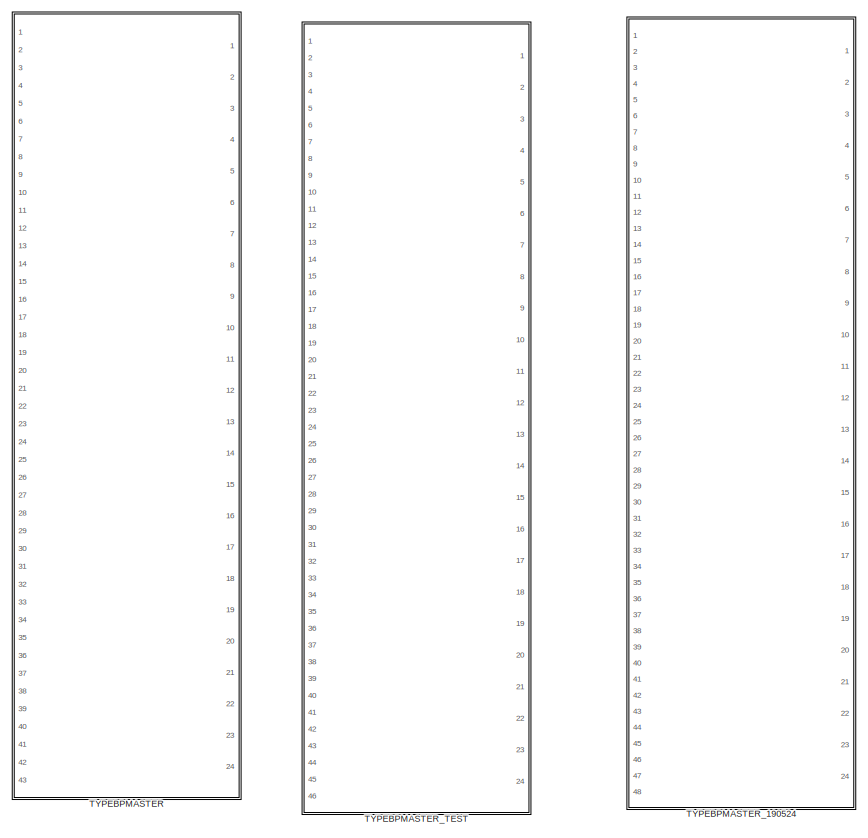
[diagram: root canvas - part 1/2, left side, full height]
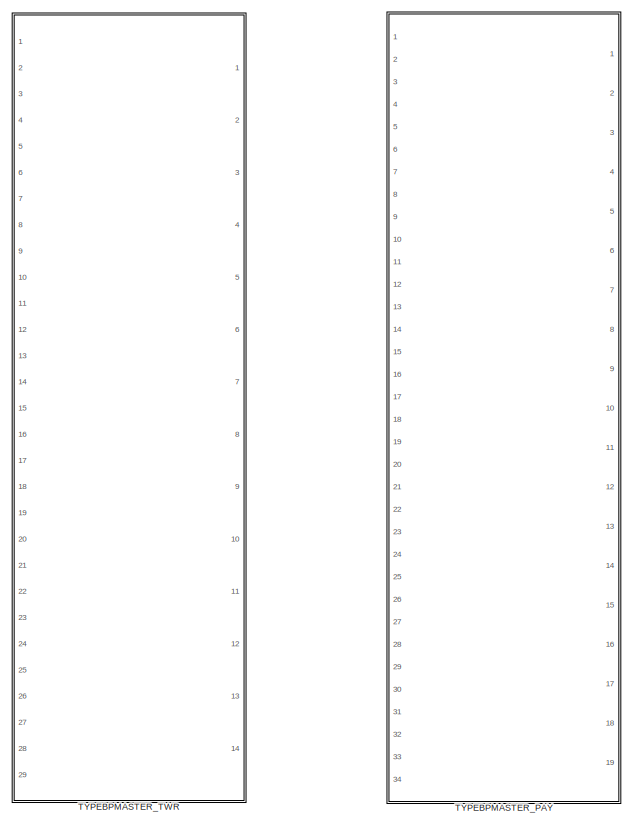
[diagram: root canvas - part 2/2, right side, full height]
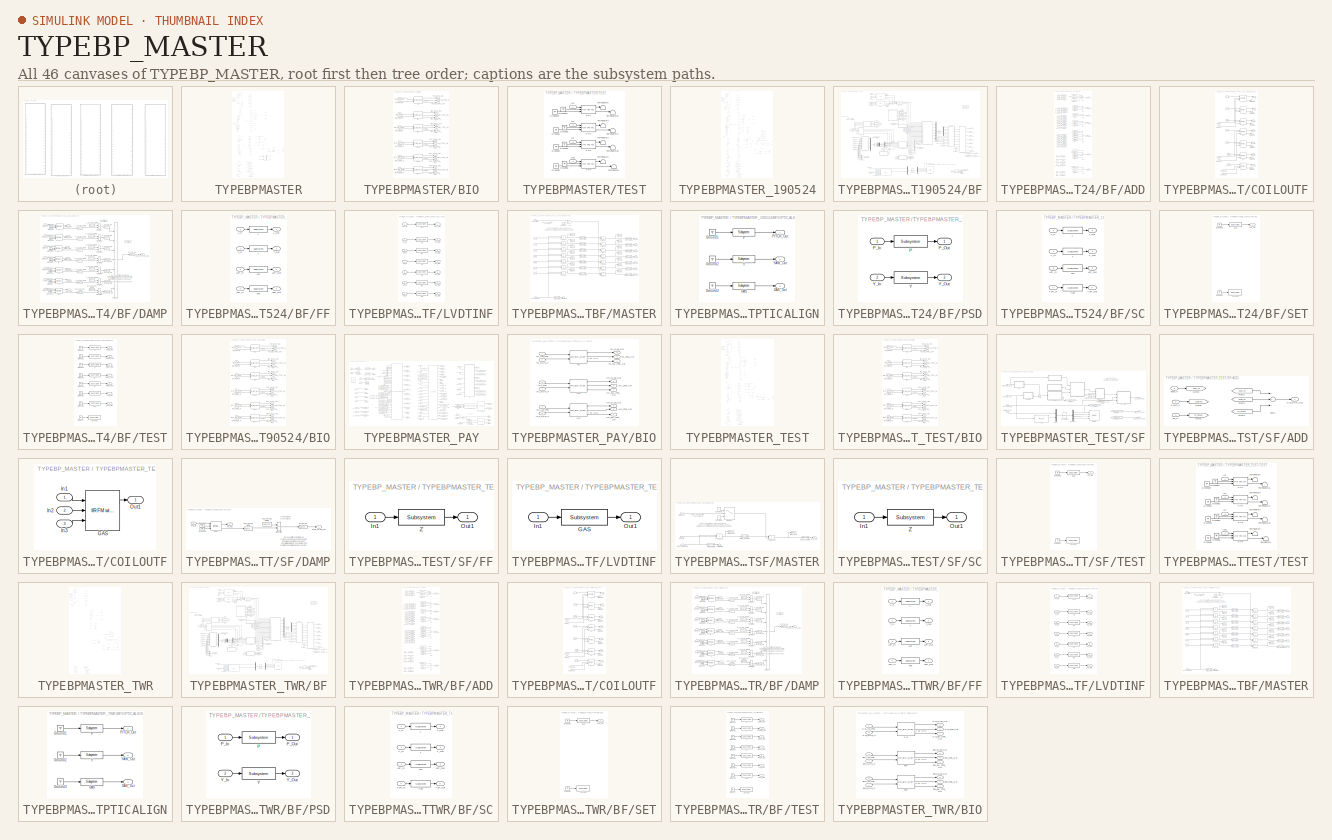
[diagram: thumbnail index - all 46 canvases of the model, root first then tree order]
MODEL TYPEBP_MASTER
KIND library
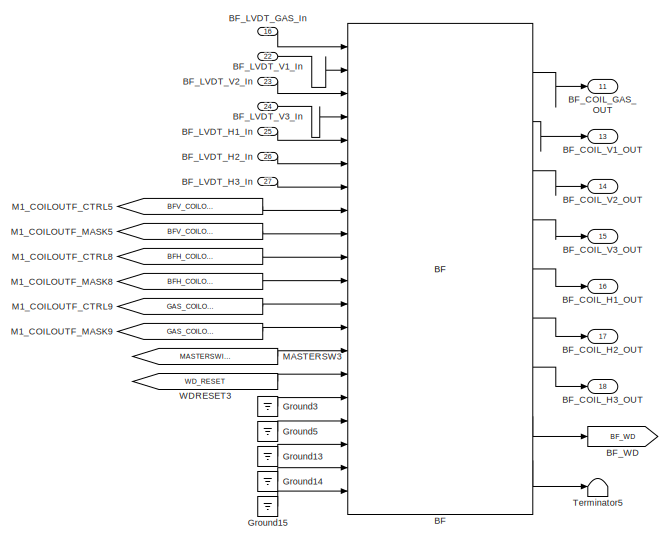
[diagram: TYPEBPMASTER - part 1/5, top left region]
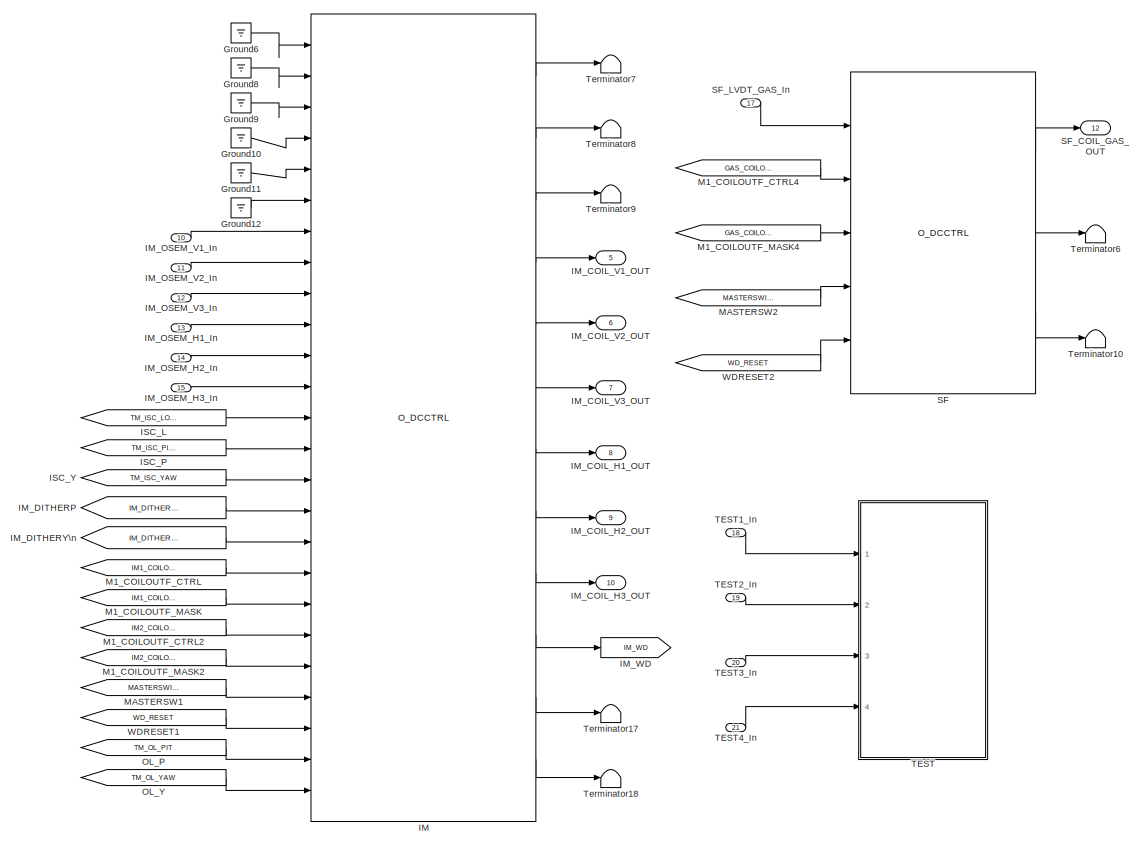
[diagram: TYPEBPMASTER - part 2/5, central region]
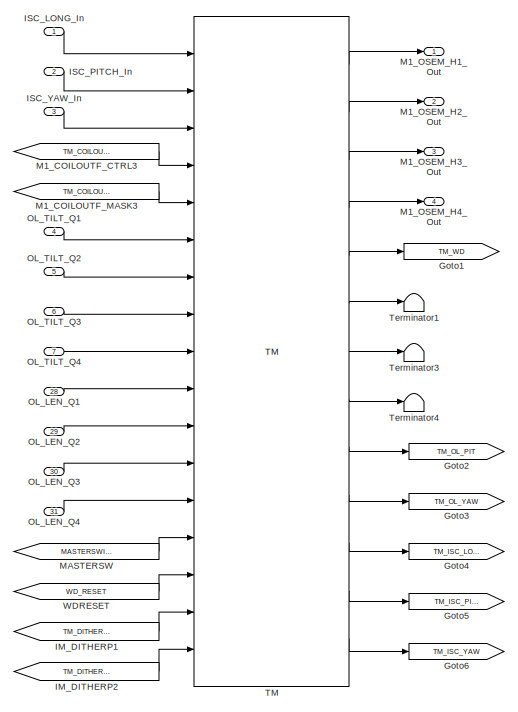
[diagram: TYPEBPMASTER - part 3/5, middle left region]
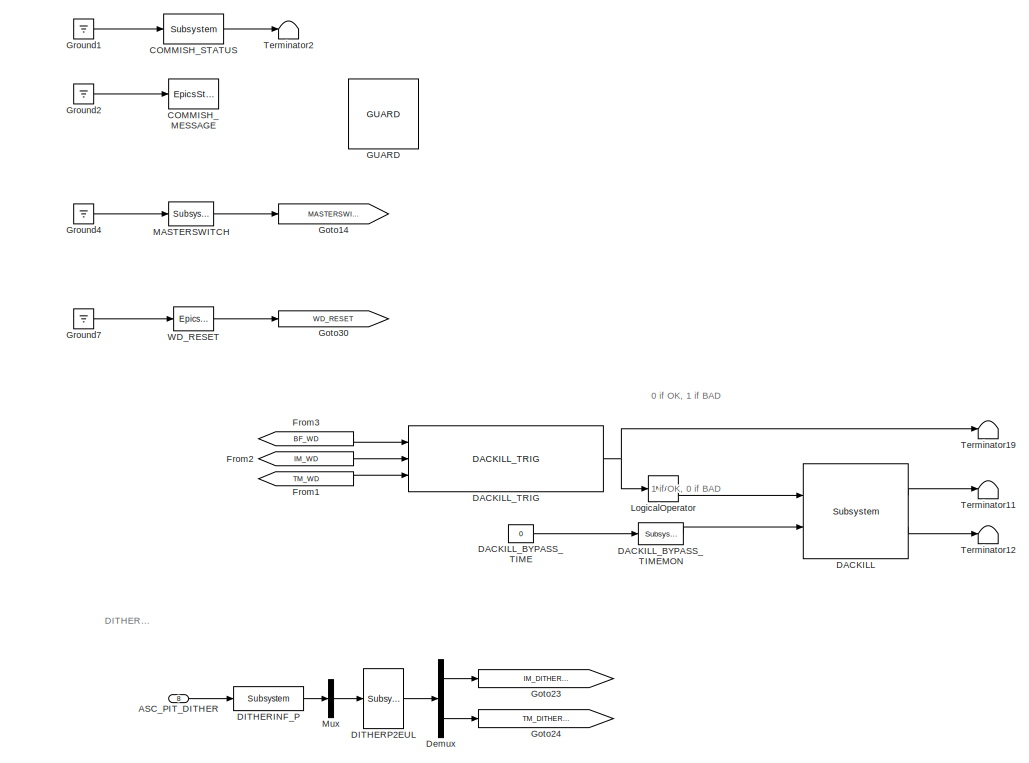
[diagram: TYPEBPMASTER - part 4/5, middle right region]
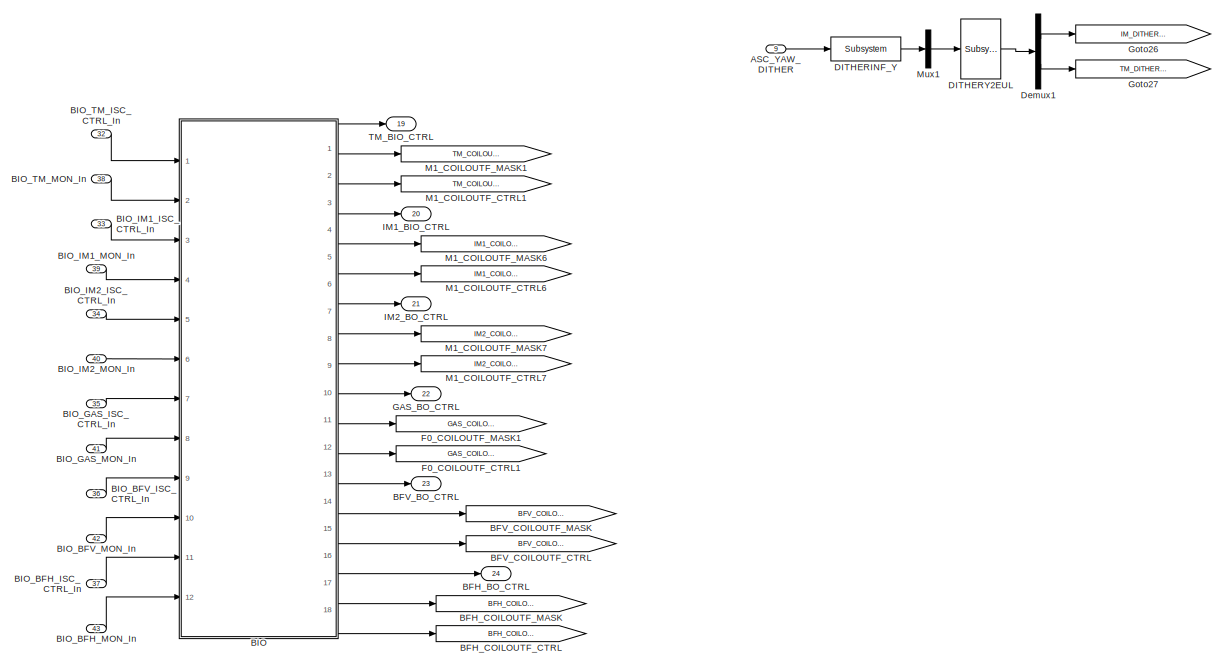
[diagram: TYPEBPMASTER - part 5/5, bottom center region]
BLOCK [SubSystem] TYPEBPMASTER
  AncestorBlock = TYPEC_MASTER/TYPEC
  AttributesFormatString = %<Description>
  Description = TYPEBP MASTER
  Ports = [43, 24]
  RequestExecContextInheritance = off
  SID = 1
  Variant = off
BLOCK [Inport] TYPEBPMASTER/ASC_PIT_DITHER
  IconDisplay = Port number
  Port = 8
  SID = 1:98
BLOCK [Inport] TYPEBPMASTER/ASC_YAW_DITHER
  IconDisplay = Port number
  Port = 9
  SID = 1:99
BLOCK [Reference] TYPEBPMASTER/BF  REF=BF_MASTER/BF
  Ports = [20, 9]
  SID = 1:5888
  SourceBlock = BF_MASTER/BF
  SourceType = SubSystem
BLOCK [Outport] TYPEBPMASTER/BFH_BO_CTRL
  IconDisplay = Port number
  Port = 24
  SID = 1:6460
BLOCK [Goto] TYPEBPMASTER/BFH_COILOUTF_CTRL
  GotoTag = BFH_COILOUTF_CTRL
  SID = 1:6461
BLOCK [Goto] TYPEBPMASTER/BFH_COILOUTF_MASK
  GotoTag = BFH_COILOUTF_MASK
  SID = 1:6462
BLOCK [Outport] TYPEBPMASTER/BFV_BO_CTRL
  IconDisplay = Port number
  Port = 23
  SID = 1:6410
BLOCK [Goto] TYPEBPMASTER/BFV_COILOUTF_CTRL
  GotoTag = BFV_COILOUTF_CTRL
  SID = 1:6458
BLOCK [Goto] TYPEBPMASTER/BFV_COILOUTF_MASK
  GotoTag = BFV_COILOUTF_MASK
  SID = 1:6459
BLOCK [Outport] TYPEBPMASTER/BF_COIL_GAS_OUT
  IconDisplay = Port number
  Port = 11
  SID = 1:1039
BLOCK [Outport] TYPEBPMASTER/BF_COIL_H1_OUT
  IconDisplay = Port number
  Port = 16
  SID = 1:3066
BLOCK [Outport] TYPEBPMASTER/BF_COIL_H2_OUT
  IconDisplay = Port number
  Port = 17
  SID = 1:3067
BLOCK [Outport] TYPEBPMASTER/BF_COIL_H3_OUT
  IconDisplay = Port number
  Port = 18
  SID = 1:3068
BLOCK [Outport] TYPEBPMASTER/BF_COIL_V1_OUT
  IconDisplay = Port number
  Port = 13
  SID = 1:3063
BLOCK [Outport] TYPEBPMASTER/BF_COIL_V2_OUT
  IconDisplay = Port number
  Port = 14
  SID = 1:3064
BLOCK [Outport] TYPEBPMASTER/BF_COIL_V3_OUT
  IconDisplay = Port number
  Port = 15
  SID = 1:3065
BLOCK [Inport] TYPEBPMASTER/BF_LVDT_GAS_In
  IconDisplay = Port number
  Port = 16
  SID = 1:1014
BLOCK [Inport] TYPEBPMASTER/BF_LVDT_H1_In
  IconDisplay = Port number
  Port = 25
  SID = 1:3037
BLOCK [Inport] TYPEBPMASTER/BF_LVDT_H2_In
  IconDisplay = Port number
  Port = 26
  SID = 1:3038
BLOCK [Inport] TYPEBPMASTER/BF_LVDT_H3_In
  IconDisplay = Port number
  Port = 27
  SID = 1:3039
BLOCK [Inport] TYPEBPMASTER/BF_LVDT_V1_In
  IconDisplay = Port number
  Port = 22
  SID = 1:3034
BLOCK [Inport] TYPEBPMASTER/BF_LVDT_V2_In
  IconDisplay = Port number
  Port = 23
  SID = 1:3035
BLOCK [Inport] TYPEBPMASTER/BF_LVDT_V3_In
  IconDisplay = Port number
  Port = 24
  SID = 1:3036
BLOCK [Goto] TYPEBPMASTER/BF_WD
  GotoTag = BF_WD
  SID = 1:3061
BLOCK [SubSystem] TYPEBPMASTER/BIO
  Ports = [12, 18]
  RequestExecContextInheritance = off
  SID = 1:6393
  Variant = off
BLOCK [Reference] TYPEBPMASTER/BIO/BFH  REF=STATE_BIO_MASTER/UIM_BIO_MASTER
  Ports = [2, 3]
  SID = 1:7753
  SourceBlock = STATE_BIO_MASTER/UIM_BIO_MASTER
  SourceType = SubSystem
BLOCK [Outport] TYPEBPMASTER/BIO/BFH_BO_CTRL_Out
  IconDisplay = Port number
  Port = 16
  SID = 1:6448
BLOCK [Outport] TYPEBPMASTER/BIO/BFH_CTRL_Out
  IconDisplay = Port number
  Port = 18
  SID = 1:6450
BLOCK [Inport] TYPEBPMASTER/BIO/BFH_ISC_CTRL
  IconDisplay = Port number
  Port = 11
  SID = 1:6445
BLOCK [Outport] TYPEBPMASTER/BIO/BFH_MASK_Out
  IconDisplay = Port number
  Port = 17
  SID = 1:6449
BLOCK [Inport] TYPEBPMASTER/BIO/BFH_MON_In
  IconDisplay = Port number
  Port = 12
  SID = 1:6446
BLOCK [Reference] TYPEBPMASTER/BIO/BFV  REF=STATE_BIO_MASTER/UIM_BIO_MASTER
  Ports = [2, 3]
  SID = 1:7752
  SourceBlock = STATE_BIO_MASTER/UIM_BIO_MASTER
  SourceType = SubSystem
BLOCK [Outport] TYPEBPMASTER/BIO/BFV_BO_CTRL_Out
  IconDisplay = Port number
  Port = 13
  SID = 1:6438
BLOCK [Outport] TYPEBPMASTER/BIO/BFV_CTRL_Out
  IconDisplay = Port number
  Port = 15
  SID = 1:6440
BLOCK [Inport] TYPEBPMASTER/BIO/BFV_ISC_CTRL
  IconDisplay = Port number
  Port = 9
  SID = 1:6419
BLOCK [Outport] TYPEBPMASTER/BIO/BFV_MASK_Out
  IconDisplay = Port number
  Port = 14
  SID = 1:6439
BLOCK [Inport] TYPEBPMASTER/BIO/BFV_MON_In
  IconDisplay = Port number
  Port = 10
  SID = 1:6420
BLOCK [Reference] TYPEBPMASTER/BIO/GAS  REF=STATE_BIO_MASTER/UIM_BIO_MASTER
  Ports = [2, 3]
  SID = 1:6421
  SourceBlock = STATE_BIO_MASTER/UIM_BIO_MASTER
  SourceType = SubSystem
BLOCK [Outport] TYPEBPMASTER/BIO/GAS_BO_CTRL_Out
  IconDisplay = Port number
  Port = 10
  SID = 1:6435
BLOCK [Outport] TYPEBPMASTER/BIO/GAS_CTRL_Out
  IconDisplay = Port number
  Port = 12
  SID = 1:6437
BLOCK [Inport] TYPEBPMASTER/BIO/GAS_ISC_CTRL
  IconDisplay = Port number
  Port = 7
  SID = 1:6417
BLOCK [Outport] TYPEBPMASTER/BIO/GAS_MASK_Out
  IconDisplay = Port number
  Port = 11
  SID = 1:6436
BLOCK [Inport] TYPEBPMASTER/BIO/GAS_MON_In
  IconDisplay = Port number
  Port = 8
  SID = 1:6418
BLOCK [Reference] TYPEBPMASTER/BIO/IM1  REF=STATE_BIO_MASTER/UIM_BIO_MASTER
  Ports = [2, 3]
  SID = 1:6422
  SourceBlock = STATE_BIO_MASTER/UIM_BIO_MASTER
  SourceType = SubSystem
BLOCK [Outport] TYPEBPMASTER/BIO/IM1_BO_CTRL_Out
  IconDisplay = Port number
  Port = 4
  SID = 1:6429
BLOCK [Inport] TYPEBPMASTER/BIO/IM1_CTRL
  IconDisplay = Port number
  Port = 3
  SID = 1:6413
BLOCK [Outport] TYPEBPMASTER/BIO/IM1_CTRL_Out
  IconDisplay = Port number
  Port = 6
  SID = 1:6431
BLOCK [Outport] TYPEBPMASTER/BIO/IM1_MASK_Out
  IconDisplay = Port number
  Port = 5
  SID = 1:6430
BLOCK [Inport] TYPEBPMASTER/BIO/IM1_MON_In
  IconDisplay = Port number
  Port = 4
  SID = 1:6414
BLOCK [Reference] TYPEBPMASTER/BIO/IM2  REF=STATE_BIO_MASTER/UIM_BIO_MASTER
  Ports = [2, 3]
  SID = 1:6423
  SourceBlock = STATE_BIO_MASTER/UIM_BIO_MASTER
  SourceType = SubSystem
BLOCK [Outport] TYPEBPMASTER/BIO/IM2_BO_CTRL_Out
  IconDisplay = Port number
  Port = 7
  SID = 1:6432
BLOCK [Outport] TYPEBPMASTER/BIO/IM2_CTRL_Out
  IconDisplay = Port number
  Port = 9
  SID = 1:6434
BLOCK [Inport] TYPEBPMASTER/BIO/IM2_ISC_CTRL
  IconDisplay = Port number
  Port = 5
  SID = 1:6415
BLOCK [Outport] TYPEBPMASTER/BIO/IM2_MASK_Out
  IconDisplay = Port number
  Port = 8
  SID = 1:6433
BLOCK [Inport] TYPEBPMASTER/BIO/IM2_MON_In
  IconDisplay = Port number
  Port = 6
  SID = 1:6416
BLOCK [Reference] TYPEBPMASTER/BIO/TM  REF=STATE_BIO_MASTER/UIM_BIO_MASTER
  Ports = [2, 3]
  SID = 1:6425
  SourceBlock = STATE_BIO_MASTER/UIM_BIO_MASTER
  SourceType = SubSystem
BLOCK [Outport] TYPEBPMASTER/BIO/TM_BO_CTRL_Out
  IconDisplay = Port number
  SID = 1:6426
BLOCK [Outport] TYPEBPMASTER/BIO/TM_CTRL_Out
  IconDisplay = Port number
  Port = 3
  SID = 1:6428
BLOCK [Inport] TYPEBPMASTER/BIO/TM_ISC_CTRL
  IconDisplay = Port number
  SID = 1:6411
BLOCK [Outport] TYPEBPMASTER/BIO/TM_MASK_Out
  IconDisplay = Port number
  Port = 2
  SID = 1:6427
BLOCK [Inport] TYPEBPMASTER/BIO/TM_MON_In
  IconDisplay = Port number
  Port = 2
  SID = 1:6412
BLOCK [Inport] TYPEBPMASTER/BIO_BFH_ISC_CTRL_In
  IconDisplay = Port number
  Port = 37
  SID = 1:6456
BLOCK [Inport] TYPEBPMASTER/BIO_BFH_MON_In
  IconDisplay = Port number
  Port = 43
  SID = 1:6457
BLOCK [Inport] TYPEBPMASTER/BIO_BFV_ISC_CTRL_In
  IconDisplay = Port number
  Port = 36
  SID = 1:6454
BLOCK [Inport] TYPEBPMASTER/BIO_BFV_MON_In
  IconDisplay = Port number
  Port = 42
  SID = 1:6455
BLOCK [Inport] TYPEBPMASTER/BIO_GAS_ISC_CTRL_In
  IconDisplay = Port number
  Port = 35
  SID = 1:6391
BLOCK [Inport] TYPEBPMASTER/BIO_GAS_MON_In
  IconDisplay = Port number
  Port = 41
  SID = 1:6392
BLOCK [Inport] TYPEBPMASTER/BIO_IM1_ISC_CTRL_In
  IconDisplay = Port number
  Port = 33
  SID = 1:6387
BLOCK [Inport] TYPEBPMASTER/BIO_IM1_MON_In
  IconDisplay = Port number
  Port = 39
  SID = 1:6388
BLOCK [Inport] TYPEBPMASTER/BIO_IM2_ISC_CTRL_In
  IconDisplay = Port number
  Port = 34
  SID = 1:6389
BLOCK [Inport] TYPEBPMASTER/BIO_IM2_MON_In
  IconDisplay = Port number
  Port = 40
  SID = 1:6390
BLOCK [Inport] TYPEBPMASTER/BIO_TM_ISC_CTRL_In
  IconDisplay = Port number
  Port = 32
  SID = 1:6385
BLOCK [Inport] TYPEBPMASTER/BIO_TM_MON_In
  IconDisplay = Port number
  Port = 38
  SID = 1:6386
BLOCK [Reference] TYPEBPMASTER/COMMISH_MESSAGE  REF=cdsEpicsStringIn/EpicsStringIn
  AttributesFormatString = %<Tag>
  Description = cdsEpicsStringIn
  Ports = [1]
  SID = 1:24
  SourceBlock = cdsEpicsStringIn/EpicsStringIn
  SourceType = SubSystem
  Tag = cdsEpicsStringIn
BLOCK [Reference] TYPEBPMASTER/COMMISH_STATUS  REF=cdsEpicsBinIn/Subsystem
  AttributesFormatString = %<Tag>
  Description = Purpose:                                                                            \nCreate an EPICS binary (0 or 1) input channel to the FE realtime controls.          \n                                                                                    \nOperation:                                                                          \nOutputs value from an EPICS ai record. Value is binary i...<+252ch>  <repeated x13 — deduplicated; at blocks: COMMISH_STATUS, MASTERSWITCH, STATUS>
  Ports = [1, 1]
  SID = 1:25
  SourceBlock = cdsEpicsBinIn/Subsystem
  SourceType = SubSystem
  Tag = cdsEpicsBinIn
BLOCK [Reference] TYPEBPMASTER/DACKILL  REF=cdsDacKill/Subsystem
  AttributesFormatString = %<Description>
  Description = cdsDacKill
  Ports = [2, 2]
  SID = 1:1683
  SourceBlock = cdsDacKill/Subsystem
  SourceType = SubSystem
BLOCK [Constant] TYPEBPMASTER/DACKILL_BYPASS_TIME
  SID = 1:1684
  Value = 0
BLOCK [Reference] TYPEBPMASTER/DACKILL_BYPASS_TIMEMON  REF=cdsEpicsOut/Subsystem
  AttributesFormatString = %<Tag>
  Description = Purpose:                                          \nOutput a FE signal to an EPICS channel.           \n                                                  \nOperation:                                        \nTakes input value and passes it to EPICS record.  \n                                                  \nUsage:                                            \nName the part with the desired EPICS...<+14ch>  <repeated x70 — deduplicated; at blocks: DACKILL_BYPASS_TIMEMON, GAS_STATE_NOW, GAS_STATE_OK, L_STATE_NOW, L_STATE_OK, P_STATE_NOW, P_STATE_OK, R_STATE_NOW, R_STATE_OK, STATE_OK, T_STATE_NOW, T_STATE_OK, V_STATE_NOW, V_STATE_OK, Y_STATE_NOW, Y_STATE_OK, +17 more>
  Ports = [1, 1]
  SID = 1:1685
  SourceBlock = cdsEpicsOut/Subsystem
  SourceType = SubSystem
  Tag = cdsEpicsOutput
BLOCK [Reference] TYPEBPMASTER/DACKILL_TRIG  REF=VIS_LIB/DACKILL_TRIG
  Ports = [3, 1]
  SID = 1:1686
  SourceBlock = VIS_LIB/DACKILL_TRIG
  SourceType = SubSystem
BLOCK [Reference] TYPEBPMASTER/DITHERINF_P  REF=cdsFilt/Subsystem
  AttributesFormatString = %<Tag>
  Description = Purpose:                                                                                                                                                                                                                                  \nStandard CDS IIR filter module.                                                                                                                                     ...<+1302ch>  <repeated x62 — deduplicated; at blocks: DITHERINF_P, DITHERINF_Y, L, L2P, T, T2R, GAS, H1, H2, H3, V1, V2, V3, P, Y, R, +2 more>
  Ports = [1, 1]
  SID = 1:100
  SourceBlock = cdsFilt/Subsystem
  SourceType = SubSystem
  Tag = cdsFilt
BLOCK [Reference] TYPEBPMASTER/DITHERINF_Y  REF=cdsFilt/Subsystem
  AttributesFormatString = %<Tag>
  Ports = [1, 1]
  SID = 1:101
  SourceBlock = cdsFilt/Subsystem
  SourceType = SubSystem
  Tag = cdsFilt
BLOCK [Reference] TYPEBPMASTER/DITHERP2EUL  REF=cdsMuxMatrix/Subsystem
  AttributesFormatString = %<Tag>
  Description = Any size matrix. Inputs and outputs must be connected using Mux and Demux parts.
  Ports = [1, 1]
  SID = 1:102
  SourceBlock = cdsMuxMatrix/Subsystem
  SourceType = SubSystem
  Tag = cdsMuxMatrix
BLOCK [Reference] TYPEBPMASTER/DITHERY2EUL  REF=cdsMuxMatrix/Subsystem
  AttributesFormatString = %<Tag>
  Description = Any size matrix. Inputs and outputs must be connected using Mux and Demux parts.
  Ports = [1, 1]
  SID = 1:103
  SourceBlock = cdsMuxMatrix/Subsystem
  SourceType = SubSystem
  Tag = cdsMuxMatrix
BLOCK [Demux] TYPEBPMASTER/Demux
  DisplayOption = bar
  Outputs = 2
  Ports = [1, 2]
  SID = 1:104
BLOCK [Demux] TYPEBPMASTER/Demux1
  DisplayOption = bar
  Outputs = 2
  Ports = [1, 2]
  SID = 1:105
BLOCK [Goto] TYPEBPMASTER/F0_COILOUTF_CTRL1
  GotoTag = GAS_COILOUTF_CTRL
  SID = 1:6394
BLOCK [Goto] TYPEBPMASTER/F0_COILOUTF_MASK1
  GotoTag = GAS_COILOUTF_MASK
  SID = 1:6395
BLOCK [From] TYPEBPMASTER/From1
  CloseFcn = tagdialog Close
  GotoTag = TM_WD
  SID = 1:1687
BLOCK [From] TYPEBPMASTER/From2
  CloseFcn = tagdialog Close
  GotoTag = IM_WD
  SID = 1:1688
BLOCK [From] TYPEBPMASTER/From3
  CloseFcn = tagdialog Close
  GotoTag = BF_WD
  SID = 1:3069
BLOCK [Outport] TYPEBPMASTER/GAS_BO_CTRL
  IconDisplay = Port number
  Port = 22
  SID = 1:6409
BLOCK [Reference] TYPEBPMASTER/GUARD  REF=ISC_common/GUARD
  Ports = []
  SID = 1:27
  SourceBlock = ISC_common/GUARD
  SourceType = SubSystem
BLOCK [Goto] TYPEBPMASTER/Goto1
  GotoTag = TM_WD
  SID = 1:70
BLOCK [Goto] TYPEBPMASTER/Goto14
  GotoTag = MASTERSWITCH
  SID = 1:48
BLOCK [Goto] TYPEBPMASTER/Goto2
  GotoTag = TM_OL_PIT
  SID = 1:2221
BLOCK [Goto] TYPEBPMASTER/Goto23
  GotoTag = IM_DITHER_PIT
  SID = 1:106
BLOCK [Goto] TYPEBPMASTER/Goto24
  GotoTag = TM_DITHER_PIT
  SID = 1:107
BLOCK [Goto] TYPEBPMASTER/Goto26
  GotoTag = IM_DITHER_YAW
  SID = 1:109
BLOCK [Goto] TYPEBPMASTER/Goto27
  GotoTag = TM_DITHER_YAW
  SID = 1:110
BLOCK [Goto] TYPEBPMASTER/Goto3
  GotoTag = TM_OL_YAW
  SID = 1:2222
BLOCK [Goto] TYPEBPMASTER/Goto30
  GotoTag = WD_RESET
  SID = 1:78
BLOCK [Goto] TYPEBPMASTER/Goto4
  GotoTag = TM_ISC_LONG
  SID = 1:8225
BLOCK [Goto] TYPEBPMASTER/Goto5
  GotoTag = TM_ISC_PITCH
  SID = 1:8226
BLOCK [Goto] TYPEBPMASTER/Goto6
  GotoTag = TM_ISC_YAW
  SID = 1:8227
BLOCK [Ground] TYPEBPMASTER/Ground1
  SID = 1:29
BLOCK [Ground] TYPEBPMASTER/Ground10
  SID = 1:129
BLOCK [Ground] TYPEBPMASTER/Ground11
  SID = 1:130
BLOCK [Ground] TYPEBPMASTER/Ground12
  SID = 1:131
BLOCK [Ground] TYPEBPMASTER/Ground13
  SID = 1:8224
BLOCK [Ground] TYPEBPMASTER/Ground14
  SID = 1:8475
BLOCK [Ground] TYPEBPMASTER/Ground15
  SID = 1:8477
BLOCK [Ground] TYPEBPMASTER/Ground2
  SID = 1:30
BLOCK [Ground] TYPEBPMASTER/Ground3
  SID = 1:8222
BLOCK [Ground] TYPEBPMASTER/Ground4
  SID = 1:49
BLOCK [Ground] TYPEBPMASTER/Ground5
  SID = 1:8223
BLOCK [Ground] TYPEBPMASTER/Ground6
  SID = 1:125
BLOCK [Ground] TYPEBPMASTER/Ground7
  SID = 1:79
BLOCK [Ground] TYPEBPMASTER/Ground8
  SID = 1:127
BLOCK [Ground] TYPEBPMASTER/Ground9
  SID = 1:128
BLOCK [Reference] TYPEBPMASTER/IM  REF=SIXOSEM_F_STAGE_MASTER/SIXOSEM_F_STAGE_MASTER_W//O_DCCTRL
  Description = SIXOSEMSTAGE_FACE_MASTER
  Ports = [25, 12]
  SID = 1:8479
  SourceBlock = SIXOSEM_F_STAGE_MASTER/SIXOSEM_F_STAGE_MASTER_W//O_DCCTRL
  SourceType = SubSystem
BLOCK [Outport] TYPEBPMASTER/IM1_BIO_CTRL
  IconDisplay = Port number
  Port = 20
  SID = 1:6407
BLOCK [Outport] TYPEBPMASTER/IM2_BO_CTRL
  IconDisplay = Port number
  Port = 21
  SID = 1:6408
BLOCK [Outport] TYPEBPMASTER/IM_COIL_H1_OUT
  IconDisplay = Port number
  Port = 8
  SID = 1:894
BLOCK [Outport] TYPEBPMASTER/IM_COIL_H2_OUT
  IconDisplay = Port number
  Port = 9
  SID = 1:895
BLOCK [Outport] TYPEBPMASTER/IM_COIL_H3_OUT
  IconDisplay = Port number
  Port = 10
  SID = 1:896
BLOCK [Outport] TYPEBPMASTER/IM_COIL_V1_OUT
  IconDisplay = Port number
  Port = 5
  SID = 1:891
BLOCK [Outport] TYPEBPMASTER/IM_COIL_V2_OUT
  IconDisplay = Port number
  Port = 6
  SID = 1:892
BLOCK [Outport] TYPEBPMASTER/IM_COIL_V3_OUT
  IconDisplay = Port number
  Port = 7
  SID = 1:893
BLOCK [From] TYPEBPMASTER/IM_DITHERP
  CloseFcn = tagdialog Close
  GotoTag = IM_DITHER_PIT
  SID = 1:115
BLOCK [From] TYPEBPMASTER/IM_DITHERP1
  CloseFcn = tagdialog Close
  GotoTag = TM_DITHER_PIT
  SID = 1:120
BLOCK [From] TYPEBPMASTER/IM_DITHERP2
  CloseFcn = tagdialog Close
  GotoTag = TM_DITHER_YAW
  SID = 1:121
BLOCK [From] TYPEBPMASTER/IM_DITHERY\n
  CloseFcn = tagdialog Close
  GotoTag = IM_DITHER_YAW
  SID = 1:117
BLOCK [Inport] TYPEBPMASTER/IM_OSEM_H1_In
  IconDisplay = Port number
  Port = 13
  SID = 1:775
BLOCK [Inport] TYPEBPMASTER/IM_OSEM_H2_In
  IconDisplay = Port number
  Port = 14
  SID = 1:776
BLOCK [Inport] TYPEBPMASTER/IM_OSEM_H3_In
  IconDisplay = Port number
  Port = 15
  SID = 1:777
BLOCK [Inport] TYPEBPMASTER/IM_OSEM_V1_In
  IconDisplay = Port number
  Port = 10
  SID = 1:771
BLOCK [Inport] TYPEBPMASTER/IM_OSEM_V2_In
  IconDisplay = Port number
  Port = 11
  SID = 1:772
BLOCK [Inport] TYPEBPMASTER/IM_OSEM_V3_In
  IconDisplay = Port number
  Port = 12
  SID = 1:773
BLOCK [Goto] TYPEBPMASTER/IM_WD
  GotoTag = IM_WD
  SID = 1:1708
BLOCK [From] TYPEBPMASTER/ISC_L
  CloseFcn = tagdialog Close
  GotoTag = TM_ISC_LONG
  SID = 1:8228
BLOCK [Inport] TYPEBPMASTER/ISC_LONG_In
  IconDisplay = Port number
  SID = 1:6
BLOCK [From] TYPEBPMASTER/ISC_P
  CloseFcn = tagdialog Close
  GotoTag = TM_ISC_PITCH
  SID = 1:8229
BLOCK [Inport] TYPEBPMASTER/ISC_PITCH_In
  IconDisplay = Port number
  Port = 2
  SID = 1:7
BLOCK [From] TYPEBPMASTER/ISC_Y
  CloseFcn = tagdialog Close
  GotoTag = TM_ISC_YAW
  SID = 1:8230
BLOCK [Inport] TYPEBPMASTER/ISC_YAW_In
  IconDisplay = Port number
  Port = 3
  SID = 1:8
BLOCK [Logic] TYPEBPMASTER/LogicalOperator
  AllPortsSameDT = off
  Operator = NOT
  OutDataTypeStr = boolean
  Ports = [1, 1]
  SID = 1:1689
BLOCK [From] TYPEBPMASTER/M1_COILOUTF_CTRL
  CloseFcn = tagdialog Close
  GotoTag = IM1_COILOUTF_CTRL
  SID = 1:32
BLOCK [Goto] TYPEBPMASTER/M1_COILOUTF_CTRL1
  GotoTag = TM_COILOUTF_CTRL
  SID = 1:6398
BLOCK [From] TYPEBPMASTER/M1_COILOUTF_CTRL2
  CloseFcn = tagdialog Close
  GotoTag = IM2_COILOUTF_CTRL
  SID = 1:6464
BLOCK [From] TYPEBPMASTER/M1_COILOUTF_CTRL3
  CloseFcn = tagdialog Close
  GotoTag = TM_COILOUTF_CTRL
  SID = 1:301
BLOCK [From] TYPEBPMASTER/M1_COILOUTF_CTRL4
  CloseFcn = tagdialog Close
  GotoTag = GAS_COILOUTF_CTRL
  SID = 1:1016
BLOCK [From] TYPEBPMASTER/M1_COILOUTF_CTRL5
  CloseFcn = tagdialog Close
  GotoTag = BFV_COILOUTF_CTRL
  SID = 1:3055
BLOCK [Goto] TYPEBPMASTER/M1_COILOUTF_CTRL6
  GotoTag = IM1_COILOUTF_CTRL
  SID = 1:6399
BLOCK [Goto] TYPEBPMASTER/M1_COILOUTF_CTRL7
  GotoTag = IM2_COILOUTF_CTRL
  SID = 1:6452
BLOCK [From] TYPEBPMASTER/M1_COILOUTF_CTRL8
  CloseFcn = tagdialog Close
  GotoTag = BFH_COILOUTF_CTRL
  SID = 1:6466
BLOCK [From] TYPEBPMASTER/M1_COILOUTF_CTRL9
  CloseFcn = tagdialog Close
  GotoTag = GAS_COILOUTF_CTRL
  SID = 1:6469
BLOCK [From] TYPEBPMASTER/M1_COILOUTF_MASK
  CloseFcn = tagdialog Close
  GotoTag = IM1_COILOUTF_MASK
  SID = 1:34
BLOCK [Goto] TYPEBPMASTER/M1_COILOUTF_MASK1
  GotoTag = TM_COILOUTF_MASK
  SID = 1:6400
BLOCK [From] TYPEBPMASTER/M1_COILOUTF_MASK2
  CloseFcn = tagdialog Close
  GotoTag = IM2_COILOUTF_MASK
  SID = 1:6465
BLOCK [From] TYPEBPMASTER/M1_COILOUTF_MASK3
  CloseFcn = tagdialog Close
  GotoTag = TM_COILOUTF_MASK
  SID = 1:302
BLOCK [From] TYPEBPMASTER/M1_COILOUTF_MASK4
  CloseFcn = tagdialog Close
  GotoTag = GAS_COILOUTF_MASK
  SID = 1:1017
BLOCK [From] TYPEBPMASTER/M1_COILOUTF_MASK5
  CloseFcn = tagdialog Close
  GotoTag = BFV_COILOUTF_MASK
  SID = 1:3056
BLOCK [Goto] TYPEBPMASTER/M1_COILOUTF_MASK6
  GotoTag = IM1_COILOUTF_MASK
  SID = 1:6401
BLOCK [Goto] TYPEBPMASTER/M1_COILOUTF_MASK7
  GotoTag = IM2_COILOUTF_MASK
  SID = 1:6453
BLOCK [From] TYPEBPMASTER/M1_COILOUTF_MASK8
  CloseFcn = tagdialog Close
  GotoTag = BFH_COILOUTF_MASK
  SID = 1:6467
BLOCK [From] TYPEBPMASTER/M1_COILOUTF_MASK9
  CloseFcn = tagdialog Close
  GotoTag = GAS_COILOUTF_MASK
  SID = 1:6470
BLOCK [Outport] TYPEBPMASTER/M1_OSEM_H1_Out
  IconDisplay = Port number
  SID = 1:38
BLOCK [Outport] TYPEBPMASTER/M1_OSEM_H2_Out
  IconDisplay = Port number
  Port = 2
  SID = 1:39
BLOCK [Outport] TYPEBPMASTER/M1_OSEM_H3_Out
  IconDisplay = Port number
  Port = 3
  SID = 1:40
BLOCK [Outport] TYPEBPMASTER/M1_OSEM_H4_Out
  IconDisplay = Port number
  Port = 4
  SID = 1:41
BLOCK [From] TYPEBPMASTER/MASTERSW
  CloseFcn = tagdialog Close
  GotoTag = MASTERSWITCH
  SID = 1:52
BLOCK [From] TYPEBPMASTER/MASTERSW1
  CloseFcn = tagdialog Close
  GotoTag = MASTERSWITCH
  SID = 1:1035
BLOCK [From] TYPEBPMASTER/MASTERSW2
  CloseFcn = tagdialog Close
  GotoTag = MASTERSWITCH
  SID = 1:1037
BLOCK [From] TYPEBPMASTER/MASTERSW3
  CloseFcn = tagdialog Close
  GotoTag = MASTERSWITCH
  SID = 1:3057
BLOCK [Reference] TYPEBPMASTER/MASTERSWITCH  REF=cdsEpicsBinIn/Subsystem
  AttributesFormatString = %<Tag>
  Ports = [1, 1]
  SID = 1:50
  SourceBlock = cdsEpicsBinIn/Subsystem
  SourceType = SubSystem
  Tag = cdsEpicsBinIn
BLOCK [Mux] TYPEBPMASTER/Mux
  DisplayOption = bar
  Inputs = 1
  Ports = [1, 1]
  SID = 1:112
BLOCK [Mux] TYPEBPMASTER/Mux1
  DisplayOption = bar
  Inputs = 1
  Ports = [1, 1]
  SID = 1:113
BLOCK [Inport] TYPEBPMASTER/OL_LEN_Q1
  IconDisplay = Port number
  Port = 28
  SID = 1:3891
BLOCK [Inport] TYPEBPMASTER/OL_LEN_Q2
  IconDisplay = Port number
  Port = 29
  SID = 1:3892
BLOCK [Inport] TYPEBPMASTER/OL_LEN_Q3
  IconDisplay = Port number
  Port = 30
  SID = 1:3893
BLOCK [Inport] TYPEBPMASTER/OL_LEN_Q4
  IconDisplay = Port number
  Port = 31
  SID = 1:3894
BLOCK [From] TYPEBPMASTER/OL_P
  CloseFcn = tagdialog Close
  GotoTag = TM_OL_PIT
  SID = 1:2219
BLOCK [Inport] TYPEBPMASTER/OL_TILT_Q1
  IconDisplay = Port number
  Port = 4
  SID = 1:9
BLOCK [Inport] TYPEBPMASTER/OL_TILT_Q2
  IconDisplay = Port number
  Port = 5
  SID = 1:10
BLOCK [Inport] TYPEBPMASTER/OL_TILT_Q3
  IconDisplay = Port number
  Port = 6
  SID = 1:11
BLOCK [Inport] TYPEBPMASTER/OL_TILT_Q4
  IconDisplay = Port number
  Port = 7
  SID = 1:12
BLOCK [From] TYPEBPMASTER/OL_Y
  CloseFcn = tagdialog Close
  GotoTag = TM_OL_YAW
  SID = 1:2220
BLOCK [Reference] TYPEBPMASTER/SF  REF=GAS_MASTER/GAS_W//O_DCCTRL
  Ports = [5, 3]
  SID = 1:8478
  SourceBlock = GAS_MASTER/GAS_W//O_DCCTRL
  SourceType = SubSystem
BLOCK [Outport] TYPEBPMASTER/SF_COIL_GAS_OUT
  IconDisplay = Port number
  Port = 12
  SID = 1:3680
BLOCK [Inport] TYPEBPMASTER/SF_LVDT_GAS_In
  IconDisplay = Port number
  Port = 17
  SID = 1:3679
BLOCK [SubSystem] TYPEBPMASTER/TEST
  Ports = [4]
  RequestExecContextInheritance = off
  SID = 1:1313
  Variant = off
BLOCK [Reference] TYPEBPMASTER/TEST/CH1  REF=cdsFiltCtrl/IIR FM with control
  AttributesFormatString = %<Tag>
  Description = cdsFiltCntrl is the standard IIR filter module (exactly the same as cdsFilt) but with added control data output 'Ctrl'. Filter module digital signal output appears on the first output, which is called 'Val'. 'Ctrl' output has a bit pattern encoding the state of filter's on/off switches (FM1 through FM10). The bit values are:\n                                                                        ...<+4621ch>  <repeated x38 — deduplicated; at blocks: CH1, CH2, CH3, CH4, GAS, H1, H2, H3, V1, V2, V3, L, P, R, T, V, +1 more>
  Ports = [3, 2]
  SID = 1:1309
  SourceBlock = cdsFiltCtrl/IIR FM with control
  SourceType = SubSystem
  Tag = cdsFiltCtrl
BLOCK [Reference] TYPEBPMASTER/TEST/CH2  REF=cdsFiltCtrl/IIR FM with control
  AttributesFormatString = %<Tag>
  Ports = [3, 2]
  SID = 1:1310
  SourceBlock = cdsFiltCtrl/IIR FM with control
  SourceType = SubSystem
  Tag = cdsFiltCtrl
BLOCK [Reference] TYPEBPMASTER/TEST/CH3  REF=cdsFiltCtrl/IIR FM with control
  AttributesFormatString = %<Tag>
  Ports = [3, 2]
  SID = 1:1311
  SourceBlock = cdsFiltCtrl/IIR FM with control
  SourceType = SubSystem
  Tag = cdsFiltCtrl
BLOCK [Reference] TYPEBPMASTER/TEST/CH4  REF=cdsFiltCtrl/IIR FM with control
  AttributesFormatString = %<Tag>
  Ports = [3, 2]
  SID = 1:1312
  SourceBlock = cdsFiltCtrl/IIR FM with control
  SourceType = SubSystem
  Tag = cdsFiltCtrl
BLOCK [Ground] TYPEBPMASTER/TEST/Ground1
  SID = 1:1341
BLOCK [Ground] TYPEBPMASTER/TEST/Ground19
  SID = 1:1334
BLOCK [Ground] TYPEBPMASTER/TEST/Ground2
  SID = 1:1342
BLOCK [Ground] TYPEBPMASTER/TEST/Ground22
  SID = 1:1336
BLOCK [Ground] TYPEBPMASTER/TEST/Ground3
  SID = 1:1343
BLOCK [Ground] TYPEBPMASTER/TEST/Ground4
  SID = 1:1344
BLOCK [Ground] TYPEBPMASTER/TEST/Ground5
  SID = 1:1345
BLOCK [Ground] TYPEBPMASTER/TEST/Ground6
  SID = 1:1346
BLOCK [Inport] TYPEBPMASTER/TEST/In1
  IconDisplay = Port number
  SID = 1:1314
BLOCK [Inport] TYPEBPMASTER/TEST/In10
  IconDisplay = Port number
  Port = 4
  SID = 1:1323
BLOCK [Inport] TYPEBPMASTER/TEST/In4
  IconDisplay = Port number
  Port = 2
  SID = 1:1317
BLOCK [Inport] TYPEBPMASTER/TEST/In7
  IconDisplay = Port number
  Port = 3
  SID = 1:1320
BLOCK [Terminator] TYPEBPMASTER/TEST/Terminator1
  SID = 1:1347
BLOCK [Terminator] TYPEBPMASTER/TEST/Terminator16
  SID = 1:1338
BLOCK [Terminator] TYPEBPMASTER/TEST/Terminator17
  SID = 1:1339
BLOCK [Terminator] TYPEBPMASTER/TEST/Terminator18
  SID = 1:1340
BLOCK [Terminator] TYPEBPMASTER/TEST/Terminator2
  SID = 1:1352
BLOCK [Terminator] TYPEBPMASTER/TEST/Terminator3
  SID = 1:1353
BLOCK [Terminator] TYPEBPMASTER/TEST/Terminator4
  SID = 1:1354
BLOCK [Terminator] TYPEBPMASTER/TEST/Terminator5
  SID = 1:1355
BLOCK [Inport] TYPEBPMASTER/TEST1_In
  IconDisplay = Port number
  Port = 18
  SID = 1:1348
BLOCK [Inport] TYPEBPMASTER/TEST2_In
  IconDisplay = Port number
  Port = 19
  SID = 1:1349
BLOCK [Inport] TYPEBPMASTER/TEST3_In
  IconDisplay = Port number
  Port = 20
  SID = 1:1350
BLOCK [Inport] TYPEBPMASTER/TEST4_In
  IconDisplay = Port number
  Port = 21
  SID = 1:1351
BLOCK [Reference] TYPEBPMASTER/TM  REF=TM_MASTER/TM
  Ports = [17, 13]
  SID = 1:7518
  SourceBlock = TM_MASTER/TM
  SourceType = SubSystem
BLOCK [Outport] TYPEBPMASTER/TM_BIO_CTRL
  IconDisplay = Port number
  Port = 19
  SID = 1:6406
BLOCK [Terminator] TYPEBPMASTER/Terminator1
  SID = 1:75
BLOCK [Terminator] TYPEBPMASTER/Terminator10
  SID = 1:1041
BLOCK [Terminator] TYPEBPMASTER/Terminator11
  SID = 1:1691
BLOCK [Terminator] TYPEBPMASTER/Terminator12
  SID = 1:1692
BLOCK [Terminator] TYPEBPMASTER/Terminator17
  SID = 1:155
BLOCK [Terminator] TYPEBPMASTER/Terminator18
  SID = 1:156
BLOCK [Terminator] TYPEBPMASTER/Terminator19
  SID = 1:1690
BLOCK [Terminator] TYPEBPMASTER/Terminator2
  SID = 1:37
BLOCK [Terminator] TYPEBPMASTER/Terminator3
  SID = 1:76
BLOCK [Terminator] TYPEBPMASTER/Terminator4
  SID = 1:77
BLOCK [Terminator] TYPEBPMASTER/Terminator5
  SID = 1:3062
BLOCK [Terminator] TYPEBPMASTER/Terminator6
  SID = 1:1040
BLOCK [Terminator] TYPEBPMASTER/Terminator7
  SID = 1:126
BLOCK [Terminator] TYPEBPMASTER/Terminator8
  SID = 1:146
BLOCK [Terminator] TYPEBPMASTER/Terminator9
  SID = 1:147
BLOCK [From] TYPEBPMASTER/WDRESET
  CloseFcn = tagdialog Close
  GotoTag = WD_RESET
  SID = 1:81
BLOCK [From] TYPEBPMASTER/WDRESET1
  CloseFcn = tagdialog Close
  GotoTag = WD_RESET
  SID = 1:1036
BLOCK [From] TYPEBPMASTER/WDRESET2
  CloseFcn = tagdialog Close
  GotoTag = WD_RESET
  SID = 1:1038
BLOCK [From] TYPEBPMASTER/WDRESET3
  CloseFcn = tagdialog Close
  GotoTag = WD_RESET
  SID = 1:3058
BLOCK [Reference] TYPEBPMASTER/WD_RESET  REF=cdsEpicsMomentary/EpicsMomentary
  AttributesFormatString = %<Tag>
  Ports = [1, 1]
  SID = 1:80
  SourceBlock = cdsEpicsMomentary/EpicsMomentary
  SourceType = SubSystem
  Tag = cdsEpicsMomentary
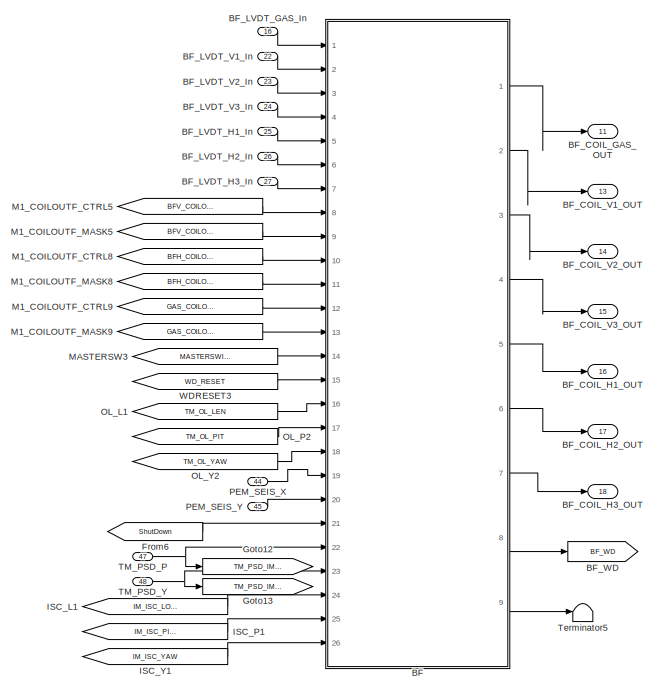
[diagram: TYPEBPMASTER_190524 - part 1/4, top left region]
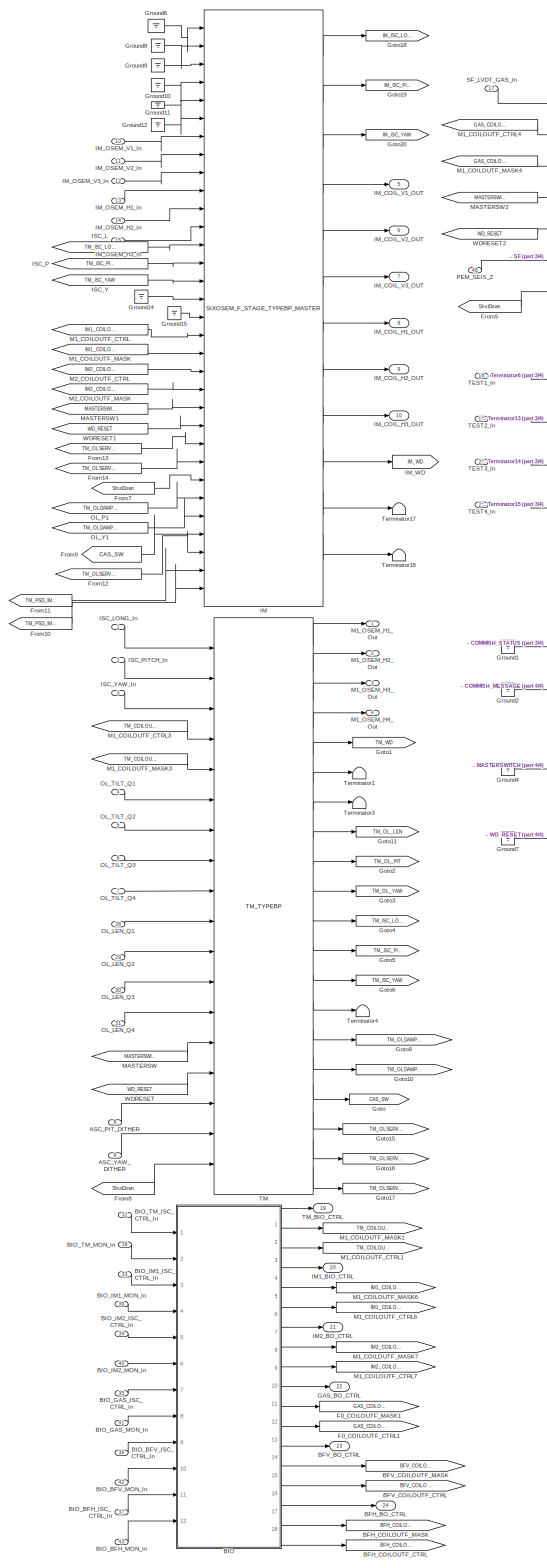
[diagram: TYPEBPMASTER_190524 - part 2/4, left side, full height]
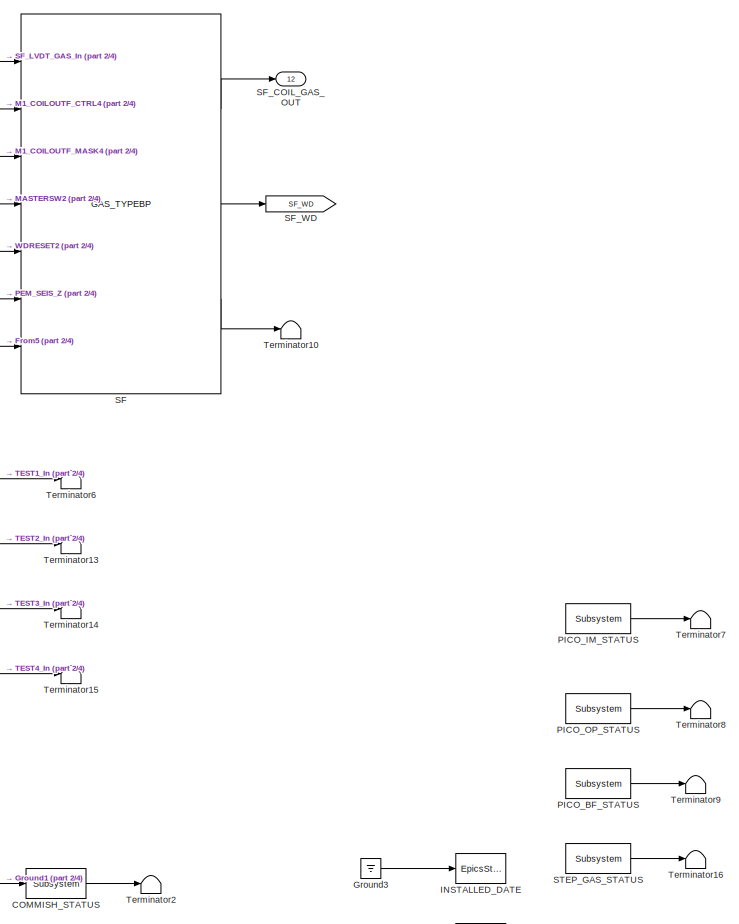
[diagram: TYPEBPMASTER_190524 - part 3/4, central region]
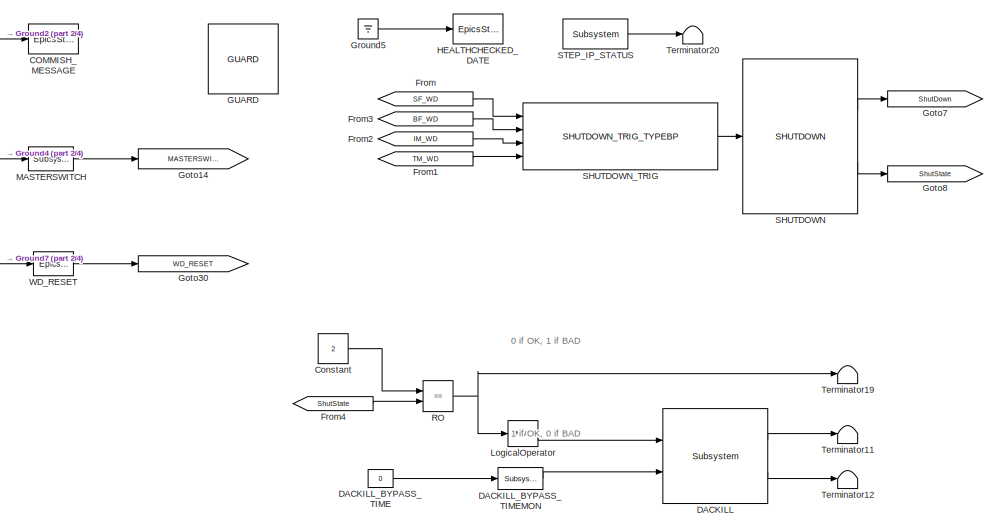
[diagram: TYPEBPMASTER_190524 - part 4/4, middle right region]
BLOCK [SubSystem] TYPEBPMASTER_190524
  AttributesFormatString = %<Description>
  Description = TYPEBP MASTER
  Ports = [48, 24]
  RequestExecContextInheritance = off
  SID = 265
  Variant = off
BLOCK [Inport] TYPEBPMASTER_190524/ASC_PIT_DITHER
  IconDisplay = Port number
  Port = 8
  SID = 273
BLOCK [Inport] TYPEBPMASTER_190524/ASC_YAW_DITHER
  IconDisplay = Port number
  Port = 9
  SID = 274
BLOCK [SubSystem] TYPEBPMASTER_190524/BF
  Ports = [26, 9]
  RequestExecContextInheritance = off
  SID = 511
  Variant = off
BLOCK [SubSystem] TYPEBPMASTER_190524/BF/ADD
  Ports = [26, 7]
  RequestExecContextInheritance = off
  SID = 561
  Variant = off
BLOCK [Inport] TYPEBPMASTER_190524/BF/ADD/DAMP_GAS_In
  IconDisplay = Port number
  Port = 20
  SID = 581
BLOCK [Inport] TYPEBPMASTER_190524/BF/ADD/DAMP_L_In
  IconDisplay = Port number
  Port = 14
  SID = 575
BLOCK [Inport] TYPEBPMASTER_190524/BF/ADD/DAMP_P_In
  IconDisplay = Port number
  Port = 18
  SID = 579
BLOCK [Inport] TYPEBPMASTER_190524/BF/ADD/DAMP_R_In
  IconDisplay = Port number
  Port = 17
  SID = 578
BLOCK [Inport] TYPEBPMASTER_190524/BF/ADD/DAMP_T_In
  IconDisplay = Port number
  Port = 15
  SID = 576
BLOCK [Inport] TYPEBPMASTER_190524/BF/ADD/DAMP_V_In
  IconDisplay = Port number
  Port = 16
  SID = 577
BLOCK [Inport] TYPEBPMASTER_190524/BF/ADD/DAMP_Y_In
  IconDisplay = Port number
  Port = 19
  SID = 580
BLOCK [Inport] TYPEBPMASTER_190524/BF/ADD/FF_L2P_In
  IconDisplay = Port number
  Port = 23
  SID = 584
BLOCK [Inport] TYPEBPMASTER_190524/BF/ADD/FF_L_In
  IconDisplay = Port number
  Port = 21
  SID = 582
BLOCK [Inport] TYPEBPMASTER_190524/BF/ADD/FF_T2R_In
  IconDisplay = Port number
  Port = 24
  SID = 585
BLOCK [Inport] TYPEBPMASTER_190524/BF/ADD/FF_T_In
  IconDisplay = Port number
  Port = 22
  SID = 583
BLOCK [From] TYPEBPMASTER_190524/BF/ADD/From1
  CloseFcn = tagdialog Close
  GotoTag = TEST_L
  SID = 588
BLOCK [From] TYPEBPMASTER_190524/BF/ADD/From10
  CloseFcn = tagdialog Close
  GotoTag = DAMP_Y
  SID = 589
BLOCK [From] TYPEBPMASTER_190524/BF/ADD/From11
  CloseFcn = tagdialog Close
  GotoTag = OPTICALIGN_Y
  SID = 590
BLOCK [From] TYPEBPMASTER_190524/BF/ADD/From12
  CloseFcn = tagdialog Close
  GotoTag = TEST_R
  SID = 591
BLOCK [From] TYPEBPMASTER_190524/BF/ADD/From13
  CloseFcn = tagdialog Close
  GotoTag = DAMP_R
  SID = 592
BLOCK [From] TYPEBPMASTER_190524/BF/ADD/From14
  CloseFcn = tagdialog Close
  GotoTag = TEST_V
  SID = 593
BLOCK [From] TYPEBPMASTER_190524/BF/ADD/From15
  CloseFcn = tagdialog Close
  GotoTag = DAMP_V
  SID = 594
BLOCK [From] TYPEBPMASTER_190524/BF/ADD/From16
  CloseFcn = tagdialog Close
  GotoTag = TEST_T
  SID = 595
BLOCK [From] TYPEBPMASTER_190524/BF/ADD/From17
  CloseFcn = tagdialog Close
  GotoTag = DAMP_T
  SID = 596
BLOCK [From] TYPEBPMASTER_190524/BF/ADD/From18
  CloseFcn = tagdialog Close
  GotoTag = DAMP_GAS
  SID = 597
BLOCK [From] TYPEBPMASTER_190524/BF/ADD/From19
  CloseFcn = tagdialog Close
  GotoTag = OPTICALIGN_GAS
  SID = 598
BLOCK [From] TYPEBPMASTER_190524/BF/ADD/From2
  CloseFcn = tagdialog Close
  GotoTag = ISC_L
  SID = 599
BLOCK [From] TYPEBPMASTER_190524/BF/ADD/From20
  CloseFcn = tagdialog Close
  GotoTag = TEST_GAS
  SID = 600
BLOCK [From] TYPEBPMASTER_190524/BF/ADD/From21
  CloseFcn = tagdialog Close
  GotoTag = FF_L
  SID = 601
BLOCK [From] TYPEBPMASTER_190524/BF/ADD/From22
  CloseFcn = tagdialog Close
  GotoTag = FF_T
  SID = 602
BLOCK [From] TYPEBPMASTER_190524/BF/ADD/From23
  CloseFcn = tagdialog Close
  GotoTag = FF_T2R
  SID = 603
BLOCK [From] TYPEBPMASTER_190524/BF/ADD/From24
  CloseFcn = tagdialog Close
  GotoTag = FF_L2P
  SID = 604
BLOCK [From] TYPEBPMASTER_190524/BF/ADD/From25
  CloseFcn = tagdialog Close
  GotoTag = PSD_P
  SID = 605
BLOCK [From] TYPEBPMASTER_190524/BF/ADD/From26
  CloseFcn = tagdialog Close
  GotoTag = PSD_Y
  SID = 606
BLOCK [From] TYPEBPMASTER_190524/BF/ADD/From3
  CloseFcn = tagdialog Close
  GotoTag = DAMP_L
  SID = 607
BLOCK [From] TYPEBPMASTER_190524/BF/ADD/From4
  CloseFcn = tagdialog Close
  GotoTag = TEST_P
  SID = 608
BLOCK [From] TYPEBPMASTER_190524/BF/ADD/From5
  CloseFcn = tagdialog Close
  GotoTag = ISC_P
  SID = 609
BLOCK [From] TYPEBPMASTER_190524/BF/ADD/From6
  CloseFcn = tagdialog Close
  GotoTag = DAMP_P
  SID = 610
BLOCK [From] TYPEBPMASTER_190524/BF/ADD/From7
  CloseFcn = tagdialog Close
  GotoTag = OPTICALIGN_P
  SID = 611
BLOCK [From] TYPEBPMASTER_190524/BF/ADD/From8
  CloseFcn = tagdialog Close
  GotoTag = TEST_Y
  SID = 612
BLOCK [From] TYPEBPMASTER_190524/BF/ADD/From9
  CloseFcn = tagdialog Close
  GotoTag = ISC_Y
  SID = 613
BLOCK [Outport] TYPEBPMASTER_190524/BF/ADD/GAS_Main_Out
  IconDisplay = Port number
  Port = 7
  SID = 653
BLOCK [Goto] TYPEBPMASTER_190524/BF/ADD/Goto
  GotoTag = ISC_L
  SID = 614
BLOCK [Goto] TYPEBPMASTER_190524/BF/ADD/Goto1
  GotoTag = ISC_P
  SID = 615
BLOCK [Goto] TYPEBPMASTER_190524/BF/ADD/Goto10
  GotoTag = TEST_V
  SID = 616
BLOCK [Goto] TYPEBPMASTER_190524/BF/ADD/Goto11
  GotoTag = DAMP_V
  SID = 617
BLOCK [Goto] TYPEBPMASTER_190524/BF/ADD/Goto12
  GotoTag = DAMP_L
  SID = 618
BLOCK [Goto] TYPEBPMASTER_190524/BF/ADD/Goto13
  GotoTag = DAMP_P
  SID = 619
BLOCK [Goto] TYPEBPMASTER_190524/BF/ADD/Goto14
  GotoTag = DAMP_Y
  SID = 620
BLOCK [Goto] TYPEBPMASTER_190524/BF/ADD/Goto15
  GotoTag = DAMP_T
  SID = 621
BLOCK [Goto] TYPEBPMASTER_190524/BF/ADD/Goto16
  GotoTag = DAMP_R
  SID = 622
BLOCK [Goto] TYPEBPMASTER_190524/BF/ADD/Goto17
  GotoTag = TEST_GAS
  SID = 623
BLOCK [Goto] TYPEBPMASTER_190524/BF/ADD/Goto18
  GotoTag = DAMP_GAS
  SID = 624
BLOCK [Goto] TYPEBPMASTER_190524/BF/ADD/Goto19
  GotoTag = OPTICALIGN_GAS
  SID = 625
BLOCK [Goto] TYPEBPMASTER_190524/BF/ADD/Goto2
  GotoTag = ISC_Y
  SID = 626
BLOCK [Goto] TYPEBPMASTER_190524/BF/ADD/Goto20
  GotoTag = FF_L
  SID = 627
BLOCK [Goto] TYPEBPMASTER_190524/BF/ADD/Goto21
  GotoTag = FF_T
  SID = 628
BLOCK [Goto] TYPEBPMASTER_190524/BF/ADD/Goto22
  GotoTag = FF_L2P
  SID = 629
BLOCK [Goto] TYPEBPMASTER_190524/BF/ADD/Goto23
  GotoTag = FF_T2R
  SID = 630
BLOCK [Goto] TYPEBPMASTER_190524/BF/ADD/Goto24
  GotoTag = PSD_P
  SID = 631
BLOCK [Goto] TYPEBPMASTER_190524/BF/ADD/Goto25
  GotoTag = PSD_Y
  SID = 632
BLOCK [Goto] TYPEBPMASTER_190524/BF/ADD/Goto3
  GotoTag = TEST_L
  SID = 633
BLOCK [Goto] TYPEBPMASTER_190524/BF/ADD/Goto4
  GotoTag = OPTICALIGN_P
  SID = 634
BLOCK [Goto] TYPEBPMASTER_190524/BF/ADD/Goto5
  GotoTag = OPTICALIGN_Y
  SID = 635
BLOCK [Goto] TYPEBPMASTER_190524/BF/ADD/Goto6
  GotoTag = TEST_P
  SID = 636
BLOCK [Goto] TYPEBPMASTER_190524/BF/ADD/Goto7
  GotoTag = TEST_Y
  SID = 637
BLOCK [Goto] TYPEBPMASTER_190524/BF/ADD/Goto8
  GotoTag = TEST_T
  SID = 638
BLOCK [Goto] TYPEBPMASTER_190524/BF/ADD/Goto9
  GotoTag = TEST_R
  SID = 639
BLOCK [Inport] TYPEBPMASTER_190524/BF/ADD/ISC_L_In
  IconDisplay = Port number
  SID = 562
BLOCK [Inport] TYPEBPMASTER_190524/BF/ADD/ISC_P_In
  IconDisplay = Port number
  Port = 2
  SID = 563
BLOCK [Inport] TYPEBPMASTER_190524/BF/ADD/ISC_Y_In
  IconDisplay = Port number
  Port = 3
  SID = 564
BLOCK [Outport] TYPEBPMASTER_190524/BF/ADD/LONG_MAIN_Out
  IconDisplay = Port number
  SID = 647
BLOCK [Inport] TYPEBPMASTER_190524/BF/ADD/OPTICALIGN_GAS_In
  IconDisplay = Port number
  Port = 6
  SID = 567
BLOCK [Inport] TYPEBPMASTER_190524/BF/ADD/OPTICALIGN_P_In
  IconDisplay = Port number
  Port = 4
  SID = 565
BLOCK [Inport] TYPEBPMASTER_190524/BF/ADD/OPTICALIGN_Y_In
  IconDisplay = Port number
  Port = 5
  SID = 566
BLOCK [Outport] TYPEBPMASTER_190524/BF/ADD/PITCH_MAIN_Out
  IconDisplay = Port number
  Port = 5
  SID = 651
BLOCK [Inport] TYPEBPMASTER_190524/BF/ADD/PSD_P
  IconDisplay = Port number
  Port = 25
  SID = 586
BLOCK [Inport] TYPEBPMASTER_190524/BF/ADD/PSD_Y
  IconDisplay = Port number
  Port = 26
  SID = 587
BLOCK [Outport] TYPEBPMASTER_190524/BF/ADD/ROLL_MAIN_Out
  IconDisplay = Port number
  Port = 4
  SID = 650
BLOCK [Sum] TYPEBPMASTER_190524/BF/ADD/Sum
  InputSameDT = off
  Inputs = ++++
  OutDataTypeStr = Inherit: Inherit via internal rule
  Ports = [4, 1]
  SID = 640
  SaturateOnIntegerOverflow = off
BLOCK [Sum] TYPEBPMASTER_190524/BF/ADD/Sum1
  InputSameDT = off
  Inputs = +++
  OutDataTypeStr = Inherit: Inherit via internal rule
  Ports = [3, 1]
  SID = 641
  SaturateOnIntegerOverflow = off
BLOCK [Sum] TYPEBPMASTER_190524/BF/ADD/Sum2
  InputSameDT = off
  OutDataTypeStr = Inherit: Inherit via internal rule
  Ports = [2, 1]
  SID = 642
  SaturateOnIntegerOverflow = off
BLOCK [Sum] TYPEBPMASTER_190524/BF/ADD/Sum3
  InputSameDT = off
  Inputs = +++++
  OutDataTypeStr = Inherit: Inherit via internal rule
  Ports = [5, 1]
  SID = 643
  SaturateOnIntegerOverflow = off
BLOCK [Sum] TYPEBPMASTER_190524/BF/ADD/Sum4
  InputSameDT = off
  Inputs = ++++++
  OutDataTypeStr = Inherit: Inherit via internal rule
  Ports = [6, 1]
  SID = 644
  SaturateOnIntegerOverflow = off
BLOCK [Sum] TYPEBPMASTER_190524/BF/ADD/Sum5
  InputSameDT = off
  Inputs = +++
  OutDataTypeStr = Inherit: Inherit via internal rule
  Ports = [3, 1]
  SID = 645
  SaturateOnIntegerOverflow = off
BLOCK [Sum] TYPEBPMASTER_190524/BF/ADD/Sum6
  InputSameDT = off
  Inputs = +++
  OutDataTypeStr = Inherit: Inherit via internal rule
  Ports = [3, 1]
  SID = 646
  SaturateOnIntegerOverflow = off
BLOCK [Inport] TYPEBPMASTER_190524/BF/ADD/TEST_GAS_In
  IconDisplay = Port number
  Port = 13
  SID = 574
BLOCK [Inport] TYPEBPMASTER_190524/BF/ADD/TEST_L_In
  IconDisplay = Port number
  Port = 7
  SID = 568
BLOCK [Inport] TYPEBPMASTER_190524/BF/ADD/TEST_P_In
  IconDisplay = Port number
  Port = 11
  SID = 572
BLOCK [Inport] TYPEBPMASTER_190524/BF/ADD/TEST_R_In
  IconDisplay = Port number
  Port = 10
  SID = 571
BLOCK [Inport] TYPEBPMASTER_190524/BF/ADD/TEST_T_In
  IconDisplay = Port number
  Port = 8
  SID = 569
BLOCK [Inport] TYPEBPMASTER_190524/BF/ADD/TEST_V_In
  IconDisplay = Port number
  Port = 9
  SID = 570
BLOCK [Inport] TYPEBPMASTER_190524/BF/ADD/TEST_Y_In
  IconDisplay = Port number
  Port = 12
  SID = 573
BLOCK [Outport] TYPEBPMASTER_190524/BF/ADD/TRANS_MAIN_Out
  IconDisplay = Port number
  Port = 2
  SID = 648
BLOCK [Outport] TYPEBPMASTER_190524/BF/ADD/VERT_MAIN_Out
  IconDisplay = Port number
  Port = 3
  SID = 649
BLOCK [Outport] TYPEBPMASTER_190524/BF/ADD/YAW_MAIN_Out
  IconDisplay = Port number
  Port = 6
  SID = 652
BLOCK [BusCreator] TYPEBPMASTER_190524/BF/Bus\nCreator1
  DisplayOption = bar
  InheritFromInputs = on
  Inputs = 'LVDT_GAS','LVDT_V1','LVDT_V2','LVDT_V3','LVDT_H1','LVDT_H2','LVDT_H3'
  Ports = [7, 1]
  SID = 654
BLOCK [BusSelector] TYPEBPMASTER_190524/BF/Bus\nSelector
  OutputSignals = LVDT_GAS,LVDT_V1,LVDT_V2,LVDT_V3,LVDT_H1,LVDT_H2,LVDT_H3
  Ports = [1, 7]
  SID = 655
BLOCK [SubSystem] TYPEBPMASTER_190524/BF/COILOUTF
  Ports = [13, 7]
  RequestExecContextInheritance = off
  SID = 656
  Variant = off
BLOCK [Inport] TYPEBPMASTER_190524/BF/COILOUTF/CTRL_GAS
  IconDisplay = Port number
  Port = 12
  SID = 668
BLOCK [Inport] TYPEBPMASTER_190524/BF/COILOUTF/CTRL_H
  IconDisplay = Port number
  Port = 10
  SID = 666
BLOCK [Inport] TYPEBPMASTER_190524/BF/COILOUTF/CTRL_V
  IconDisplay = Port number
  Port = 8
  SID = 664
BLOCK [Reference] TYPEBPMASTER_190524/BF/COILOUTF/GAS  REF=cdsFiltCtrl/IIR FM with control
  AttributesFormatString = %<Tag>
  Ports = [3, 2]
  SID = 670
  SourceBlock = cdsFiltCtrl/IIR FM with control
  SourceType = SubSystem
  Tag = cdsFiltCtrl
BLOCK [Inport] TYPEBPMASTER_190524/BF/COILOUTF/GAS_IN
  IconDisplay = Port number
  Port = 7
  SID = 663
BLOCK [Outport] TYPEBPMASTER_190524/BF/COILOUTF/GAS_Out
  IconDisplay = Port number
  Port = 7
  SID = 690
BLOCK [Reference] TYPEBPMASTER_190524/BF/COILOUTF/H1  REF=cdsFiltCtrl/IIR FM with control
  AttributesFormatString = %<Tag>
  Ports = [3, 2]
  SID = 671
  SourceBlock = cdsFiltCtrl/IIR FM with control
  SourceType = SubSystem
  Tag = cdsFiltCtrl
BLOCK [Inport] TYPEBPMASTER_190524/BF/COILOUTF/H1_IN
  IconDisplay = Port number
  Port = 4
  SID = 660
BLOCK [Outport] TYPEBPMASTER_190524/BF/COILOUTF/H1_Out
  IconDisplay = Port number
  Port = 4
  SID = 687
BLOCK [Reference] TYPEBPMASTER_190524/BF/COILOUTF/H2  REF=cdsFiltCtrl/IIR FM with control
  AttributesFormatString = %<Tag>
  Ports = [3, 2]
  SID = 672
  SourceBlock = cdsFiltCtrl/IIR FM with control
  SourceType = SubSystem
  Tag = cdsFiltCtrl
BLOCK [Inport] TYPEBPMASTER_190524/BF/COILOUTF/H2_IN1
  IconDisplay = Port number
  Port = 5
  SID = 661
BLOCK [Outport] TYPEBPMASTER_190524/BF/COILOUTF/H2_Out
  IconDisplay = Port number
  Port = 5
  SID = 688
BLOCK [Reference] TYPEBPMASTER_190524/BF/COILOUTF/H3  REF=cdsFiltCtrl/IIR FM with control
  AttributesFormatString = %<Tag>
  Ports = [3, 2]
  SID = 673
  SourceBlock = cdsFiltCtrl/IIR FM with control
  SourceType = SubSystem
  Tag = cdsFiltCtrl
BLOCK [Inport] TYPEBPMASTER_190524/BF/COILOUTF/H3_IN
  IconDisplay = Port number
  Port = 6
  SID = 662
BLOCK [Outport] TYPEBPMASTER_190524/BF/COILOUTF/H3_Out
  IconDisplay = Port number
  Port = 6
  SID = 689
BLOCK [Inport] TYPEBPMASTER_190524/BF/COILOUTF/MASK_GAS
  IconDisplay = Port number
  Port = 13
  SID = 669
BLOCK [Inport] TYPEBPMASTER_190524/BF/COILOUTF/MASK_H
  IconDisplay = Port number
  Port = 11
  SID = 667
BLOCK [Inport] TYPEBPMASTER_190524/BF/COILOUTF/MASK_V
  IconDisplay = Port number
  Port = 9
  SID = 665
BLOCK [Terminator] TYPEBPMASTER_190524/BF/COILOUTF/Terminator1
  SID = 674
BLOCK [Terminator] TYPEBPMASTER_190524/BF/COILOUTF/Terminator2
  SID = 675
BLOCK [Terminator] TYPEBPMASTER_190524/BF/COILOUTF/Terminator3
  SID = 676
BLOCK [Terminator] TYPEBPMASTER_190524/BF/COILOUTF/Terminator4
  SID = 677
BLOCK [Terminator] TYPEBPMASTER_190524/BF/COILOUTF/Terminator5
  SID = 678
BLOCK [Terminator] TYPEBPMASTER_190524/BF/COILOUTF/Terminator6
  SID = 679
BLOCK [Terminator] TYPEBPMASTER_190524/BF/COILOUTF/Terminator7
  SID = 680
BLOCK [Reference] TYPEBPMASTER_190524/BF/COILOUTF/V1  REF=cdsFiltCtrl/IIR FM with control
  AttributesFormatString = %<Tag>
  Ports = [3, 2]
  SID = 681
  SourceBlock = cdsFiltCtrl/IIR FM with control
  SourceType = SubSystem
  Tag = cdsFiltCtrl
BLOCK [Inport] TYPEBPMASTER_190524/BF/COILOUTF/V1_IN
  IconDisplay = Port number
  SID = 657
BLOCK [Outport] TYPEBPMASTER_190524/BF/COILOUTF/V1_Out
  IconDisplay = Port number
  SID = 684
BLOCK [Reference] TYPEBPMASTER_190524/BF/COILOUTF/V2  REF=cdsFiltCtrl/IIR FM with control
  AttributesFormatString = %<Tag>
  Ports = [3, 2]
  SID = 682
  SourceBlock = cdsFiltCtrl/IIR FM with control
  SourceType = SubSystem
  Tag = cdsFiltCtrl
BLOCK [Inport] TYPEBPMASTER_190524/BF/COILOUTF/V2_IN
  IconDisplay = Port number
  Port = 2
  SID = 658
BLOCK [Outport] TYPEBPMASTER_190524/BF/COILOUTF/V2_Out
  IconDisplay = Port number
  Port = 2
  SID = 685
BLOCK [Reference] TYPEBPMASTER_190524/BF/COILOUTF/V3  REF=cdsFiltCtrl/IIR FM with control
  AttributesFormatString = %<Tag>
  Ports = [3, 2]
  SID = 683
  SourceBlock = cdsFiltCtrl/IIR FM with control
  SourceType = SubSystem
  Tag = cdsFiltCtrl
BLOCK [Inport] TYPEBPMASTER_190524/BF/COILOUTF/V3_IN
  IconDisplay = Port number
  Port = 3
  SID = 659
BLOCK [Outport] TYPEBPMASTER_190524/BF/COILOUTF/V3_Out
  IconDisplay = Port number
  Port = 3
  SID = 686
BLOCK [Inport] TYPEBPMASTER_190524/BF/COILOUTF_CTRL_GAS
  IconDisplay = Port number
  Port = 12
  SID = 549
BLOCK [Inport] TYPEBPMASTER_190524/BF/COILOUTF_CTRL_H
  IconDisplay = Port number
  Port = 10
  SID = 547
BLOCK [Inport] TYPEBPMASTER_190524/BF/COILOUTF_CTRL_V
  IconDisplay = Port number
  Port = 8
  SID = 545
BLOCK [Inport] TYPEBPMASTER_190524/BF/COILOUTF_MASK_GAS
  IconDisplay = Port number
  Port = 13
  SID = 550
BLOCK [Inport] TYPEBPMASTER_190524/BF/COILOUTF_MASK_H
  IconDisplay = Port number
  Port = 11
  SID = 548
BLOCK [Inport] TYPEBPMASTER_190524/BF/COILOUTF_MASK_V
  IconDisplay = Port number
  Port = 9
  SID = 546
BLOCK [Outport] TYPEBPMASTER_190524/BF/COIL_GAS_Out
  IconDisplay = Port number
  SID = 989
BLOCK [Outport] TYPEBPMASTER_190524/BF/COIL_H1_Out
  IconDisplay = Port number
  Port = 5
  SID = 993
BLOCK [Outport] TYPEBPMASTER_190524/BF/COIL_H2_Out
  IconDisplay = Port number
  Port = 6
  SID = 994
BLOCK [Outport] TYPEBPMASTER_190524/BF/COIL_H3_Out
  IconDisplay = Port number
  Port = 7
  SID = 995
BLOCK [Outport] TYPEBPMASTER_190524/BF/COIL_V1_Out
  IconDisplay = Port number
  Port = 2
  SID = 990
BLOCK [Outport] TYPEBPMASTER_190524/BF/COIL_V2_Out
  IconDisplay = Port number
  Port = 3
  SID = 991
BLOCK [Outport] TYPEBPMASTER_190524/BF/COIL_V3_Out
  IconDisplay = Port number
  Port = 4
  SID = 992
BLOCK [SubSystem] TYPEBPMASTER_190524/BF/DAMP
  Ports = [7, 8]
  RequestExecContextInheritance = off
  SID = 691
  Variant = off
BLOCK [Outport] TYPEBPMASTER_190524/BF/DAMP/DAMP_STATE_Out
  IconDisplay = Port number
  Port = 8
  SID = 757
BLOCK [Reference] TYPEBPMASTER_190524/BF/DAMP/GAS  REF=cdsFiltCtrl/IIR FM with control
  AttributesFormatString = %<Tag>
  Ports = [3, 2]
  SID = 699
  SourceBlock = cdsFiltCtrl/IIR FM with control
  SourceType = SubSystem
  Tag = cdsFiltCtrl
BLOCK [Inport] TYPEBPMASTER_190524/BF/DAMP/GAS_In
  IconDisplay = Port number
  Port = 7
  SID = 698
BLOCK [Outport] TYPEBPMASTER_190524/BF/DAMP/GAS_Out
  IconDisplay = Port number
  Port = 7
  SID = 756
BLOCK [Reference] TYPEBPMASTER_190524/BF/DAMP/GAS_STATE_GOOD  REF=cdsEpicsIn/Subsystem
  AttributesFormatString = %<Tag>
  Description = Purpose:                                                                              \nCreate an EPICS input channel connection to the FE realtime controls.                 \n                                                                                      \nOperation:                                                                            \nOutputs value from an EPICS ai record. Value is ...<+266ch>  <repeated x25 — deduplicated; at blocks: GAS_STATE_GOOD, L_STATE_GOOD, P_STATE_GOOD, R_STATE_GOOD, T_STATE_GOOD, V_STATE_GOOD, Y_STATE_GOOD, PICO_BF_STATUS, PICO_IM_STATUS, PICO_OP_STATUS, STEP_GAS_STATUS, STEP_IP_STATUS>
  Ports = [0, 1]
  SID = 700
  SourceBlock = cdsEpicsIn/Subsystem
  SourceType = SubSystem
  Tag = cdsEpicsIn
BLOCK [Reference] TYPEBPMASTER_190524/BF/DAMP/GAS_STATE_NOW  REF=cdsEpicsOut/Subsystem
  AttributesFormatString = %<Tag>
  Ports = [1, 1]
  SID = 701
  SourceBlock = cdsEpicsOut/Subsystem
  SourceType = SubSystem
  Tag = cdsEpicsOutput
BLOCK [Reference] TYPEBPMASTER_190524/BF/DAMP/GAS_STATE_OK  REF=cdsEpicsOut/Subsystem
  AttributesFormatString = %<Tag>
  Ports = [1, 1]
  SID = 702
  SourceBlock = cdsEpicsOut/Subsystem
  SourceType = SubSystem
  Tag = cdsEpicsOutput
BLOCK [Ground] TYPEBPMASTER_190524/BF/DAMP/Ground1
  SID = 703
BLOCK [Ground] TYPEBPMASTER_190524/BF/DAMP/Ground10
  SID = 704
BLOCK [Ground] TYPEBPMASTER_190524/BF/DAMP/Ground11
  SID = 705
BLOCK [Ground] TYPEBPMASTER_190524/BF/DAMP/Ground12
  SID = 706
BLOCK [Ground] TYPEBPMASTER_190524/BF/DAMP/Ground13
  SID = 707
BLOCK [Ground] TYPEBPMASTER_190524/BF/DAMP/Ground14
  SID = 708
BLOCK [Ground] TYPEBPMASTER_190524/BF/DAMP/Ground2
  SID = 709
BLOCK [Ground] TYPEBPMASTER_190524/BF/DAMP/Ground3
  SID = 710
BLOCK [Ground] TYPEBPMASTER_190524/BF/DAMP/Ground4
  SID = 711
BLOCK [Ground] TYPEBPMASTER_190524/BF/DAMP/Ground5
  SID = 712
BLOCK [Ground] TYPEBPMASTER_190524/BF/DAMP/Ground6
  SID = 713
BLOCK [Ground] TYPEBPMASTER_190524/BF/DAMP/Ground7
  SID = 714
BLOCK [Ground] TYPEBPMASTER_190524/BF/DAMP/Ground8
  SID = 715
BLOCK [Ground] TYPEBPMASTER_190524/BF/DAMP/Ground9
  SID = 716
BLOCK [Reference] TYPEBPMASTER_190524/BF/DAMP/L  REF=cdsFiltCtrl/IIR FM with control
  AttributesFormatString = %<Tag>
  Ports = [3, 2]
  SID = 717
  SourceBlock = cdsFiltCtrl/IIR FM with control
  SourceType = SubSystem
  Tag = cdsFiltCtrl
BLOCK [Inport] TYPEBPMASTER_190524/BF/DAMP/LONG_In
  IconDisplay = Port number
  SID = 692
BLOCK [Outport] TYPEBPMASTER_190524/BF/DAMP/LONG_Out
  IconDisplay = Port number
  SID = 750
BLOCK [Reference] TYPEBPMASTER_190524/BF/DAMP/L_STATE_GOOD  REF=cdsEpicsIn/Subsystem
  AttributesFormatString = %<Tag>
  Ports = [0, 1]
  SID = 718
  SourceBlock = cdsEpicsIn/Subsystem
  SourceType = SubSystem
  Tag = cdsEpicsIn
BLOCK [Reference] TYPEBPMASTER_190524/BF/DAMP/L_STATE_NOW  REF=cdsEpicsOut/Subsystem
  AttributesFormatString = %<Tag>
  Ports = [1, 1]
  SID = 719
  SourceBlock = cdsEpicsOut/Subsystem
  SourceType = SubSystem
  Tag = cdsEpicsOutput
BLOCK [Reference] TYPEBPMASTER_190524/BF/DAMP/L_STATE_OK  REF=cdsEpicsOut/Subsystem
  AttributesFormatString = %<Tag>
  Ports = [1, 1]
  SID = 720
  SourceBlock = cdsEpicsOut/Subsystem
  SourceType = SubSystem
  Tag = cdsEpicsOutput
BLOCK [RelationalOperator] TYPEBPMASTER_190524/BF/DAMP/Operator
  InputSameDT = off
  Operator = ==
  OutDataTypeStr = boolean
  Ports = [2, 1]
  SID = 721
BLOCK [RelationalOperator] TYPEBPMASTER_190524/BF/DAMP/Operator1
  InputSameDT = off
  Operator = ==
  OutDataTypeStr = boolean
  Ports = [2, 1]
  SID = 722
BLOCK [RelationalOperator] TYPEBPMASTER_190524/BF/DAMP/Operator2
  InputSameDT = off
  Operator = ==
  OutDataTypeStr = boolean
  Ports = [2, 1]
  SID = 723
BLOCK [RelationalOperator] TYPEBPMASTER_190524/BF/DAMP/Operator3
  InputSameDT = off
  Operator = ==
  OutDataTypeStr = boolean
  Ports = [2, 1]
  SID = 724
BLOCK [RelationalOperator] TYPEBPMASTER_190524/BF/DAMP/Operator4
  InputSameDT = off
  Operator = ==
  OutDataTypeStr = boolean
  Ports = [2, 1]
  SID = 725
BLOCK [RelationalOperator] TYPEBPMASTER_190524/BF/DAMP/Operator5
  InputSameDT = off
  Operator = ==
  OutDataTypeStr = boolean
  Ports = [2, 1]
  SID = 726
BLOCK [RelationalOperator] TYPEBPMASTER_190524/BF/DAMP/Operator6
  InputSameDT = off
  Operator = ==
  OutDataTypeStr = boolean
  Ports = [2, 1]
  SID = 727
BLOCK [Reference] TYPEBPMASTER_190524/BF/DAMP/P  REF=cdsFiltCtrl/IIR FM with control
  AttributesFormatString = %<Tag>
  Ports = [3, 2]
  SID = 728
  SourceBlock = cdsFiltCtrl/IIR FM with control
  SourceType = SubSystem
  Tag = cdsFiltCtrl
BLOCK [Inport] TYPEBPMASTER_190524/BF/DAMP/PITCH_In
  IconDisplay = Port number
  Port = 5
  SID = 696
BLOCK [Outport] TYPEBPMASTER_190524/BF/DAMP/PITCH_Out
  IconDisplay = Port number
  Port = 5
  SID = 754
BLOCK [Reference] TYPEBPMASTER_190524/BF/DAMP/P_STATE_GOOD  REF=cdsEpicsIn/Subsystem
  AttributesFormatString = %<Tag>
  Ports = [0, 1]
  SID = 729
  SourceBlock = cdsEpicsIn/Subsystem
  SourceType = SubSystem
  Tag = cdsEpicsIn
BLOCK [Reference] TYPEBPMASTER_190524/BF/DAMP/P_STATE_NOW  REF=cdsEpicsOut/Subsystem
  AttributesFormatString = %<Tag>
  Ports = [1, 1]
  SID = 730
  SourceBlock = cdsEpicsOut/Subsystem
  SourceType = SubSystem
  Tag = cdsEpicsOutput
BLOCK [Reference] TYPEBPMASTER_190524/BF/DAMP/P_STATE_OK  REF=cdsEpicsOut/Subsystem
  AttributesFormatString = %<Tag>
  Ports = [1, 1]
  SID = 731
  SourceBlock = cdsEpicsOut/Subsystem
  SourceType = SubSystem
  Tag = cdsEpicsOutput
BLOCK [Product] TYPEBPMASTER_190524/BF/DAMP/Product
  InputSameDT = off
  Inputs = 7
  OutDataTypeStr = Inherit: Inherit via internal rule
  Ports = [7, 1]
  SID = 732
  SaturateOnIntegerOverflow = off
BLOCK [Reference] TYPEBPMASTER_190524/BF/DAMP/R  REF=cdsFiltCtrl/IIR FM with control
  AttributesFormatString = %<Tag>
  Ports = [3, 2]
  SID = 733
  SourceBlock = cdsFiltCtrl/IIR FM with control
  SourceType = SubSystem
  Tag = cdsFiltCtrl
BLOCK [Inport] TYPEBPMASTER_190524/BF/DAMP/ROLL_In
  IconDisplay = Port number
  Port = 4
  SID = 695
BLOCK [Outport] TYPEBPMASTER_190524/BF/DAMP/ROLL_Out
  IconDisplay = Port number
  Port = 4
  SID = 753
BLOCK [Reference] TYPEBPMASTER_190524/BF/DAMP/R_STATE_GOOD  REF=cdsEpicsIn/Subsystem
  AttributesFormatString = %<Tag>
  Ports = [0, 1]
  SID = 734
  SourceBlock = cdsEpicsIn/Subsystem
  SourceType = SubSystem
  Tag = cdsEpicsIn
BLOCK [Reference] TYPEBPMASTER_190524/BF/DAMP/R_STATE_NOW  REF=cdsEpicsOut/Subsystem
  AttributesFormatString = %<Tag>
  Ports = [1, 1]
  SID = 735
  SourceBlock = cdsEpicsOut/Subsystem
  SourceType = SubSystem
  Tag = cdsEpicsOutput
BLOCK [Reference] TYPEBPMASTER_190524/BF/DAMP/R_STATE_OK  REF=cdsEpicsOut/Subsystem
  AttributesFormatString = %<Tag>
  Ports = [1, 1]
  SID = 736
  SourceBlock = cdsEpicsOut/Subsystem
  SourceType = SubSystem
  Tag = cdsEpicsOutput
BLOCK [Reference] TYPEBPMASTER_190524/BF/DAMP/STATE_OK  REF=cdsEpicsOut/Subsystem
  AttributesFormatString = %<Tag>
  Ports = [1, 1]
  SID = 737
  SourceBlock = cdsEpicsOut/Subsystem
  SourceType = SubSystem
  Tag = cdsEpicsOutput
BLOCK [Reference] TYPEBPMASTER_190524/BF/DAMP/T  REF=cdsFiltCtrl/IIR FM with control
  AttributesFormatString = %<Tag>
  Ports = [3, 2]
  SID = 738
  SourceBlock = cdsFiltCtrl/IIR FM with control
  SourceType = SubSystem
  Tag = cdsFiltCtrl
BLOCK [Inport] TYPEBPMASTER_190524/BF/DAMP/TRANS_In
  IconDisplay = Port number
  Port = 2
  SID = 693
BLOCK [Outport] TYPEBPMASTER_190524/BF/DAMP/TRANS_Out
  IconDisplay = Port number
  Port = 2
  SID = 751
BLOCK [Reference] TYPEBPMASTER_190524/BF/DAMP/T_STATE_GOOD  REF=cdsEpicsIn/Subsystem
  AttributesFormatString = %<Tag>
  Ports = [0, 1]
  SID = 739
  SourceBlock = cdsEpicsIn/Subsystem
  SourceType = SubSystem
  Tag = cdsEpicsIn
BLOCK [Reference] TYPEBPMASTER_190524/BF/DAMP/T_STATE_NOW  REF=cdsEpicsOut/Subsystem
  AttributesFormatString = %<Tag>
  Ports = [1, 1]
  SID = 740
  SourceBlock = cdsEpicsOut/Subsystem
  SourceType = SubSystem
  Tag = cdsEpicsOutput
BLOCK [Reference] TYPEBPMASTER_190524/BF/DAMP/T_STATE_OK  REF=cdsEpicsOut/Subsystem
  AttributesFormatString = %<Tag>
  Ports = [1, 1]
  SID = 741
  SourceBlock = cdsEpicsOut/Subsystem
  SourceType = SubSystem
  Tag = cdsEpicsOutput
BLOCK [Reference] TYPEBPMASTER_190524/BF/DAMP/V  REF=cdsFiltCtrl/IIR FM with control
  AttributesFormatString = %<Tag>
  Ports = [3, 2]
  SID = 742
  SourceBlock = cdsFiltCtrl/IIR FM with control
  SourceType = SubSystem
  Tag = cdsFiltCtrl
BLOCK [Inport] TYPEBPMASTER_190524/BF/DAMP/VERT_In
  IconDisplay = Port number
  Port = 3
  SID = 694
BLOCK [Outport] TYPEBPMASTER_190524/BF/DAMP/VERT_Out
  IconDisplay = Port number
  Port = 3
  SID = 752
BLOCK [Reference] TYPEBPMASTER_190524/BF/DAMP/V_STATE_GOOD  REF=cdsEpicsIn/Subsystem
  AttributesFormatString = %<Tag>
  Ports = [0, 1]
  SID = 743
  SourceBlock = cdsEpicsIn/Subsystem
  SourceType = SubSystem
  Tag = cdsEpicsIn
BLOCK [Reference] TYPEBPMASTER_190524/BF/DAMP/V_STATE_NOW  REF=cdsEpicsOut/Subsystem
  AttributesFormatString = %<Tag>
  Ports = [1, 1]
  SID = 744
  SourceBlock = cdsEpicsOut/Subsystem
  SourceType = SubSystem
  Tag = cdsEpicsOutput
BLOCK [Reference] TYPEBPMASTER_190524/BF/DAMP/V_STATE_OK  REF=cdsEpicsOut/Subsystem
  AttributesFormatString = %<Tag>
  Ports = [1, 1]
  SID = 745
  SourceBlock = cdsEpicsOut/Subsystem
  SourceType = SubSystem
  Tag = cdsEpicsOutput
BLOCK [Reference] TYPEBPMASTER_190524/BF/DAMP/Y  REF=cdsFiltCtrl/IIR FM with control
  AttributesFormatString = %<Tag>
  Ports = [3, 2]
  SID = 746
  SourceBlock = cdsFiltCtrl/IIR FM with control
  SourceType = SubSystem
  Tag = cdsFiltCtrl
BLOCK [Inport] TYPEBPMASTER_190524/BF/DAMP/YAW_In
  IconDisplay = Port number
  Port = 6
  SID = 697
BLOCK [Outport] TYPEBPMASTER_190524/BF/DAMP/YAW_Out
  IconDisplay = Port number
  Port = 6
  SID = 755
BLOCK [Reference] TYPEBPMASTER_190524/BF/DAMP/Y_STATE_GOOD  REF=cdsEpicsIn/Subsystem
  AttributesFormatString = %<Tag>
  Ports = [0, 1]
  SID = 747
  SourceBlock = cdsEpicsIn/Subsystem
  SourceType = SubSystem
  Tag = cdsEpicsIn
BLOCK [Reference] TYPEBPMASTER_190524/BF/DAMP/Y_STATE_NOW  REF=cdsEpicsOut/Subsystem
  AttributesFormatString = %<Tag>
  Ports = [1, 1]
  SID = 748
  SourceBlock = cdsEpicsOut/Subsystem
  SourceType = SubSystem
  Tag = cdsEpicsOutput
BLOCK [Reference] TYPEBPMASTER_190524/BF/DAMP/Y_STATE_OK  REF=cdsEpicsOut/Subsystem
  AttributesFormatString = %<Tag>
  Ports = [1, 1]
  SID = 749
  SourceBlock = cdsEpicsOut/Subsystem
  SourceType = SubSystem
  Tag = cdsEpicsOutput
BLOCK [Outport] TYPEBPMASTER_190524/BF/DAMP_STATE_Out
  IconDisplay = Port number
  Port = 9
  SID = 997
BLOCK [Reference] TYPEBPMASTER_190524/BF/DRIVEALIGN  REF=VIS_LIB/DRIVEALIGN
  Ports = [3, 3]
  SID = 762
  SourceBlock = VIS_LIB/DRIVEALIGN
  SourceType = SubSystem
BLOCK [Demux] TYPEBPMASTER_190524/BF/Demux1
  DisplayOption = bar
  Outputs = 6
  Ports = [1, 6]
  SID = 763
BLOCK [Demux] TYPEBPMASTER_190524/BF/Demux2
  DisplayOption = bar
  Outputs = 6
  Ports = [1, 6]
  SID = 764
BLOCK [Demux] TYPEBPMASTER_190524/BF/Demux6
  DisplayOption = bar
  Outputs = 6
  Ports = [1, 6]
  SID = 765
BLOCK [Demux] TYPEBPMASTER_190524/BF/Demux9
  DisplayOption = bar
  Ports = [1, 4]
  SID = 766
BLOCK [Reference] TYPEBPMASTER_190524/BF/EUL2COIL  REF=cdsMuxMatrix/Subsystem
  AttributesFormatString = %<Tag>
  Description = ADL=SUS_INMATRIX.adl\nSCRIPT=generate_KisselButton.py 4 5 #CHANNEL# > #TARGET_DIR#/#FULL_PART_NAME#_KB.adl
  Ports = [1, 1]
  SID = 767
  SourceBlock = cdsMuxMatrix/Subsystem
  SourceType = SubSystem
  Tag = cdsMuxMatrix
BLOCK [SubSystem] TYPEBPMASTER_190524/BF/FF
  Ports = [4, 4]
  RequestExecContextInheritance = off
  SID = 768
  Variant = off
BLOCK [Reference] TYPEBPMASTER_190524/BF/FF/L  REF=cdsFilt/Subsystem
  AttributesFormatString = %<Tag>
  Ports = [1, 1]
  SID = 773
  SourceBlock = cdsFilt/Subsystem
  SourceType = SubSystem
  Tag = cdsFilt
BLOCK [Reference] TYPEBPMASTER_190524/BF/FF/L2P  REF=cdsFilt/Subsystem
  AttributesFormatString = %<Tag>
  Ports = [1, 1]
  SID = 774
  SourceBlock = cdsFilt/Subsystem
  SourceType = SubSystem
  Tag = cdsFilt
BLOCK [Inport] TYPEBPMASTER_190524/BF/FF/L2P_In
  IconDisplay = Port number
  Port = 3
  SID = 771
BLOCK [Outport] TYPEBPMASTER_190524/BF/FF/L2P_Out
  IconDisplay = Port number
  Port = 3
  SID = 779
BLOCK [Inport] TYPEBPMASTER_190524/BF/FF/L_In
  IconDisplay = Port number
  SID = 769
BLOCK [Outport] TYPEBPMASTER_190524/BF/FF/L_Out
  IconDisplay = Port number
  SID = 777
BLOCK [Reference] TYPEBPMASTER_190524/BF/FF/T  REF=cdsFilt/Subsystem
  AttributesFormatString = %<Tag>
  Ports = [1, 1]
  SID = 775
  SourceBlock = cdsFilt/Subsystem
  SourceType = SubSystem
  Tag = cdsFilt
BLOCK [Reference] TYPEBPMASTER_190524/BF/FF/T2R  REF=cdsFilt/Subsystem
  AttributesFormatString = %<Tag>
  Ports = [1, 1]
  SID = 776
  SourceBlock = cdsFilt/Subsystem
  SourceType = SubSystem
  Tag = cdsFilt
BLOCK [Inport] TYPEBPMASTER_190524/BF/FF/T2R_In
  IconDisplay = Port number
  Port = 4
  SID = 772
BLOCK [Outport] TYPEBPMASTER_190524/BF/FF/T2R_Out
  IconDisplay = Port number
  Port = 4
  SID = 780
BLOCK [Inport] TYPEBPMASTER_190524/BF/FF/T_In
  IconDisplay = Port number
  Port = 2
  SID = 770
BLOCK [Outport] TYPEBPMASTER_190524/BF/FF/T_Out
  IconDisplay = Port number
  Port = 2
  SID = 778
BLOCK [From] TYPEBPMASTER_190524/BF/From
  GotoTag = PSD_P
  SID = 1005
BLOCK [From] TYPEBPMASTER_190524/BF/From1
  GotoTag = GASINF2DAMP
  SID = 781
BLOCK [From] TYPEBPMASTER_190524/BF/From10
  GotoTag = TESTR
  SID = 782
BLOCK [From] TYPEBPMASTER_190524/BF/From11
  GotoTag = TESTP
  SID = 783
BLOCK [From] TYPEBPMASTER_190524/BF/From12
  GotoTag = FF_L
  SID = 784
BLOCK [From] TYPEBPMASTER_190524/BF/From13
  GotoTag = FF_T
  SID = 785
BLOCK [From] TYPEBPMASTER_190524/BF/From14
  GotoTag = GASEFFMON_LO
  SID = 786
BLOCK [From] TYPEBPMASTER_190524/BF/From15
  GotoTag = FF_L2P
  SID = 787
BLOCK [From] TYPEBPMASTER_190524/BF/From16
  GotoTag = FF_T2R
  SID = 788
BLOCK [From] TYPEBPMASTER_190524/BF/From17
  GotoTag = PSD_Y
  SID = 1007
BLOCK [From] TYPEBPMASTER_190524/BF/From2
  CloseFcn = tagdialog Close
  GotoTag = LVDT2WD
  SID = 789
BLOCK [From] TYPEBPMASTER_190524/BF/From3
  GotoTag = TESTL
  SID = 790
BLOCK [From] TYPEBPMASTER_190524/BF/From4
  CloseFcn = tagdialog Close
  GotoTag = WDBLOCKFLAG
  SID = 791
BLOCK [From] TYPEBPMASTER_190524/BF/From5
  CloseFcn = tagdialog Close
  GotoTag = DAMPSTATE
  SID = 792
BLOCK [From] TYPEBPMASTER_190524/BF/From6
  GotoTag = TESTT
  SID = 793
BLOCK [From] TYPEBPMASTER_190524/BF/From7
  GotoTag = TESTY
  SID = 794
BLOCK [From] TYPEBPMASTER_190524/BF/From8
  GotoTag = TESTGAS
  SID = 795
BLOCK [From] TYPEBPMASTER_190524/BF/From9
  GotoTag = TESTV
  SID = 796
BLOCK [Reference] TYPEBPMASTER_190524/BF/GAS_EFFMON_OSC  REF=cdsOsc/Subsystem
  AttributesFormatString = %<Tag>
  Description = Oscillator
  Ports = [1, 3]
  SID = 797
  SourceBlock = cdsOsc/Subsystem
  SourceType = SubSystem
  Tag = cdsOsc
BLOCK [Goto] TYPEBPMASTER_190524/BF/Goto
  GotoTag = WDBLOCKFLAG
  SID = 798
BLOCK [Goto] TYPEBPMASTER_190524/BF/Goto1
  GotoTag = GASINF2DAMP
  SID = 799
BLOCK [Goto] TYPEBPMASTER_190524/BF/Goto10
  GotoTag = TESTP
  SID = 800
BLOCK [Goto] TYPEBPMASTER_190524/BF/Goto11
  GotoTag = FF_L
  SID = 801
BLOCK [Goto] TYPEBPMASTER_190524/BF/Goto12
  GotoTag = GASEFFMON_LO
  SID = 802
BLOCK [Goto] TYPEBPMASTER_190524/BF/Goto13
  GotoTag = FF_T
  SID = 803
BLOCK [Goto] TYPEBPMASTER_190524/BF/Goto14
  GotoTag = FF_L2P
  SID = 804
BLOCK [Goto] TYPEBPMASTER_190524/BF/Goto15
  GotoTag = FF_T2R
  SID = 805
BLOCK [Goto] TYPEBPMASTER_190524/BF/Goto16
  GotoTag = PSD_P
  SID = 1003
BLOCK [Goto] TYPEBPMASTER_190524/BF/Goto17
  GotoTag = PSD_Y
  SID = 1004
BLOCK [Goto] TYPEBPMASTER_190524/BF/Goto2
  GotoTag = LVDT2WD
  SID = 806
BLOCK [Goto] TYPEBPMASTER_190524/BF/Goto3
  GotoTag = DAMPSTATE
  SID = 807
BLOCK [Goto] TYPEBPMASTER_190524/BF/Goto4
  GotoTag = TESTL
  SID = 808
BLOCK [Goto] TYPEBPMASTER_190524/BF/Goto5
  GotoTag = TESTT
  SID = 809
BLOCK [Goto] TYPEBPMASTER_190524/BF/Goto6
  GotoTag = TESTY
  SID = 810
BLOCK [Goto] TYPEBPMASTER_190524/BF/Goto7
  GotoTag = TESTGAS
  SID = 811
BLOCK [Goto] TYPEBPMASTER_190524/BF/Goto8
  GotoTag = TESTV
  SID = 812
BLOCK [Goto] TYPEBPMASTER_190524/BF/Goto9
  GotoTag = TESTR
  SID = 813
BLOCK [Ground] TYPEBPMASTER_190524/BF/Ground
  SID = 814
BLOCK [Ground] TYPEBPMASTER_190524/BF/Ground15
  SID = 815
BLOCK [Inport] TYPEBPMASTER_190524/BF/ISC_LONG
  IconDisplay = Port number
  Port = 24
  SID = 1028
BLOCK [Inport] TYPEBPMASTER_190524/BF/ISC_PIT
  IconDisplay = Port number
  Port = 25
  SID = 1029
BLOCK [Inport] TYPEBPMASTER_190524/BF/ISC_YAW
  IconDisplay = Port number
  Port = 26
  SID = 1030
BLOCK [Reference] TYPEBPMASTER_190524/BF/LOCK  REF=VIS_LIB/LOCK
  Ports = [3, 4]
  SID = 1027
  SourceBlock = VIS_LIB/LOCK
  SourceType = SubSystem
BLOCK [SubSystem] TYPEBPMASTER_190524/BF/LVDTINF
  Ports = [7, 7]
  RequestExecContextInheritance = off
  SID = 816
  Variant = off
BLOCK [Reference] TYPEBPMASTER_190524/BF/LVDTINF/GAS  REF=cdsFilt/Subsystem
  AttributesFormatString = %<Tag>
  Ports = [1, 1]
  SID = 824
  SourceBlock = cdsFilt/Subsystem
  SourceType = SubSystem
  Tag = cdsFilt
BLOCK [Inport] TYPEBPMASTER_190524/BF/LVDTINF/GAS_In
  IconDisplay = Port number
  SID = 817
BLOCK [Outport] TYPEBPMASTER_190524/BF/LVDTINF/GAS_Out
  IconDisplay = Port number
  SID = 831
BLOCK [Reference] TYPEBPMASTER_190524/BF/LVDTINF/H1  REF=cdsFilt/Subsystem
  AttributesFormatString = %<Tag>
  Ports = [1, 1]
  SID = 825
  SourceBlock = cdsFilt/Subsystem
  SourceType = SubSystem
  Tag = cdsFilt
BLOCK [Inport] TYPEBPMASTER_190524/BF/LVDTINF/H1_In
  IconDisplay = Port number
  Port = 5
  SID = 821
BLOCK [Outport] TYPEBPMASTER_190524/BF/LVDTINF/H1_Out
  IconDisplay = Port number
  Port = 5
  SID = 835
BLOCK [Reference] TYPEBPMASTER_190524/BF/LVDTINF/H2  REF=cdsFilt/Subsystem
  AttributesFormatString = %<Tag>
  Ports = [1, 1]
  SID = 826
  SourceBlock = cdsFilt/Subsystem
  SourceType = SubSystem
  Tag = cdsFilt
BLOCK [Inport] TYPEBPMASTER_190524/BF/LVDTINF/H2_In
  IconDisplay = Port number
  Port = 6
  SID = 822
BLOCK [Outport] TYPEBPMASTER_190524/BF/LVDTINF/H2_Out
  IconDisplay = Port number
  Port = 6
  SID = 836
BLOCK [Reference] TYPEBPMASTER_190524/BF/LVDTINF/H3  REF=cdsFilt/Subsystem
  AttributesFormatString = %<Tag>
  Ports = [1, 1]
  SID = 827
  SourceBlock = cdsFilt/Subsystem
  SourceType = SubSystem
  Tag = cdsFilt
BLOCK [Inport] TYPEBPMASTER_190524/BF/LVDTINF/H3_In
  IconDisplay = Port number
  Port = 7
  SID = 823
BLOCK [Outport] TYPEBPMASTER_190524/BF/LVDTINF/H3_Out
  IconDisplay = Port number
  Port = 7
  SID = 837
BLOCK [Reference] TYPEBPMASTER_190524/BF/LVDTINF/V1  REF=cdsFilt/Subsystem
  AttributesFormatString = %<Tag>
  Ports = [1, 1]
  SID = 828
  SourceBlock = cdsFilt/Subsystem
  SourceType = SubSystem
  Tag = cdsFilt
BLOCK [Inport] TYPEBPMASTER_190524/BF/LVDTINF/V1_In
  IconDisplay = Port number
  Port = 2
  SID = 818
BLOCK [Outport] TYPEBPMASTER_190524/BF/LVDTINF/V1_Out
  IconDisplay = Port number
  Port = 2
  SID = 832
BLOCK [Reference] TYPEBPMASTER_190524/BF/LVDTINF/V2  REF=cdsFilt/Subsystem
  AttributesFormatString = %<Tag>
  Ports = [1, 1]
  SID = 829
  SourceBlock = cdsFilt/Subsystem
  SourceType = SubSystem
  Tag = cdsFilt
BLOCK [Inport] TYPEBPMASTER_190524/BF/LVDTINF/V2_In
  IconDisplay = Port number
  Port = 3
  SID = 819
BLOCK [Outport] TYPEBPMASTER_190524/BF/LVDTINF/V2_Out
  IconDisplay = Port number
  Port = 3
  SID = 833
BLOCK [Reference] TYPEBPMASTER_190524/BF/LVDTINF/V3  REF=cdsFilt/Subsystem
  AttributesFormatString = %<Tag>
  Ports = [1, 1]
  SID = 830
  SourceBlock = cdsFilt/Subsystem
  SourceType = SubSystem
  Tag = cdsFilt
BLOCK [Inport] TYPEBPMASTER_190524/BF/LVDTINF/V3_In
  IconDisplay = Port number
  Port = 4
  SID = 820
BLOCK [Outport] TYPEBPMASTER_190524/BF/LVDTINF/V3_Out
  IconDisplay = Port number
  Port = 4
  SID = 834
BLOCK [Inport] TYPEBPMASTER_190524/BF/LVDT_GAS_In
  IconDisplay = Port number
  SID = 538
BLOCK [Inport] TYPEBPMASTER_190524/BF/LVDT_H1_In
  IconDisplay = Port number
  Port = 5
  SID = 542
BLOCK [Inport] TYPEBPMASTER_190524/BF/LVDT_H2_In
  IconDisplay = Port number
  Port = 6
  SID = 543
BLOCK [Inport] TYPEBPMASTER_190524/BF/LVDT_H3_In
  IconDisplay = Port number
  Port = 7
  SID = 544
BLOCK [Inport] TYPEBPMASTER_190524/BF/LVDT_V1_In
  IconDisplay = Port number
  Port = 2
  SID = 539
BLOCK [Inport] TYPEBPMASTER_190524/BF/LVDT_V2_In
  IconDisplay = Port number
  Port = 3
  SID = 540
BLOCK [Inport] TYPEBPMASTER_190524/BF/LVDT_V3_In
  IconDisplay = Port number
  Port = 4
  SID = 541
BLOCK [SubSystem] TYPEBPMASTER_190524/BF/MASTER
  Ports = [9, 7]
  RequestExecContextInheritance = off
  SID = 838
  Variant = off
BLOCK [Sum] TYPEBPMASTER_190524/BF/MASTER/Add
  InputSameDT = off
  Inputs = -+
  OutDataTypeStr = Inherit: Inherit via internal rule
  Ports = [2, 1]
  SID = 848
  SaturateOnIntegerOverflow = off
BLOCK [Constant] TYPEBPMASTER_190524/BF/MASTER/Constant1
  SID = 849
BLOCK [Inport] TYPEBPMASTER_190524/BF/MASTER/GAS_In
  IconDisplay = Port number
  Port = 7
  SID = 845
BLOCK [Outport] TYPEBPMASTER_190524/BF/MASTER/GAS_Out
  IconDisplay = Port number
  Port = 7
  SID = 900
BLOCK [Inport] TYPEBPMASTER_190524/BF/MASTER/H1_In
  IconDisplay = Port number
  Port = 4
  SID = 842
BLOCK [Outport] TYPEBPMASTER_190524/BF/MASTER/H1_Out
  IconDisplay = Port number
  Port = 4
  SID = 897
BLOCK [Inport] TYPEBPMASTER_190524/BF/MASTER/H2_In
  IconDisplay = Port number
  Port = 5
  SID = 843
BLOCK [Outport] TYPEBPMASTER_190524/BF/MASTER/H2_Out
  IconDisplay = Port number
  Port = 5
  SID = 898
BLOCK [Inport] TYPEBPMASTER_190524/BF/MASTER/H3_In
  IconDisplay = Port number
  Port = 6
  SID = 844
BLOCK [Outport] TYPEBPMASTER_190524/BF/MASTER/H3_Out
  IconDisplay = Port number
  Port = 6
  SID = 899
BLOCK [Inport] TYPEBPMASTER_190524/BF/MASTER/MASTERSWITCH
  IconDisplay = Port number
  Port = 9
  SID = 847
BLOCK [Reference] TYPEBPMASTER_190524/BF/MASTER/OUT_GAS  REF=cdsTP/Subsystem
  AttributesFormatString = %<Tag>
  Ports = [1]
  SID = 850
  SourceBlock = cdsTP/Subsystem
  SourceType = SubSystem
  Tag = Test Point
BLOCK [Reference] TYPEBPMASTER_190524/BF/MASTER/OUT_GASMON  REF=cdsEpicsOut/Subsystem
  AttributesFormatString = %<Tag>
  Ports = [1, 1]
  SID = 851
  SourceBlock = cdsEpicsOut/Subsystem
  SourceType = SubSystem
  Tag = cdsEpicsOutput
BLOCK [Reference] TYPEBPMASTER_190524/BF/MASTER/OUT_H1  REF=cdsTP/Subsystem
  AttributesFormatString = %<Tag>
  Ports = [1]
  SID = 852
  SourceBlock = cdsTP/Subsystem
  SourceType = SubSystem
  Tag = Test Point
BLOCK [Reference] TYPEBPMASTER_190524/BF/MASTER/OUT_H1MON  REF=cdsEpicsOut/Subsystem
  AttributesFormatString = %<Tag>
  Ports = [1, 1]
  SID = 853
  SourceBlock = cdsEpicsOut/Subsystem
  SourceType = SubSystem
  Tag = cdsEpicsOutput
BLOCK [Reference] TYPEBPMASTER_190524/BF/MASTER/OUT_H2  REF=cdsTP/Subsystem
  AttributesFormatString = %<Tag>
  Ports = [1]
  SID = 854
  SourceBlock = cdsTP/Subsystem
  SourceType = SubSystem
  Tag = Test Point
BLOCK [Reference] TYPEBPMASTER_190524/BF/MASTER/OUT_H2MON  REF=cdsEpicsOut/Subsystem
  AttributesFormatString = %<Tag>
  Ports = [1, 1]
  SID = 855
  SourceBlock = cdsEpicsOut/Subsystem
  SourceType = SubSystem
  Tag = cdsEpicsOutput
BLOCK [Reference] TYPEBPMASTER_190524/BF/MASTER/OUT_H3  REF=cdsTP/Subsystem
  AttributesFormatString = %<Tag>
  Ports = [1]
  SID = 856
  SourceBlock = cdsTP/Subsystem
  SourceType = SubSystem
  Tag = Test Point
BLOCK [Reference] TYPEBPMASTER_190524/BF/MASTER/OUT_H3MON  REF=cdsEpicsOut/Subsystem
  AttributesFormatString = %<Tag>
  Ports = [1, 1]
  SID = 857
  SourceBlock = cdsEpicsOut/Subsystem
  SourceType = SubSystem
  Tag = cdsEpicsOutput
BLOCK [Reference] TYPEBPMASTER_190524/BF/MASTER/OUT_V1  REF=cdsTP/Subsystem
  AttributesFormatString = %<Tag>
  Ports = [1]
  SID = 858
  SourceBlock = cdsTP/Subsystem
  SourceType = SubSystem
  Tag = Test Point
BLOCK [Reference] TYPEBPMASTER_190524/BF/MASTER/OUT_V1MON  REF=cdsEpicsOut/Subsystem
  AttributesFormatString = %<Tag>
  Ports = [1, 1]
  SID = 859
  SourceBlock = cdsEpicsOut/Subsystem
  SourceType = SubSystem
  Tag = cdsEpicsOutput
BLOCK [Reference] TYPEBPMASTER_190524/BF/MASTER/OUT_V2  REF=cdsTP/Subsystem
  AttributesFormatString = %<Tag>
  Ports = [1]
  SID = 860
  SourceBlock = cdsTP/Subsystem
  SourceType = SubSystem
  Tag = Test Point
BLOCK [Reference] TYPEBPMASTER_190524/BF/MASTER/OUT_V2MON  REF=cdsEpicsOut/Subsystem
  AttributesFormatString = %<Tag>
  Ports = [1, 1]
  SID = 861
  SourceBlock = cdsEpicsOut/Subsystem
  SourceType = SubSystem
  Tag = cdsEpicsOutput
BLOCK [Reference] TYPEBPMASTER_190524/BF/MASTER/OUT_V3  REF=cdsTP/Subsystem
  AttributesFormatString = %<Tag>
  Ports = [1]
  SID = 862
  SourceBlock = cdsTP/Subsystem
  SourceType = SubSystem
  Tag = Test Point
BLOCK [Reference] TYPEBPMASTER_190524/BF/MASTER/OUT_V3MON  REF=cdsEpicsOut/Subsystem
  AttributesFormatString = %<Tag>
  Ports = [1, 1]
  SID = 863
  SourceBlock = cdsEpicsOut/Subsystem
  SourceType = SubSystem
  Tag = cdsEpicsOutput
BLOCK [Reference] TYPEBPMASTER_190524/BF/MASTER/PWD_GAS  REF=cdsTP/Subsystem
  AttributesFormatString = %<Tag>
  Ports = [1]
  SID = 864
  SourceBlock = cdsTP/Subsystem
  SourceType = SubSystem
  Tag = Test Point
BLOCK [Reference] TYPEBPMASTER_190524/BF/MASTER/PWD_GASMON  REF=cdsEpicsOut/Subsystem
  AttributesFormatString = %<Tag>
  Ports = [1, 1]
  SID = 865
  SourceBlock = cdsEpicsOut/Subsystem
  SourceType = SubSystem
  Tag = cdsEpicsOutput
BLOCK [Reference] TYPEBPMASTER_190524/BF/MASTER/PWD_H1  REF=cdsTP/Subsystem
  AttributesFormatString = %<Tag>
  Ports = [1]
  SID = 866
  SourceBlock = cdsTP/Subsystem
  SourceType = SubSystem
  Tag = Test Point
BLOCK [Reference] TYPEBPMASTER_190524/BF/MASTER/PWD_H1MON  REF=cdsEpicsOut/Subsystem
  AttributesFormatString = %<Tag>
  Ports = [1, 1]
  SID = 867
  SourceBlock = cdsEpicsOut/Subsystem
  SourceType = SubSystem
  Tag = cdsEpicsOutput
BLOCK [Reference] TYPEBPMASTER_190524/BF/MASTER/PWD_H2  REF=cdsTP/Subsystem
  AttributesFormatString = %<Tag>
  Ports = [1]
  SID = 868
  SourceBlock = cdsTP/Subsystem
  SourceType = SubSystem
  Tag = Test Point
BLOCK [Reference] TYPEBPMASTER_190524/BF/MASTER/PWD_H2MON  REF=cdsEpicsOut/Subsystem
  AttributesFormatString = %<Tag>
  Ports = [1, 1]
  SID = 869
  SourceBlock = cdsEpicsOut/Subsystem
  SourceType = SubSystem
  Tag = cdsEpicsOutput
BLOCK [Reference] TYPEBPMASTER_190524/BF/MASTER/PWD_H3  REF=cdsTP/Subsystem
  AttributesFormatString = %<Tag>
  Ports = [1]
  SID = 870
  SourceBlock = cdsTP/Subsystem
  SourceType = SubSystem
  Tag = Test Point
BLOCK [Reference] TYPEBPMASTER_190524/BF/MASTER/PWD_H3MON  REF=cdsEpicsOut/Subsystem
  AttributesFormatString = %<Tag>
  Ports = [1, 1]
  SID = 871
  SourceBlock = cdsEpicsOut/Subsystem
  SourceType = SubSystem
  Tag = cdsEpicsOutput
BLOCK [Reference] TYPEBPMASTER_190524/BF/MASTER/PWD_V1  REF=cdsTP/Subsystem
  AttributesFormatString = %<Tag>
  Ports = [1]
  SID = 872
  SourceBlock = cdsTP/Subsystem
  SourceType = SubSystem
  Tag = Test Point
BLOCK [Reference] TYPEBPMASTER_190524/BF/MASTER/PWD_V1MON  REF=cdsEpicsOut/Subsystem
  AttributesFormatString = %<Tag>
  Ports = [1, 1]
  SID = 873
  SourceBlock = cdsEpicsOut/Subsystem
  SourceType = SubSystem
  Tag = cdsEpicsOutput
BLOCK [Reference] TYPEBPMASTER_190524/BF/MASTER/PWD_V2  REF=cdsTP/Subsystem
  AttributesFormatString = %<Tag>
  Ports = [1]
  SID = 874
  SourceBlock = cdsTP/Subsystem
  SourceType = SubSystem
  Tag = Test Point
BLOCK [Reference] TYPEBPMASTER_190524/BF/MASTER/PWD_V2MON  REF=cdsEpicsOut/Subsystem
  AttributesFormatString = %<Tag>
  Ports = [1, 1]
  SID = 875
  SourceBlock = cdsEpicsOut/Subsystem
  SourceType = SubSystem
  Tag = cdsEpicsOutput
BLOCK [Reference] TYPEBPMASTER_190524/BF/MASTER/PWD_V3  REF=cdsTP/Subsystem
  AttributesFormatString = %<Tag>
  Ports = [1]
  SID = 876
  SourceBlock = cdsTP/Subsystem
  SourceType = SubSystem
  Tag = Test Point
BLOCK [Reference] TYPEBPMASTER_190524/BF/MASTER/PWD_V3MON  REF=cdsEpicsOut/Subsystem
  AttributesFormatString = %<Tag>
  Ports = [1, 1]
  SID = 877
  SourceBlock = cdsEpicsOut/Subsystem
  SourceType = SubSystem
  Tag = cdsEpicsOutput
BLOCK [Product] TYPEBPMASTER_190524/BF/MASTER/P_MS_GAS
  InputSameDT = off
  OutDataTypeStr = Inherit: Inherit via internal rule
  Ports = [2, 1]
  SID = 878
  SaturateOnIntegerOverflow = off
BLOCK [Product] TYPEBPMASTER_190524/BF/MASTER/P_MS_H1
  InputSameDT = off
  OutDataTypeStr = Inherit: Inherit via internal rule
  Ports = [2, 1]
  SID = 879
  SaturateOnIntegerOverflow = off
BLOCK [Product] TYPEBPMASTER_190524/BF/MASTER/P_MS_H2
  InputSameDT = off
  OutDataTypeStr = Inherit: Inherit via internal rule
  Ports = [2, 1]
  SID = 880
  SaturateOnIntegerOverflow = off
BLOCK [Product] TYPEBPMASTER_190524/BF/MASTER/P_MS_H3
  InputSameDT = off
  OutDataTypeStr = Inherit: Inherit via internal rule
  Ports = [2, 1]
  SID = 881
  SaturateOnIntegerOverflow = off
BLOCK [Product] TYPEBPMASTER_190524/BF/MASTER/P_MS_V1
  InputSameDT = off
  OutDataTypeStr = Inherit: Inherit via internal rule
  Ports = [2, 1]
  SID = 882
  SaturateOnIntegerOverflow = off
BLOCK [Product] TYPEBPMASTER_190524/BF/MASTER/P_MS_V2
  InputSameDT = off
  OutDataTypeStr = Inherit: Inherit via internal rule
  Ports = [2, 1]
  SID = 883
  SaturateOnIntegerOverflow = off
BLOCK [Product] TYPEBPMASTER_190524/BF/MASTER/P_MS_V3
  InputSameDT = off
  OutDataTypeStr = Inherit: Inherit via internal rule
  Ports = [2, 1]
  SID = 884
  SaturateOnIntegerOverflow = off
BLOCK [Product] TYPEBPMASTER_190524/BF/MASTER/P_WD_GAS
  InputSameDT = off
  OutDataTypeStr = Inherit: Inherit via internal rule
  Ports = [2, 1]
  SID = 885
  SaturateOnIntegerOverflow = off
BLOCK [Product] TYPEBPMASTER_190524/BF/MASTER/P_WD_H1
  InputSameDT = off
  OutDataTypeStr = Inherit: Inherit via internal rule
  Ports = [2, 1]
  SID = 886
  SaturateOnIntegerOverflow = off
BLOCK [Product] TYPEBPMASTER_190524/BF/MASTER/P_WD_H2
  InputSameDT = off
  OutDataTypeStr = Inherit: Inherit via internal rule
  Ports = [2, 1]
  SID = 887
  SaturateOnIntegerOverflow = off
BLOCK [Product] TYPEBPMASTER_190524/BF/MASTER/P_WD_H3
  InputSameDT = off
  OutDataTypeStr = Inherit: Inherit via internal rule
  Ports = [2, 1]
  SID = 888
  SaturateOnIntegerOverflow = off
BLOCK [Product] TYPEBPMASTER_190524/BF/MASTER/P_WD_V1
  InputSameDT = off
  OutDataTypeStr = Inherit: Inherit via internal rule
  Ports = [2, 1]
  SID = 889
  SaturateOnIntegerOverflow = off
BLOCK [Product] TYPEBPMASTER_190524/BF/MASTER/P_WD_V2
  InputSameDT = off
  OutDataTypeStr = Inherit: Inherit via internal rule
  Ports = [2, 1]
  SID = 890
  SaturateOnIntegerOverflow = off
BLOCK [Product] TYPEBPMASTER_190524/BF/MASTER/P_WD_V3
  InputSameDT = off
  OutDataTypeStr = Inherit: Inherit via internal rule
  Ports = [2, 1]
  SID = 891
  SaturateOnIntegerOverflow = off
BLOCK [Inport] TYPEBPMASTER_190524/BF/MASTER/SHUTDOWN
  IconDisplay = Port number
  Port = 8
  SID = 846
BLOCK [Reference] TYPEBPMASTER_190524/BF/MASTER/SWITCHMON  REF=cdsEpicsOut/Subsystem
  AttributesFormatString = %<Tag>
  Ports = [1, 1]
  SID = 892
  SourceBlock = cdsEpicsOut/Subsystem
  SourceType = SubSystem
  Tag = cdsEpicsOutput
BLOCK [Terminator] TYPEBPMASTER_190524/BF/MASTER/Terminator2
  SID = 893
BLOCK [Inport] TYPEBPMASTER_190524/BF/MASTER/V1_In
  IconDisplay = Port number
  SID = 839
BLOCK [Outport] TYPEBPMASTER_190524/BF/MASTER/V1_Out
  IconDisplay = Port number
  SID = 894
BLOCK [Inport] TYPEBPMASTER_190524/BF/MASTER/V2_In
  IconDisplay = Port number
  Port = 2
  SID = 840
BLOCK [Outport] TYPEBPMASTER_190524/BF/MASTER/V2_Out
  IconDisplay = Port number
  Port = 2
  SID = 895
BLOCK [Inport] TYPEBPMASTER_190524/BF/MASTER/V3_In
  IconDisplay = Port number
  Port = 3
  SID = 841
BLOCK [Outport] TYPEBPMASTER_190524/BF/MASTER/V3_Out
  IconDisplay = Port number
  Port = 3
  SID = 896
BLOCK [Inport] TYPEBPMASTER_190524/BF/MASTERSW_In
  IconDisplay = Port number
  Port = 14
  SID = 551
BLOCK [Mux] TYPEBPMASTER_190524/BF/Mux1
  DisplayOption = bar
  Inputs = 6
  Ports = [6, 1]
  SID = 903
BLOCK [Mux] TYPEBPMASTER_190524/BF/Mux6
  DisplayOption = bar
  Inputs = 6
  Ports = [6, 1]
  SID = 904
BLOCK [Mux] TYPEBPMASTER_190524/BF/Mux7
  DisplayOption = bar
  Inputs = 6
  Ports = [6, 1]
  SID = 905
BLOCK [Mux] TYPEBPMASTER_190524/BF/Mux9
  DisplayOption = bar
  Inputs = 2
  Ports = [2, 1]
  SID = 906
BLOCK [Reference] TYPEBPMASTER_190524/BF/OLDAMP  REF=VIS_LIB/DAMP
  Ports = [3, 4]
  SID = 907
  SourceBlock = VIS_LIB/DAMP
  SourceType = SubSystem
BLOCK [Inport] TYPEBPMASTER_190524/BF/OLDAMP_LONG
  IconDisplay = Port number
  Port = 16
  SID = 553
BLOCK [Inport] TYPEBPMASTER_190524/BF/OLDAMP_PIT
  IconDisplay = Port number
  Port = 17
  SID = 554
BLOCK [Inport] TYPEBPMASTER_190524/BF/OLDAMP_YAW
  IconDisplay = Port number
  Port = 18
  SID = 555
BLOCK [SubSystem] TYPEBPMASTER_190524/BF/OPTICALIGN
  Ports = [0, 3]
  RequestExecContextInheritance = off
  SID = 908
  Variant = off
BLOCK [Reference] TYPEBPMASTER_190524/BF/OPTICALIGN/GAS  REF=cdsFilt/Subsystem
  AttributesFormatString = %<Tag>
  Ports = [1, 1]
  SID = 909
  SourceBlock = cdsFilt/Subsystem
  SourceType = SubSystem
  Tag = cdsFilt
BLOCK [Outport] TYPEBPMASTER_190524/BF/OPTICALIGN/GAS_Out
  IconDisplay = Port number
  Port = 3
  SID = 917
BLOCK [Ground] TYPEBPMASTER_190524/BF/OPTICALIGN/Ground1
  SID = 910
BLOCK [Ground] TYPEBPMASTER_190524/BF/OPTICALIGN/Ground2
  SID = 911
BLOCK [Ground] TYPEBPMASTER_190524/BF/OPTICALIGN/Ground3
  SID = 912
BLOCK [Reference] TYPEBPMASTER_190524/BF/OPTICALIGN/P  REF=cdsFilt/Subsystem
  AttributesFormatString = %<Tag>
  Ports = [1, 1]
  SID = 913
  SourceBlock = cdsFilt/Subsystem
  SourceType = SubSystem
  Tag = cdsFilt
BLOCK [Outport] TYPEBPMASTER_190524/BF/OPTICALIGN/PITCH_Out
  IconDisplay = Port number
  SID = 915
BLOCK [Reference] TYPEBPMASTER_190524/BF/OPTICALIGN/Y  REF=cdsFilt/Subsystem
  AttributesFormatString = %<Tag>
  Ports = [1, 1]
  SID = 914
  SourceBlock = cdsFilt/Subsystem
  SourceType = SubSystem
  Tag = cdsFilt
BLOCK [Outport] TYPEBPMASTER_190524/BF/OPTICALIGN/YAW_Out
  IconDisplay = Port number
  Port = 2
  SID = 916
BLOCK [Inport] TYPEBPMASTER_190524/BF/PEM_SEIS_X_IN
  IconDisplay = Port number
  Port = 19
  SID = 556
BLOCK [Inport] TYPEBPMASTER_190524/BF/PEM_SEIS_Y_IN
  IconDisplay = Port number
  Port = 20
  SID = 557
BLOCK [SubSystem] TYPEBPMASTER_190524/BF/PSD
  Ports = [2, 2]
  RequestExecContextInheritance = off
  SID = 918
  Variant = off
BLOCK [Reference] TYPEBPMASTER_190524/BF/PSD/P  REF=cdsFilt/Subsystem
  AttributesFormatString = %<Tag>
  Ports = [1, 1]
  SID = 923
  SourceBlock = cdsFilt/Subsystem
  SourceType = SubSystem
  Tag = cdsFilt
BLOCK [Inport] TYPEBPMASTER_190524/BF/PSD/P_In
  IconDisplay = Port number
  SID = 919
BLOCK [Outport] TYPEBPMASTER_190524/BF/PSD/P_Out
  IconDisplay = Port number
  SID = 927
BLOCK [Reference] TYPEBPMASTER_190524/BF/PSD/Y  REF=cdsFilt/Subsystem
  AttributesFormatString = %<Tag>
  Ports = [1, 1]
  SID = 925
  SourceBlock = cdsFilt/Subsystem
  SourceType = SubSystem
  Tag = cdsFilt
BLOCK [Inport] TYPEBPMASTER_190524/BF/PSD/Y_In
  IconDisplay = Port number
  Port = 2
  SID = 920
BLOCK [Outport] TYPEBPMASTER_190524/BF/PSD/Y_Out
  IconDisplay = Port number
  Port = 2
  SID = 928
BLOCK [SubSystem] TYPEBPMASTER_190524/BF/SC
  Ports = [4, 4]
  RequestExecContextInheritance = off
  SID = 931
  Variant = off
BLOCK [Reference] TYPEBPMASTER_190524/BF/SC/L  REF=cdsFilt/Subsystem
  AttributesFormatString = %<Tag>
  Ports = [1, 1]
  SID = 936
  SourceBlock = cdsFilt/Subsystem
  SourceType = SubSystem
  Tag = cdsFilt
BLOCK [Reference] TYPEBPMASTER_190524/BF/SC/L2P  REF=cdsFilt/Subsystem
  AttributesFormatString = %<Tag>
  Ports = [1, 1]
  SID = 937
  SourceBlock = cdsFilt/Subsystem
  SourceType = SubSystem
  Tag = cdsFilt
BLOCK [Inport] TYPEBPMASTER_190524/BF/SC/L2P_In
  IconDisplay = Port number
  Port = 3
  SID = 934
BLOCK [Outport] TYPEBPMASTER_190524/BF/SC/L2P_Out
  IconDisplay = Port number
  Port = 3
  SID = 942
BLOCK [Inport] TYPEBPMASTER_190524/BF/SC/L_In
  IconDisplay = Port number
  SID = 932
BLOCK [Outport] TYPEBPMASTER_190524/BF/SC/L_Out
  IconDisplay = Port number
  SID = 940
BLOCK [Reference] TYPEBPMASTER_190524/BF/SC/T  REF=cdsFilt/Subsystem
  AttributesFormatString = %<Tag>
  Ports = [1, 1]
  SID = 938
  SourceBlock = cdsFilt/Subsystem
  SourceType = SubSystem
  Tag = cdsFilt
BLOCK [Reference] TYPEBPMASTER_190524/BF/SC/T2R  REF=cdsFilt/Subsystem
  AttributesFormatString = %<Tag>
  Ports = [1, 1]
  SID = 939
  SourceBlock = cdsFilt/Subsystem
  SourceType = SubSystem
  Tag = cdsFilt
BLOCK [Inport] TYPEBPMASTER_190524/BF/SC/T2R_In
  IconDisplay = Port number
  Port = 4
  SID = 935
BLOCK [Outport] TYPEBPMASTER_190524/BF/SC/T2R_Out
  IconDisplay = Port number
  Port = 4
  SID = 943
BLOCK [Inport] TYPEBPMASTER_190524/BF/SC/T_In
  IconDisplay = Port number
  Port = 2
  SID = 933
BLOCK [Outport] TYPEBPMASTER_190524/BF/SC/T_Out
  IconDisplay = Port number
  Port = 2
  SID = 941
BLOCK [Reference] TYPEBPMASTER_190524/BF/SENS2EUL  REF=cdsMuxMatrix/Subsystem
  AttributesFormatString = %<Tag>
  Description = Any size matrix. Inputs and outputs must be connected using Mux and Demux parts.
  Ports = [1, 1]
  SID = 944
  SourceBlock = cdsMuxMatrix/Subsystem
  SourceType = SubSystem
  Tag = cdsMuxMatrix
BLOCK [Reference] TYPEBPMASTER_190524/BF/SENSALIGN  REF=cdsMuxMatrix/Subsystem
  AttributesFormatString = %<Tag>
  Description = Any size matrix. Inputs and outputs must be connected using Mux and Demux parts.
  Ports = [1, 1]
  SID = 945
  SourceBlock = cdsMuxMatrix/Subsystem
  SourceType = SubSystem
  Tag = cdsMuxMatrix
BLOCK [SubSystem] TYPEBPMASTER_190524/BF/SET
  Ports = [0, 1]
  RequestExecContextInheritance = off
  SID = 946
  Variant = off
BLOCK [Reference] TYPEBPMASTER_190524/BF/SET/GAS  REF=cdsFilt/Subsystem
  AttributesFormatString = %<Tag>
  Ports = [1, 1]
  SID = 947
  SourceBlock = cdsFilt/Subsystem
  SourceType = SubSystem
  Tag = cdsFilt
BLOCK [Outport] TYPEBPMASTER_190524/BF/SET/GAS_Out
  IconDisplay = Port number
  SID = 951
BLOCK [Ground] TYPEBPMASTER_190524/BF/SET/Ground1
  SID = 948
BLOCK [Ground] TYPEBPMASTER_190524/BF/SET/Ground7
  SID = 949
BLOCK [Reference] TYPEBPMASTER_190524/BF/SET/STATUS  REF=cdsEpicsBinIn/Subsystem
  AttributesFormatString = %<Tag>
  Ports = [1, 1]
  SID = 950
  SourceBlock = cdsEpicsBinIn/Subsystem
  SourceType = SubSystem
  Tag = cdsEpicsBinIn
BLOCK [Inport] TYPEBPMASTER_190524/BF/SHUTDOWN
  IconDisplay = Port number
  Port = 21
  SID = 558
BLOCK [Sum] TYPEBPMASTER_190524/BF/Sum
  IconShape = round
  InputSameDT = off
  Inputs = |++
  OutDataTypeStr = Inherit: Inherit via internal rule
  Ports = [2, 1]
  SID = 952
  SaturateOnIntegerOverflow = off
BLOCK [Sum] TYPEBPMASTER_190524/BF/Sum1
  IconShape = round
  InputSameDT = off
  Inputs = ++|
  OutDataTypeStr = Inherit: Inherit via internal rule
  Ports = [2, 1]
  SID = 953
  SaturateOnIntegerOverflow = off
BLOCK [Sum] TYPEBPMASTER_190524/BF/Sum2
  IconShape = round
  InputSameDT = off
  Inputs = ++|
  OutDataTypeStr = Inherit: Inherit via internal rule
  Ports = [2, 1]
  SID = 954
  SaturateOnIntegerOverflow = off
BLOCK [Sum] TYPEBPMASTER_190524/BF/Sum3
  IconShape = round
  InputSameDT = off
  Inputs = ++|
  OutDataTypeStr = Inherit: Inherit via internal rule
  Ports = [2, 1]
  SID = 955
  SaturateOnIntegerOverflow = off
BLOCK [Sum] TYPEBPMASTER_190524/BF/Sum4
  IconShape = round
  InputSameDT = off
  Inputs = ++|
  OutDataTypeStr = Inherit: Inherit via internal rule
  Ports = [2, 1]
  SID = 956
  SaturateOnIntegerOverflow = off
BLOCK [Sum] TYPEBPMASTER_190524/BF/Sum5
  IconShape = round
  InputSameDT = off
  Inputs = |+-
  OutDataTypeStr = Inherit: Inherit via internal rule
  Ports = [2, 1]
  SID = 957
  SaturateOnIntegerOverflow = off
BLOCK [Sum] TYPEBPMASTER_190524/BF/Sum6
  IconShape = round
  InputSameDT = off
  Inputs = ++|
  OutDataTypeStr = Inherit: Inherit via internal rule
  Ports = [2, 1]
  SID = 1034
  SaturateOnIntegerOverflow = off
BLOCK [Sum] TYPEBPMASTER_190524/BF/Sum7
  IconShape = round
  InputSameDT = off
  Inputs = ++|
  OutDataTypeStr = Inherit: Inherit via internal rule
  Ports = [2, 1]
  SID = 1035
  SaturateOnIntegerOverflow = off
BLOCK [Sum] TYPEBPMASTER_190524/BF/Sum8
  IconShape = round
  InputSameDT = off
  Inputs = ++|
  OutDataTypeStr = Inherit: Inherit via internal rule
  Ports = [2, 1]
  SID = 1036
  SaturateOnIntegerOverflow = off
BLOCK [SubSystem] TYPEBPMASTER_190524/BF/TEST
  Ports = [0, 7]
  RequestExecContextInheritance = off
  SID = 958
  Variant = off
BLOCK [Reference] TYPEBPMASTER_190524/BF/TEST/GAS  REF=cdsFilt/Subsystem
  AttributesFormatString = %<Tag>
  Ports = [1, 1]
  SID = 959
  SourceBlock = cdsFilt/Subsystem
  SourceType = SubSystem
  Tag = cdsFilt
BLOCK [Outport] TYPEBPMASTER_190524/BF/TEST/GAS_Out
  IconDisplay = Port number
  Port = 7
  SID = 981
BLOCK [Ground] TYPEBPMASTER_190524/BF/TEST/Ground1
  SID = 960
BLOCK [Ground] TYPEBPMASTER_190524/BF/TEST/Ground2
  SID = 961
BLOCK [Ground] TYPEBPMASTER_190524/BF/TEST/Ground3
  SID = 962
BLOCK [Ground] TYPEBPMASTER_190524/BF/TEST/Ground4
  SID = 963
BLOCK [Ground] TYPEBPMASTER_190524/BF/TEST/Ground5
  SID = 964
BLOCK [Ground] TYPEBPMASTER_190524/BF/TEST/Ground6
  SID = 965
BLOCK [Ground] TYPEBPMASTER_190524/BF/TEST/Ground7
  SID = 966
BLOCK [Ground] TYPEBPMASTER_190524/BF/TEST/Ground8
  SID = 967
BLOCK [Reference] TYPEBPMASTER_190524/BF/TEST/L  REF=cdsFilt/Subsystem
  AttributesFormatString = %<Tag>
  Ports = [1, 1]
  SID = 968
  SourceBlock = cdsFilt/Subsystem
  SourceType = SubSystem
  Tag = cdsFilt
BLOCK [Outport] TYPEBPMASTER_190524/BF/TEST/LONG_Out
  IconDisplay = Port number
  SID = 975
BLOCK [Reference] TYPEBPMASTER_190524/BF/TEST/P  REF=cdsFilt/Subsystem
  AttributesFormatString = %<Tag>
  Ports = [1, 1]
  SID = 969
  SourceBlock = cdsFilt/Subsystem
  SourceType = SubSystem
  Tag = cdsFilt
BLOCK [Outport] TYPEBPMASTER_190524/BF/TEST/PITCH_Out
  IconDisplay = Port number
  Port = 5
  SID = 979
BLOCK [Reference] TYPEBPMASTER_190524/BF/TEST/R  REF=cdsFilt/Subsystem
  AttributesFormatString = %<Tag>
  Ports = [1, 1]
  SID = 970
  SourceBlock = cdsFilt/Subsystem
  SourceType = SubSystem
  Tag = cdsFilt
BLOCK [Outport] TYPEBPMASTER_190524/BF/TEST/ROLL_Out
  IconDisplay = Port number
  Port = 4
  SID = 978
BLOCK [Reference] TYPEBPMASTER_190524/BF/TEST/STATUS  REF=cdsEpicsBinIn/Subsystem
  AttributesFormatString = %<Tag>
  Ports = [1, 1]
  SID = 971
  SourceBlock = cdsEpicsBinIn/Subsystem
  SourceType = SubSystem
  Tag = cdsEpicsBinIn
BLOCK [Reference] TYPEBPMASTER_190524/BF/TEST/T  REF=cdsFilt/Subsystem
  AttributesFormatString = %<Tag>
  Ports = [1, 1]
  SID = 972
  SourceBlock = cdsFilt/Subsystem
  SourceType = SubSystem
  Tag = cdsFilt
BLOCK [Outport] TYPEBPMASTER_190524/BF/TEST/TRANS_Out
  IconDisplay = Port number
  Port = 2
  SID = 976
BLOCK [Reference] TYPEBPMASTER_190524/BF/TEST/V  REF=cdsFilt/Subsystem
  AttributesFormatString = %<Tag>
  Ports = [1, 1]
  SID = 973
  SourceBlock = cdsFilt/Subsystem
  SourceType = SubSystem
  Tag = cdsFilt
BLOCK [Outport] TYPEBPMASTER_190524/BF/TEST/VERT_Out
  IconDisplay = Port number
  Port = 3
  SID = 977
BLOCK [Reference] TYPEBPMASTER_190524/BF/TEST/Y  REF=cdsFilt/Subsystem
  AttributesFormatString = %<Tag>
  Ports = [1, 1]
  SID = 974
  SourceBlock = cdsFilt/Subsystem
  SourceType = SubSystem
  Tag = cdsFilt
BLOCK [Outport] TYPEBPMASTER_190524/BF/TEST/YAW_Out
  IconDisplay = Port number
  Port = 6
  SID = 980
BLOCK [Inport] TYPEBPMASTER_190524/BF/TM_PSD_P
  IconDisplay = Port number
  Port = 22
  SID = 559
BLOCK [Inport] TYPEBPMASTER_190524/BF/TM_PSD_Y
  IconDisplay = Port number
  Port = 23
  SID = 560
BLOCK [Terminator] TYPEBPMASTER_190524/BF/Terminator
  SID = 982
BLOCK [Terminator] TYPEBPMASTER_190524/BF/Terminator1
  SID = 983
BLOCK [Terminator] TYPEBPMASTER_190524/BF/Terminator2
  SID = 984
BLOCK [Terminator] TYPEBPMASTER_190524/BF/Terminator3
  SID = 985
BLOCK [Terminator] TYPEBPMASTER_190524/BF/Terminator4
  SID = 1037
BLOCK [Reference] TYPEBPMASTER_190524/BF/WATCHDOG  REF=cdsFunctionCall/Subsystem
  AttributesFormatString = %<Tag>\\n%<Description>
  Description = inline OSEMWATCHDOG <path>
  Ports = [1, 1]
  SID = 986
  SourceBlock = cdsFunctionCall/Subsystem
  SourceType = SubSystem
  Tag = cdsFunctionCall
BLOCK [Reference] TYPEBPMASTER_190524/BF/WD  REF=VIS_LIB/WD_BF
  Ports = [7, 1]
  SID = 987
  SourceBlock = VIS_LIB/WD_BF
  SourceType = SubSystem
BLOCK [Reference] TYPEBPMASTER_190524/BF/WDMON  REF=SIXOSEM_F_STAGE_MASTER/SIXOSEM_F_STAGE_MASTER/WDMON
  Ports = [4]
  SID = 988
  SourceBlock = SIXOSEM_F_STAGE_MASTER/SIXOSEM_F_STAGE_MASTER/WDMON
  SourceType = SubSystem
BLOCK [Outport] TYPEBPMASTER_190524/BF/WD_BLOCK_Out
  IconDisplay = Port number
  Port = 8
  SID = 996
BLOCK [Inport] TYPEBPMASTER_190524/BF/WD_RESET_In
  IconDisplay = Port number
  Port = 15
  SID = 552
BLOCK [Outport] TYPEBPMASTER_190524/BFH_BO_CTRL
  IconDisplay = Port number
  Port = 24
  SID = 499
BLOCK [Goto] TYPEBPMASTER_190524/BFH_COILOUTF_CTRL
  GotoTag = BFH_COILOUTF_CTRL
  SID = 313
BLOCK [Goto] TYPEBPMASTER_190524/BFH_COILOUTF_MASK
  GotoTag = BFH_COILOUTF_MASK
  SID = 314
BLOCK [Outport] TYPEBPMASTER_190524/BFV_BO_CTRL
  IconDisplay = Port number
  Port = 23
  SID = 498
BLOCK [Goto] TYPEBPMASTER_190524/BFV_COILOUTF_CTRL
  GotoTag = BFV_COILOUTF_CTRL
  SID = 315
BLOCK [Goto] TYPEBPMASTER_190524/BFV_COILOUTF_MASK
  GotoTag = BFV_COILOUTF_MASK
  SID = 316
BLOCK [Outport] TYPEBPMASTER_190524/BF_COIL_GAS_OUT
  IconDisplay = Port number
  Port = 11
  SID = 486
BLOCK [Outport] TYPEBPMASTER_190524/BF_COIL_H1_OUT
  IconDisplay = Port number
  Port = 16
  SID = 491
BLOCK [Outport] TYPEBPMASTER_190524/BF_COIL_H2_OUT
  IconDisplay = Port number
  Port = 17
  SID = 492
BLOCK [Outport] TYPEBPMASTER_190524/BF_COIL_H3_OUT
  IconDisplay = Port number
  Port = 18
  SID = 493
BLOCK [Outport] TYPEBPMASTER_190524/BF_COIL_V1_OUT
  IconDisplay = Port number
  Port = 13
  SID = 488
BLOCK [Outport] TYPEBPMASTER_190524/BF_COIL_V2_OUT
  IconDisplay = Port number
  Port = 14
  SID = 489
BLOCK [Outport] TYPEBPMASTER_190524/BF_COIL_V3_OUT
  IconDisplay = Port number
  Port = 15
  SID = 490
BLOCK [Inport] TYPEBPMASTER_190524/BF_LVDT_GAS_In
  IconDisplay = Port number
  Port = 16
  SID = 281
BLOCK [Inport] TYPEBPMASTER_190524/BF_LVDT_H1_In
  IconDisplay = Port number
  Port = 25
  SID = 290
BLOCK [Inport] TYPEBPMASTER_190524/BF_LVDT_H2_In
  IconDisplay = Port number
  Port = 26
  SID = 291
BLOCK [Inport] TYPEBPMASTER_190524/BF_LVDT_H3_In
  IconDisplay = Port number
  Port = 27
  SID = 292
BLOCK [Inport] TYPEBPMASTER_190524/BF_LVDT_V1_In
  IconDisplay = Port number
  Port = 22
  SID = 287
BLOCK [Inport] TYPEBPMASTER_190524/BF_LVDT_V2_In
  IconDisplay = Port number
  Port = 23
  SID = 288
BLOCK [Inport] TYPEBPMASTER_190524/BF_LVDT_V3_In
  IconDisplay = Port number
  Port = 24
  SID = 289
BLOCK [Goto] TYPEBPMASTER_190524/BF_WD
  GotoTag = BF_WD
  SID = 317
BLOCK [SubSystem] TYPEBPMASTER_190524/BIO
  Ports = [12, 18]
  RequestExecContextInheritance = off
  SID = 318
  Variant = off
BLOCK [Reference] TYPEBPMASTER_190524/BIO/BFH  REF=STATE_BIO_MASTER/UIM_BIO_MASTER
  Ports = [2, 3]
  SID = 331
  SourceBlock = STATE_BIO_MASTER/UIM_BIO_MASTER
  SourceType = SubSystem
BLOCK [Outport] TYPEBPMASTER_190524/BIO/BFH_BO_CTRL_Out
  IconDisplay = Port number
  Port = 16
  SID = 352
BLOCK [Outport] TYPEBPMASTER_190524/BIO/BFH_CTRL_Out
  IconDisplay = Port number
  Port = 18
  SID = 354
BLOCK [Inport] TYPEBPMASTER_190524/BIO/BFH_ISC_CTRL
  IconDisplay = Port number
  Port = 11
  SID = 329
BLOCK [Outport] TYPEBPMASTER_190524/BIO/BFH_MASK_Out
  IconDisplay = Port number
  Port = 17
  SID = 353
BLOCK [Inport] TYPEBPMASTER_190524/BIO/BFH_MON_In
  IconDisplay = Port number
  Port = 12
  SID = 330
BLOCK [Reference] TYPEBPMASTER_190524/BIO/BFV  REF=STATE_BIO_MASTER/UIM_BIO_MASTER
  Ports = [2, 3]
  SID = 332
  SourceBlock = STATE_BIO_MASTER/UIM_BIO_MASTER
  SourceType = SubSystem
BLOCK [Outport] TYPEBPMASTER_190524/BIO/BFV_BO_CTRL_Out
  IconDisplay = Port number
  Port = 13
  SID = 349
BLOCK [Outport] TYPEBPMASTER_190524/BIO/BFV_CTRL_Out
  IconDisplay = Port number
  Port = 15
  SID = 351
BLOCK [Inport] TYPEBPMASTER_190524/BIO/BFV_ISC_CTRL
  IconDisplay = Port number
  Port = 9
  SID = 327
BLOCK [Outport] TYPEBPMASTER_190524/BIO/BFV_MASK_Out
  IconDisplay = Port number
  Port = 14
  SID = 350
BLOCK [Inport] TYPEBPMASTER_190524/BIO/BFV_MON_In
  IconDisplay = Port number
  Port = 10
  SID = 328
BLOCK [Reference] TYPEBPMASTER_190524/BIO/GAS  REF=STATE_BIO_MASTER/UIM_BIO_MASTER
  Ports = [2, 3]
  SID = 333
  SourceBlock = STATE_BIO_MASTER/UIM_BIO_MASTER
  SourceType = SubSystem
BLOCK [Outport] TYPEBPMASTER_190524/BIO/GAS_BO_CTRL_Out
  IconDisplay = Port number
  Port = 10
  SID = 346
BLOCK [Outport] TYPEBPMASTER_190524/BIO/GAS_CTRL_Out
  IconDisplay = Port number
  Port = 12
  SID = 348
BLOCK [Inport] TYPEBPMASTER_190524/BIO/GAS_ISC_CTRL
  IconDisplay = Port number
  Port = 7
  SID = 325
BLOCK [Outport] TYPEBPMASTER_190524/BIO/GAS_MASK_Out
  IconDisplay = Port number
  Port = 11
  SID = 347
BLOCK [Inport] TYPEBPMASTER_190524/BIO/GAS_MON_In
  IconDisplay = Port number
  Port = 8
  SID = 326
BLOCK [Reference] TYPEBPMASTER_190524/BIO/IM1  REF=STATE_BIO_MASTER/UIM_BIO_MASTER
  Ports = [2, 3]
  SID = 334
  SourceBlock = STATE_BIO_MASTER/UIM_BIO_MASTER
  SourceType = SubSystem
BLOCK [Outport] TYPEBPMASTER_190524/BIO/IM1_BO_CTRL_Out
  IconDisplay = Port number
  Port = 4
  SID = 340
BLOCK [Inport] TYPEBPMASTER_190524/BIO/IM1_CTRL
  IconDisplay = Port number
  Port = 3
  SID = 321
BLOCK [Outport] TYPEBPMASTER_190524/BIO/IM1_CTRL_Out
  IconDisplay = Port number
  Port = 6
  SID = 342
BLOCK [Outport] TYPEBPMASTER_190524/BIO/IM1_MASK_Out
  IconDisplay = Port number
  Port = 5
  SID = 341
BLOCK [Inport] TYPEBPMASTER_190524/BIO/IM1_MON_In
  IconDisplay = Port number
  Port = 4
  SID = 322
BLOCK [Reference] TYPEBPMASTER_190524/BIO/IM2  REF=STATE_BIO_MASTER/UIM_BIO_MASTER
  Ports = [2, 3]
  SID = 335
  SourceBlock = STATE_BIO_MASTER/UIM_BIO_MASTER
  SourceType = SubSystem
BLOCK [Outport] TYPEBPMASTER_190524/BIO/IM2_BO_CTRL_Out
  IconDisplay = Port number
  Port = 7
  SID = 343
BLOCK [Outport] TYPEBPMASTER_190524/BIO/IM2_CTRL_Out
  IconDisplay = Port number
  Port = 9
  SID = 345
BLOCK [Inport] TYPEBPMASTER_190524/BIO/IM2_ISC_CTRL
  IconDisplay = Port number
  Port = 5
  SID = 323
BLOCK [Outport] TYPEBPMASTER_190524/BIO/IM2_MASK_Out
  IconDisplay = Port number
  Port = 8
  SID = 344
BLOCK [Inport] TYPEBPMASTER_190524/BIO/IM2_MON_In
  IconDisplay = Port number
  Port = 6
  SID = 324
BLOCK [Reference] TYPEBPMASTER_190524/BIO/TM  REF=STATE_BIO_MASTER/UIM_BIO_MASTER
  Ports = [2, 3]
  SID = 336
  SourceBlock = STATE_BIO_MASTER/UIM_BIO_MASTER
  SourceType = SubSystem
BLOCK [Outport] TYPEBPMASTER_190524/BIO/TM_BO_CTRL_Out
  IconDisplay = Port number
  SID = 337
BLOCK [Outport] TYPEBPMASTER_190524/BIO/TM_CTRL_Out
  IconDisplay = Port number
  Port = 3
  SID = 339
BLOCK [Inport] TYPEBPMASTER_190524/BIO/TM_ISC_CTRL
  IconDisplay = Port number
  SID = 319
BLOCK [Outport] TYPEBPMASTER_190524/BIO/TM_MASK_Out
  IconDisplay = Port number
  Port = 2
  SID = 338
BLOCK [Inport] TYPEBPMASTER_190524/BIO/TM_MON_In
  IconDisplay = Port number
  Port = 2
  SID = 320
BLOCK [Inport] TYPEBPMASTER_190524/BIO_BFH_ISC_CTRL_In
  IconDisplay = Port number
  Port = 37
  SID = 302
BLOCK [Inport] TYPEBPMASTER_190524/BIO_BFH_MON_In
  IconDisplay = Port number
  Port = 43
  SID = 308
BLOCK [Inport] TYPEBPMASTER_190524/BIO_BFV_ISC_CTRL_In
  IconDisplay = Port number
  Port = 36
  SID = 301
BLOCK [Inport] TYPEBPMASTER_190524/BIO_BFV_MON_In
  IconDisplay = Port number
  Port = 42
  SID = 307
BLOCK [Inport] TYPEBPMASTER_190524/BIO_GAS_ISC_CTRL_In
  IconDisplay = Port number
  Port = 35
  SID = 300
BLOCK [Inport] TYPEBPMASTER_190524/BIO_GAS_MON_In
  IconDisplay = Port number
  Port = 41
  SID = 306
BLOCK [Inport] TYPEBPMASTER_190524/BIO_IM1_ISC_CTRL_In
  IconDisplay = Port number
  Port = 33
  SID = 298
BLOCK [Inport] TYPEBPMASTER_190524/BIO_IM1_MON_In
  IconDisplay = Port number
  Port = 39
  SID = 304
BLOCK [Inport] TYPEBPMASTER_190524/BIO_IM2_ISC_CTRL_In
  IconDisplay = Port number
  Port = 34
  SID = 299
BLOCK [Inport] TYPEBPMASTER_190524/BIO_IM2_MON_In
  IconDisplay = Port number
  Port = 40
  SID = 305
BLOCK [Inport] TYPEBPMASTER_190524/BIO_TM_ISC_CTRL_In
  IconDisplay = Port number
  Port = 32
  SID = 297
BLOCK [Inport] TYPEBPMASTER_190524/BIO_TM_MON_In
  IconDisplay = Port number
  Port = 38
  SID = 303
BLOCK [Reference] TYPEBPMASTER_190524/COMMISH_MESSAGE  REF=cdsEpicsStringIn/EpicsStringIn
  AttributesFormatString = %<Tag>
  Description = cdsEpicsStringIn
  Ports = [1]
  SID = 360
  SourceBlock = cdsEpicsStringIn/EpicsStringIn
  SourceType = SubSystem
  Tag = cdsEpicsStringIn
BLOCK [Reference] TYPEBPMASTER_190524/COMMISH_STATUS  REF=cdsEpicsBinIn/Subsystem
  AttributesFormatString = %<Tag>
  Ports = [1, 1]
  SID = 361
  SourceBlock = cdsEpicsBinIn/Subsystem
  SourceType = SubSystem
  Tag = cdsEpicsBinIn
BLOCK [Constant] TYPEBPMASTER_190524/Constant
  SID = 507
  Value = 2
BLOCK [Reference] TYPEBPMASTER_190524/DACKILL  REF=cdsDacKill/Subsystem
  AttributesFormatString = %<Description>
  Description = cdsDacKill
  Ports = [2, 2]
  SID = 362
  SourceBlock = cdsDacKill/Subsystem
  SourceType = SubSystem
BLOCK [Constant] TYPEBPMASTER_190524/DACKILL_BYPASS_TIME
  SID = 363
  Value = 0
BLOCK [Reference] TYPEBPMASTER_190524/DACKILL_BYPASS_TIMEMON  REF=cdsEpicsOut/Subsystem
  AttributesFormatString = %<Tag>
  Ports = [1, 1]
  SID = 364
  SourceBlock = cdsEpicsOut/Subsystem
  SourceType = SubSystem
  Tag = cdsEpicsOutput
BLOCK [Goto] TYPEBPMASTER_190524/F0_COILOUTF_CTRL1
  GotoTag = GAS_COILOUTF_CTRL
  SID = 366
BLOCK [Goto] TYPEBPMASTER_190524/F0_COILOUTF_MASK1
  GotoTag = GAS_COILOUTF_MASK
  SID = 367
BLOCK [From] TYPEBPMASTER_190524/From
  GotoTag = SF_WD
  SID = 368
BLOCK [From] TYPEBPMASTER_190524/From1
  CloseFcn = tagdialog Close
  GotoTag = TM_WD
  SID = 369
BLOCK [From] TYPEBPMASTER_190524/From10
  GotoTag = TM_PSD_IM_P
  SID = 1008
BLOCK [From] TYPEBPMASTER_190524/From11
  GotoTag = TM_PSD_IM_Y
  SID = 1009
BLOCK [From] TYPEBPMASTER_190524/From12
  GotoTag = TM_OLSERVO_LEN
  SID = 1024
BLOCK [From] TYPEBPMASTER_190524/From13
  GotoTag = TM_OLSERVO_PIT
  SID = 1021
BLOCK [From] TYPEBPMASTER_190524/From14
  GotoTag = TM_OLSERVO_YAW
  SID = 1022
BLOCK [From] TYPEBPMASTER_190524/From2
  CloseFcn = tagdialog Close
  GotoTag = IM_WD
  SID = 370
BLOCK [From] TYPEBPMASTER_190524/From3
  CloseFcn = tagdialog Close
  GotoTag = BF_WD
  SID = 371
BLOCK [From] TYPEBPMASTER_190524/From4
  GotoTag = ShutState
  SID = 508
BLOCK [From] TYPEBPMASTER_190524/From5
  GotoTag = ShutDown
  SID = 509
BLOCK [From] TYPEBPMASTER_190524/From6
  GotoTag = ShutDown
  SID = 512
BLOCK [From] TYPEBPMASTER_190524/From7
  GotoTag = ShutDown
  SID = 514
BLOCK [From] TYPEBPMASTER_190524/From8
  GotoTag = ShutDown
  SID = 518
BLOCK [From] TYPEBPMASTER_190524/From9
  GotoTag = CAS_SW
  SID = 529
BLOCK [Outport] TYPEBPMASTER_190524/GAS_BO_CTRL
  IconDisplay = Port number
  Port = 22
  SID = 497
BLOCK [Reference] TYPEBPMASTER_190524/GUARD  REF=ISC_common/GUARD
  Ports = []
  SID = 372
  SourceBlock = ISC_common/GUARD
  SourceType = SubSystem
BLOCK [Goto] TYPEBPMASTER_190524/Goto
  GotoTag = CAS_SW
  SID = 528
BLOCK [Goto] TYPEBPMASTER_190524/Goto1
  GotoTag = TM_WD
  SID = 373
BLOCK [Goto] TYPEBPMASTER_190524/Goto10
  GotoTag = TM_OLDAMPOUT_YAW
  SID = 533
BLOCK [Goto] TYPEBPMASTER_190524/Goto11
  GotoTag = TM_OL_LEN
  SID = 530
BLOCK [Goto] TYPEBPMASTER_190524/Goto12
  GotoTag = TM_PSD_IM_P
  SID = 1010
BLOCK [Goto] TYPEBPMASTER_190524/Goto13
  GotoTag = TM_PSD_IM_Y
  SID = 1013
BLOCK [Goto] TYPEBPMASTER_190524/Goto14
  GotoTag = MASTERSWITCH
  SID = 374
BLOCK [Goto] TYPEBPMASTER_190524/Goto15
  GotoTag = TM_OLSERVO_LEN
  SID = 1017
BLOCK [Goto] TYPEBPMASTER_190524/Goto16
  GotoTag = TM_OLSERVO_PIT
  SID = 1018
BLOCK [Goto] TYPEBPMASTER_190524/Goto17
  GotoTag = TM_OLSERVO_YAW
  SID = 1019
BLOCK [Goto] TYPEBPMASTER_190524/Goto18
  GotoTag = IM_ISC_LONG
  SID = 1038
BLOCK [Goto] TYPEBPMASTER_190524/Goto19
  GotoTag = IM_ISC_PITCH
  SID = 1039
BLOCK [Goto] TYPEBPMASTER_190524/Goto2
  GotoTag = TM_OL_PIT
  SID = 375
BLOCK [Goto] TYPEBPMASTER_190524/Goto20
  GotoTag = IM_ISC_YAW
  SID = 1040
BLOCK [Goto] TYPEBPMASTER_190524/Goto3
  GotoTag = TM_OL_YAW
  SID = 376
BLOCK [Goto] TYPEBPMASTER_190524/Goto30
  GotoTag = WD_RESET
  SID = 377
BLOCK [Goto] TYPEBPMASTER_190524/Goto4
  GotoTag = TM_ISC_LONG
  SID = 378
BLOCK [Goto] TYPEBPMASTER_190524/Goto5
  GotoTag = TM_ISC_PITCH
  SID = 379
BLOCK [Goto] TYPEBPMASTER_190524/Goto6
  GotoTag = TM_ISC_YAW
  SID = 380
BLOCK [Goto] TYPEBPMASTER_190524/Goto7
  GotoTag = ShutDown
  SID = 504
BLOCK [Goto] TYPEBPMASTER_190524/Goto8
  GotoTag = ShutState
  SID = 505
BLOCK [Goto] TYPEBPMASTER_190524/Goto9
  GotoTag = TM_OLDAMPOUT_PIT
  SID = 523
BLOCK [Ground] TYPEBPMASTER_190524/Ground1
  SID = 381
BLOCK [Ground] TYPEBPMASTER_190524/Ground10
  SID = 382
BLOCK [Ground] TYPEBPMASTER_190524/Ground11
  SID = 383
BLOCK [Ground] TYPEBPMASTER_190524/Ground12
  SID = 384
BLOCK [Ground] TYPEBPMASTER_190524/Ground14
  SID = 386
BLOCK [Ground] TYPEBPMASTER_190524/Ground15
  SID = 387
BLOCK [Ground] TYPEBPMASTER_190524/Ground2
  SID = 388
BLOCK [Ground] TYPEBPMASTER_190524/Ground3
  SID = 1042
BLOCK [Ground] TYPEBPMASTER_190524/Ground4
  SID = 390
BLOCK [Ground] TYPEBPMASTER_190524/Ground5
  SID = 1043
BLOCK [Ground] TYPEBPMASTER_190524/Ground6
  SID = 392
BLOCK [Ground] TYPEBPMASTER_190524/Ground7
  SID = 393
BLOCK [Ground] TYPEBPMASTER_190524/Ground8
  SID = 394
BLOCK [Ground] TYPEBPMASTER_190524/Ground9
  SID = 395
BLOCK [Reference] TYPEBPMASTER_190524/HEALTHCHECKED_DATE  REF=cdsEpicsStringIn/EpicsStringIn
  AttributesFormatString = %<Tag>
  Description = cdsEpicsStringIn
  Ports = [1]
  SID = 1044
  SourceBlock = cdsEpicsStringIn/EpicsStringIn
  SourceType = SubSystem
  Tag = cdsEpicsStringIn
BLOCK [Reference] TYPEBPMASTER_190524/IM  REF=SIXOSEM_F_STAGE_MASTER/SIXOSEM_F_STAGE_TYPEBP_MASTER
  Description = SIXOSEMSTAGE_FACE_MASTER
  Ports = [32, 12]
  SID = 513
  SourceBlock = SIXOSEM_F_STAGE_MASTER/SIXOSEM_F_STAGE_TYPEBP_MASTER
  SourceType = SubSystem
BLOCK [Outport] TYPEBPMASTER_190524/IM1_BIO_CTRL
  IconDisplay = Port number
  Port = 20
  SID = 495
BLOCK [Outport] TYPEBPMASTER_190524/IM2_BO_CTRL
  IconDisplay = Port number
  Port = 21
  SID = 496
BLOCK [Outport] TYPEBPMASTER_190524/IM_COIL_H1_OUT
  IconDisplay = Port number
  Port = 8
  SID = 483
BLOCK [Outport] TYPEBPMASTER_190524/IM_COIL_H2_OUT
  IconDisplay = Port number
  Port = 9
  SID = 484
BLOCK [Outport] TYPEBPMASTER_190524/IM_COIL_H3_OUT
  IconDisplay = Port number
  Port = 10
  SID = 485
BLOCK [Outport] TYPEBPMASTER_190524/IM_COIL_V1_OUT
  IconDisplay = Port number
  Port = 5
  SID = 480
BLOCK [Outport] TYPEBPMASTER_190524/IM_COIL_V2_OUT
  IconDisplay = Port number
  Port = 6
  SID = 481
BLOCK [Outport] TYPEBPMASTER_190524/IM_COIL_V3_OUT
  IconDisplay = Port number
  Port = 7
  SID = 482
BLOCK [Inport] TYPEBPMASTER_190524/IM_OSEM_H1_In
  IconDisplay = Port number
  Port = 13
  SID = 278
BLOCK [Inport] TYPEBPMASTER_190524/IM_OSEM_H2_In
  IconDisplay = Port number
  Port = 14
  SID = 279
BLOCK [Inport] TYPEBPMASTER_190524/IM_OSEM_H3_In
  IconDisplay = Port number
  Port = 15
  SID = 280
BLOCK [Inport] TYPEBPMASTER_190524/IM_OSEM_V1_In
  IconDisplay = Port number
  Port = 10
  SID = 275
BLOCK [Inport] TYPEBPMASTER_190524/IM_OSEM_V2_In
  IconDisplay = Port number
  Port = 11
  SID = 276
BLOCK [Inport] TYPEBPMASTER_190524/IM_OSEM_V3_In
  IconDisplay = Port number
  Port = 12
  SID = 277
BLOCK [Goto] TYPEBPMASTER_190524/IM_WD
  GotoTag = IM_WD
  SID = 397
BLOCK [Reference] TYPEBPMASTER_190524/INSTALLED_DATE  REF=cdsEpicsStringIn/EpicsStringIn
  AttributesFormatString = %<Tag>
  Description = cdsEpicsStringIn
  Ports = [1]
  SID = 1041
  SourceBlock = cdsEpicsStringIn/EpicsStringIn
  SourceType = SubSystem
  Tag = cdsEpicsStringIn
BLOCK [From] TYPEBPMASTER_190524/ISC_L
  CloseFcn = tagdialog Close
  GotoTag = TM_ISC_LONG
  SID = 398
BLOCK [From] TYPEBPMASTER_190524/ISC_L1
  CloseFcn = tagdialog Close
  GotoTag = IM_ISC_LONG
  SID = 1031
BLOCK [Inport] TYPEBPMASTER_190524/ISC_LONG_In
  IconDisplay = Port number
  SID = 266
BLOCK [From] TYPEBPMASTER_190524/ISC_P
  CloseFcn = tagdialog Close
  GotoTag = TM_ISC_PITCH
  SID = 399
BLOCK [From] TYPEBPMASTER_190524/ISC_P1
  CloseFcn = tagdialog Close
  GotoTag = IM_ISC_PITCH
  SID = 1032
BLOCK [Inport] TYPEBPMASTER_190524/ISC_PITCH_In
  IconDisplay = Port number
  Port = 2
  SID = 267
BLOCK [From] TYPEBPMASTER_190524/ISC_Y
  CloseFcn = tagdialog Close
  GotoTag = TM_ISC_YAW
  SID = 400
BLOCK [From] TYPEBPMASTER_190524/ISC_Y1
  CloseFcn = tagdialog Close
  GotoTag = IM_ISC_YAW
  SID = 1033
BLOCK [Inport] TYPEBPMASTER_190524/ISC_YAW_In
  IconDisplay = Port number
  Port = 3
  SID = 268
BLOCK [Logic] TYPEBPMASTER_190524/LogicalOperator
  AllPortsSameDT = off
  Operator = NOT
  OutDataTypeStr = boolean
  Ports = [1, 1]
  SID = 401
BLOCK [From] TYPEBPMASTER_190524/M1_COILOUTF_CTRL
  CloseFcn = tagdialog Close
  GotoTag = IM1_COILOUTF_CTRL
  SID = 402
BLOCK [Goto] TYPEBPMASTER_190524/M1_COILOUTF_CTRL1
  GotoTag = TM_COILOUTF_CTRL
  SID = 403
BLOCK [From] TYPEBPMASTER_190524/M1_COILOUTF_CTRL3
  CloseFcn = tagdialog Close
  GotoTag = TM_COILOUTF_CTRL
  SID = 405
BLOCK [From] TYPEBPMASTER_190524/M1_COILOUTF_CTRL4
  CloseFcn = tagdialog Close
  GotoTag = GAS_COILOUTF_CTRL
  SID = 406
BLOCK [From] TYPEBPMASTER_190524/M1_COILOUTF_CTRL5
  CloseFcn = tagdialog Close
  GotoTag = BFV_COILOUTF_CTRL
  SID = 407
BLOCK [Goto] TYPEBPMASTER_190524/M1_COILOUTF_CTRL6
  GotoTag = IM1_COILOUTF_CTRL
  SID = 408
BLOCK [Goto] TYPEBPMASTER_190524/M1_COILOUTF_CTRL7
  GotoTag = IM2_COILOUTF_CTRL
  SID = 409
BLOCK [From] TYPEBPMASTER_190524/M1_COILOUTF_CTRL8
  CloseFcn = tagdialog Close
  GotoTag = BFH_COILOUTF_CTRL
  SID = 410
BLOCK [From] TYPEBPMASTER_190524/M1_COILOUTF_CTRL9
  CloseFcn = tagdialog Close
  GotoTag = GAS_COILOUTF_CTRL
  SID = 411
BLOCK [From] TYPEBPMASTER_190524/M1_COILOUTF_MASK
  CloseFcn = tagdialog Close
  GotoTag = IM1_COILOUTF_MASK
  SID = 412
BLOCK [Goto] TYPEBPMASTER_190524/M1_COILOUTF_MASK1
  GotoTag = TM_COILOUTF_MASK
  SID = 413
BLOCK [From] TYPEBPMASTER_190524/M1_COILOUTF_MASK3
  CloseFcn = tagdialog Close
  GotoTag = TM_COILOUTF_MASK
  SID = 415
BLOCK [From] TYPEBPMASTER_190524/M1_COILOUTF_MASK4
  CloseFcn = tagdialog Close
  GotoTag = GAS_COILOUTF_MASK
  SID = 416
BLOCK [From] TYPEBPMASTER_190524/M1_COILOUTF_MASK5
  CloseFcn = tagdialog Close
  GotoTag = BFV_COILOUTF_MASK
  SID = 417
BLOCK [Goto] TYPEBPMASTER_190524/M1_COILOUTF_MASK6
  GotoTag = IM1_COILOUTF_MASK
  SID = 418
BLOCK [Goto] TYPEBPMASTER_190524/M1_COILOUTF_MASK7
  GotoTag = IM2_COILOUTF_MASK
  SID = 419
BLOCK [From] TYPEBPMASTER_190524/M1_COILOUTF_MASK8
  CloseFcn = tagdialog Close
  GotoTag = BFH_COILOUTF_MASK
  SID = 420
BLOCK [From] TYPEBPMASTER_190524/M1_COILOUTF_MASK9
  CloseFcn = tagdialog Close
  GotoTag = GAS_COILOUTF_MASK
  SID = 421
BLOCK [Outport] TYPEBPMASTER_190524/M1_OSEM_H1_Out
  IconDisplay = Port number
  SID = 476
BLOCK [Outport] TYPEBPMASTER_190524/M1_OSEM_H2_Out
  IconDisplay = Port number
  Port = 2
  SID = 477
BLOCK [Outport] TYPEBPMASTER_190524/M1_OSEM_H3_Out
  IconDisplay = Port number
  Port = 3
  SID = 478
BLOCK [Outport] TYPEBPMASTER_190524/M1_OSEM_H4_Out
  IconDisplay = Port number
  Port = 4
  SID = 479
BLOCK [From] TYPEBPMASTER_190524/M2_COILOUTF_CTRL
  CloseFcn = tagdialog Close
  GotoTag = IM2_COILOUTF_CTRL
  SID = 404
BLOCK [From] TYPEBPMASTER_190524/M2_COILOUTF_MASK
  CloseFcn = tagdialog Close
  GotoTag = IM2_COILOUTF_MASK
  SID = 414
BLOCK [From] TYPEBPMASTER_190524/MASTERSW
  CloseFcn = tagdialog Close
  GotoTag = MASTERSWITCH
  SID = 422
BLOCK [From] TYPEBPMASTER_190524/MASTERSW1
  CloseFcn = tagdialog Close
  GotoTag = MASTERSWITCH
  SID = 423
BLOCK [From] TYPEBPMASTER_190524/MASTERSW2
  CloseFcn = tagdialog Close
  GotoTag = MASTERSWITCH
  SID = 424
BLOCK [From] TYPEBPMASTER_190524/MASTERSW3
  CloseFcn = tagdialog Close
  GotoTag = MASTERSWITCH
  SID = 425
BLOCK [Reference] TYPEBPMASTER_190524/MASTERSWITCH  REF=cdsEpicsBinIn/Subsystem
  AttributesFormatString = %<Tag>
  Ports = [1, 1]
  SID = 426
  SourceBlock = cdsEpicsBinIn/Subsystem
  SourceType = SubSystem
  Tag = cdsEpicsBinIn
BLOCK [From] TYPEBPMASTER_190524/OL_L1
  CloseFcn = tagdialog Close
  GotoTag = TM_OL_LEN
  SID = 1014
BLOCK [Inport] TYPEBPMASTER_190524/OL_LEN_Q1
  IconDisplay = Port number
  Port = 28
  SID = 293
BLOCK [Inport] TYPEBPMASTER_190524/OL_LEN_Q2
  IconDisplay = Port number
  Port = 29
  SID = 294
BLOCK [Inport] TYPEBPMASTER_190524/OL_LEN_Q3
  IconDisplay = Port number
  Port = 30
  SID = 295
BLOCK [Inport] TYPEBPMASTER_190524/OL_LEN_Q4
  IconDisplay = Port number
  Port = 31
  SID = 296
BLOCK [From] TYPEBPMASTER_190524/OL_P1
  CloseFcn = tagdialog Close
  GotoTag = TM_OLDAMPOUT_PIT
  SID = 526
BLOCK [From] TYPEBPMASTER_190524/OL_P2
  CloseFcn = tagdialog Close
  GotoTag = TM_OL_PIT
  SID = 1015
BLOCK [Inport] TYPEBPMASTER_190524/OL_TILT_Q1
  IconDisplay = Port number
  Port = 4
  SID = 269
BLOCK [Inport] TYPEBPMASTER_190524/OL_TILT_Q2
  IconDisplay = Port number
  Port = 5
  SID = 270
BLOCK [Inport] TYPEBPMASTER_190524/OL_TILT_Q3
  IconDisplay = Port number
  Port = 6
  SID = 271
BLOCK [Inport] TYPEBPMASTER_190524/OL_TILT_Q4
  IconDisplay = Port number
  Port = 7
  SID = 272
BLOCK [From] TYPEBPMASTER_190524/OL_Y1
  CloseFcn = tagdialog Close
  GotoTag = TM_OLDAMPOUT_YAW
  SID = 527
BLOCK [From] TYPEBPMASTER_190524/OL_Y2
  CloseFcn = tagdialog Close
  GotoTag = TM_OL_YAW
  SID = 1016
BLOCK [Inport] TYPEBPMASTER_190524/PEM_SEIS_X
  IconDisplay = Port number
  Port = 44
  SID = 309
BLOCK [Inport] TYPEBPMASTER_190524/PEM_SEIS_Y
  IconDisplay = Port number
  Port = 45
  SID = 310
BLOCK [Inport] TYPEBPMASTER_190524/PEM_SEIS_Z
  IconDisplay = Port number
  Port = 46
  SID = 311
BLOCK [Reference] TYPEBPMASTER_190524/PICO_BF_STATUS  REF=cdsEpicsIn/Subsystem
  AttributesFormatString = %<Tag>
  Ports = [0, 1]
  SID = 1049
  SourceBlock = cdsEpicsIn/Subsystem
  SourceType = SubSystem
  Tag = cdsEpicsIn
BLOCK [Reference] TYPEBPMASTER_190524/PICO_IM_STATUS  REF=cdsEpicsIn/Subsystem
  AttributesFormatString = %<Tag>
  Ports = [0, 1]
  SID = 1045
  SourceBlock = cdsEpicsIn/Subsystem
  SourceType = SubSystem
  Tag = cdsEpicsIn
BLOCK [Reference] TYPEBPMASTER_190524/PICO_OP_STATUS  REF=cdsEpicsIn/Subsystem
  AttributesFormatString = %<Tag>
  Ports = [0, 1]
  SID = 1046
  SourceBlock = cdsEpicsIn/Subsystem
  SourceType = SubSystem
  Tag = cdsEpicsIn
BLOCK [RelationalOperator] TYPEBPMASTER_190524/RO
  InputSameDT = off
  Operator = ==
  OutDataTypeStr = boolean
  Ports = [2, 1]
  SID = 506
BLOCK [Reference] TYPEBPMASTER_190524/SF  REF=GAS_MASTER/GAS_TYPEBP
  Ports = [7, 3]
  SID = 510
  SourceBlock = GAS_MASTER/GAS_TYPEBP
  SourceType = SubSystem
BLOCK [Outport] TYPEBPMASTER_190524/SF_COIL_GAS_OUT
  IconDisplay = Port number
  Port = 12
  SID = 487
BLOCK [Inport] TYPEBPMASTER_190524/SF_LVDT_GAS_In
  IconDisplay = Port number
  Port = 17
  SID = 282
BLOCK [Goto] TYPEBPMASTER_190524/SF_WD
  GotoTag = SF_WD
  SID = 430
BLOCK [Reference] TYPEBPMASTER_190524/SHUTDOWN  REF=SHUTDOWN/SHUTDOWN
  Ports = [1, 2]
  SID = 503
  SourceBlock = SHUTDOWN/SHUTDOWN
  SourceType = SubSystem
BLOCK [Reference] TYPEBPMASTER_190524/SHUTDOWN_TRIG  REF=VIS_LIB/SHUTDOWN_TRIG_TYPEBP
  Ports = [4, 1]
  SID = 365
  SourceBlock = VIS_LIB/SHUTDOWN_TRIG_TYPEBP
  SourceType = SubSystem
BLOCK [Reference] TYPEBPMASTER_190524/STEP_GAS_STATUS  REF=cdsEpicsIn/Subsystem
  AttributesFormatString = %<Tag>
  Ports = [0, 1]
  SID = 1050
  SourceBlock = cdsEpicsIn/Subsystem
  SourceType = SubSystem
  Tag = cdsEpicsIn
BLOCK [Reference] TYPEBPMASTER_190524/STEP_IP_STATUS  REF=cdsEpicsIn/Subsystem
  AttributesFormatString = %<Tag>
  Ports = [0, 1]
  SID = 1051
  SourceBlock = cdsEpicsIn/Subsystem
  SourceType = SubSystem
  Tag = cdsEpicsIn
BLOCK [Inport] TYPEBPMASTER_190524/TEST1_In
  IconDisplay = Port number
  Port = 18
  SID = 283
BLOCK [Inport] TYPEBPMASTER_190524/TEST2_In
  IconDisplay = Port number
  Port = 19
  SID = 284
BLOCK [Inport] TYPEBPMASTER_190524/TEST3_In
  IconDisplay = Port number
  Port = 20
  SID = 285
BLOCK [Inport] TYPEBPMASTER_190524/TEST4_In
  IconDisplay = Port number
  Port = 21
  SID = 286
BLOCK [Reference] TYPEBPMASTER_190524/TM  REF=TM_MASTER/TM_TYPEBP
  Ports = [18, 20]
  SID = 517
  SourceBlock = TM_MASTER/TM_TYPEBP
  SourceType = SubSystem
BLOCK [Outport] TYPEBPMASTER_190524/TM_BIO_CTRL
  IconDisplay = Port number
  Port = 19
  SID = 494
BLOCK [Inport] TYPEBPMASTER_190524/TM_PSD_P
  IconDisplay = Port number
  Port = 47
  SID = 536
BLOCK [Inport] TYPEBPMASTER_190524/TM_PSD_Y
  IconDisplay = Port number
  Port = 48
  SID = 537
BLOCK [Terminator] TYPEBPMASTER_190524/Terminator1
  SID = 457
BLOCK [Terminator] TYPEBPMASTER_190524/Terminator10
  SID = 458
BLOCK [Terminator] TYPEBPMASTER_190524/Terminator11
  SID = 459
BLOCK [Terminator] TYPEBPMASTER_190524/Terminator12
  SID = 460
BLOCK [Terminator] TYPEBPMASTER_190524/Terminator13
  SID = 520
BLOCK [Terminator] TYPEBPMASTER_190524/Terminator14
  SID = 521
BLOCK [Terminator] TYPEBPMASTER_190524/Terminator15
  SID = 522
BLOCK [Terminator] TYPEBPMASTER_190524/Terminator16
  SID = 1053
BLOCK [Terminator] TYPEBPMASTER_190524/Terminator17
  SID = 461
BLOCK [Terminator] TYPEBPMASTER_190524/Terminator18
  SID = 462
BLOCK [Terminator] TYPEBPMASTER_190524/Terminator19
  SID = 463
BLOCK [Terminator] TYPEBPMASTER_190524/Terminator2
  SID = 464
BLOCK [Terminator] TYPEBPMASTER_190524/Terminator20
  SID = 1054
BLOCK [Terminator] TYPEBPMASTER_190524/Terminator3
  SID = 465
BLOCK [Terminator] TYPEBPMASTER_190524/Terminator4
  SID = 534
BLOCK [Terminator] TYPEBPMASTER_190524/Terminator5
  SID = 467
BLOCK [Terminator] TYPEBPMASTER_190524/Terminator6
  SID = 519
BLOCK [Terminator] TYPEBPMASTER_190524/Terminator7
  SID = 1047
BLOCK [Terminator] TYPEBPMASTER_190524/Terminator8
  SID = 1048
BLOCK [Terminator] TYPEBPMASTER_190524/Terminator9
  SID = 1052
BLOCK [From] TYPEBPMASTER_190524/WDRESET
  CloseFcn = tagdialog Close
  GotoTag = WD_RESET
  SID = 471
BLOCK [From] TYPEBPMASTER_190524/WDRESET1
  CloseFcn = tagdialog Close
  GotoTag = WD_RESET
  SID = 472
BLOCK [From] TYPEBPMASTER_190524/WDRESET2
  CloseFcn = tagdialog Close
  GotoTag = WD_RESET
  SID = 473
BLOCK [From] TYPEBPMASTER_190524/WDRESET3
  CloseFcn = tagdialog Close
  GotoTag = WD_RESET
  SID = 474
BLOCK [Reference] TYPEBPMASTER_190524/WD_RESET  REF=cdsEpicsMomentary/EpicsMomentary
  AttributesFormatString = %<Tag>
  Ports = [1, 1]
  SID = 475
  SourceBlock = cdsEpicsMomentary/EpicsMomentary
  SourceType = SubSystem
  Tag = cdsEpicsMomentary
BLOCK [SubSystem] TYPEBPMASTER_PAY
  AttributesFormatString = %<Description>
  Description = TYPEBP MASTER
  Ports = [34, 19]
  RequestExecContextInheritance = off
  SID = 1655
  Variant = off
BLOCK [Inport] TYPEBPMASTER_PAY/ASC_PIT_DITHER
  IconDisplay = Port number
  Port = 8
  SID = 1663
BLOCK [Inport] TYPEBPMASTER_PAY/ASC_YAW_DITHER
  IconDisplay = Port number
  Port = 9
  SID = 1664
BLOCK [SubSystem] TYPEBPMASTER_PAY/BIO
  Ports = [6, 9]
  RequestExecContextInheritance = off
  SID = 1690
  Variant = off
BLOCK [Reference] TYPEBPMASTER_PAY/BIO/IM1  REF=STATE_BIO_MASTER/UIM_BIO_MASTER
  Ports = [2, 3]
  SID = 1697
  SourceBlock = STATE_BIO_MASTER/UIM_BIO_MASTER
  SourceType = SubSystem
BLOCK [Outport] TYPEBPMASTER_PAY/BIO/IM1_BO_CTRL_Out
  IconDisplay = Port number
  Port = 4
  SID = 1703
BLOCK [Inport] TYPEBPMASTER_PAY/BIO/IM1_CTRL
  IconDisplay = Port number
  Port = 3
  SID = 1693
BLOCK [Outport] TYPEBPMASTER_PAY/BIO/IM1_CTRL_Out
  IconDisplay = Port number
  Port = 6
  SID = 1705
BLOCK [Outport] TYPEBPMASTER_PAY/BIO/IM1_MASK_Out
  IconDisplay = Port number
  Port = 5
  SID = 1704
BLOCK [Inport] TYPEBPMASTER_PAY/BIO/IM1_MON_In
  IconDisplay = Port number
  Port = 4
  SID = 1694
BLOCK [Reference] TYPEBPMASTER_PAY/BIO/IM2  REF=STATE_BIO_MASTER/UIM_BIO_MASTER
  Ports = [2, 3]
  SID = 1698
  SourceBlock = STATE_BIO_MASTER/UIM_BIO_MASTER
  SourceType = SubSystem
BLOCK [Outport] TYPEBPMASTER_PAY/BIO/IM2_BO_CTRL_Out
  IconDisplay = Port number
  Port = 7
  SID = 1706
BLOCK [Outport] TYPEBPMASTER_PAY/BIO/IM2_CTRL_Out
  IconDisplay = Port number
  Port = 9
  SID = 1708
BLOCK [Inport] TYPEBPMASTER_PAY/BIO/IM2_ISC_CTRL
  IconDisplay = Port number
  Port = 5
  SID = 1695
BLOCK [Outport] TYPEBPMASTER_PAY/BIO/IM2_MASK_Out
  IconDisplay = Port number
  Port = 8
  SID = 1707
BLOCK [Inport] TYPEBPMASTER_PAY/BIO/IM2_MON_In
  IconDisplay = Port number
  Port = 6
  SID = 1696
BLOCK [Reference] TYPEBPMASTER_PAY/BIO/TM  REF=STATE_BIO_MASTER/UIM_BIO_MASTER
  Ports = [2, 3]
  SID = 1699
  SourceBlock = STATE_BIO_MASTER/UIM_BIO_MASTER
  SourceType = SubSystem
BLOCK [Outport] TYPEBPMASTER_PAY/BIO/TM_BO_CTRL_Out
  IconDisplay = Port number
  SID = 1700
BLOCK [Outport] TYPEBPMASTER_PAY/BIO/TM_CTRL_Out
  IconDisplay = Port number
  Port = 3
  SID = 1702
BLOCK [Inport] TYPEBPMASTER_PAY/BIO/TM_ISC_CTRL
  IconDisplay = Port number
  SID = 1691
BLOCK [Outport] TYPEBPMASTER_PAY/BIO/TM_MASK_Out
  IconDisplay = Port number
  Port = 2
  SID = 1701
BLOCK [Inport] TYPEBPMASTER_PAY/BIO/TM_MON_In
  IconDisplay = Port number
  Port = 2
  SID = 1692
BLOCK [Inport] TYPEBPMASTER_PAY/BIO_IM1_ISC_CTRL_In
  IconDisplay = Port number
  Port = 25
  SID = 1680
BLOCK [Inport] TYPEBPMASTER_PAY/BIO_IM1_MON_In
  IconDisplay = Port number
  Port = 28
  SID = 1683
BLOCK [Inport] TYPEBPMASTER_PAY/BIO_IM2_ISC_CTRL_In
  IconDisplay = Port number
  Port = 26
  SID = 1681
BLOCK [Inport] TYPEBPMASTER_PAY/BIO_IM2_MON_In
  IconDisplay = Port number
  Port = 29
  SID = 1684
BLOCK [Inport] TYPEBPMASTER_PAY/BIO_TM_ISC_CTRL_In
  IconDisplay = Port number
  Port = 24
  SID = 1679
BLOCK [Inport] TYPEBPMASTER_PAY/BIO_TM_MON_In
  IconDisplay = Port number
  Port = 27
  SID = 1682
BLOCK [Reference] TYPEBPMASTER_PAY/COMMISH_MESSAGE  REF=cdsEpicsStringIn/EpicsStringIn
  AttributesFormatString = %<Tag>
  Description = cdsEpicsStringIn
  Ports = [1]
  SID = 1711
  SourceBlock = cdsEpicsStringIn/EpicsStringIn
  SourceType = SubSystem
  Tag = cdsEpicsStringIn
BLOCK [Reference] TYPEBPMASTER_PAY/COMMISH_STATUS  REF=cdsEpicsBinIn/Subsystem
  AttributesFormatString = %<Tag>
  Ports = [1, 1]
  SID = 1712
  SourceBlock = cdsEpicsBinIn/Subsystem
  SourceType = SubSystem
  Tag = cdsEpicsBinIn
BLOCK [Constant] TYPEBPMASTER_PAY/Constant
  SID = 1713
  Value = 2
BLOCK [From] TYPEBPMASTER_PAY/From
  GotoTag = TWR_WD
  SID = 1714
BLOCK [From] TYPEBPMASTER_PAY/From1
  CloseFcn = tagdialog Close
  GotoTag = TM_WD
  SID = 1715
BLOCK [From] TYPEBPMASTER_PAY/From12
  GotoTag = TM_OLSERVO_LEN
  SID = 1716
BLOCK [From] TYPEBPMASTER_PAY/From13
  GotoTag = TM_OLSERVO_PIT
  SID = 1717
BLOCK [From] TYPEBPMASTER_PAY/From14
  GotoTag = TM_OLSERVO_YAW
  SID = 1718
BLOCK [From] TYPEBPMASTER_PAY/From2
  CloseFcn = tagdialog Close
  GotoTag = IM_WD
  SID = 1719
BLOCK [From] TYPEBPMASTER_PAY/From4
  GotoTag = ShutState
  SID = 1720
BLOCK [From] TYPEBPMASTER_PAY/From7
  GotoTag = ShutDown
  SID = 1721
BLOCK [From] TYPEBPMASTER_PAY/From8
  GotoTag = ShutDown
  SID = 1722
BLOCK [From] TYPEBPMASTER_PAY/From9
  GotoTag = CAS_SW
  SID = 1723
BLOCK [Reference] TYPEBPMASTER_PAY/GUARD  REF=ISC_common/GUARD
  Ports = []
  SID = 1724
  SourceBlock = ISC_common/GUARD
  SourceType = SubSystem
BLOCK [Goto] TYPEBPMASTER_PAY/Goto
  GotoTag = CAS_SW
  SID = 1725
BLOCK [Goto] TYPEBPMASTER_PAY/Goto1
  GotoTag = TM_WD
  SID = 1726
BLOCK [Goto] TYPEBPMASTER_PAY/Goto10
  GotoTag = TM_OLDAMPOUT_YAW
  SID = 1727
BLOCK [Goto] TYPEBPMASTER_PAY/Goto14
  GotoTag = MASTERSWITCH
  SID = 1728
BLOCK [Goto] TYPEBPMASTER_PAY/Goto15
  GotoTag = TM_OLSERVO_LEN
  SID = 1729
BLOCK [Goto] TYPEBPMASTER_PAY/Goto16
  GotoTag = TM_OLSERVO_PIT
  SID = 1730
BLOCK [Goto] TYPEBPMASTER_PAY/Goto17
  GotoTag = TM_OLSERVO_YAW
  SID = 1731
BLOCK [Goto] TYPEBPMASTER_PAY/Goto30
  GotoTag = WD_RESET
  SID = 1732
BLOCK [Goto] TYPEBPMASTER_PAY/Goto4
  GotoTag = TM_ISC_LONG
  SID = 1733
BLOCK [Goto] TYPEBPMASTER_PAY/Goto5
  GotoTag = TM_ISC_PITCH
  SID = 1734
BLOCK [Goto] TYPEBPMASTER_PAY/Goto6
  GotoTag = TM_ISC_YAW
  SID = 1735
BLOCK [Goto] TYPEBPMASTER_PAY/Goto7
  GotoTag = ShutDown
  SID = 1736
BLOCK [Goto] TYPEBPMASTER_PAY/Goto8
  GotoTag = ShutState
  SID = 1737
BLOCK [Goto] TYPEBPMASTER_PAY/Goto9
  GotoTag = TM_OLDAMPOUT_PIT
  SID = 1738
BLOCK [Ground] TYPEBPMASTER_PAY/Ground1
  SID = 1739
BLOCK [Ground] TYPEBPMASTER_PAY/Ground10
  SID = 1740
BLOCK [Ground] TYPEBPMASTER_PAY/Ground11
  SID = 1741
BLOCK [Ground] TYPEBPMASTER_PAY/Ground12
  SID = 1742
BLOCK [Ground] TYPEBPMASTER_PAY/Ground14
  SID = 1743
BLOCK [Ground] TYPEBPMASTER_PAY/Ground15
  SID = 1744
BLOCK [Ground] TYPEBPMASTER_PAY/Ground2
  SID = 1745
BLOCK [Ground] TYPEBPMASTER_PAY/Ground3
  SID = 1746
BLOCK [Ground] TYPEBPMASTER_PAY/Ground5
  SID = 1747
BLOCK [Ground] TYPEBPMASTER_PAY/Ground6
  SID = 1748
BLOCK [Ground] TYPEBPMASTER_PAY/Ground8
  SID = 1749
BLOCK [Ground] TYPEBPMASTER_PAY/Ground9
  SID = 1750
BLOCK [Reference] TYPEBPMASTER_PAY/HEALTHCHECKED_DATE  REF=cdsEpicsStringIn/EpicsStringIn
  AttributesFormatString = %<Tag>
  Description = cdsEpicsStringIn
  Ports = [1]
  SID = 1751
  SourceBlock = cdsEpicsStringIn/EpicsStringIn
  SourceType = SubSystem
  Tag = cdsEpicsStringIn
BLOCK [Reference] TYPEBPMASTER_PAY/IM  REF=SIXOSEM_F_STAGE_MASTER/SIXOSEM_F_STAGE_TYPEBP_MASTER
  Description = SIXOSEMSTAGE_FACE_MASTER
  Ports = [32, 12]
  SID = 1752
  SourceBlock = SIXOSEM_F_STAGE_MASTER/SIXOSEM_F_STAGE_TYPEBP_MASTER
  SourceType = SubSystem
BLOCK [Outport] TYPEBPMASTER_PAY/IM1_BIO_CTRL
  IconDisplay = Port number
  Port = 12
  SID = 1813
BLOCK [Outport] TYPEBPMASTER_PAY/IM2_BO_CTRL
  IconDisplay = Port number
  Port = 13
  SID = 1814
BLOCK [Outport] TYPEBPMASTER_PAY/IM_COIL_H1_OUT
  IconDisplay = Port number
  Port = 8
  SID = 1809
BLOCK [Outport] TYPEBPMASTER_PAY/IM_COIL_H2_OUT
  IconDisplay = Port number
  Port = 9
  SID = 1810
BLOCK [Outport] TYPEBPMASTER_PAY/IM_COIL_H3_OUT
  IconDisplay = Port number
  Port = 10
  SID = 1811
BLOCK [Outport] TYPEBPMASTER_PAY/IM_COIL_V1_OUT
  IconDisplay = Port number
  Port = 5
  SID = 1806
BLOCK [Outport] TYPEBPMASTER_PAY/IM_COIL_V2_OUT
  IconDisplay = Port number
  Port = 6
  SID = 1807
BLOCK [Outport] TYPEBPMASTER_PAY/IM_COIL_V3_OUT
  IconDisplay = Port number
  Port = 7
  SID = 1808
BLOCK [Inport] TYPEBPMASTER_PAY/IM_OSEM_H1_In
  IconDisplay = Port number
  Port = 13
  SID = 1668
BLOCK [Inport] TYPEBPMASTER_PAY/IM_OSEM_H2_In
  IconDisplay = Port number
  Port = 14
  SID = 1669
BLOCK [Inport] TYPEBPMASTER_PAY/IM_OSEM_H3_In
  IconDisplay = Port number
  Port = 15
  SID = 1670
BLOCK [Inport] TYPEBPMASTER_PAY/IM_OSEM_V1_In
  IconDisplay = Port number
  Port = 10
  SID = 1665
BLOCK [Inport] TYPEBPMASTER_PAY/IM_OSEM_V2_In
  IconDisplay = Port number
  Port = 11
  SID = 1666
BLOCK [Inport] TYPEBPMASTER_PAY/IM_OSEM_V3_In
  IconDisplay = Port number
  Port = 12
  SID = 1667
BLOCK [Goto] TYPEBPMASTER_PAY/IM_WD
  GotoTag = IM_WD
  SID = 1753
BLOCK [Reference] TYPEBPMASTER_PAY/INSTALLED_DATE_PAY  REF=cdsEpicsStringIn/EpicsStringIn
  AttributesFormatString = %<Tag>
  Description = cdsEpicsStringIn
  Ports = [1]
  SID = 1754
  SourceBlock = cdsEpicsStringIn/EpicsStringIn
  SourceType = SubSystem
  Tag = cdsEpicsStringIn
BLOCK [Outport] TYPEBPMASTER_PAY/ISC_IM_LOCK_L_Out
  IconDisplay = Port number
  Port = 14
  SID = 1815
BLOCK [Outport] TYPEBPMASTER_PAY/ISC_IM_LOCK_P_Out
  IconDisplay = Port number
  Port = 15
  SID = 1816
BLOCK [Outport] TYPEBPMASTER_PAY/ISC_IM_LOCK_Y_Out
  IconDisplay = Port number
  Port = 16
  SID = 1817
BLOCK [From] TYPEBPMASTER_PAY/ISC_L
  CloseFcn = tagdialog Close
  GotoTag = TM_ISC_LONG
  SID = 1755
BLOCK [Inport] TYPEBPMASTER_PAY/ISC_LONG_In
  IconDisplay = Port number
  SID = 1656
BLOCK [From] TYPEBPMASTER_PAY/ISC_P
  CloseFcn = tagdialog Close
  GotoTag = TM_ISC_PITCH
  SID = 1756
BLOCK [Inport] TYPEBPMASTER_PAY/ISC_PITCH_In
  IconDisplay = Port number
  Port = 2
  SID = 1657
BLOCK [From] TYPEBPMASTER_PAY/ISC_Y
  CloseFcn = tagdialog Close
  GotoTag = TM_ISC_YAW
  SID = 1757
BLOCK [Inport] TYPEBPMASTER_PAY/ISC_YAW_In
  IconDisplay = Port number
  Port = 3
  SID = 1658
BLOCK [Logic] TYPEBPMASTER_PAY/LogicalOperator
  AllPortsSameDT = off
  Operator = NOT
  OutDataTypeStr = boolean
  Ports = [1, 1]
  SID = 1758
BLOCK [From] TYPEBPMASTER_PAY/M1_COILOUTF_CTRL
  CloseFcn = tagdialog Close
  GotoTag = IM1_COILOUTF_CTRL
  SID = 1759
BLOCK [Goto] TYPEBPMASTER_PAY/M1_COILOUTF_CTRL1
  GotoTag = TM_COILOUTF_CTRL
  SID = 1760
BLOCK [From] TYPEBPMASTER_PAY/M1_COILOUTF_CTRL3
  CloseFcn = tagdialog Close
  GotoTag = TM_COILOUTF_CTRL
  SID = 1761
BLOCK [Goto] TYPEBPMASTER_PAY/M1_COILOUTF_CTRL6
  GotoTag = IM1_COILOUTF_CTRL
  SID = 1762
BLOCK [Goto] TYPEBPMASTER_PAY/M1_COILOUTF_CTRL7
  GotoTag = IM2_COILOUTF_CTRL
  SID = 1763
BLOCK [From] TYPEBPMASTER_PAY/M1_COILOUTF_MASK
  CloseFcn = tagdialog Close
  GotoTag = IM1_COILOUTF_MASK
  SID = 1764
BLOCK [Goto] TYPEBPMASTER_PAY/M1_COILOUTF_MASK1
  GotoTag = TM_COILOUTF_MASK
  SID = 1765
BLOCK [From] TYPEBPMASTER_PAY/M1_COILOUTF_MASK3
  CloseFcn = tagdialog Close
  GotoTag = TM_COILOUTF_MASK
  SID = 1766
BLOCK [Goto] TYPEBPMASTER_PAY/M1_COILOUTF_MASK6
  GotoTag = IM1_COILOUTF_MASK
  SID = 1767
BLOCK [Goto] TYPEBPMASTER_PAY/M1_COILOUTF_MASK7
  GotoTag = IM2_COILOUTF_MASK
  SID = 1768
BLOCK [Outport] TYPEBPMASTER_PAY/M1_OSEM_H1_Out
  IconDisplay = Port number
  SID = 1802
BLOCK [Outport] TYPEBPMASTER_PAY/M1_OSEM_H2_Out
  IconDisplay = Port number
  Port = 2
  SID = 1803
BLOCK [Outport] TYPEBPMASTER_PAY/M1_OSEM_H3_Out
  IconDisplay = Port number
  Port = 3
  SID = 1804
BLOCK [Outport] TYPEBPMASTER_PAY/M1_OSEM_H4_Out
  IconDisplay = Port number
  Port = 4
  SID = 1805
BLOCK [From] TYPEBPMASTER_PAY/M2_COILOUTF_CTRL
  CloseFcn = tagdialog Close
  GotoTag = IM2_COILOUTF_CTRL
  SID = 1769
BLOCK [From] TYPEBPMASTER_PAY/M2_COILOUTF_MASK
  CloseFcn = tagdialog Close
  GotoTag = IM2_COILOUTF_MASK
  SID = 1770
BLOCK [From] TYPEBPMASTER_PAY/MASTERSW
  CloseFcn = tagdialog Close
  GotoTag = MASTERSWITCH
  SID = 1771
BLOCK [From] TYPEBPMASTER_PAY/MASTERSW1
  CloseFcn = tagdialog Close
  GotoTag = MASTERSWITCH
  SID = 1772
BLOCK [Inport] TYPEBPMASTER_PAY/MASTER_SWITCH_In
  IconDisplay = Port number
  Port = 32
  SID = 1687
BLOCK [Inport] TYPEBPMASTER_PAY/OL_LEN_Q1
  IconDisplay = Port number
  Port = 20
  SID = 1675
BLOCK [Inport] TYPEBPMASTER_PAY/OL_LEN_Q2
  IconDisplay = Port number
  Port = 21
  SID = 1676
BLOCK [Inport] TYPEBPMASTER_PAY/OL_LEN_Q3
  IconDisplay = Port number
  Port = 22
  SID = 1677
BLOCK [Inport] TYPEBPMASTER_PAY/OL_LEN_Q4
  IconDisplay = Port number
  Port = 23
  SID = 1678
BLOCK [From] TYPEBPMASTER_PAY/OL_P1
  CloseFcn = tagdialog Close
  GotoTag = TM_OLDAMPOUT_PIT
  SID = 1773
BLOCK [Inport] TYPEBPMASTER_PAY/OL_TILT_Q1
  IconDisplay = Port number
  Port = 4
  SID = 1659
BLOCK [Inport] TYPEBPMASTER_PAY/OL_TILT_Q2
  IconDisplay = Port number
  Port = 5
  SID = 1660
BLOCK [Inport] TYPEBPMASTER_PAY/OL_TILT_Q3
  IconDisplay = Port number
  Port = 6
  SID = 1661
BLOCK [Inport] TYPEBPMASTER_PAY/OL_TILT_Q4
  IconDisplay = Port number
  Port = 7
  SID = 1662
BLOCK [From] TYPEBPMASTER_PAY/OL_Y1
  CloseFcn = tagdialog Close
  GotoTag = TM_OLDAMPOUT_YAW
  SID = 1774
BLOCK [Reference] TYPEBPMASTER_PAY/PAY_DACKILL  REF=cdsDacKill/Subsystem
  AttributesFormatString = %<Description>
  Description = cdsDacKill
  Ports = [2, 2]
  SID = 1775
  SourceBlock = cdsDacKill/Subsystem
  SourceType = SubSystem
BLOCK [Constant] TYPEBPMASTER_PAY/PAY_DACKILL_BYPASS_TIME
  SID = 1776
  Value = 0
BLOCK [Reference] TYPEBPMASTER_PAY/PAY_DACKILL_BYPASS_TIMEMON  REF=cdsEpicsOut/Subsystem
  AttributesFormatString = %<Tag>
  Ports = [1, 1]
  SID = 1777
  SourceBlock = cdsEpicsOut/Subsystem
  SourceType = SubSystem
  Tag = cdsEpicsOutput
BLOCK [Reference] TYPEBPMASTER_PAY/PAY_SHUTDOWN  REF=SHUTDOWN/SHUTDOWN
  Ports = [1, 2]
  SID = 1778
  SourceBlock = SHUTDOWN/SHUTDOWN
  SourceType = SubSystem
BLOCK [Reference] TYPEBPMASTER_PAY/PAY_SHUTDOWN_TRIG  REF=VIS_LIB/SHUTDOWN_TRIG_TYPEBP
  Ports = [4, 1]
  SID = 1779
  SourceBlock = VIS_LIB/SHUTDOWN_TRIG_TYPEBP
  SourceType = SubSystem
BLOCK [Reference] TYPEBPMASTER_PAY/PICO_IM_STATUS  REF=cdsEpicsIn/Subsystem
  AttributesFormatString = %<Tag>
  Ports = [0, 1]
  SID = 1780
  SourceBlock = cdsEpicsIn/Subsystem
  SourceType = SubSystem
  Tag = cdsEpicsIn
BLOCK [Reference] TYPEBPMASTER_PAY/PICO_OP_STATUS  REF=cdsEpicsIn/Subsystem
  AttributesFormatString = %<Tag>
  Ports = [0, 1]
  SID = 1781
  SourceBlock = cdsEpicsIn/Subsystem
  SourceType = SubSystem
  Tag = cdsEpicsIn
BLOCK [RelationalOperator] TYPEBPMASTER_PAY/RO
  InputSameDT = off
  Operator = ==
  OutDataTypeStr = boolean
  Ports = [2, 1]
  SID = 1782
BLOCK [Goto] TYPEBPMASTER_PAY/SF_WD
  GotoTag = TWR_WD
  SID = 1783
BLOCK [Inport] TYPEBPMASTER_PAY/TEST1_In
  IconDisplay = Port number
  Port = 16
  SID = 1671
BLOCK [Inport] TYPEBPMASTER_PAY/TEST2_In
  IconDisplay = Port number
  Port = 17
  SID = 1672
BLOCK [Inport] TYPEBPMASTER_PAY/TEST3_In
  IconDisplay = Port number
  Port = 18
  SID = 1673
BLOCK [Inport] TYPEBPMASTER_PAY/TEST4_In
  IconDisplay = Port number
  Port = 19
  SID = 1674
BLOCK [Reference] TYPEBPMASTER_PAY/TM  REF=TM_MASTER/TM_TYPEBP
  Ports = [18, 20]
  SID = 1784
  SourceBlock = TM_MASTER/TM_TYPEBP
  SourceType = SubSystem
BLOCK [Outport] TYPEBPMASTER_PAY/TM_BIO_CTRL
  IconDisplay = Port number
  Port = 11
  SID = 1812
BLOCK [Outport] TYPEBPMASTER_PAY/TM_OL_L_Out
  IconDisplay = Port number
  Port = 17
  SID = 1818
BLOCK [Outport] TYPEBPMASTER_PAY/TM_OL_P_Out
  IconDisplay = Port number
  Port = 18
  SID = 1819
BLOCK [Outport] TYPEBPMASTER_PAY/TM_OL_Y_Out
  IconDisplay = Port number
  Port = 19
  SID = 1820
BLOCK [Inport] TYPEBPMASTER_PAY/TM_PSD_P
  IconDisplay = Port number
  Port = 30
  SID = 1685
BLOCK [Inport] TYPEBPMASTER_PAY/TM_PSD_Y
  IconDisplay = Port number
  Port = 31
  SID = 1686
BLOCK [Inport] TYPEBPMASTER_PAY/TWR_BLOCKFLAG
  IconDisplay = Port number
  Port = 34
  SID = 1689
BLOCK [Terminator] TYPEBPMASTER_PAY/Terminator1
  SID = 1785
BLOCK [Terminator] TYPEBPMASTER_PAY/Terminator11
  SID = 1786
BLOCK [Terminator] TYPEBPMASTER_PAY/Terminator12
  SID = 1787
BLOCK [Terminator] TYPEBPMASTER_PAY/Terminator13
  SID = 1788
BLOCK [Terminator] TYPEBPMASTER_PAY/Terminator14
  SID = 1789
BLOCK [Terminator] TYPEBPMASTER_PAY/Terminator15
  SID = 1790
BLOCK [Terminator] TYPEBPMASTER_PAY/Terminator17
  SID = 1791
BLOCK [Terminator] TYPEBPMASTER_PAY/Terminator18
  SID = 1792
BLOCK [Terminator] TYPEBPMASTER_PAY/Terminator19
  SID = 1793
BLOCK [Terminator] TYPEBPMASTER_PAY/Terminator2
  SID = 1794
BLOCK [Terminator] TYPEBPMASTER_PAY/Terminator3
  SID = 1795
BLOCK [Terminator] TYPEBPMASTER_PAY/Terminator4
  SID = 1796
BLOCK [Terminator] TYPEBPMASTER_PAY/Terminator6
  SID = 1797
BLOCK [Terminator] TYPEBPMASTER_PAY/Terminator7
  SID = 1798
BLOCK [Terminator] TYPEBPMASTER_PAY/Terminator8
  SID = 1799
BLOCK [From] TYPEBPMASTER_PAY/WDRESET
  CloseFcn = tagdialog Close
  GotoTag = WD_RESET
  SID = 1800
BLOCK [From] TYPEBPMASTER_PAY/WDRESET1
  CloseFcn = tagdialog Close
  GotoTag = WD_RESET
  SID = 1801
BLOCK [Inport] TYPEBPMASTER_PAY/WD_RESET_In
  IconDisplay = Port number
  Port = 33
  SID = 1688
BLOCK [SubSystem] TYPEBPMASTER_TEST
  AttributesFormatString = %<Description>
  Description = TYPEBP MASTER
  Ports = [46, 24]
  RequestExecContextInheritance = off
  SID = 2
  Variant = off
BLOCK [Inport] TYPEBPMASTER_TEST/ASC_PIT_DITHER
  IconDisplay = Port number
  Port = 8
  SID = 10
BLOCK [Inport] TYPEBPMASTER_TEST/ASC_YAW_DITHER
  IconDisplay = Port number
  Port = 9
  SID = 11
BLOCK [Reference] TYPEBPMASTER_TEST/BF  REF=BF_MASTER/BF
  Ports = [20, 9]
  SID = 46
  SourceBlock = BF_MASTER/BF
  SourceType = SubSystem
BLOCK [Outport] TYPEBPMASTER_TEST/BFH_BO_CTRL
  IconDisplay = Port number
  Port = 24
  SID = 246
BLOCK [Goto] TYPEBPMASTER_TEST/BFH_COILOUTF_CTRL
  GotoTag = BFH_COILOUTF_CTRL
  SID = 47
BLOCK [Goto] TYPEBPMASTER_TEST/BFH_COILOUTF_MASK
  GotoTag = BFH_COILOUTF_MASK
  SID = 48
BLOCK [Outport] TYPEBPMASTER_TEST/BFV_BO_CTRL
  IconDisplay = Port number
  Port = 23
  SID = 245
BLOCK [Goto] TYPEBPMASTER_TEST/BFV_COILOUTF_CTRL
  GotoTag = BFV_COILOUTF_CTRL
  SID = 49
BLOCK [Goto] TYPEBPMASTER_TEST/BFV_COILOUTF_MASK
  GotoTag = BFV_COILOUTF_MASK
  SID = 50
BLOCK [Outport] TYPEBPMASTER_TEST/BF_COIL_GAS_OUT
  IconDisplay = Port number
  Port = 11
  SID = 233
BLOCK [Outport] TYPEBPMASTER_TEST/BF_COIL_H1_OUT
  IconDisplay = Port number
  Port = 16
  SID = 238
BLOCK [Outport] TYPEBPMASTER_TEST/BF_COIL_H2_OUT
  IconDisplay = Port number
  Port = 17
  SID = 239
BLOCK [Outport] TYPEBPMASTER_TEST/BF_COIL_H3_OUT
  IconDisplay = Port number
  Port = 18
  SID = 240
BLOCK [Outport] TYPEBPMASTER_TEST/BF_COIL_V1_OUT
  IconDisplay = Port number
  Port = 13
  SID = 235
BLOCK [Outport] TYPEBPMASTER_TEST/BF_COIL_V2_OUT
  IconDisplay = Port number
  Port = 14
  SID = 236
BLOCK [Outport] TYPEBPMASTER_TEST/BF_COIL_V3_OUT
  IconDisplay = Port number
  Port = 15
  SID = 237
BLOCK [Inport] TYPEBPMASTER_TEST/BF_LVDT_GAS_In
  IconDisplay = Port number
  Port = 16
  SID = 18
BLOCK [Inport] TYPEBPMASTER_TEST/BF_LVDT_H1_In
  IconDisplay = Port number
  Port = 25
  SID = 27
BLOCK [Inport] TYPEBPMASTER_TEST/BF_LVDT_H2_In
  IconDisplay = Port number
  Port = 26
  SID = 28
BLOCK [Inport] TYPEBPMASTER_TEST/BF_LVDT_H3_In
  IconDisplay = Port number
  Port = 27
  SID = 29
BLOCK [Inport] TYPEBPMASTER_TEST/BF_LVDT_V1_In
  IconDisplay = Port number
  Port = 22
  SID = 24
BLOCK [Inport] TYPEBPMASTER_TEST/BF_LVDT_V2_In
  IconDisplay = Port number
  Port = 23
  SID = 25
BLOCK [Inport] TYPEBPMASTER_TEST/BF_LVDT_V3_In
  IconDisplay = Port number
  Port = 24
  SID = 26
BLOCK [Goto] TYPEBPMASTER_TEST/BF_WD
  GotoTag = BF_WD
  SID = 51
BLOCK [SubSystem] TYPEBPMASTER_TEST/BIO
  Ports = [12, 18]
  RequestExecContextInheritance = off
  SID = 52
  Variant = off
BLOCK [Reference] TYPEBPMASTER_TEST/BIO/BFH  REF=STATE_BIO_MASTER/UIM_BIO_MASTER
  Ports = [2, 3]
  SID = 65
  SourceBlock = STATE_BIO_MASTER/UIM_BIO_MASTER
  SourceType = SubSystem
BLOCK [Outport] TYPEBPMASTER_TEST/BIO/BFH_BO_CTRL_Out
  IconDisplay = Port number
  Port = 16
  SID = 86
BLOCK [Outport] TYPEBPMASTER_TEST/BIO/BFH_CTRL_Out
  IconDisplay = Port number
  Port = 18
  SID = 88
BLOCK [Inport] TYPEBPMASTER_TEST/BIO/BFH_ISC_CTRL
  IconDisplay = Port number
  Port = 11
  SID = 63
BLOCK [Outport] TYPEBPMASTER_TEST/BIO/BFH_MASK_Out
  IconDisplay = Port number
  Port = 17
  SID = 87
BLOCK [Inport] TYPEBPMASTER_TEST/BIO/BFH_MON_In
  IconDisplay = Port number
  Port = 12
  SID = 64
BLOCK [Reference] TYPEBPMASTER_TEST/BIO/BFV  REF=STATE_BIO_MASTER/UIM_BIO_MASTER
  Ports = [2, 3]
  SID = 66
  SourceBlock = STATE_BIO_MASTER/UIM_BIO_MASTER
  SourceType = SubSystem
BLOCK [Outport] TYPEBPMASTER_TEST/BIO/BFV_BO_CTRL_Out
  IconDisplay = Port number
  Port = 13
  SID = 83
BLOCK [Outport] TYPEBPMASTER_TEST/BIO/BFV_CTRL_Out
  IconDisplay = Port number
  Port = 15
  SID = 85
BLOCK [Inport] TYPEBPMASTER_TEST/BIO/BFV_ISC_CTRL
  IconDisplay = Port number
  Port = 9
  SID = 61
BLOCK [Outport] TYPEBPMASTER_TEST/BIO/BFV_MASK_Out
  IconDisplay = Port number
  Port = 14
  SID = 84
BLOCK [Inport] TYPEBPMASTER_TEST/BIO/BFV_MON_In
  IconDisplay = Port number
  Port = 10
  SID = 62
BLOCK [Reference] TYPEBPMASTER_TEST/BIO/GAS  REF=STATE_BIO_MASTER/UIM_BIO_MASTER
  Ports = [2, 3]
  SID = 67
  SourceBlock = STATE_BIO_MASTER/UIM_BIO_MASTER
  SourceType = SubSystem
BLOCK [Outport] TYPEBPMASTER_TEST/BIO/GAS_BO_CTRL_Out
  IconDisplay = Port number
  Port = 10
  SID = 80
BLOCK [Outport] TYPEBPMASTER_TEST/BIO/GAS_CTRL_Out
  IconDisplay = Port number
  Port = 12
  SID = 82
BLOCK [Inport] TYPEBPMASTER_TEST/BIO/GAS_ISC_CTRL
  IconDisplay = Port number
  Port = 7
  SID = 59
BLOCK [Outport] TYPEBPMASTER_TEST/BIO/GAS_MASK_Out
  IconDisplay = Port number
  Port = 11
  SID = 81
BLOCK [Inport] TYPEBPMASTER_TEST/BIO/GAS_MON_In
  IconDisplay = Port number
  Port = 8
  SID = 60
BLOCK [Reference] TYPEBPMASTER_TEST/BIO/IM1  REF=STATE_BIO_MASTER/UIM_BIO_MASTER
  Ports = [2, 3]
  SID = 68
  SourceBlock = STATE_BIO_MASTER/UIM_BIO_MASTER
  SourceType = SubSystem
BLOCK [Outport] TYPEBPMASTER_TEST/BIO/IM1_BO_CTRL_Out
  IconDisplay = Port number
  Port = 4
  SID = 74
BLOCK [Inport] TYPEBPMASTER_TEST/BIO/IM1_CTRL
  IconDisplay = Port number
  Port = 3
  SID = 55
BLOCK [Outport] TYPEBPMASTER_TEST/BIO/IM1_CTRL_Out
  IconDisplay = Port number
  Port = 6
  SID = 76
BLOCK [Outport] TYPEBPMASTER_TEST/BIO/IM1_MASK_Out
  IconDisplay = Port number
  Port = 5
  SID = 75
BLOCK [Inport] TYPEBPMASTER_TEST/BIO/IM1_MON_In
  IconDisplay = Port number
  Port = 4
  SID = 56
BLOCK [Reference] TYPEBPMASTER_TEST/BIO/IM2  REF=STATE_BIO_MASTER/UIM_BIO_MASTER
  Ports = [2, 3]
  SID = 69
  SourceBlock = STATE_BIO_MASTER/UIM_BIO_MASTER
  SourceType = SubSystem
BLOCK [Outport] TYPEBPMASTER_TEST/BIO/IM2_BO_CTRL_Out
  IconDisplay = Port number
  Port = 7
  SID = 77
BLOCK [Outport] TYPEBPMASTER_TEST/BIO/IM2_CTRL_Out
  IconDisplay = Port number
  Port = 9
  SID = 79
BLOCK [Inport] TYPEBPMASTER_TEST/BIO/IM2_ISC_CTRL
  IconDisplay = Port number
  Port = 5
  SID = 57
BLOCK [Outport] TYPEBPMASTER_TEST/BIO/IM2_MASK_Out
  IconDisplay = Port number
  Port = 8
  SID = 78
BLOCK [Inport] TYPEBPMASTER_TEST/BIO/IM2_MON_In
  IconDisplay = Port number
  Port = 6
  SID = 58
BLOCK [Reference] TYPEBPMASTER_TEST/BIO/TM  REF=STATE_BIO_MASTER/UIM_BIO_MASTER
  Ports = [2, 3]
  SID = 70
  SourceBlock = STATE_BIO_MASTER/UIM_BIO_MASTER
  SourceType = SubSystem
BLOCK [Outport] TYPEBPMASTER_TEST/BIO/TM_BO_CTRL_Out
  IconDisplay = Port number
  SID = 71
BLOCK [Outport] TYPEBPMASTER_TEST/BIO/TM_CTRL_Out
  IconDisplay = Port number
  Port = 3
  SID = 73
BLOCK [Inport] TYPEBPMASTER_TEST/BIO/TM_ISC_CTRL
  IconDisplay = Port number
  SID = 53
BLOCK [Outport] TYPEBPMASTER_TEST/BIO/TM_MASK_Out
  IconDisplay = Port number
  Port = 2
  SID = 72
BLOCK [Inport] TYPEBPMASTER_TEST/BIO/TM_MON_In
  IconDisplay = Port number
  Port = 2
  SID = 54
BLOCK [Inport] TYPEBPMASTER_TEST/BIO_BFH_ISC_CTRL_In
  IconDisplay = Port number
  Port = 37
  SID = 39
BLOCK [Inport] TYPEBPMASTER_TEST/BIO_BFH_MON_In
  IconDisplay = Port number
  Port = 43
  SID = 45
BLOCK [Inport] TYPEBPMASTER_TEST/BIO_BFV_ISC_CTRL_In
  IconDisplay = Port number
  Port = 36
  SID = 38
BLOCK [Inport] TYPEBPMASTER_TEST/BIO_BFV_MON_In
  IconDisplay = Port number
  Port = 42
  SID = 44
BLOCK [Inport] TYPEBPMASTER_TEST/BIO_GAS_ISC_CTRL_In
  IconDisplay = Port number
  Port = 35
  SID = 37
BLOCK [Inport] TYPEBPMASTER_TEST/BIO_GAS_MON_In
  IconDisplay = Port number
  Port = 41
  SID = 43
BLOCK [Inport] TYPEBPMASTER_TEST/BIO_IM1_ISC_CTRL_In
  IconDisplay = Port number
  Port = 33
  SID = 35
BLOCK [Inport] TYPEBPMASTER_TEST/BIO_IM1_MON_In
  IconDisplay = Port number
  Port = 39
  SID = 41
BLOCK [Inport] TYPEBPMASTER_TEST/BIO_IM2_ISC_CTRL_In
  IconDisplay = Port number
  Port = 34
  SID = 36
BLOCK [Inport] TYPEBPMASTER_TEST/BIO_IM2_MON_In
  IconDisplay = Port number
  Port = 40
  SID = 42
BLOCK [Inport] TYPEBPMASTER_TEST/BIO_TM_ISC_CTRL_In
  IconDisplay = Port number
  Port = 32
  SID = 34
BLOCK [Inport] TYPEBPMASTER_TEST/BIO_TM_MON_In
  IconDisplay = Port number
  Port = 38
  SID = 40
BLOCK [Reference] TYPEBPMASTER_TEST/COMMISH_MESSAGE  REF=cdsEpicsStringIn/EpicsStringIn
  AttributesFormatString = %<Tag>
  Description = cdsEpicsStringIn
  Ports = [1]
  SID = 94
  SourceBlock = cdsEpicsStringIn/EpicsStringIn
  SourceType = SubSystem
  Tag = cdsEpicsStringIn
BLOCK [Reference] TYPEBPMASTER_TEST/COMMISH_STATUS  REF=cdsEpicsBinIn/Subsystem
  AttributesFormatString = %<Tag>
  Ports = [1, 1]
  SID = 95
  SourceBlock = cdsEpicsBinIn/Subsystem
  SourceType = SubSystem
  Tag = cdsEpicsBinIn
BLOCK [Reference] TYPEBPMASTER_TEST/DACKILL  REF=cdsDacKill/Subsystem
  AttributesFormatString = %<Description>
  Description = cdsDacKill
  Ports = [2, 2]
  SID = 96
  SourceBlock = cdsDacKill/Subsystem
  SourceType = SubSystem
BLOCK [Constant] TYPEBPMASTER_TEST/DACKILL_BYPASS_TIME
  SID = 97
  Value = 0
BLOCK [Reference] TYPEBPMASTER_TEST/DACKILL_BYPASS_TIMEMON  REF=cdsEpicsOut/Subsystem
  AttributesFormatString = %<Tag>
  Ports = [1, 1]
  SID = 98
  SourceBlock = cdsEpicsOut/Subsystem
  SourceType = SubSystem
  Tag = cdsEpicsOutput
BLOCK [Reference] TYPEBPMASTER_TEST/DACKILL_TRIG  REF=VIS_LIB/SHUTDOWN_TRIG_TYPEBP
  Ports = [4, 1]
  SID = 261
  SourceBlock = VIS_LIB/SHUTDOWN_TRIG_TYPEBP
  SourceType = SubSystem
BLOCK [Goto] TYPEBPMASTER_TEST/F0_COILOUTF_CTRL1
  GotoTag = GAS_COILOUTF_CTRL
  SID = 106
BLOCK [Goto] TYPEBPMASTER_TEST/F0_COILOUTF_MASK1
  GotoTag = GAS_COILOUTF_MASK
  SID = 107
BLOCK [From] TYPEBPMASTER_TEST/From
  GotoTag = SF_WD
  SID = 263
BLOCK [From] TYPEBPMASTER_TEST/From1
  CloseFcn = tagdialog Close
  GotoTag = TM_WD
  SID = 108
BLOCK [From] TYPEBPMASTER_TEST/From2
  CloseFcn = tagdialog Close
  GotoTag = IM_WD
  SID = 109
BLOCK [From] TYPEBPMASTER_TEST/From3
  CloseFcn = tagdialog Close
  GotoTag = BF_WD
  SID = 110
BLOCK [Outport] TYPEBPMASTER_TEST/GAS_BO_CTRL
  IconDisplay = Port number
  Port = 22
  SID = 244
BLOCK [Reference] TYPEBPMASTER_TEST/GUARD  REF=ISC_common/GUARD
  Ports = []
  SID = 111
  SourceBlock = ISC_common/GUARD
  SourceType = SubSystem
BLOCK [Goto] TYPEBPMASTER_TEST/Goto1
  GotoTag = TM_WD
  SID = 112
BLOCK [Goto] TYPEBPMASTER_TEST/Goto14
  GotoTag = MASTERSWITCH
  SID = 113
BLOCK [Goto] TYPEBPMASTER_TEST/Goto2
  GotoTag = TM_OL_PIT
  SID = 114
BLOCK [Goto] TYPEBPMASTER_TEST/Goto3
  GotoTag = TM_OL_YAW
  SID = 119
BLOCK [Goto] TYPEBPMASTER_TEST/Goto30
  GotoTag = WD_RESET
  SID = 120
BLOCK [Goto] TYPEBPMASTER_TEST/Goto4
  GotoTag = TM_ISC_LONG
  SID = 121
BLOCK [Goto] TYPEBPMASTER_TEST/Goto5
  GotoTag = TM_ISC_PITCH
  SID = 122
BLOCK [Goto] TYPEBPMASTER_TEST/Goto6
  GotoTag = TM_ISC_YAW
  SID = 123
BLOCK [Ground] TYPEBPMASTER_TEST/Ground1
  SID = 124
BLOCK [Ground] TYPEBPMASTER_TEST/Ground10
  SID = 125
BLOCK [Ground] TYPEBPMASTER_TEST/Ground11
  SID = 126
BLOCK [Ground] TYPEBPMASTER_TEST/Ground12
  SID = 127
BLOCK [Ground] TYPEBPMASTER_TEST/Ground13
  SID = 128
BLOCK [Ground] TYPEBPMASTER_TEST/Ground14
  SID = 256
BLOCK [Ground] TYPEBPMASTER_TEST/Ground15
  SID = 257
BLOCK [Ground] TYPEBPMASTER_TEST/Ground2
  SID = 129
BLOCK [Ground] TYPEBPMASTER_TEST/Ground3
  SID = 130
BLOCK [Ground] TYPEBPMASTER_TEST/Ground4
  SID = 131
BLOCK [Ground] TYPEBPMASTER_TEST/Ground5
  SID = 132
BLOCK [Ground] TYPEBPMASTER_TEST/Ground6
  SID = 133
BLOCK [Ground] TYPEBPMASTER_TEST/Ground7
  SID = 134
BLOCK [Ground] TYPEBPMASTER_TEST/Ground8
  SID = 135
BLOCK [Ground] TYPEBPMASTER_TEST/Ground9
  SID = 136
BLOCK [Reference] TYPEBPMASTER_TEST/IM  REF=SIXOSEM_F_STAGE_MASTER/SIXOSEM_F_STAGE_MASTER_WO_DCCTRL
  Description = SIXOSEMSTAGE_FACE_MASTER
  Ports = [25, 12]
  SID = 260
  SourceBlock = SIXOSEM_F_STAGE_MASTER/SIXOSEM_F_STAGE_MASTER_WO_DCCTRL
  SourceType = SubSystem
BLOCK [Outport] TYPEBPMASTER_TEST/IM1_BIO_CTRL
  IconDisplay = Port number
  Port = 20
  SID = 242
BLOCK [Outport] TYPEBPMASTER_TEST/IM2_BO_CTRL
  IconDisplay = Port number
  Port = 21
  SID = 243
BLOCK [Outport] TYPEBPMASTER_TEST/IM_COIL_H1_OUT
  IconDisplay = Port number
  Port = 8
  SID = 230
BLOCK [Outport] TYPEBPMASTER_TEST/IM_COIL_H2_OUT
  IconDisplay = Port number
  Port = 9
  SID = 231
BLOCK [Outport] TYPEBPMASTER_TEST/IM_COIL_H3_OUT
  IconDisplay = Port number
  Port = 10
  SID = 232
BLOCK [Outport] TYPEBPMASTER_TEST/IM_COIL_V1_OUT
  IconDisplay = Port number
  Port = 5
  SID = 227
BLOCK [Outport] TYPEBPMASTER_TEST/IM_COIL_V2_OUT
  IconDisplay = Port number
  Port = 6
  SID = 228
BLOCK [Outport] TYPEBPMASTER_TEST/IM_COIL_V3_OUT
  IconDisplay = Port number
  Port = 7
  SID = 229
BLOCK [Inport] TYPEBPMASTER_TEST/IM_OSEM_H1_In
  IconDisplay = Port number
  Port = 13
  SID = 15
BLOCK [Inport] TYPEBPMASTER_TEST/IM_OSEM_H2_In
  IconDisplay = Port number
  Port = 14
  SID = 16
BLOCK [Inport] TYPEBPMASTER_TEST/IM_OSEM_H3_In
  IconDisplay = Port number
  Port = 15
  SID = 17
BLOCK [Inport] TYPEBPMASTER_TEST/IM_OSEM_V1_In
  IconDisplay = Port number
  Port = 10
  SID = 12
BLOCK [Inport] TYPEBPMASTER_TEST/IM_OSEM_V2_In
  IconDisplay = Port number
  Port = 11
  SID = 13
BLOCK [Inport] TYPEBPMASTER_TEST/IM_OSEM_V3_In
  IconDisplay = Port number
  Port = 12
  SID = 14
BLOCK [Goto] TYPEBPMASTER_TEST/IM_WD
  GotoTag = IM_WD
  SID = 142
BLOCK [From] TYPEBPMASTER_TEST/ISC_L
  CloseFcn = tagdialog Close
  GotoTag = TM_ISC_LONG
  SID = 143
BLOCK [Inport] TYPEBPMASTER_TEST/ISC_LONG_In
  IconDisplay = Port number
  SID = 3
BLOCK [From] TYPEBPMASTER_TEST/ISC_P
  CloseFcn = tagdialog Close
  GotoTag = TM_ISC_PITCH
  SID = 144
BLOCK [Inport] TYPEBPMASTER_TEST/ISC_PITCH_In
  IconDisplay = Port number
  Port = 2
  SID = 4
BLOCK [From] TYPEBPMASTER_TEST/ISC_Y
  CloseFcn = tagdialog Close
  GotoTag = TM_ISC_YAW
  SID = 145
BLOCK [Inport] TYPEBPMASTER_TEST/ISC_YAW_In
  IconDisplay = Port number
  Port = 3
  SID = 5
BLOCK [Logic] TYPEBPMASTER_TEST/LogicalOperator
  AllPortsSameDT = off
  Operator = NOT
  OutDataTypeStr = boolean
  Ports = [1, 1]
  SID = 146
BLOCK [From] TYPEBPMASTER_TEST/M1_COILOUTF_CTRL
  CloseFcn = tagdialog Close
  GotoTag = IM1_COILOUTF_CTRL
  SID = 147
BLOCK [Goto] TYPEBPMASTER_TEST/M1_COILOUTF_CTRL1
  GotoTag = TM_COILOUTF_CTRL
  SID = 148
BLOCK [From] TYPEBPMASTER_TEST/M1_COILOUTF_CTRL2
  CloseFcn = tagdialog Close
  GotoTag = IM2_COILOUTF_CTRL
  SID = 149
BLOCK [From] TYPEBPMASTER_TEST/M1_COILOUTF_CTRL3
  CloseFcn = tagdialog Close
  GotoTag = TM_COILOUTF_CTRL
  SID = 150
BLOCK [From] TYPEBPMASTER_TEST/M1_COILOUTF_CTRL4
  CloseFcn = tagdialog Close
  GotoTag = GAS_COILOUTF_CTRL
  SID = 151
BLOCK [From] TYPEBPMASTER_TEST/M1_COILOUTF_CTRL5
  CloseFcn = tagdialog Close
  GotoTag = BFV_COILOUTF_CTRL
  SID = 152
BLOCK [Goto] TYPEBPMASTER_TEST/M1_COILOUTF_CTRL6
  GotoTag = IM1_COILOUTF_CTRL
  SID = 153
BLOCK [Goto] TYPEBPMASTER_TEST/M1_COILOUTF_CTRL7
  GotoTag = IM2_COILOUTF_CTRL
  SID = 154
BLOCK [From] TYPEBPMASTER_TEST/M1_COILOUTF_CTRL8
  CloseFcn = tagdialog Close
  GotoTag = BFH_COILOUTF_CTRL
  SID = 155
BLOCK [From] TYPEBPMASTER_TEST/M1_COILOUTF_CTRL9
  CloseFcn = tagdialog Close
  GotoTag = GAS_COILOUTF_CTRL
  SID = 156
BLOCK [From] TYPEBPMASTER_TEST/M1_COILOUTF_MASK
  CloseFcn = tagdialog Close
  GotoTag = IM1_COILOUTF_MASK
  SID = 157
BLOCK [Goto] TYPEBPMASTER_TEST/M1_COILOUTF_MASK1
  GotoTag = TM_COILOUTF_MASK
  SID = 158
BLOCK [From] TYPEBPMASTER_TEST/M1_COILOUTF_MASK2
  CloseFcn = tagdialog Close
  GotoTag = IM2_COILOUTF_MASK
  SID = 159
BLOCK [From] TYPEBPMASTER_TEST/M1_COILOUTF_MASK3
  CloseFcn = tagdialog Close
  GotoTag = TM_COILOUTF_MASK
  SID = 160
BLOCK [From] TYPEBPMASTER_TEST/M1_COILOUTF_MASK4
  CloseFcn = tagdialog Close
  GotoTag = GAS_COILOUTF_MASK
  SID = 161
BLOCK [From] TYPEBPMASTER_TEST/M1_COILOUTF_MASK5
  CloseFcn = tagdialog Close
  GotoTag = BFV_COILOUTF_MASK
  SID = 162
BLOCK [Goto] TYPEBPMASTER_TEST/M1_COILOUTF_MASK6
  GotoTag = IM1_COILOUTF_MASK
  SID = 163
BLOCK [Goto] TYPEBPMASTER_TEST/M1_COILOUTF_MASK7
  GotoTag = IM2_COILOUTF_MASK
  SID = 164
BLOCK [From] TYPEBPMASTER_TEST/M1_COILOUTF_MASK8
  CloseFcn = tagdialog Close
  GotoTag = BFH_COILOUTF_MASK
  SID = 165
BLOCK [From] TYPEBPMASTER_TEST/M1_COILOUTF_MASK9
  CloseFcn = tagdialog Close
  GotoTag = GAS_COILOUTF_MASK
  SID = 166
BLOCK [Outport] TYPEBPMASTER_TEST/M1_OSEM_H1_Out
  IconDisplay = Port number
  SID = 223
BLOCK [Outport] TYPEBPMASTER_TEST/M1_OSEM_H2_Out
  IconDisplay = Port number
  Port = 2
  SID = 224
BLOCK [Outport] TYPEBPMASTER_TEST/M1_OSEM_H3_Out
  IconDisplay = Port number
  Port = 3
  SID = 225
BLOCK [Outport] TYPEBPMASTER_TEST/M1_OSEM_H4_Out
  IconDisplay = Port number
  Port = 4
  SID = 226
BLOCK [From] TYPEBPMASTER_TEST/MASTERSW
  CloseFcn = tagdialog Close
  GotoTag = MASTERSWITCH
  SID = 167
BLOCK [From] TYPEBPMASTER_TEST/MASTERSW1
  CloseFcn = tagdialog Close
  GotoTag = MASTERSWITCH
  SID = 168
BLOCK [From] TYPEBPMASTER_TEST/MASTERSW2
  CloseFcn = tagdialog Close
  GotoTag = MASTERSWITCH
  SID = 169
BLOCK [From] TYPEBPMASTER_TEST/MASTERSW3
  CloseFcn = tagdialog Close
  GotoTag = MASTERSWITCH
  SID = 170
BLOCK [Reference] TYPEBPMASTER_TEST/MASTERSWITCH  REF=cdsEpicsBinIn/Subsystem
  AttributesFormatString = %<Tag>
  Ports = [1, 1]
  SID = 171
  SourceBlock = cdsEpicsBinIn/Subsystem
  SourceType = SubSystem
  Tag = cdsEpicsBinIn
BLOCK [Inport] TYPEBPMASTER_TEST/OL_LEN_Q1
  IconDisplay = Port number
  Port = 28
  SID = 30
BLOCK [Inport] TYPEBPMASTER_TEST/OL_LEN_Q2
  IconDisplay = Port number
  Port = 29
  SID = 31
BLOCK [Inport] TYPEBPMASTER_TEST/OL_LEN_Q3
  IconDisplay = Port number
  Port = 30
  SID = 32
BLOCK [Inport] TYPEBPMASTER_TEST/OL_LEN_Q4
  IconDisplay = Port number
  Port = 31
  SID = 33
BLOCK [From] TYPEBPMASTER_TEST/OL_P
  CloseFcn = tagdialog Close
  GotoTag = TM_OL_PIT
  SID = 174
BLOCK [Inport] TYPEBPMASTER_TEST/OL_TILT_Q1
  IconDisplay = Port number
  Port = 4
  SID = 6
BLOCK [Inport] TYPEBPMASTER_TEST/OL_TILT_Q2
  IconDisplay = Port number
  Port = 5
  SID = 7
BLOCK [Inport] TYPEBPMASTER_TEST/OL_TILT_Q3
  IconDisplay = Port number
  Port = 6
  SID = 8
BLOCK [Inport] TYPEBPMASTER_TEST/OL_TILT_Q4
  IconDisplay = Port number
  Port = 7
  SID = 9
BLOCK [From] TYPEBPMASTER_TEST/OL_Y
  CloseFcn = tagdialog Close
  GotoTag = TM_OL_YAW
  SID = 175
BLOCK [Inport] TYPEBPMASTER_TEST/PEM_SEIS_X
  IconDisplay = Port number
  Port = 44
  SID = 254
BLOCK [Inport] TYPEBPMASTER_TEST/PEM_SEIS_Y
  IconDisplay = Port number
  Port = 45
  SID = 255
BLOCK [Inport] TYPEBPMASTER_TEST/PEM_SEIS_Z
  IconDisplay = Port number
  Port = 46
  SID = 252
BLOCK [SubSystem] TYPEBPMASTER_TEST/SF
  AncestorBlock = GAS_MASTER/GAS
  Ports = [6, 3]
  RequestExecContextInheritance = off
  SID = 176
  Variant = off
BLOCK [SubSystem] TYPEBPMASTER_TEST/SF/ADD
  Ports = [3, 1]
  RequestExecContextInheritance = off
  SID = 176:42
  Variant = off
BLOCK [Inport] TYPEBPMASTER_TEST/SF/ADD/DAMP_In
  IconDisplay = Port number
  Port = 3
  SID = 176:45
BLOCK [Inport] TYPEBPMASTER_TEST/SF/ADD/FF_In
  IconDisplay = Port number
  SID = 176:241
BLOCK [From] TYPEBPMASTER_TEST/SF/ADD/From1
  CloseFcn = tagdialog Close
  GotoTag = TEST_F0
  SID = 176:46
BLOCK [From] TYPEBPMASTER_TEST/SF/ADD/From2
  CloseFcn = tagdialog Close
  GotoTag = DAMP_F0
  SID = 176:47
BLOCK [From] TYPEBPMASTER_TEST/SF/ADD/From3
  CloseFcn = tagdialog Close
  GotoTag = FF_SFGAS
  SID = 176:243
BLOCK [Outport] TYPEBPMASTER_TEST/SF/ADD/GAS_MAIN_Out
  IconDisplay = Port number
  SID = 176:51
BLOCK [Goto] TYPEBPMASTER_TEST/SF/ADD/Goto1
  GotoTag = FF_SFGAS
  SID = 176:242
BLOCK [Goto] TYPEBPMASTER_TEST/SF/ADD/Goto3
  GotoTag = TEST_F0
  SID = 176:48
BLOCK [Goto] TYPEBPMASTER_TEST/SF/ADD/Goto5
  GotoTag = DAMP_F0
  SID = 176:49
BLOCK [Sum] TYPEBPMASTER_TEST/SF/ADD/Sum2
  InputSameDT = off
  Inputs = +++
  OutDataTypeStr = Inherit: Inherit via internal rule
  Ports = [3, 1]
  SID = 176:50
  SaturateOnIntegerOverflow = off
BLOCK [Inport] TYPEBPMASTER_TEST/SF/ADD/TEST_In
  IconDisplay = Port number
  Port = 2
  SID = 176:44
BLOCK [SubSystem] TYPEBPMASTER_TEST/SF/COILOUTF
  Ports = [3, 1]
  RequestExecContextInheritance = off
  SID = 176:64
  Variant = off
BLOCK [Reference] TYPEBPMASTER_TEST/SF/COILOUTF/GAS  REF=cdsFiltCtrl/IIR FM with control
  AttributesFormatString = %<Tag>
  Ports = [3, 2]
  SID = 176:63
  SourceBlock = cdsFiltCtrl/IIR FM with control
  SourceType = SubSystem
  Tag = cdsFiltCtrl
BLOCK [Inport] TYPEBPMASTER_TEST/SF/COILOUTF/In1
  IconDisplay = Port number
  SID = 176:65
BLOCK [Inport] TYPEBPMASTER_TEST/SF/COILOUTF/In2
  IconDisplay = Port number
  Port = 2
  SID = 176:66
BLOCK [Inport] TYPEBPMASTER_TEST/SF/COILOUTF/In3
  IconDisplay = Port number
  Port = 3
  SID = 176:67
BLOCK [Outport] TYPEBPMASTER_TEST/SF/COILOUTF/Out1
  IconDisplay = Port number
  SID = 176:68
BLOCK [Inport] TYPEBPMASTER_TEST/SF/COILOUTF_MASK
  IconDisplay = Port number
  Port = 3
  SID = 176:148
BLOCK [Inport] TYPEBPMASTER_TEST/SF/COILOUT_CTRL
  IconDisplay = Port number
  Port = 2
  SID = 176:147
BLOCK [SubSystem] TYPEBPMASTER_TEST/SF/DAMP
  Ports = [1, 2]
  RequestExecContextInheritance = off
  SID = 176:8
  Variant = off
BLOCK [Outport] TYPEBPMASTER_TEST/SF/DAMP/DAMP_STATE_Out
  IconDisplay = Port number
  Port = 2
  SID = 176:38
BLOCK [Outport] TYPEBPMASTER_TEST/SF/DAMP/F0_Out
  IconDisplay = Port number
  SID = 176:35
BLOCK [Reference] TYPEBPMASTER_TEST/SF/DAMP/GAS  REF=cdsFiltCtrl/IIR FM with control
  AttributesFormatString = %<Tag>
  Ports = [3, 2]
  SID = 176:16
  SourceBlock = cdsFiltCtrl/IIR FM with control
  SourceType = SubSystem
  Tag = cdsFiltCtrl
BLOCK [Inport] TYPEBPMASTER_TEST/SF/DAMP/GAS_In
  IconDisplay = Port number
  SID = 176:9
BLOCK [Reference] TYPEBPMASTER_TEST/SF/DAMP/GAS_STATE_GOOD  REF=cdsEpicsIn/Subsystem
  AttributesFormatString = %<Tag>
  Ports = [0, 1]
  SID = 176:17
  SourceBlock = cdsEpicsIn/Subsystem
  SourceType = SubSystem
  Tag = cdsEpicsIn
BLOCK [Reference] TYPEBPMASTER_TEST/SF/DAMP/GAS_STATE_NOW  REF=cdsEpicsOut/Subsystem
  AttributesFormatString = %<Tag>
  Ports = [1, 1]
  SID = 176:18
  SourceBlock = cdsEpicsOut/Subsystem
  SourceType = SubSystem
  Tag = cdsEpicsOutput
BLOCK [Ground] TYPEBPMASTER_TEST/SF/DAMP/Ground6
  SID = 176:28
BLOCK [Ground] TYPEBPMASTER_TEST/SF/DAMP/Ground8
  SID = 176:29
BLOCK [RelationalOperator] TYPEBPMASTER_TEST/SF/DAMP/Operator
  InputSameDT = off
  Operator = ==
  OutDataTypeStr = boolean
  Ports = [2, 1]
  SID = 176:30
BLOCK [Reference] TYPEBPMASTER_TEST/SF/DAMP/STATE_OK  REF=cdsEpicsOut/Subsystem
  AttributesFormatString = %<Tag>
  Ports = [1, 1]
  SID = 176:34
  SourceBlock = cdsEpicsOut/Subsystem
  SourceType = SubSystem
  Tag = cdsEpicsOutput
BLOCK [Outport] TYPEBPMASTER_TEST/SF/DAMP_STAT_OUT
  IconDisplay = Port number
  Port = 3
  SID = 176:153
BLOCK [Demux] TYPEBPMASTER_TEST/SF/Demux9
  DisplayOption = bar
  Ports = [1, 4]
  SID = 176:108
BLOCK [SubSystem] TYPEBPMASTER_TEST/SF/FF
  Ports = [1, 1]
  RequestExecContextInheritance = off
  SID = 176:237
  Variant = off
BLOCK [Inport] TYPEBPMASTER_TEST/SF/FF/In1
  IconDisplay = Port number
  SID = 176:238
BLOCK [Outport] TYPEBPMASTER_TEST/SF/FF/Out1
  IconDisplay = Port number
  SID = 176:240
BLOCK [Reference] TYPEBPMASTER_TEST/SF/FF/Z  REF=cdsFilt/Subsystem
  AttributesFormatString = %<Tag>
  Ports = [1, 1]
  SID = 176:239
  SourceBlock = cdsFilt/Subsystem
  SourceType = SubSystem
  Tag = cdsFilt
BLOCK [From] TYPEBPMASTER_TEST/SF/From3
  CloseFcn = tagdialog Close
  GotoTag = WDBLOCKFLAG
  SID = 176:109
BLOCK [From] TYPEBPMASTER_TEST/SF/From4
  CloseFcn = tagdialog Close
  GotoTag = WDBLOCKFLAG
  SID = 176:118
BLOCK [From] TYPEBPMASTER_TEST/SF/From5
  CloseFcn = tagdialog Close
  GotoTag = DAMPSTATE
  SID = 176:119
BLOCK [Outport] TYPEBPMASTER_TEST/SF/GAS_CTR_OUT
  IconDisplay = Port number
  SID = 176:151
BLOCK [Goto] TYPEBPMASTER_TEST/SF/Goto
  GotoTag = WDBLOCKFLAG
  SID = 176:110
BLOCK [Goto] TYPEBPMASTER_TEST/SF/Goto3
  GotoTag = DAMPSTATE
  SID = 176:122
BLOCK [SubSystem] TYPEBPMASTER_TEST/SF/LVDTINF
  Ports = [1, 1]
  RequestExecContextInheritance = off
  SID = 176:4
  Variant = off
BLOCK [Reference] TYPEBPMASTER_TEST/SF/LVDTINF/GAS  REF=cdsFilt/Subsystem
  AttributesFormatString = %<Tag>
  Ports = [1, 1]
  SID = 176:3
  SourceBlock = cdsFilt/Subsystem
  SourceType = SubSystem
  Tag = cdsFilt
BLOCK [Inport] TYPEBPMASTER_TEST/SF/LVDTINF/In1
  IconDisplay = Port number
  SID = 176:5
BLOCK [Outport] TYPEBPMASTER_TEST/SF/LVDTINF/Out1
  IconDisplay = Port number
  SID = 176:6
BLOCK [Inport] TYPEBPMASTER_TEST/SF/LVDT_GAS_IN
  IconDisplay = Port number
  SID = 176:146
BLOCK [SubSystem] TYPEBPMASTER_TEST/SF/MASTER
  Ports = [3, 1]
  RequestExecContextInheritance = off
  SID = 176:71
  Variant = off
BLOCK [Switch] TYPEBPMASTER_TEST/SF/MASTER/Choice1
  Criteria = u2 ~= 0
  InputSameDT = off
  SID = 176:77
  SaturateOnIntegerOverflow = off
  Threshold = 0.5
BLOCK [Constant] TYPEBPMASTER_TEST/SF/MASTER/Constant0
  SID = 176:78
  Value = 0
BLOCK [Constant] TYPEBPMASTER_TEST/SF/MASTER/Constant1
  SID = 176:79
BLOCK [Inport] TYPEBPMASTER_TEST/SF/MASTER/GAS_In
  IconDisplay = Port number
  SID = 176:72
BLOCK [Outport] TYPEBPMASTER_TEST/SF/MASTER/GAS_Out
  IconDisplay = Port number
  SID = 176:100
BLOCK [Inport] TYPEBPMASTER_TEST/SF/MASTER/MASTERSWITCH
  IconDisplay = Port number
  Port = 2
  SID = 176:75
BLOCK [Reference] TYPEBPMASTER_TEST/SF/MASTER/OUT_GAS  REF=cdsTP/Subsystem
  AttributesFormatString = %<Tag>
  Ports = [1]
  SID = 176:82
  SourceBlock = cdsTP/Subsystem
  SourceType = SubSystem
  Tag = Test Point
BLOCK [Reference] TYPEBPMASTER_TEST/SF/MASTER/OUT_GASMON  REF=cdsEpicsOut/Subsystem
  AttributesFormatString = %<Tag>
  Ports = [1, 1]
  SID = 176:83
  SourceBlock = cdsEpicsOut/Subsystem
  SourceType = SubSystem
  Tag = cdsEpicsOutput
BLOCK [Reference] TYPEBPMASTER_TEST/SF/MASTER/PWD_GAS  REF=cdsTP/Subsystem
  AttributesFormatString = %<Tag>
  Ports = [1]
  SID = 176:88
  SourceBlock = cdsTP/Subsystem
  SourceType = SubSystem
  Tag = Test Point
BLOCK [Reference] TYPEBPMASTER_TEST/SF/MASTER/PWD_GASMON  REF=cdsEpicsOut/Subsystem
  AttributesFormatString = %<Tag>
  Ports = [1, 1]
  SID = 176:89
  SourceBlock = cdsEpicsOut/Subsystem
  SourceType = SubSystem
  Tag = cdsEpicsOutput
BLOCK [Product] TYPEBPMASTER_TEST/SF/MASTER/P_MS_GAS
  InputSameDT = off
  OutDataTypeStr = Inherit: Inherit via internal rule
  Ports = [2, 1]
  SID = 176:93
  SaturateOnIntegerOverflow = off
BLOCK [Product] TYPEBPMASTER_TEST/SF/MASTER/P_WD_GAS
  InputSameDT = off
  OutDataTypeStr = Inherit: Inherit via internal rule
  Ports = [2, 1]
  SID = 176:96
  SaturateOnIntegerOverflow = off
BLOCK [Reference] TYPEBPMASTER_TEST/SF/MASTER/SWITCHMON  REF=cdsEpicsOut/Subsystem
  AttributesFormatString = %<Tag>
  Ports = [1, 1]
  SID = 176:98
  SourceBlock = cdsEpicsOut/Subsystem
  SourceType = SubSystem
  Tag = cdsEpicsOutput
BLOCK [Terminator] TYPEBPMASTER_TEST/SF/MASTER/Terminator2
  SID = 176:99
BLOCK [Inport] TYPEBPMASTER_TEST/SF/MASTER/WDFLAG
  IconDisplay = Port number
  Port = 3
  SID = 176:76
BLOCK [Inport] TYPEBPMASTER_TEST/SF/MASTERSW_IN
  IconDisplay = Port number
  Port = 4
  SID = 176:149
BLOCK [Mux] TYPEBPMASTER_TEST/SF/Mux9
  DisplayOption = bar
  Inputs = 2
  Ports = [2, 1]
  SID = 176:107
BLOCK [Inport] TYPEBPMASTER_TEST/SF/PEM_SEIS_Z_IN
  IconDisplay = Port number
  Port = 6
  SID = 176:158
BLOCK [SubSystem] TYPEBPMASTER_TEST/SF/SC
  Ports = [1, 1]
  RequestExecContextInheritance = off
  SID = 176:159
  Variant = off
BLOCK [Inport] TYPEBPMASTER_TEST/SF/SC/In1
  IconDisplay = Port number
  SID = 176:234
BLOCK [Outport] TYPEBPMASTER_TEST/SF/SC/Out1
  IconDisplay = Port number
  SID = 176:236
BLOCK [Reference] TYPEBPMASTER_TEST/SF/SC/Z  REF=cdsFilt/Subsystem
  AttributesFormatString = %<Tag>
  Ports = [1, 1]
  SID = 176:235
  SourceBlock = cdsFilt/Subsystem
  SourceType = SubSystem
  Tag = cdsFilt
BLOCK [Sum] TYPEBPMASTER_TEST/SF/Sum
  IconShape = round
  InputSameDT = off
  Inputs = ++|
  OutDataTypeStr = Inherit: Inherit via internal rule
  Ports = [2, 1]
  SID = 176:160
  SaturateOnIntegerOverflow = off
BLOCK [SubSystem] TYPEBPMASTER_TEST/SF/TEST
  Ports = [0, 1]
  RequestExecContextInheritance = off
  SID = 176:43
  Variant = off
BLOCK [Outport] TYPEBPMASTER_TEST/SF/TEST/F0_Out
  IconDisplay = Port number
  SID = 176:60
BLOCK [Reference] TYPEBPMASTER_TEST/SF/TEST/GAS  REF=cdsFilt/Subsystem
  AttributesFormatString = %<Tag>
  Ports = [1, 1]
  SID = 176:53
  SourceBlock = cdsFilt/Subsystem
  SourceType = SubSystem
  Tag = cdsFilt
BLOCK [Ground] TYPEBPMASTER_TEST/SF/TEST/Ground1
  SID = 176:55
BLOCK [Ground] TYPEBPMASTER_TEST/SF/TEST/Ground7
  SID = 176:58
BLOCK [Reference] TYPEBPMASTER_TEST/SF/TEST/STATUS  REF=cdsEpicsBinIn/Subsystem
  AttributesFormatString = %<Tag>
  Ports = [1, 1]
  SID = 176:59
  SourceBlock = cdsEpicsBinIn/Subsystem
  SourceType = SubSystem
  Tag = cdsEpicsBinIn
BLOCK [Reference] TYPEBPMASTER_TEST/SF/WATCHDOG  REF=cdsFunctionCall/Subsystem
  AttributesFormatString = %<Tag>\\n%<Description>
  Description = inline OSEMWATCHDOG <path>
  Ports = [1, 1]
  SID = 176:111
  SourceBlock = cdsFunctionCall/Subsystem
  SourceType = SubSystem
  Tag = cdsFunctionCall
BLOCK [Reference] TYPEBPMASTER_TEST/SF/WD  REF=VIS_LIB/WD_GAS
  Ports = [1, 1]
  SID = 176:156
  SourceBlock = VIS_LIB/WD_GAS
  SourceType = SubSystem
BLOCK [Reference] TYPEBPMASTER_TEST/SF/WDMON  REF=VIS_LIB/WDMON
  Ports = [4]
  SID = 176:112
  SourceBlock = VIS_LIB/WDMON
  SourceType = SubSystem
BLOCK [Inport] TYPEBPMASTER_TEST/SF/WDRESET_IN
  IconDisplay = Port number
  Port = 5
  SID = 176:150
BLOCK [Outport] TYPEBPMASTER_TEST/SF/WD_STAT_OUT
  IconDisplay = Port number
  Port = 2
  SID = 176:152
BLOCK [Outport] TYPEBPMASTER_TEST/SF_COIL_GAS_OUT
  IconDisplay = Port number
  Port = 12
  SID = 234
BLOCK [Inport] TYPEBPMASTER_TEST/SF_LVDT_GAS_In
  IconDisplay = Port number
  Port = 17
  SID = 19
BLOCK [Goto] TYPEBPMASTER_TEST/SF_WD
  GotoTag = SF_WD
  SID = 262
BLOCK [SubSystem] TYPEBPMASTER_TEST/TEST
  Ports = [4]
  RequestExecContextInheritance = off
  SID = 177
  Variant = off
BLOCK [Reference] TYPEBPMASTER_TEST/TEST/CH1  REF=cdsFiltCtrl/IIR FM with control
  AttributesFormatString = %<Tag>
  Ports = [3, 2]
  SID = 182
  SourceBlock = cdsFiltCtrl/IIR FM with control
  SourceType = SubSystem
  Tag = cdsFiltCtrl
BLOCK [Reference] TYPEBPMASTER_TEST/TEST/CH2  REF=cdsFiltCtrl/IIR FM with control
  AttributesFormatString = %<Tag>
  Ports = [3, 2]
  SID = 183
  SourceBlock = cdsFiltCtrl/IIR FM with control
  SourceType = SubSystem
  Tag = cdsFiltCtrl
BLOCK [Reference] TYPEBPMASTER_TEST/TEST/CH3  REF=cdsFiltCtrl/IIR FM with control
  AttributesFormatString = %<Tag>
  Ports = [3, 2]
  SID = 184
  SourceBlock = cdsFiltCtrl/IIR FM with control
  SourceType = SubSystem
  Tag = cdsFiltCtrl
BLOCK [Reference] TYPEBPMASTER_TEST/TEST/CH4  REF=cdsFiltCtrl/IIR FM with control
  AttributesFormatString = %<Tag>
  Ports = [3, 2]
  SID = 185
  SourceBlock = cdsFiltCtrl/IIR FM with control
  SourceType = SubSystem
  Tag = cdsFiltCtrl
BLOCK [Ground] TYPEBPMASTER_TEST/TEST/Ground1
  SID = 186
BLOCK [Ground] TYPEBPMASTER_TEST/TEST/Ground19
  SID = 187
BLOCK [Ground] TYPEBPMASTER_TEST/TEST/Ground2
  SID = 188
BLOCK [Ground] TYPEBPMASTER_TEST/TEST/Ground22
  SID = 189
BLOCK [Ground] TYPEBPMASTER_TEST/TEST/Ground3
  SID = 190
BLOCK [Ground] TYPEBPMASTER_TEST/TEST/Ground4
  SID = 191
BLOCK [Ground] TYPEBPMASTER_TEST/TEST/Ground5
  SID = 192
BLOCK [Ground] TYPEBPMASTER_TEST/TEST/Ground6
  SID = 193
BLOCK [Inport] TYPEBPMASTER_TEST/TEST/In1
  IconDisplay = Port number
  SID = 178
BLOCK [Inport] TYPEBPMASTER_TEST/TEST/In10
  IconDisplay = Port number
  Port = 4
  SID = 181
BLOCK [Inport] TYPEBPMASTER_TEST/TEST/In4
  IconDisplay = Port number
  Port = 2
  SID = 179
BLOCK [Inport] TYPEBPMASTER_TEST/TEST/In7
  IconDisplay = Port number
  Port = 3
  SID = 180
BLOCK [Terminator] TYPEBPMASTER_TEST/TEST/Terminator1
  SID = 194
BLOCK [Terminator] TYPEBPMASTER_TEST/TEST/Terminator16
  SID = 195
BLOCK [Terminator] TYPEBPMASTER_TEST/TEST/Terminator17
  SID = 196
BLOCK [Terminator] TYPEBPMASTER_TEST/TEST/Terminator18
  SID = 197
BLOCK [Terminator] TYPEBPMASTER_TEST/TEST/Terminator2
  SID = 198
BLOCK [Terminator] TYPEBPMASTER_TEST/TEST/Terminator3
  SID = 199
BLOCK [Terminator] TYPEBPMASTER_TEST/TEST/Terminator4
  SID = 200
BLOCK [Terminator] TYPEBPMASTER_TEST/TEST/Terminator5
  SID = 201
BLOCK [Inport] TYPEBPMASTER_TEST/TEST1_In
  IconDisplay = Port number
  Port = 18
  SID = 20
BLOCK [Inport] TYPEBPMASTER_TEST/TEST2_In
  IconDisplay = Port number
  Port = 19
  SID = 21
BLOCK [Inport] TYPEBPMASTER_TEST/TEST3_In
  IconDisplay = Port number
  Port = 20
  SID = 22
BLOCK [Inport] TYPEBPMASTER_TEST/TEST4_In
  IconDisplay = Port number
  Port = 21
  SID = 23
BLOCK [Reference] TYPEBPMASTER_TEST/TM  REF=TM_MASTER/TM
  Ports = [17, 13]
  SID = 202
  SourceBlock = TM_MASTER/TM
  SourceType = SubSystem
BLOCK [Outport] TYPEBPMASTER_TEST/TM_BIO_CTRL
  IconDisplay = Port number
  Port = 19
  SID = 241
BLOCK [Terminator] TYPEBPMASTER_TEST/Terminator1
  SID = 203
BLOCK [Terminator] TYPEBPMASTER_TEST/Terminator10
  SID = 204
BLOCK [Terminator] TYPEBPMASTER_TEST/Terminator11
  SID = 205
BLOCK [Terminator] TYPEBPMASTER_TEST/Terminator12
  SID = 206
BLOCK [Terminator] TYPEBPMASTER_TEST/Terminator17
  SID = 207
BLOCK [Terminator] TYPEBPMASTER_TEST/Terminator18
  SID = 208
BLOCK [Terminator] TYPEBPMASTER_TEST/Terminator19
  SID = 209
BLOCK [Terminator] TYPEBPMASTER_TEST/Terminator2
  SID = 210
BLOCK [Terminator] TYPEBPMASTER_TEST/Terminator3
  SID = 211
BLOCK [Terminator] TYPEBPMASTER_TEST/Terminator4
  SID = 212
BLOCK [Terminator] TYPEBPMASTER_TEST/Terminator5
  SID = 213
BLOCK [Terminator] TYPEBPMASTER_TEST/Terminator7
  SID = 215
BLOCK [Terminator] TYPEBPMASTER_TEST/Terminator8
  SID = 216
BLOCK [Terminator] TYPEBPMASTER_TEST/Terminator9
  SID = 217
BLOCK [From] TYPEBPMASTER_TEST/WDRESET
  CloseFcn = tagdialog Close
  GotoTag = WD_RESET
  SID = 218
BLOCK [From] TYPEBPMASTER_TEST/WDRESET1
  CloseFcn = tagdialog Close
  GotoTag = WD_RESET
  SID = 219
BLOCK [From] TYPEBPMASTER_TEST/WDRESET2
  CloseFcn = tagdialog Close
  GotoTag = WD_RESET
  SID = 220
BLOCK [From] TYPEBPMASTER_TEST/WDRESET3
  CloseFcn = tagdialog Close
  GotoTag = WD_RESET
  SID = 221
BLOCK [Reference] TYPEBPMASTER_TEST/WD_RESET  REF=cdsEpicsMomentary/EpicsMomentary
  AttributesFormatString = %<Tag>
  Ports = [1, 1]
  SID = 222
  SourceBlock = cdsEpicsMomentary/EpicsMomentary
  SourceType = SubSystem
  Tag = cdsEpicsMomentary
BLOCK [SubSystem] TYPEBPMASTER_TWR
  AttributesFormatString = %<Description>
  Description = TYPEBP MASTER
  Ports = [29, 14]
  RequestExecContextInheritance = off
  SID = 1055
  Variant = off
BLOCK [SubSystem] TYPEBPMASTER_TWR/BF
  Ports = [26, 9]
  RequestExecContextInheritance = off
  SID = 1085
  Variant = off
BLOCK [SubSystem] TYPEBPMASTER_TWR/BF/ADD
  Ports = [26, 7]
  RequestExecContextInheritance = off
  SID = 1112
  Variant = off
BLOCK [Inport] TYPEBPMASTER_TWR/BF/ADD/DAMP_GAS_In
  IconDisplay = Port number
  Port = 20
  SID = 1132
BLOCK [Inport] TYPEBPMASTER_TWR/BF/ADD/DAMP_L_In
  IconDisplay = Port number
  Port = 14
  SID = 1126
BLOCK [Inport] TYPEBPMASTER_TWR/BF/ADD/DAMP_P_In
  IconDisplay = Port number
  Port = 18
  SID = 1130
BLOCK [Inport] TYPEBPMASTER_TWR/BF/ADD/DAMP_R_In
  IconDisplay = Port number
  Port = 17
  SID = 1129
BLOCK [Inport] TYPEBPMASTER_TWR/BF/ADD/DAMP_T_In
  IconDisplay = Port number
  Port = 15
  SID = 1127
BLOCK [Inport] TYPEBPMASTER_TWR/BF/ADD/DAMP_V_In
  IconDisplay = Port number
  Port = 16
  SID = 1128
BLOCK [Inport] TYPEBPMASTER_TWR/BF/ADD/DAMP_Y_In
  IconDisplay = Port number
  Port = 19
  SID = 1131
BLOCK [Inport] TYPEBPMASTER_TWR/BF/ADD/FF_L2P_In
  IconDisplay = Port number
  Port = 23
  SID = 1135
BLOCK [Inport] TYPEBPMASTER_TWR/BF/ADD/FF_L_In
  IconDisplay = Port number
  Port = 21
  SID = 1133
BLOCK [Inport] TYPEBPMASTER_TWR/BF/ADD/FF_T2R_In
  IconDisplay = Port number
  Port = 24
  SID = 1136
BLOCK [Inport] TYPEBPMASTER_TWR/BF/ADD/FF_T_In
  IconDisplay = Port number
  Port = 22
  SID = 1134
BLOCK [From] TYPEBPMASTER_TWR/BF/ADD/From1
  CloseFcn = tagdialog Close
  GotoTag = TEST_L
  SID = 1139
BLOCK [From] TYPEBPMASTER_TWR/BF/ADD/From10
  CloseFcn = tagdialog Close
  GotoTag = DAMP_Y
  SID = 1140
BLOCK [From] TYPEBPMASTER_TWR/BF/ADD/From11
  CloseFcn = tagdialog Close
  GotoTag = OPTICALIGN_Y
  SID = 1141
BLOCK [From] TYPEBPMASTER_TWR/BF/ADD/From12
  CloseFcn = tagdialog Close
  GotoTag = TEST_R
  SID = 1142
BLOCK [From] TYPEBPMASTER_TWR/BF/ADD/From13
  CloseFcn = tagdialog Close
  GotoTag = DAMP_R
  SID = 1143
BLOCK [From] TYPEBPMASTER_TWR/BF/ADD/From14
  CloseFcn = tagdialog Close
  GotoTag = TEST_V
  SID = 1144
BLOCK [From] TYPEBPMASTER_TWR/BF/ADD/From15
  CloseFcn = tagdialog Close
  GotoTag = DAMP_V
  SID = 1145
BLOCK [From] TYPEBPMASTER_TWR/BF/ADD/From16
  CloseFcn = tagdialog Close
  GotoTag = TEST_T
  SID = 1146
BLOCK [From] TYPEBPMASTER_TWR/BF/ADD/From17
  CloseFcn = tagdialog Close
  GotoTag = DAMP_T
  SID = 1147
BLOCK [From] TYPEBPMASTER_TWR/BF/ADD/From18
  CloseFcn = tagdialog Close
  GotoTag = DAMP_GAS
  SID = 1148
BLOCK [From] TYPEBPMASTER_TWR/BF/ADD/From19
  CloseFcn = tagdialog Close
  GotoTag = OPTICALIGN_GAS
  SID = 1149
BLOCK [From] TYPEBPMASTER_TWR/BF/ADD/From2
  CloseFcn = tagdialog Close
  GotoTag = ISC_L
  SID = 1150
BLOCK [From] TYPEBPMASTER_TWR/BF/ADD/From20
  CloseFcn = tagdialog Close
  GotoTag = TEST_GAS
  SID = 1151
BLOCK [From] TYPEBPMASTER_TWR/BF/ADD/From21
  CloseFcn = tagdialog Close
  GotoTag = FF_L
  SID = 1152
BLOCK [From] TYPEBPMASTER_TWR/BF/ADD/From22
  CloseFcn = tagdialog Close
  GotoTag = FF_T
  SID = 1153
BLOCK [From] TYPEBPMASTER_TWR/BF/ADD/From23
  CloseFcn = tagdialog Close
  GotoTag = FF_T2R
  SID = 1154
BLOCK [From] TYPEBPMASTER_TWR/BF/ADD/From24
  CloseFcn = tagdialog Close
  GotoTag = FF_L2P
  SID = 1155
BLOCK [From] TYPEBPMASTER_TWR/BF/ADD/From25
  CloseFcn = tagdialog Close
  GotoTag = PSD_P
  SID = 1156
BLOCK [From] TYPEBPMASTER_TWR/BF/ADD/From26
  CloseFcn = tagdialog Close
  GotoTag = PSD_Y
  SID = 1157
BLOCK [From] TYPEBPMASTER_TWR/BF/ADD/From3
  CloseFcn = tagdialog Close
  GotoTag = DAMP_L
  SID = 1158
BLOCK [From] TYPEBPMASTER_TWR/BF/ADD/From4
  CloseFcn = tagdialog Close
  GotoTag = TEST_P
  SID = 1159
BLOCK [From] TYPEBPMASTER_TWR/BF/ADD/From5
  CloseFcn = tagdialog Close
  GotoTag = ISC_P
  SID = 1160
BLOCK [From] TYPEBPMASTER_TWR/BF/ADD/From6
  CloseFcn = tagdialog Close
  GotoTag = DAMP_P
  SID = 1161
BLOCK [From] TYPEBPMASTER_TWR/BF/ADD/From7
  CloseFcn = tagdialog Close
  GotoTag = OPTICALIGN_P
  SID = 1162
BLOCK [From] TYPEBPMASTER_TWR/BF/ADD/From8
  CloseFcn = tagdialog Close
  GotoTag = TEST_Y
  SID = 1163
BLOCK [From] TYPEBPMASTER_TWR/BF/ADD/From9
  CloseFcn = tagdialog Close
  GotoTag = ISC_Y
  SID = 1164
BLOCK [Outport] TYPEBPMASTER_TWR/BF/ADD/GAS_Main_Out
  IconDisplay = Port number
  Port = 7
  SID = 1204
BLOCK [Goto] TYPEBPMASTER_TWR/BF/ADD/Goto
  GotoTag = ISC_L
  SID = 1165
BLOCK [Goto] TYPEBPMASTER_TWR/BF/ADD/Goto1
  GotoTag = ISC_P
  SID = 1166
BLOCK [Goto] TYPEBPMASTER_TWR/BF/ADD/Goto10
  GotoTag = TEST_V
  SID = 1167
BLOCK [Goto] TYPEBPMASTER_TWR/BF/ADD/Goto11
  GotoTag = DAMP_V
  SID = 1168
BLOCK [Goto] TYPEBPMASTER_TWR/BF/ADD/Goto12
  GotoTag = DAMP_L
  SID = 1169
BLOCK [Goto] TYPEBPMASTER_TWR/BF/ADD/Goto13
  GotoTag = DAMP_P
  SID = 1170
BLOCK [Goto] TYPEBPMASTER_TWR/BF/ADD/Goto14
  GotoTag = DAMP_Y
  SID = 1171
BLOCK [Goto] TYPEBPMASTER_TWR/BF/ADD/Goto15
  GotoTag = DAMP_T
  SID = 1172
BLOCK [Goto] TYPEBPMASTER_TWR/BF/ADD/Goto16
  GotoTag = DAMP_R
  SID = 1173
BLOCK [Goto] TYPEBPMASTER_TWR/BF/ADD/Goto17
  GotoTag = TEST_GAS
  SID = 1174
BLOCK [Goto] TYPEBPMASTER_TWR/BF/ADD/Goto18
  GotoTag = DAMP_GAS
  SID = 1175
BLOCK [Goto] TYPEBPMASTER_TWR/BF/ADD/Goto19
  GotoTag = OPTICALIGN_GAS
  SID = 1176
BLOCK [Goto] TYPEBPMASTER_TWR/BF/ADD/Goto2
  GotoTag = ISC_Y
  SID = 1177
BLOCK [Goto] TYPEBPMASTER_TWR/BF/ADD/Goto20
  GotoTag = FF_L
  SID = 1178
BLOCK [Goto] TYPEBPMASTER_TWR/BF/ADD/Goto21
  GotoTag = FF_T
  SID = 1179
BLOCK [Goto] TYPEBPMASTER_TWR/BF/ADD/Goto22
  GotoTag = FF_L2P
  SID = 1180
BLOCK [Goto] TYPEBPMASTER_TWR/BF/ADD/Goto23
  GotoTag = FF_T2R
  SID = 1181
BLOCK [Goto] TYPEBPMASTER_TWR/BF/ADD/Goto24
  GotoTag = PSD_P
  SID = 1182
BLOCK [Goto] TYPEBPMASTER_TWR/BF/ADD/Goto25
  GotoTag = PSD_Y
  SID = 1183
BLOCK [Goto] TYPEBPMASTER_TWR/BF/ADD/Goto3
  GotoTag = TEST_L
  SID = 1184
BLOCK [Goto] TYPEBPMASTER_TWR/BF/ADD/Goto4
  GotoTag = OPTICALIGN_P
  SID = 1185
BLOCK [Goto] TYPEBPMASTER_TWR/BF/ADD/Goto5
  GotoTag = OPTICALIGN_Y
  SID = 1186
BLOCK [Goto] TYPEBPMASTER_TWR/BF/ADD/Goto6
  GotoTag = TEST_P
  SID = 1187
BLOCK [Goto] TYPEBPMASTER_TWR/BF/ADD/Goto7
  GotoTag = TEST_Y
  SID = 1188
BLOCK [Goto] TYPEBPMASTER_TWR/BF/ADD/Goto8
  GotoTag = TEST_T
  SID = 1189
BLOCK [Goto] TYPEBPMASTER_TWR/BF/ADD/Goto9
  GotoTag = TEST_R
  SID = 1190
BLOCK [Inport] TYPEBPMASTER_TWR/BF/ADD/ISC_L_In
  IconDisplay = Port number
  SID = 1113
BLOCK [Inport] TYPEBPMASTER_TWR/BF/ADD/ISC_P_In
  IconDisplay = Port number
  Port = 2
  SID = 1114
BLOCK [Inport] TYPEBPMASTER_TWR/BF/ADD/ISC_Y_In
  IconDisplay = Port number
  Port = 3
  SID = 1115
BLOCK [Outport] TYPEBPMASTER_TWR/BF/ADD/LONG_MAIN_Out
  IconDisplay = Port number
  SID = 1198
BLOCK [Inport] TYPEBPMASTER_TWR/BF/ADD/OPTICALIGN_GAS_In
  IconDisplay = Port number
  Port = 6
  SID = 1118
BLOCK [Inport] TYPEBPMASTER_TWR/BF/ADD/OPTICALIGN_P_In
  IconDisplay = Port number
  Port = 4
  SID = 1116
BLOCK [Inport] TYPEBPMASTER_TWR/BF/ADD/OPTICALIGN_Y_In
  IconDisplay = Port number
  Port = 5
  SID = 1117
BLOCK [Outport] TYPEBPMASTER_TWR/BF/ADD/PITCH_MAIN_Out
  IconDisplay = Port number
  Port = 5
  SID = 1202
BLOCK [Inport] TYPEBPMASTER_TWR/BF/ADD/PSD_P
  IconDisplay = Port number
  Port = 25
  SID = 1137
BLOCK [Inport] TYPEBPMASTER_TWR/BF/ADD/PSD_Y
  IconDisplay = Port number
  Port = 26
  SID = 1138
BLOCK [Outport] TYPEBPMASTER_TWR/BF/ADD/ROLL_MAIN_Out
  IconDisplay = Port number
  Port = 4
  SID = 1201
BLOCK [Sum] TYPEBPMASTER_TWR/BF/ADD/Sum
  InputSameDT = off
  Inputs = ++++
  OutDataTypeStr = Inherit: Inherit via internal rule
  Ports = [4, 1]
  SID = 1191
  SaturateOnIntegerOverflow = off
BLOCK [Sum] TYPEBPMASTER_TWR/BF/ADD/Sum1
  InputSameDT = off
  Inputs = +++
  OutDataTypeStr = Inherit: Inherit via internal rule
  Ports = [3, 1]
  SID = 1192
  SaturateOnIntegerOverflow = off
BLOCK [Sum] TYPEBPMASTER_TWR/BF/ADD/Sum2
  InputSameDT = off
  OutDataTypeStr = Inherit: Inherit via internal rule
  Ports = [2, 1]
  SID = 1193
  SaturateOnIntegerOverflow = off
BLOCK [Sum] TYPEBPMASTER_TWR/BF/ADD/Sum3
  InputSameDT = off
  Inputs = +++++
  OutDataTypeStr = Inherit: Inherit via internal rule
  Ports = [5, 1]
  SID = 1194
  SaturateOnIntegerOverflow = off
BLOCK [Sum] TYPEBPMASTER_TWR/BF/ADD/Sum4
  InputSameDT = off
  Inputs = ++++++
  OutDataTypeStr = Inherit: Inherit via internal rule
  Ports = [6, 1]
  SID = 1195
  SaturateOnIntegerOverflow = off
BLOCK [Sum] TYPEBPMASTER_TWR/BF/ADD/Sum5
  InputSameDT = off
  Inputs = +++
  OutDataTypeStr = Inherit: Inherit via internal rule
  Ports = [3, 1]
  SID = 1196
  SaturateOnIntegerOverflow = off
BLOCK [Sum] TYPEBPMASTER_TWR/BF/ADD/Sum6
  InputSameDT = off
  Inputs = +++
  OutDataTypeStr = Inherit: Inherit via internal rule
  Ports = [3, 1]
  SID = 1197
  SaturateOnIntegerOverflow = off
BLOCK [Inport] TYPEBPMASTER_TWR/BF/ADD/TEST_GAS_In
  IconDisplay = Port number
  Port = 13
  SID = 1125
BLOCK [Inport] TYPEBPMASTER_TWR/BF/ADD/TEST_L_In
  IconDisplay = Port number
  Port = 7
  SID = 1119
BLOCK [Inport] TYPEBPMASTER_TWR/BF/ADD/TEST_P_In
  IconDisplay = Port number
  Port = 11
  SID = 1123
BLOCK [Inport] TYPEBPMASTER_TWR/BF/ADD/TEST_R_In
  IconDisplay = Port number
  Port = 10
  SID = 1122
BLOCK [Inport] TYPEBPMASTER_TWR/BF/ADD/TEST_T_In
  IconDisplay = Port number
  Port = 8
  SID = 1120
BLOCK [Inport] TYPEBPMASTER_TWR/BF/ADD/TEST_V_In
  IconDisplay = Port number
  Port = 9
  SID = 1121
BLOCK [Inport] TYPEBPMASTER_TWR/BF/ADD/TEST_Y_In
  IconDisplay = Port number
  Port = 12
  SID = 1124
BLOCK [Outport] TYPEBPMASTER_TWR/BF/ADD/TRANS_MAIN_Out
  IconDisplay = Port number
  Port = 2
  SID = 1199
BLOCK [Outport] TYPEBPMASTER_TWR/BF/ADD/VERT_MAIN_Out
  IconDisplay = Port number
  Port = 3
  SID = 1200
BLOCK [Outport] TYPEBPMASTER_TWR/BF/ADD/YAW_MAIN_Out
  IconDisplay = Port number
  Port = 6
  SID = 1203
BLOCK [BusCreator] TYPEBPMASTER_TWR/BF/Bus\nCreator1
  DisplayOption = bar
  InheritFromInputs = on
  Inputs = 'LVDT_GAS','LVDT_V1','LVDT_V2','LVDT_V3','LVDT_H1','LVDT_H2','LVDT_H3'
  Ports = [7, 1]
  SID = 1205
BLOCK [BusSelector] TYPEBPMASTER_TWR/BF/Bus\nSelector
  OutputSignals = LVDT_GAS,LVDT_V1,LVDT_V2,LVDT_V3,LVDT_H1,LVDT_H2,LVDT_H3
  Ports = [1, 7]
  SID = 1206
BLOCK [SubSystem] TYPEBPMASTER_TWR/BF/COILOUTF
  Ports = [13, 7]
  RequestExecContextInheritance = off
  SID = 1207
  Variant = off
BLOCK [Inport] TYPEBPMASTER_TWR/BF/COILOUTF/CTRL_GAS
  IconDisplay = Port number
  Port = 12
  SID = 1219
BLOCK [Inport] TYPEBPMASTER_TWR/BF/COILOUTF/CTRL_H
  IconDisplay = Port number
  Port = 10
  SID = 1217
BLOCK [Inport] TYPEBPMASTER_TWR/BF/COILOUTF/CTRL_V
  IconDisplay = Port number
  Port = 8
  SID = 1215
BLOCK [Reference] TYPEBPMASTER_TWR/BF/COILOUTF/GAS  REF=cdsFiltCtrl/IIR FM with control
  AttributesFormatString = %<Tag>
  Ports = [3, 2]
  SID = 1221
  SourceBlock = cdsFiltCtrl/IIR FM with control
  SourceType = SubSystem
  Tag = cdsFiltCtrl
BLOCK [Inport] TYPEBPMASTER_TWR/BF/COILOUTF/GAS_IN
  IconDisplay = Port number
  Port = 7
  SID = 1214
BLOCK [Outport] TYPEBPMASTER_TWR/BF/COILOUTF/GAS_Out
  IconDisplay = Port number
  Port = 7
  SID = 1241
BLOCK [Reference] TYPEBPMASTER_TWR/BF/COILOUTF/H1  REF=cdsFiltCtrl/IIR FM with control
  AttributesFormatString = %<Tag>
  Ports = [3, 2]
  SID = 1222
  SourceBlock = cdsFiltCtrl/IIR FM with control
  SourceType = SubSystem
  Tag = cdsFiltCtrl
BLOCK [Inport] TYPEBPMASTER_TWR/BF/COILOUTF/H1_IN
  IconDisplay = Port number
  Port = 4
  SID = 1211
BLOCK [Outport] TYPEBPMASTER_TWR/BF/COILOUTF/H1_Out
  IconDisplay = Port number
  Port = 4
  SID = 1238
BLOCK [Reference] TYPEBPMASTER_TWR/BF/COILOUTF/H2  REF=cdsFiltCtrl/IIR FM with control
  AttributesFormatString = %<Tag>
  Ports = [3, 2]
  SID = 1223
  SourceBlock = cdsFiltCtrl/IIR FM with control
  SourceType = SubSystem
  Tag = cdsFiltCtrl
BLOCK [Inport] TYPEBPMASTER_TWR/BF/COILOUTF/H2_IN1
  IconDisplay = Port number
  Port = 5
  SID = 1212
BLOCK [Outport] TYPEBPMASTER_TWR/BF/COILOUTF/H2_Out
  IconDisplay = Port number
  Port = 5
  SID = 1239
BLOCK [Reference] TYPEBPMASTER_TWR/BF/COILOUTF/H3  REF=cdsFiltCtrl/IIR FM with control
  AttributesFormatString = %<Tag>
  Ports = [3, 2]
  SID = 1224
  SourceBlock = cdsFiltCtrl/IIR FM with control
  SourceType = SubSystem
  Tag = cdsFiltCtrl
BLOCK [Inport] TYPEBPMASTER_TWR/BF/COILOUTF/H3_IN
  IconDisplay = Port number
  Port = 6
  SID = 1213
BLOCK [Outport] TYPEBPMASTER_TWR/BF/COILOUTF/H3_Out
  IconDisplay = Port number
  Port = 6
  SID = 1240
BLOCK [Inport] TYPEBPMASTER_TWR/BF/COILOUTF/MASK_GAS
  IconDisplay = Port number
  Port = 13
  SID = 1220
BLOCK [Inport] TYPEBPMASTER_TWR/BF/COILOUTF/MASK_H
  IconDisplay = Port number
  Port = 11
  SID = 1218
BLOCK [Inport] TYPEBPMASTER_TWR/BF/COILOUTF/MASK_V
  IconDisplay = Port number
  Port = 9
  SID = 1216
BLOCK [Terminator] TYPEBPMASTER_TWR/BF/COILOUTF/Terminator1
  SID = 1225
BLOCK [Terminator] TYPEBPMASTER_TWR/BF/COILOUTF/Terminator2
  SID = 1226
BLOCK [Terminator] TYPEBPMASTER_TWR/BF/COILOUTF/Terminator3
  SID = 1227
BLOCK [Terminator] TYPEBPMASTER_TWR/BF/COILOUTF/Terminator4
  SID = 1228
BLOCK [Terminator] TYPEBPMASTER_TWR/BF/COILOUTF/Terminator5
  SID = 1229
BLOCK [Terminator] TYPEBPMASTER_TWR/BF/COILOUTF/Terminator6
  SID = 1230
BLOCK [Terminator] TYPEBPMASTER_TWR/BF/COILOUTF/Terminator7
  SID = 1231
BLOCK [Reference] TYPEBPMASTER_TWR/BF/COILOUTF/V1  REF=cdsFiltCtrl/IIR FM with control
  AttributesFormatString = %<Tag>
  Ports = [3, 2]
  SID = 1232
  SourceBlock = cdsFiltCtrl/IIR FM with control
  SourceType = SubSystem
  Tag = cdsFiltCtrl
BLOCK [Inport] TYPEBPMASTER_TWR/BF/COILOUTF/V1_IN
  IconDisplay = Port number
  SID = 1208
BLOCK [Outport] TYPEBPMASTER_TWR/BF/COILOUTF/V1_Out
  IconDisplay = Port number
  SID = 1235
BLOCK [Reference] TYPEBPMASTER_TWR/BF/COILOUTF/V2  REF=cdsFiltCtrl/IIR FM with control
  AttributesFormatString = %<Tag>
  Ports = [3, 2]
  SID = 1233
  SourceBlock = cdsFiltCtrl/IIR FM with control
  SourceType = SubSystem
  Tag = cdsFiltCtrl
BLOCK [Inport] TYPEBPMASTER_TWR/BF/COILOUTF/V2_IN
  IconDisplay = Port number
  Port = 2
  SID = 1209
BLOCK [Outport] TYPEBPMASTER_TWR/BF/COILOUTF/V2_Out
  IconDisplay = Port number
  Port = 2
  SID = 1236
BLOCK [Reference] TYPEBPMASTER_TWR/BF/COILOUTF/V3  REF=cdsFiltCtrl/IIR FM with control
  AttributesFormatString = %<Tag>
  Ports = [3, 2]
  SID = 1234
  SourceBlock = cdsFiltCtrl/IIR FM with control
  SourceType = SubSystem
  Tag = cdsFiltCtrl
BLOCK [Inport] TYPEBPMASTER_TWR/BF/COILOUTF/V3_IN
  IconDisplay = Port number
  Port = 3
  SID = 1210
BLOCK [Outport] TYPEBPMASTER_TWR/BF/COILOUTF/V3_Out
  IconDisplay = Port number
  Port = 3
  SID = 1237
BLOCK [Inport] TYPEBPMASTER_TWR/BF/COILOUTF_CTRL_GAS
  IconDisplay = Port number
  Port = 12
  SID = 1097
BLOCK [Inport] TYPEBPMASTER_TWR/BF/COILOUTF_CTRL_H
  IconDisplay = Port number
  Port = 10
  SID = 1095
BLOCK [Inport] TYPEBPMASTER_TWR/BF/COILOUTF_CTRL_V
  IconDisplay = Port number
  Port = 8
  SID = 1093
BLOCK [Inport] TYPEBPMASTER_TWR/BF/COILOUTF_MASK_GAS
  IconDisplay = Port number
  Port = 13
  SID = 1098
BLOCK [Inport] TYPEBPMASTER_TWR/BF/COILOUTF_MASK_H
  IconDisplay = Port number
  Port = 11
  SID = 1096
BLOCK [Inport] TYPEBPMASTER_TWR/BF/COILOUTF_MASK_V
  IconDisplay = Port number
  Port = 9
  SID = 1094
BLOCK [Outport] TYPEBPMASTER_TWR/BF/COIL_GAS_Out
  IconDisplay = Port number
  SID = 1543
BLOCK [Outport] TYPEBPMASTER_TWR/BF/COIL_H1_Out
  IconDisplay = Port number
  Port = 5
  SID = 1547
BLOCK [Outport] TYPEBPMASTER_TWR/BF/COIL_H2_Out
  IconDisplay = Port number
  Port = 6
  SID = 1548
BLOCK [Outport] TYPEBPMASTER_TWR/BF/COIL_H3_Out
  IconDisplay = Port number
  Port = 7
  SID = 1549
BLOCK [Outport] TYPEBPMASTER_TWR/BF/COIL_V1_Out
  IconDisplay = Port number
  Port = 2
  SID = 1544
BLOCK [Outport] TYPEBPMASTER_TWR/BF/COIL_V2_Out
  IconDisplay = Port number
  Port = 3
  SID = 1545
BLOCK [Outport] TYPEBPMASTER_TWR/BF/COIL_V3_Out
  IconDisplay = Port number
  Port = 4
  SID = 1546
BLOCK [SubSystem] TYPEBPMASTER_TWR/BF/DAMP
  Ports = [7, 8]
  RequestExecContextInheritance = off
  SID = 1242
  Variant = off
BLOCK [Outport] TYPEBPMASTER_TWR/BF/DAMP/DAMP_STATE_Out
  IconDisplay = Port number
  Port = 8
  SID = 1308
BLOCK [Reference] TYPEBPMASTER_TWR/BF/DAMP/GAS  REF=cdsFiltCtrl/IIR FM with control
  AttributesFormatString = %<Tag>
  Ports = [3, 2]
  SID = 1250
  SourceBlock = cdsFiltCtrl/IIR FM with control
  SourceType = SubSystem
  Tag = cdsFiltCtrl
BLOCK [Inport] TYPEBPMASTER_TWR/BF/DAMP/GAS_In
  IconDisplay = Port number
  Port = 7
  SID = 1249
BLOCK [Outport] TYPEBPMASTER_TWR/BF/DAMP/GAS_Out
  IconDisplay = Port number
  Port = 7
  SID = 1307
BLOCK [Reference] TYPEBPMASTER_TWR/BF/DAMP/GAS_STATE_GOOD  REF=cdsEpicsIn/Subsystem
  AttributesFormatString = %<Tag>
  Ports = [0, 1]
  SID = 1251
  SourceBlock = cdsEpicsIn/Subsystem
  SourceType = SubSystem
  Tag = cdsEpicsIn
BLOCK [Reference] TYPEBPMASTER_TWR/BF/DAMP/GAS_STATE_NOW  REF=cdsEpicsOut/Subsystem
  AttributesFormatString = %<Tag>
  Ports = [1, 1]
  SID = 1252
  SourceBlock = cdsEpicsOut/Subsystem
  SourceType = SubSystem
  Tag = cdsEpicsOutput
BLOCK [Reference] TYPEBPMASTER_TWR/BF/DAMP/GAS_STATE_OK  REF=cdsEpicsOut/Subsystem
  AttributesFormatString = %<Tag>
  Ports = [1, 1]
  SID = 1253
  SourceBlock = cdsEpicsOut/Subsystem
  SourceType = SubSystem
  Tag = cdsEpicsOutput
BLOCK [Ground] TYPEBPMASTER_TWR/BF/DAMP/Ground1
  SID = 1254
BLOCK [Ground] TYPEBPMASTER_TWR/BF/DAMP/Ground10
  SID = 1255
BLOCK [Ground] TYPEBPMASTER_TWR/BF/DAMP/Ground11
  SID = 1256
BLOCK [Ground] TYPEBPMASTER_TWR/BF/DAMP/Ground12
  SID = 1257
BLOCK [Ground] TYPEBPMASTER_TWR/BF/DAMP/Ground13
  SID = 1258
BLOCK [Ground] TYPEBPMASTER_TWR/BF/DAMP/Ground14
  SID = 1259
BLOCK [Ground] TYPEBPMASTER_TWR/BF/DAMP/Ground2
  SID = 1260
BLOCK [Ground] TYPEBPMASTER_TWR/BF/DAMP/Ground3
  SID = 1261
BLOCK [Ground] TYPEBPMASTER_TWR/BF/DAMP/Ground4
  SID = 1262
BLOCK [Ground] TYPEBPMASTER_TWR/BF/DAMP/Ground5
  SID = 1263
BLOCK [Ground] TYPEBPMASTER_TWR/BF/DAMP/Ground6
  SID = 1264
BLOCK [Ground] TYPEBPMASTER_TWR/BF/DAMP/Ground7
  SID = 1265
BLOCK [Ground] TYPEBPMASTER_TWR/BF/DAMP/Ground8
  SID = 1266
BLOCK [Ground] TYPEBPMASTER_TWR/BF/DAMP/Ground9
  SID = 1267
BLOCK [Reference] TYPEBPMASTER_TWR/BF/DAMP/L  REF=cdsFiltCtrl/IIR FM with control
  AttributesFormatString = %<Tag>
  Ports = [3, 2]
  SID = 1268
  SourceBlock = cdsFiltCtrl/IIR FM with control
  SourceType = SubSystem
  Tag = cdsFiltCtrl
BLOCK [Inport] TYPEBPMASTER_TWR/BF/DAMP/LONG_In
  IconDisplay = Port number
  SID = 1243
BLOCK [Outport] TYPEBPMASTER_TWR/BF/DAMP/LONG_Out
  IconDisplay = Port number
  SID = 1301
BLOCK [Reference] TYPEBPMASTER_TWR/BF/DAMP/L_STATE_GOOD  REF=cdsEpicsIn/Subsystem
  AttributesFormatString = %<Tag>
  Ports = [0, 1]
  SID = 1269
  SourceBlock = cdsEpicsIn/Subsystem
  SourceType = SubSystem
  Tag = cdsEpicsIn
BLOCK [Reference] TYPEBPMASTER_TWR/BF/DAMP/L_STATE_NOW  REF=cdsEpicsOut/Subsystem
  AttributesFormatString = %<Tag>
  Ports = [1, 1]
  SID = 1270
  SourceBlock = cdsEpicsOut/Subsystem
  SourceType = SubSystem
  Tag = cdsEpicsOutput
BLOCK [Reference] TYPEBPMASTER_TWR/BF/DAMP/L_STATE_OK  REF=cdsEpicsOut/Subsystem
  AttributesFormatString = %<Tag>
  Ports = [1, 1]
  SID = 1271
  SourceBlock = cdsEpicsOut/Subsystem
  SourceType = SubSystem
  Tag = cdsEpicsOutput
BLOCK [RelationalOperator] TYPEBPMASTER_TWR/BF/DAMP/Operator
  InputSameDT = off
  Operator = ==
  OutDataTypeStr = boolean
  Ports = [2, 1]
  SID = 1272
BLOCK [RelationalOperator] TYPEBPMASTER_TWR/BF/DAMP/Operator1
  InputSameDT = off
  Operator = ==
  OutDataTypeStr = boolean
  Ports = [2, 1]
  SID = 1273
BLOCK [RelationalOperator] TYPEBPMASTER_TWR/BF/DAMP/Operator2
  InputSameDT = off
  Operator = ==
  OutDataTypeStr = boolean
  Ports = [2, 1]
  SID = 1274
BLOCK [RelationalOperator] TYPEBPMASTER_TWR/BF/DAMP/Operator3
  InputSameDT = off
  Operator = ==
  OutDataTypeStr = boolean
  Ports = [2, 1]
  SID = 1275
BLOCK [RelationalOperator] TYPEBPMASTER_TWR/BF/DAMP/Operator4
  InputSameDT = off
  Operator = ==
  OutDataTypeStr = boolean
  Ports = [2, 1]
  SID = 1276
BLOCK [RelationalOperator] TYPEBPMASTER_TWR/BF/DAMP/Operator5
  InputSameDT = off
  Operator = ==
  OutDataTypeStr = boolean
  Ports = [2, 1]
  SID = 1277
BLOCK [RelationalOperator] TYPEBPMASTER_TWR/BF/DAMP/Operator6
  InputSameDT = off
  Operator = ==
  OutDataTypeStr = boolean
  Ports = [2, 1]
  SID = 1278
BLOCK [Reference] TYPEBPMASTER_TWR/BF/DAMP/P  REF=cdsFiltCtrl/IIR FM with control
  AttributesFormatString = %<Tag>
  Ports = [3, 2]
  SID = 1279
  SourceBlock = cdsFiltCtrl/IIR FM with control
  SourceType = SubSystem
  Tag = cdsFiltCtrl
BLOCK [Inport] TYPEBPMASTER_TWR/BF/DAMP/PITCH_In
  IconDisplay = Port number
  Port = 5
  SID = 1247
BLOCK [Outport] TYPEBPMASTER_TWR/BF/DAMP/PITCH_Out
  IconDisplay = Port number
  Port = 5
  SID = 1305
BLOCK [Reference] TYPEBPMASTER_TWR/BF/DAMP/P_STATE_GOOD  REF=cdsEpicsIn/Subsystem
  AttributesFormatString = %<Tag>
  Ports = [0, 1]
  SID = 1280
  SourceBlock = cdsEpicsIn/Subsystem
  SourceType = SubSystem
  Tag = cdsEpicsIn
BLOCK [Reference] TYPEBPMASTER_TWR/BF/DAMP/P_STATE_NOW  REF=cdsEpicsOut/Subsystem
  AttributesFormatString = %<Tag>
  Ports = [1, 1]
  SID = 1281
  SourceBlock = cdsEpicsOut/Subsystem
  SourceType = SubSystem
  Tag = cdsEpicsOutput
BLOCK [Reference] TYPEBPMASTER_TWR/BF/DAMP/P_STATE_OK  REF=cdsEpicsOut/Subsystem
  AttributesFormatString = %<Tag>
  Ports = [1, 1]
  SID = 1282
  SourceBlock = cdsEpicsOut/Subsystem
  SourceType = SubSystem
  Tag = cdsEpicsOutput
BLOCK [Product] TYPEBPMASTER_TWR/BF/DAMP/Product
  InputSameDT = off
  Inputs = 7
  OutDataTypeStr = Inherit: Inherit via internal rule
  Ports = [7, 1]
  SID = 1283
  SaturateOnIntegerOverflow = off
BLOCK [Reference] TYPEBPMASTER_TWR/BF/DAMP/R  REF=cdsFiltCtrl/IIR FM with control
  AttributesFormatString = %<Tag>
  Ports = [3, 2]
  SID = 1284
  SourceBlock = cdsFiltCtrl/IIR FM with control
  SourceType = SubSystem
  Tag = cdsFiltCtrl
BLOCK [Inport] TYPEBPMASTER_TWR/BF/DAMP/ROLL_In
  IconDisplay = Port number
  Port = 4
  SID = 1246
BLOCK [Outport] TYPEBPMASTER_TWR/BF/DAMP/ROLL_Out
  IconDisplay = Port number
  Port = 4
  SID = 1304
BLOCK [Reference] TYPEBPMASTER_TWR/BF/DAMP/R_STATE_GOOD  REF=cdsEpicsIn/Subsystem
  AttributesFormatString = %<Tag>
  Ports = [0, 1]
  SID = 1285
  SourceBlock = cdsEpicsIn/Subsystem
  SourceType = SubSystem
  Tag = cdsEpicsIn
BLOCK [Reference] TYPEBPMASTER_TWR/BF/DAMP/R_STATE_NOW  REF=cdsEpicsOut/Subsystem
  AttributesFormatString = %<Tag>
  Ports = [1, 1]
  SID = 1286
  SourceBlock = cdsEpicsOut/Subsystem
  SourceType = SubSystem
  Tag = cdsEpicsOutput
BLOCK [Reference] TYPEBPMASTER_TWR/BF/DAMP/R_STATE_OK  REF=cdsEpicsOut/Subsystem
  AttributesFormatString = %<Tag>
  Ports = [1, 1]
  SID = 1287
  SourceBlock = cdsEpicsOut/Subsystem
  SourceType = SubSystem
  Tag = cdsEpicsOutput
BLOCK [Reference] TYPEBPMASTER_TWR/BF/DAMP/STATE_OK  REF=cdsEpicsOut/Subsystem
  AttributesFormatString = %<Tag>
  Ports = [1, 1]
  SID = 1288
  SourceBlock = cdsEpicsOut/Subsystem
  SourceType = SubSystem
  Tag = cdsEpicsOutput
BLOCK [Reference] TYPEBPMASTER_TWR/BF/DAMP/T  REF=cdsFiltCtrl/IIR FM with control
  AttributesFormatString = %<Tag>
  Ports = [3, 2]
  SID = 1289
  SourceBlock = cdsFiltCtrl/IIR FM with control
  SourceType = SubSystem
  Tag = cdsFiltCtrl
BLOCK [Inport] TYPEBPMASTER_TWR/BF/DAMP/TRANS_In
  IconDisplay = Port number
  Port = 2
  SID = 1244
BLOCK [Outport] TYPEBPMASTER_TWR/BF/DAMP/TRANS_Out
  IconDisplay = Port number
  Port = 2
  SID = 1302
BLOCK [Reference] TYPEBPMASTER_TWR/BF/DAMP/T_STATE_GOOD  REF=cdsEpicsIn/Subsystem
  AttributesFormatString = %<Tag>
  Ports = [0, 1]
  SID = 1290
  SourceBlock = cdsEpicsIn/Subsystem
  SourceType = SubSystem
  Tag = cdsEpicsIn
BLOCK [Reference] TYPEBPMASTER_TWR/BF/DAMP/T_STATE_NOW  REF=cdsEpicsOut/Subsystem
  AttributesFormatString = %<Tag>
  Ports = [1, 1]
  SID = 1291
  SourceBlock = cdsEpicsOut/Subsystem
  SourceType = SubSystem
  Tag = cdsEpicsOutput
BLOCK [Reference] TYPEBPMASTER_TWR/BF/DAMP/T_STATE_OK  REF=cdsEpicsOut/Subsystem
  AttributesFormatString = %<Tag>
  Ports = [1, 1]
  SID = 1292
  SourceBlock = cdsEpicsOut/Subsystem
  SourceType = SubSystem
  Tag = cdsEpicsOutput
BLOCK [Reference] TYPEBPMASTER_TWR/BF/DAMP/V  REF=cdsFiltCtrl/IIR FM with control
  AttributesFormatString = %<Tag>
  Ports = [3, 2]
  SID = 1293
  SourceBlock = cdsFiltCtrl/IIR FM with control
  SourceType = SubSystem
  Tag = cdsFiltCtrl
BLOCK [Inport] TYPEBPMASTER_TWR/BF/DAMP/VERT_In
  IconDisplay = Port number
  Port = 3
  SID = 1245
BLOCK [Outport] TYPEBPMASTER_TWR/BF/DAMP/VERT_Out
  IconDisplay = Port number
  Port = 3
  SID = 1303
BLOCK [Reference] TYPEBPMASTER_TWR/BF/DAMP/V_STATE_GOOD  REF=cdsEpicsIn/Subsystem
  AttributesFormatString = %<Tag>
  Ports = [0, 1]
  SID = 1294
  SourceBlock = cdsEpicsIn/Subsystem
  SourceType = SubSystem
  Tag = cdsEpicsIn
BLOCK [Reference] TYPEBPMASTER_TWR/BF/DAMP/V_STATE_NOW  REF=cdsEpicsOut/Subsystem
  AttributesFormatString = %<Tag>
  Ports = [1, 1]
  SID = 1295
  SourceBlock = cdsEpicsOut/Subsystem
  SourceType = SubSystem
  Tag = cdsEpicsOutput
BLOCK [Reference] TYPEBPMASTER_TWR/BF/DAMP/V_STATE_OK  REF=cdsEpicsOut/Subsystem
  AttributesFormatString = %<Tag>
  Ports = [1, 1]
  SID = 1296
  SourceBlock = cdsEpicsOut/Subsystem
  SourceType = SubSystem
  Tag = cdsEpicsOutput
BLOCK [Reference] TYPEBPMASTER_TWR/BF/DAMP/Y  REF=cdsFiltCtrl/IIR FM with control
  AttributesFormatString = %<Tag>
  Ports = [3, 2]
  SID = 1297
  SourceBlock = cdsFiltCtrl/IIR FM with control
  SourceType = SubSystem
  Tag = cdsFiltCtrl
BLOCK [Inport] TYPEBPMASTER_TWR/BF/DAMP/YAW_In
  IconDisplay = Port number
  Port = 6
  SID = 1248
BLOCK [Outport] TYPEBPMASTER_TWR/BF/DAMP/YAW_Out
  IconDisplay = Port number
  Port = 6
  SID = 1306
BLOCK [Reference] TYPEBPMASTER_TWR/BF/DAMP/Y_STATE_GOOD  REF=cdsEpicsIn/Subsystem
  AttributesFormatString = %<Tag>
  Ports = [0, 1]
  SID = 1298
  SourceBlock = cdsEpicsIn/Subsystem
  SourceType = SubSystem
  Tag = cdsEpicsIn
BLOCK [Reference] TYPEBPMASTER_TWR/BF/DAMP/Y_STATE_NOW  REF=cdsEpicsOut/Subsystem
  AttributesFormatString = %<Tag>
  Ports = [1, 1]
  SID = 1299
  SourceBlock = cdsEpicsOut/Subsystem
  SourceType = SubSystem
  Tag = cdsEpicsOutput
BLOCK [Reference] TYPEBPMASTER_TWR/BF/DAMP/Y_STATE_OK  REF=cdsEpicsOut/Subsystem
  AttributesFormatString = %<Tag>
  Ports = [1, 1]
  SID = 1300
  SourceBlock = cdsEpicsOut/Subsystem
  SourceType = SubSystem
  Tag = cdsEpicsOutput
BLOCK [Outport] TYPEBPMASTER_TWR/BF/DAMP_STATE_Out
  IconDisplay = Port number
  Port = 9
  SID = 1551
BLOCK [Reference] TYPEBPMASTER_TWR/BF/DRIVEALIGN  REF=VIS_LIB/DRIVEALIGN
  Ports = [3, 3]
  SID = 1313
  SourceBlock = VIS_LIB/DRIVEALIGN
  SourceType = SubSystem
BLOCK [Demux] TYPEBPMASTER_TWR/BF/Demux1
  DisplayOption = bar
  Outputs = 6
  Ports = [1, 6]
  SID = 1314
BLOCK [Demux] TYPEBPMASTER_TWR/BF/Demux2
  DisplayOption = bar
  Outputs = 6
  Ports = [1, 6]
  SID = 1315
BLOCK [Demux] TYPEBPMASTER_TWR/BF/Demux6
  DisplayOption = bar
  Outputs = 6
  Ports = [1, 6]
  SID = 1316
BLOCK [Demux] TYPEBPMASTER_TWR/BF/Demux9
  DisplayOption = bar
  Ports = [1, 4]
  SID = 1317
BLOCK [Reference] TYPEBPMASTER_TWR/BF/EUL2COIL  REF=cdsMuxMatrix/Subsystem
  AttributesFormatString = %<Tag>
  Description = ADL=SUS_INMATRIX.adl\nSCRIPT=generate_KisselButton.py 4 5 #CHANNEL# > #TARGET_DIR#/#FULL_PART_NAME#_KB.adl
  Ports = [1, 1]
  SID = 1318
  SourceBlock = cdsMuxMatrix/Subsystem
  SourceType = SubSystem
  Tag = cdsMuxMatrix
BLOCK [SubSystem] TYPEBPMASTER_TWR/BF/FF
  Ports = [4, 4]
  RequestExecContextInheritance = off
  SID = 1319
  Variant = off
BLOCK [Reference] TYPEBPMASTER_TWR/BF/FF/L  REF=cdsFilt/Subsystem
  AttributesFormatString = %<Tag>
  Ports = [1, 1]
  SID = 1324
  SourceBlock = cdsFilt/Subsystem
  SourceType = SubSystem
  Tag = cdsFilt
BLOCK [Reference] TYPEBPMASTER_TWR/BF/FF/L2P  REF=cdsFilt/Subsystem
  AttributesFormatString = %<Tag>
  Ports = [1, 1]
  SID = 1325
  SourceBlock = cdsFilt/Subsystem
  SourceType = SubSystem
  Tag = cdsFilt
BLOCK [Inport] TYPEBPMASTER_TWR/BF/FF/L2P_In
  IconDisplay = Port number
  Port = 3
  SID = 1322
BLOCK [Outport] TYPEBPMASTER_TWR/BF/FF/L2P_Out
  IconDisplay = Port number
  Port = 3
  SID = 1330
BLOCK [Inport] TYPEBPMASTER_TWR/BF/FF/L_In
  IconDisplay = Port number
  SID = 1320
BLOCK [Outport] TYPEBPMASTER_TWR/BF/FF/L_Out
  IconDisplay = Port number
  SID = 1328
BLOCK [Reference] TYPEBPMASTER_TWR/BF/FF/T  REF=cdsFilt/Subsystem
  AttributesFormatString = %<Tag>
  Ports = [1, 1]
  SID = 1326
  SourceBlock = cdsFilt/Subsystem
  SourceType = SubSystem
  Tag = cdsFilt
BLOCK [Reference] TYPEBPMASTER_TWR/BF/FF/T2R  REF=cdsFilt/Subsystem
  AttributesFormatString = %<Tag>
  Ports = [1, 1]
  SID = 1327
  SourceBlock = cdsFilt/Subsystem
  SourceType = SubSystem
  Tag = cdsFilt
BLOCK [Inport] TYPEBPMASTER_TWR/BF/FF/T2R_In
  IconDisplay = Port number
  Port = 4
  SID = 1323
BLOCK [Outport] TYPEBPMASTER_TWR/BF/FF/T2R_Out
  IconDisplay = Port number
  Port = 4
  SID = 1331
BLOCK [Inport] TYPEBPMASTER_TWR/BF/FF/T_In
  IconDisplay = Port number
  Port = 2
  SID = 1321
BLOCK [Outport] TYPEBPMASTER_TWR/BF/FF/T_Out
  IconDisplay = Port number
  Port = 2
  SID = 1329
BLOCK [From] TYPEBPMASTER_TWR/BF/From
  GotoTag = PSD_P
  SID = 1332
BLOCK [From] TYPEBPMASTER_TWR/BF/From1
  GotoTag = GASINF2DAMP
  SID = 1333
BLOCK [From] TYPEBPMASTER_TWR/BF/From10
  GotoTag = TESTR
  SID = 1334
BLOCK [From] TYPEBPMASTER_TWR/BF/From11
  GotoTag = TESTP
  SID = 1335
BLOCK [From] TYPEBPMASTER_TWR/BF/From12
  GotoTag = FF_L
  SID = 1336
BLOCK [From] TYPEBPMASTER_TWR/BF/From13
  GotoTag = FF_T
  SID = 1337
BLOCK [From] TYPEBPMASTER_TWR/BF/From14
  GotoTag = GASEFFMON_LO
  SID = 1338
BLOCK [From] TYPEBPMASTER_TWR/BF/From15
  GotoTag = FF_L2P
  SID = 1339
BLOCK [From] TYPEBPMASTER_TWR/BF/From16
  GotoTag = FF_T2R
  SID = 1340
BLOCK [From] TYPEBPMASTER_TWR/BF/From17
  GotoTag = PSD_Y
  SID = 1341
BLOCK [From] TYPEBPMASTER_TWR/BF/From2
  CloseFcn = tagdialog Close
  GotoTag = LVDT2WD
  SID = 1342
BLOCK [From] TYPEBPMASTER_TWR/BF/From3
  GotoTag = TESTL
  SID = 1343
BLOCK [From] TYPEBPMASTER_TWR/BF/From4
  CloseFcn = tagdialog Close
  GotoTag = WDBLOCKFLAG
  SID = 1344
BLOCK [From] TYPEBPMASTER_TWR/BF/From5
  CloseFcn = tagdialog Close
  GotoTag = DAMPSTATE
  SID = 1345
BLOCK [From] TYPEBPMASTER_TWR/BF/From6
  GotoTag = TESTT
  SID = 1346
BLOCK [From] TYPEBPMASTER_TWR/BF/From7
  GotoTag = TESTY
  SID = 1347
BLOCK [From] TYPEBPMASTER_TWR/BF/From8
  GotoTag = TESTGAS
  SID = 1348
BLOCK [From] TYPEBPMASTER_TWR/BF/From9
  GotoTag = TESTV
  SID = 1349
BLOCK [Reference] TYPEBPMASTER_TWR/BF/GAS_EFFMON_OSC  REF=cdsOsc/Subsystem
  AttributesFormatString = %<Tag>
  Description = Oscillator
  Ports = [1, 3]
  SID = 1350
  SourceBlock = cdsOsc/Subsystem
  SourceType = SubSystem
  Tag = cdsOsc
BLOCK [Goto] TYPEBPMASTER_TWR/BF/Goto
  GotoTag = WDBLOCKFLAG
  SID = 1351
BLOCK [Goto] TYPEBPMASTER_TWR/BF/Goto1
  GotoTag = GASINF2DAMP
  SID = 1352
BLOCK [Goto] TYPEBPMASTER_TWR/BF/Goto10
  GotoTag = TESTP
  SID = 1353
BLOCK [Goto] TYPEBPMASTER_TWR/BF/Goto11
  GotoTag = FF_L
  SID = 1354
BLOCK [Goto] TYPEBPMASTER_TWR/BF/Goto12
  GotoTag = GASEFFMON_LO
  SID = 1355
BLOCK [Goto] TYPEBPMASTER_TWR/BF/Goto13
  GotoTag = FF_T
  SID = 1356
BLOCK [Goto] TYPEBPMASTER_TWR/BF/Goto14
  GotoTag = FF_L2P
  SID = 1357
BLOCK [Goto] TYPEBPMASTER_TWR/BF/Goto15
  GotoTag = FF_T2R
  SID = 1358
BLOCK [Goto] TYPEBPMASTER_TWR/BF/Goto16
  GotoTag = PSD_P
  SID = 1359
BLOCK [Goto] TYPEBPMASTER_TWR/BF/Goto17
  GotoTag = PSD_Y
  SID = 1360
BLOCK [Goto] TYPEBPMASTER_TWR/BF/Goto2
  GotoTag = LVDT2WD
  SID = 1361
BLOCK [Goto] TYPEBPMASTER_TWR/BF/Goto3
  GotoTag = DAMPSTATE
  SID = 1362
BLOCK [Goto] TYPEBPMASTER_TWR/BF/Goto4
  GotoTag = TESTL
  SID = 1363
BLOCK [Goto] TYPEBPMASTER_TWR/BF/Goto5
  GotoTag = TESTT
  SID = 1364
BLOCK [Goto] TYPEBPMASTER_TWR/BF/Goto6
  GotoTag = TESTY
  SID = 1365
BLOCK [Goto] TYPEBPMASTER_TWR/BF/Goto7
  GotoTag = TESTGAS
  SID = 1366
BLOCK [Goto] TYPEBPMASTER_TWR/BF/Goto8
  GotoTag = TESTV
  SID = 1367
BLOCK [Goto] TYPEBPMASTER_TWR/BF/Goto9
  GotoTag = TESTR
  SID = 1368
BLOCK [Ground] TYPEBPMASTER_TWR/BF/Ground
  SID = 1369
BLOCK [Ground] TYPEBPMASTER_TWR/BF/Ground15
  SID = 1370
BLOCK [Inport] TYPEBPMASTER_TWR/BF/ISC_LONG
  IconDisplay = Port number
  Port = 24
  SID = 1109
BLOCK [Inport] TYPEBPMASTER_TWR/BF/ISC_PIT
  IconDisplay = Port number
  Port = 25
  SID = 1110
BLOCK [Inport] TYPEBPMASTER_TWR/BF/ISC_YAW
  IconDisplay = Port number
  Port = 26
  SID = 1111
BLOCK [Reference] TYPEBPMASTER_TWR/BF/LOCK  REF=VIS_LIB/LOCK
  Ports = [3, 4]
  SID = 1371
  SourceBlock = VIS_LIB/LOCK
  SourceType = SubSystem
BLOCK [SubSystem] TYPEBPMASTER_TWR/BF/LVDTINF
  Ports = [7, 7]
  RequestExecContextInheritance = off
  SID = 1372
  Variant = off
BLOCK [Reference] TYPEBPMASTER_TWR/BF/LVDTINF/GAS  REF=cdsFilt/Subsystem
  AttributesFormatString = %<Tag>
  Ports = [1, 1]
  SID = 1380
  SourceBlock = cdsFilt/Subsystem
  SourceType = SubSystem
  Tag = cdsFilt
BLOCK [Inport] TYPEBPMASTER_TWR/BF/LVDTINF/GAS_In
  IconDisplay = Port number
  SID = 1373
BLOCK [Outport] TYPEBPMASTER_TWR/BF/LVDTINF/GAS_Out
  IconDisplay = Port number
  SID = 1387
BLOCK [Reference] TYPEBPMASTER_TWR/BF/LVDTINF/H1  REF=cdsFilt/Subsystem
  AttributesFormatString = %<Tag>
  Ports = [1, 1]
  SID = 1381
  SourceBlock = cdsFilt/Subsystem
  SourceType = SubSystem
  Tag = cdsFilt
BLOCK [Inport] TYPEBPMASTER_TWR/BF/LVDTINF/H1_In
  IconDisplay = Port number
  Port = 5
  SID = 1377
BLOCK [Outport] TYPEBPMASTER_TWR/BF/LVDTINF/H1_Out
  IconDisplay = Port number
  Port = 5
  SID = 1391
BLOCK [Reference] TYPEBPMASTER_TWR/BF/LVDTINF/H2  REF=cdsFilt/Subsystem
  AttributesFormatString = %<Tag>
  Ports = [1, 1]
  SID = 1382
  SourceBlock = cdsFilt/Subsystem
  SourceType = SubSystem
  Tag = cdsFilt
BLOCK [Inport] TYPEBPMASTER_TWR/BF/LVDTINF/H2_In
  IconDisplay = Port number
  Port = 6
  SID = 1378
BLOCK [Outport] TYPEBPMASTER_TWR/BF/LVDTINF/H2_Out
  IconDisplay = Port number
  Port = 6
  SID = 1392
BLOCK [Reference] TYPEBPMASTER_TWR/BF/LVDTINF/H3  REF=cdsFilt/Subsystem
  AttributesFormatString = %<Tag>
  Ports = [1, 1]
  SID = 1383
  SourceBlock = cdsFilt/Subsystem
  SourceType = SubSystem
  Tag = cdsFilt
BLOCK [Inport] TYPEBPMASTER_TWR/BF/LVDTINF/H3_In
  IconDisplay = Port number
  Port = 7
  SID = 1379
BLOCK [Outport] TYPEBPMASTER_TWR/BF/LVDTINF/H3_Out
  IconDisplay = Port number
  Port = 7
  SID = 1393
BLOCK [Reference] TYPEBPMASTER_TWR/BF/LVDTINF/V1  REF=cdsFilt/Subsystem
  AttributesFormatString = %<Tag>
  Ports = [1, 1]
  SID = 1384
  SourceBlock = cdsFilt/Subsystem
  SourceType = SubSystem
  Tag = cdsFilt
BLOCK [Inport] TYPEBPMASTER_TWR/BF/LVDTINF/V1_In
  IconDisplay = Port number
  Port = 2
  SID = 1374
BLOCK [Outport] TYPEBPMASTER_TWR/BF/LVDTINF/V1_Out
  IconDisplay = Port number
  Port = 2
  SID = 1388
BLOCK [Reference] TYPEBPMASTER_TWR/BF/LVDTINF/V2  REF=cdsFilt/Subsystem
  AttributesFormatString = %<Tag>
  Ports = [1, 1]
  SID = 1385
  SourceBlock = cdsFilt/Subsystem
  SourceType = SubSystem
  Tag = cdsFilt
BLOCK [Inport] TYPEBPMASTER_TWR/BF/LVDTINF/V2_In
  IconDisplay = Port number
  Port = 3
  SID = 1375
BLOCK [Outport] TYPEBPMASTER_TWR/BF/LVDTINF/V2_Out
  IconDisplay = Port number
  Port = 3
  SID = 1389
BLOCK [Reference] TYPEBPMASTER_TWR/BF/LVDTINF/V3  REF=cdsFilt/Subsystem
  AttributesFormatString = %<Tag>
  Ports = [1, 1]
  SID = 1386
  SourceBlock = cdsFilt/Subsystem
  SourceType = SubSystem
  Tag = cdsFilt
BLOCK [Inport] TYPEBPMASTER_TWR/BF/LVDTINF/V3_In
  IconDisplay = Port number
  Port = 4
  SID = 1376
BLOCK [Outport] TYPEBPMASTER_TWR/BF/LVDTINF/V3_Out
  IconDisplay = Port number
  Port = 4
  SID = 1390
BLOCK [Inport] TYPEBPMASTER_TWR/BF/LVDT_GAS_In
  IconDisplay = Port number
  SID = 1086
BLOCK [Inport] TYPEBPMASTER_TWR/BF/LVDT_H1_In
  IconDisplay = Port number
  Port = 5
  SID = 1090
BLOCK [Inport] TYPEBPMASTER_TWR/BF/LVDT_H2_In
  IconDisplay = Port number
  Port = 6
  SID = 1091
BLOCK [Inport] TYPEBPMASTER_TWR/BF/LVDT_H3_In
  IconDisplay = Port number
  Port = 7
  SID = 1092
BLOCK [Inport] TYPEBPMASTER_TWR/BF/LVDT_V1_In
  IconDisplay = Port number
  Port = 2
  SID = 1087
BLOCK [Inport] TYPEBPMASTER_TWR/BF/LVDT_V2_In
  IconDisplay = Port number
  Port = 3
  SID = 1088
BLOCK [Inport] TYPEBPMASTER_TWR/BF/LVDT_V3_In
  IconDisplay = Port number
  Port = 4
  SID = 1089
BLOCK [SubSystem] TYPEBPMASTER_TWR/BF/MASTER
  Ports = [9, 7]
  RequestExecContextInheritance = off
  SID = 1394
  Variant = off
BLOCK [Sum] TYPEBPMASTER_TWR/BF/MASTER/Add
  InputSameDT = off
  Inputs = -+
  OutDataTypeStr = Inherit: Inherit via internal rule
  Ports = [2, 1]
  SID = 1404
  SaturateOnIntegerOverflow = off
BLOCK [Constant] TYPEBPMASTER_TWR/BF/MASTER/Constant1
  SID = 1405
BLOCK [Inport] TYPEBPMASTER_TWR/BF/MASTER/GAS_In
  IconDisplay = Port number
  Port = 7
  SID = 1401
BLOCK [Outport] TYPEBPMASTER_TWR/BF/MASTER/GAS_Out
  IconDisplay = Port number
  Port = 7
  SID = 1456
BLOCK [Inport] TYPEBPMASTER_TWR/BF/MASTER/H1_In
  IconDisplay = Port number
  Port = 4
  SID = 1398
BLOCK [Outport] TYPEBPMASTER_TWR/BF/MASTER/H1_Out
  IconDisplay = Port number
  Port = 4
  SID = 1453
BLOCK [Inport] TYPEBPMASTER_TWR/BF/MASTER/H2_In
  IconDisplay = Port number
  Port = 5
  SID = 1399
BLOCK [Outport] TYPEBPMASTER_TWR/BF/MASTER/H2_Out
  IconDisplay = Port number
  Port = 5
  SID = 1454
BLOCK [Inport] TYPEBPMASTER_TWR/BF/MASTER/H3_In
  IconDisplay = Port number
  Port = 6
  SID = 1400
BLOCK [Outport] TYPEBPMASTER_TWR/BF/MASTER/H3_Out
  IconDisplay = Port number
  Port = 6
  SID = 1455
BLOCK [Inport] TYPEBPMASTER_TWR/BF/MASTER/MASTERSWITCH
  IconDisplay = Port number
  Port = 9
  SID = 1403
BLOCK [Reference] TYPEBPMASTER_TWR/BF/MASTER/OUT_GAS  REF=cdsTP/Subsystem
  AttributesFormatString = %<Tag>
  Ports = [1]
  SID = 1406
  SourceBlock = cdsTP/Subsystem
  SourceType = SubSystem
  Tag = Test Point
BLOCK [Reference] TYPEBPMASTER_TWR/BF/MASTER/OUT_GASMON  REF=cdsEpicsOut/Subsystem
  AttributesFormatString = %<Tag>
  Ports = [1, 1]
  SID = 1407
  SourceBlock = cdsEpicsOut/Subsystem
  SourceType = SubSystem
  Tag = cdsEpicsOutput
BLOCK [Reference] TYPEBPMASTER_TWR/BF/MASTER/OUT_H1  REF=cdsTP/Subsystem
  AttributesFormatString = %<Tag>
  Ports = [1]
  SID = 1408
  SourceBlock = cdsTP/Subsystem
  SourceType = SubSystem
  Tag = Test Point
BLOCK [Reference] TYPEBPMASTER_TWR/BF/MASTER/OUT_H1MON  REF=cdsEpicsOut/Subsystem
  AttributesFormatString = %<Tag>
  Ports = [1, 1]
  SID = 1409
  SourceBlock = cdsEpicsOut/Subsystem
  SourceType = SubSystem
  Tag = cdsEpicsOutput
BLOCK [Reference] TYPEBPMASTER_TWR/BF/MASTER/OUT_H2  REF=cdsTP/Subsystem
  AttributesFormatString = %<Tag>
  Ports = [1]
  SID = 1410
  SourceBlock = cdsTP/Subsystem
  SourceType = SubSystem
  Tag = Test Point
BLOCK [Reference] TYPEBPMASTER_TWR/BF/MASTER/OUT_H2MON  REF=cdsEpicsOut/Subsystem
  AttributesFormatString = %<Tag>
  Ports = [1, 1]
  SID = 1411
  SourceBlock = cdsEpicsOut/Subsystem
  SourceType = SubSystem
  Tag = cdsEpicsOutput
BLOCK [Reference] TYPEBPMASTER_TWR/BF/MASTER/OUT_H3  REF=cdsTP/Subsystem
  AttributesFormatString = %<Tag>
  Ports = [1]
  SID = 1412
  SourceBlock = cdsTP/Subsystem
  SourceType = SubSystem
  Tag = Test Point
BLOCK [Reference] TYPEBPMASTER_TWR/BF/MASTER/OUT_H3MON  REF=cdsEpicsOut/Subsystem
  AttributesFormatString = %<Tag>
  Ports = [1, 1]
  SID = 1413
  SourceBlock = cdsEpicsOut/Subsystem
  SourceType = SubSystem
  Tag = cdsEpicsOutput
BLOCK [Reference] TYPEBPMASTER_TWR/BF/MASTER/OUT_V1  REF=cdsTP/Subsystem
  AttributesFormatString = %<Tag>
  Ports = [1]
  SID = 1414
  SourceBlock = cdsTP/Subsystem
  SourceType = SubSystem
  Tag = Test Point
BLOCK [Reference] TYPEBPMASTER_TWR/BF/MASTER/OUT_V1MON  REF=cdsEpicsOut/Subsystem
  AttributesFormatString = %<Tag>
  Ports = [1, 1]
  SID = 1415
  SourceBlock = cdsEpicsOut/Subsystem
  SourceType = SubSystem
  Tag = cdsEpicsOutput
BLOCK [Reference] TYPEBPMASTER_TWR/BF/MASTER/OUT_V2  REF=cdsTP/Subsystem
  AttributesFormatString = %<Tag>
  Ports = [1]
  SID = 1416
  SourceBlock = cdsTP/Subsystem
  SourceType = SubSystem
  Tag = Test Point
BLOCK [Reference] TYPEBPMASTER_TWR/BF/MASTER/OUT_V2MON  REF=cdsEpicsOut/Subsystem
  AttributesFormatString = %<Tag>
  Ports = [1, 1]
  SID = 1417
  SourceBlock = cdsEpicsOut/Subsystem
  SourceType = SubSystem
  Tag = cdsEpicsOutput
BLOCK [Reference] TYPEBPMASTER_TWR/BF/MASTER/OUT_V3  REF=cdsTP/Subsystem
  AttributesFormatString = %<Tag>
  Ports = [1]
  SID = 1418
  SourceBlock = cdsTP/Subsystem
  SourceType = SubSystem
  Tag = Test Point
BLOCK [Reference] TYPEBPMASTER_TWR/BF/MASTER/OUT_V3MON  REF=cdsEpicsOut/Subsystem
  AttributesFormatString = %<Tag>
  Ports = [1, 1]
  SID = 1419
  SourceBlock = cdsEpicsOut/Subsystem
  SourceType = SubSystem
  Tag = cdsEpicsOutput
BLOCK [Reference] TYPEBPMASTER_TWR/BF/MASTER/PWD_GAS  REF=cdsTP/Subsystem
  AttributesFormatString = %<Tag>
  Ports = [1]
  SID = 1420
  SourceBlock = cdsTP/Subsystem
  SourceType = SubSystem
  Tag = Test Point
BLOCK [Reference] TYPEBPMASTER_TWR/BF/MASTER/PWD_GASMON  REF=cdsEpicsOut/Subsystem
  AttributesFormatString = %<Tag>
  Ports = [1, 1]
  SID = 1421
  SourceBlock = cdsEpicsOut/Subsystem
  SourceType = SubSystem
  Tag = cdsEpicsOutput
BLOCK [Reference] TYPEBPMASTER_TWR/BF/MASTER/PWD_H1  REF=cdsTP/Subsystem
  AttributesFormatString = %<Tag>
  Ports = [1]
  SID = 1422
  SourceBlock = cdsTP/Subsystem
  SourceType = SubSystem
  Tag = Test Point
BLOCK [Reference] TYPEBPMASTER_TWR/BF/MASTER/PWD_H1MON  REF=cdsEpicsOut/Subsystem
  AttributesFormatString = %<Tag>
  Ports = [1, 1]
  SID = 1423
  SourceBlock = cdsEpicsOut/Subsystem
  SourceType = SubSystem
  Tag = cdsEpicsOutput
BLOCK [Reference] TYPEBPMASTER_TWR/BF/MASTER/PWD_H2  REF=cdsTP/Subsystem
  AttributesFormatString = %<Tag>
  Ports = [1]
  SID = 1424
  SourceBlock = cdsTP/Subsystem
  SourceType = SubSystem
  Tag = Test Point
BLOCK [Reference] TYPEBPMASTER_TWR/BF/MASTER/PWD_H2MON  REF=cdsEpicsOut/Subsystem
  AttributesFormatString = %<Tag>
  Ports = [1, 1]
  SID = 1425
  SourceBlock = cdsEpicsOut/Subsystem
  SourceType = SubSystem
  Tag = cdsEpicsOutput
BLOCK [Reference] TYPEBPMASTER_TWR/BF/MASTER/PWD_H3  REF=cdsTP/Subsystem
  AttributesFormatString = %<Tag>
  Ports = [1]
  SID = 1426
  SourceBlock = cdsTP/Subsystem
  SourceType = SubSystem
  Tag = Test Point
BLOCK [Reference] TYPEBPMASTER_TWR/BF/MASTER/PWD_H3MON  REF=cdsEpicsOut/Subsystem
  AttributesFormatString = %<Tag>
  Ports = [1, 1]
  SID = 1427
  SourceBlock = cdsEpicsOut/Subsystem
  SourceType = SubSystem
  Tag = cdsEpicsOutput
BLOCK [Reference] TYPEBPMASTER_TWR/BF/MASTER/PWD_V1  REF=cdsTP/Subsystem
  AttributesFormatString = %<Tag>
  Ports = [1]
  SID = 1428
  SourceBlock = cdsTP/Subsystem
  SourceType = SubSystem
  Tag = Test Point
BLOCK [Reference] TYPEBPMASTER_TWR/BF/MASTER/PWD_V1MON  REF=cdsEpicsOut/Subsystem
  AttributesFormatString = %<Tag>
  Ports = [1, 1]
  SID = 1429
  SourceBlock = cdsEpicsOut/Subsystem
  SourceType = SubSystem
  Tag = cdsEpicsOutput
BLOCK [Reference] TYPEBPMASTER_TWR/BF/MASTER/PWD_V2  REF=cdsTP/Subsystem
  AttributesFormatString = %<Tag>
  Ports = [1]
  SID = 1430
  SourceBlock = cdsTP/Subsystem
  SourceType = SubSystem
  Tag = Test Point
BLOCK [Reference] TYPEBPMASTER_TWR/BF/MASTER/PWD_V2MON  REF=cdsEpicsOut/Subsystem
  AttributesFormatString = %<Tag>
  Ports = [1, 1]
  SID = 1431
  SourceBlock = cdsEpicsOut/Subsystem
  SourceType = SubSystem
  Tag = cdsEpicsOutput
BLOCK [Reference] TYPEBPMASTER_TWR/BF/MASTER/PWD_V3  REF=cdsTP/Subsystem
  AttributesFormatString = %<Tag>
  Ports = [1]
  SID = 1432
  SourceBlock = cdsTP/Subsystem
  SourceType = SubSystem
  Tag = Test Point
BLOCK [Reference] TYPEBPMASTER_TWR/BF/MASTER/PWD_V3MON  REF=cdsEpicsOut/Subsystem
  AttributesFormatString = %<Tag>
  Ports = [1, 1]
  SID = 1433
  SourceBlock = cdsEpicsOut/Subsystem
  SourceType = SubSystem
  Tag = cdsEpicsOutput
BLOCK [Product] TYPEBPMASTER_TWR/BF/MASTER/P_MS_GAS
  InputSameDT = off
  OutDataTypeStr = Inherit: Inherit via internal rule
  Ports = [2, 1]
  SID = 1434
  SaturateOnIntegerOverflow = off
BLOCK [Product] TYPEBPMASTER_TWR/BF/MASTER/P_MS_H1
  InputSameDT = off
  OutDataTypeStr = Inherit: Inherit via internal rule
  Ports = [2, 1]
  SID = 1435
  SaturateOnIntegerOverflow = off
BLOCK [Product] TYPEBPMASTER_TWR/BF/MASTER/P_MS_H2
  InputSameDT = off
  OutDataTypeStr = Inherit: Inherit via internal rule
  Ports = [2, 1]
  SID = 1436
  SaturateOnIntegerOverflow = off
BLOCK [Product] TYPEBPMASTER_TWR/BF/MASTER/P_MS_H3
  InputSameDT = off
  OutDataTypeStr = Inherit: Inherit via internal rule
  Ports = [2, 1]
  SID = 1437
  SaturateOnIntegerOverflow = off
BLOCK [Product] TYPEBPMASTER_TWR/BF/MASTER/P_MS_V1
  InputSameDT = off
  OutDataTypeStr = Inherit: Inherit via internal rule
  Ports = [2, 1]
  SID = 1438
  SaturateOnIntegerOverflow = off
BLOCK [Product] TYPEBPMASTER_TWR/BF/MASTER/P_MS_V2
  InputSameDT = off
  OutDataTypeStr = Inherit: Inherit via internal rule
  Ports = [2, 1]
  SID = 1439
  SaturateOnIntegerOverflow = off
BLOCK [Product] TYPEBPMASTER_TWR/BF/MASTER/P_MS_V3
  InputSameDT = off
  OutDataTypeStr = Inherit: Inherit via internal rule
  Ports = [2, 1]
  SID = 1440
  SaturateOnIntegerOverflow = off
BLOCK [Product] TYPEBPMASTER_TWR/BF/MASTER/P_WD_GAS
  InputSameDT = off
  OutDataTypeStr = Inherit: Inherit via internal rule
  Ports = [2, 1]
  SID = 1441
  SaturateOnIntegerOverflow = off
BLOCK [Product] TYPEBPMASTER_TWR/BF/MASTER/P_WD_H1
  InputSameDT = off
  OutDataTypeStr = Inherit: Inherit via internal rule
  Ports = [2, 1]
  SID = 1442
  SaturateOnIntegerOverflow = off
BLOCK [Product] TYPEBPMASTER_TWR/BF/MASTER/P_WD_H2
  InputSameDT = off
  OutDataTypeStr = Inherit: Inherit via internal rule
  Ports = [2, 1]
  SID = 1443
  SaturateOnIntegerOverflow = off
BLOCK [Product] TYPEBPMASTER_TWR/BF/MASTER/P_WD_H3
  InputSameDT = off
  OutDataTypeStr = Inherit: Inherit via internal rule
  Ports = [2, 1]
  SID = 1444
  SaturateOnIntegerOverflow = off
BLOCK [Product] TYPEBPMASTER_TWR/BF/MASTER/P_WD_V1
  InputSameDT = off
  OutDataTypeStr = Inherit: Inherit via internal rule
  Ports = [2, 1]
  SID = 1445
  SaturateOnIntegerOverflow = off
BLOCK [Product] TYPEBPMASTER_TWR/BF/MASTER/P_WD_V2
  InputSameDT = off
  OutDataTypeStr = Inherit: Inherit via internal rule
  Ports = [2, 1]
  SID = 1446
  SaturateOnIntegerOverflow = off
BLOCK [Product] TYPEBPMASTER_TWR/BF/MASTER/P_WD_V3
  InputSameDT = off
  OutDataTypeStr = Inherit: Inherit via internal rule
  Ports = [2, 1]
  SID = 1447
  SaturateOnIntegerOverflow = off
BLOCK [Inport] TYPEBPMASTER_TWR/BF/MASTER/SHUTDOWN
  IconDisplay = Port number
  Port = 8
  SID = 1402
BLOCK [Reference] TYPEBPMASTER_TWR/BF/MASTER/SWITCHMON  REF=cdsEpicsOut/Subsystem
  AttributesFormatString = %<Tag>
  Ports = [1, 1]
  SID = 1448
  SourceBlock = cdsEpicsOut/Subsystem
  SourceType = SubSystem
  Tag = cdsEpicsOutput
BLOCK [Terminator] TYPEBPMASTER_TWR/BF/MASTER/Terminator2
  SID = 1449
BLOCK [Inport] TYPEBPMASTER_TWR/BF/MASTER/V1_In
  IconDisplay = Port number
  SID = 1395
BLOCK [Outport] TYPEBPMASTER_TWR/BF/MASTER/V1_Out
  IconDisplay = Port number
  SID = 1450
BLOCK [Inport] TYPEBPMASTER_TWR/BF/MASTER/V2_In
  IconDisplay = Port number
  Port = 2
  SID = 1396
BLOCK [Outport] TYPEBPMASTER_TWR/BF/MASTER/V2_Out
  IconDisplay = Port number
  Port = 2
  SID = 1451
BLOCK [Inport] TYPEBPMASTER_TWR/BF/MASTER/V3_In
  IconDisplay = Port number
  Port = 3
  SID = 1397
BLOCK [Outport] TYPEBPMASTER_TWR/BF/MASTER/V3_Out
  IconDisplay = Port number
  Port = 3
  SID = 1452
BLOCK [Inport] TYPEBPMASTER_TWR/BF/MASTERSW_In
  IconDisplay = Port number
  Port = 14
  SID = 1099
BLOCK [Mux] TYPEBPMASTER_TWR/BF/Mux1
  DisplayOption = bar
  Inputs = 6
  Ports = [6, 1]
  SID = 1459
BLOCK [Mux] TYPEBPMASTER_TWR/BF/Mux6
  DisplayOption = bar
  Inputs = 6
  Ports = [6, 1]
  SID = 1460
BLOCK [Mux] TYPEBPMASTER_TWR/BF/Mux7
  DisplayOption = bar
  Inputs = 6
  Ports = [6, 1]
  SID = 1461
BLOCK [Mux] TYPEBPMASTER_TWR/BF/Mux9
  DisplayOption = bar
  Inputs = 2
  Ports = [2, 1]
  SID = 1462
BLOCK [Reference] TYPEBPMASTER_TWR/BF/OLDAMP  REF=VIS_LIB/DAMP
  Ports = [3, 4]
  SID = 1463
  SourceBlock = VIS_LIB/DAMP
  SourceType = SubSystem
BLOCK [Inport] TYPEBPMASTER_TWR/BF/OLDAMP_LONG
  IconDisplay = Port number
  Port = 16
  SID = 1101
BLOCK [Inport] TYPEBPMASTER_TWR/BF/OLDAMP_PIT
  IconDisplay = Port number
  Port = 17
  SID = 1102
BLOCK [Inport] TYPEBPMASTER_TWR/BF/OLDAMP_YAW
  IconDisplay = Port number
  Port = 18
  SID = 1103
BLOCK [SubSystem] TYPEBPMASTER_TWR/BF/OPTICALIGN
  Ports = [0, 3]
  RequestExecContextInheritance = off
  SID = 1464
  Variant = off
BLOCK [Reference] TYPEBPMASTER_TWR/BF/OPTICALIGN/GAS  REF=cdsFilt/Subsystem
  AttributesFormatString = %<Tag>
  Ports = [1, 1]
  SID = 1465
  SourceBlock = cdsFilt/Subsystem
  SourceType = SubSystem
  Tag = cdsFilt
BLOCK [Outport] TYPEBPMASTER_TWR/BF/OPTICALIGN/GAS_Out
  IconDisplay = Port number
  Port = 3
  SID = 1473
BLOCK [Ground] TYPEBPMASTER_TWR/BF/OPTICALIGN/Ground1
  SID = 1466
BLOCK [Ground] TYPEBPMASTER_TWR/BF/OPTICALIGN/Ground2
  SID = 1467
BLOCK [Ground] TYPEBPMASTER_TWR/BF/OPTICALIGN/Ground3
  SID = 1468
BLOCK [Reference] TYPEBPMASTER_TWR/BF/OPTICALIGN/P  REF=cdsFilt/Subsystem
  AttributesFormatString = %<Tag>
  Ports = [1, 1]
  SID = 1469
  SourceBlock = cdsFilt/Subsystem
  SourceType = SubSystem
  Tag = cdsFilt
BLOCK [Outport] TYPEBPMASTER_TWR/BF/OPTICALIGN/PITCH_Out
  IconDisplay = Port number
  SID = 1471
BLOCK [Reference] TYPEBPMASTER_TWR/BF/OPTICALIGN/Y  REF=cdsFilt/Subsystem
  AttributesFormatString = %<Tag>
  Ports = [1, 1]
  SID = 1470
  SourceBlock = cdsFilt/Subsystem
  SourceType = SubSystem
  Tag = cdsFilt
BLOCK [Outport] TYPEBPMASTER_TWR/BF/OPTICALIGN/YAW_Out
  IconDisplay = Port number
  Port = 2
  SID = 1472
BLOCK [Inport] TYPEBPMASTER_TWR/BF/PEM_SEIS_X_IN
  IconDisplay = Port number
  Port = 19
  SID = 1104
BLOCK [Inport] TYPEBPMASTER_TWR/BF/PEM_SEIS_Y_IN
  IconDisplay = Port number
  Port = 20
  SID = 1105
BLOCK [SubSystem] TYPEBPMASTER_TWR/BF/PSD
  Ports = [2, 2]
  RequestExecContextInheritance = off
  SID = 1474
  Variant = off
BLOCK [Reference] TYPEBPMASTER_TWR/BF/PSD/P  REF=cdsFilt/Subsystem
  AttributesFormatString = %<Tag>
  Ports = [1, 1]
  SID = 1477
  SourceBlock = cdsFilt/Subsystem
  SourceType = SubSystem
  Tag = cdsFilt
BLOCK [Inport] TYPEBPMASTER_TWR/BF/PSD/P_In
  IconDisplay = Port number
  SID = 1475
BLOCK [Outport] TYPEBPMASTER_TWR/BF/PSD/P_Out
  IconDisplay = Port number
  SID = 1479
BLOCK [Reference] TYPEBPMASTER_TWR/BF/PSD/Y  REF=cdsFilt/Subsystem
  AttributesFormatString = %<Tag>
  Ports = [1, 1]
  SID = 1478
  SourceBlock = cdsFilt/Subsystem
  SourceType = SubSystem
  Tag = cdsFilt
BLOCK [Inport] TYPEBPMASTER_TWR/BF/PSD/Y_In
  IconDisplay = Port number
  Port = 2
  SID = 1476
BLOCK [Outport] TYPEBPMASTER_TWR/BF/PSD/Y_Out
  IconDisplay = Port number
  Port = 2
  SID = 1480
BLOCK [SubSystem] TYPEBPMASTER_TWR/BF/SC
  Ports = [4, 4]
  RequestExecContextInheritance = off
  SID = 1481
  Variant = off
BLOCK [Reference] TYPEBPMASTER_TWR/BF/SC/L  REF=cdsFilt/Subsystem
  AttributesFormatString = %<Tag>
  Ports = [1, 1]
  SID = 1486
  SourceBlock = cdsFilt/Subsystem
  SourceType = SubSystem
  Tag = cdsFilt
BLOCK [Reference] TYPEBPMASTER_TWR/BF/SC/L2P  REF=cdsFilt/Subsystem
  AttributesFormatString = %<Tag>
  Ports = [1, 1]
  SID = 1487
  SourceBlock = cdsFilt/Subsystem
  SourceType = SubSystem
  Tag = cdsFilt
BLOCK [Inport] TYPEBPMASTER_TWR/BF/SC/L2P_In
  IconDisplay = Port number
  Port = 3
  SID = 1484
BLOCK [Outport] TYPEBPMASTER_TWR/BF/SC/L2P_Out
  IconDisplay = Port number
  Port = 3
  SID = 1492
BLOCK [Inport] TYPEBPMASTER_TWR/BF/SC/L_In
  IconDisplay = Port number
  SID = 1482
BLOCK [Outport] TYPEBPMASTER_TWR/BF/SC/L_Out
  IconDisplay = Port number
  SID = 1490
BLOCK [Reference] TYPEBPMASTER_TWR/BF/SC/T  REF=cdsFilt/Subsystem
  AttributesFormatString = %<Tag>
  Ports = [1, 1]
  SID = 1488
  SourceBlock = cdsFilt/Subsystem
  SourceType = SubSystem
  Tag = cdsFilt
BLOCK [Reference] TYPEBPMASTER_TWR/BF/SC/T2R  REF=cdsFilt/Subsystem
  AttributesFormatString = %<Tag>
  Ports = [1, 1]
  SID = 1489
  SourceBlock = cdsFilt/Subsystem
  SourceType = SubSystem
  Tag = cdsFilt
BLOCK [Inport] TYPEBPMASTER_TWR/BF/SC/T2R_In
  IconDisplay = Port number
  Port = 4
  SID = 1485
BLOCK [Outport] TYPEBPMASTER_TWR/BF/SC/T2R_Out
  IconDisplay = Port number
  Port = 4
  SID = 1493
BLOCK [Inport] TYPEBPMASTER_TWR/BF/SC/T_In
  IconDisplay = Port number
  Port = 2
  SID = 1483
BLOCK [Outport] TYPEBPMASTER_TWR/BF/SC/T_Out
  IconDisplay = Port number
  Port = 2
  SID = 1491
BLOCK [Reference] TYPEBPMASTER_TWR/BF/SENS2EUL  REF=cdsMuxMatrix/Subsystem
  AttributesFormatString = %<Tag>
  Description = Any size matrix. Inputs and outputs must be connected using Mux and Demux parts.
  Ports = [1, 1]
  SID = 1494
  SourceBlock = cdsMuxMatrix/Subsystem
  SourceType = SubSystem
  Tag = cdsMuxMatrix
BLOCK [Reference] TYPEBPMASTER_TWR/BF/SENSALIGN  REF=cdsMuxMatrix/Subsystem
  AttributesFormatString = %<Tag>
  Description = Any size matrix. Inputs and outputs must be connected using Mux and Demux parts.
  Ports = [1, 1]
  SID = 1495
  SourceBlock = cdsMuxMatrix/Subsystem
  SourceType = SubSystem
  Tag = cdsMuxMatrix
BLOCK [SubSystem] TYPEBPMASTER_TWR/BF/SET
  Ports = [0, 1]
  RequestExecContextInheritance = off
  SID = 1496
  Variant = off
BLOCK [Reference] TYPEBPMASTER_TWR/BF/SET/GAS  REF=cdsFilt/Subsystem
  AttributesFormatString = %<Tag>
  Ports = [1, 1]
  SID = 1497
  SourceBlock = cdsFilt/Subsystem
  SourceType = SubSystem
  Tag = cdsFilt
BLOCK [Outport] TYPEBPMASTER_TWR/BF/SET/GAS_Out
  IconDisplay = Port number
  SID = 1501
BLOCK [Ground] TYPEBPMASTER_TWR/BF/SET/Ground1
  SID = 1498
BLOCK [Ground] TYPEBPMASTER_TWR/BF/SET/Ground7
  SID = 1499
BLOCK [Reference] TYPEBPMASTER_TWR/BF/SET/STATUS  REF=cdsEpicsBinIn/Subsystem
  AttributesFormatString = %<Tag>
  Ports = [1, 1]
  SID = 1500
  SourceBlock = cdsEpicsBinIn/Subsystem
  SourceType = SubSystem
  Tag = cdsEpicsBinIn
BLOCK [Inport] TYPEBPMASTER_TWR/BF/SHUTDOWN
  IconDisplay = Port number
  Port = 21
  SID = 1106
BLOCK [Sum] TYPEBPMASTER_TWR/BF/Sum
  IconShape = round
  InputSameDT = off
  Inputs = |++
  OutDataTypeStr = Inherit: Inherit via internal rule
  Ports = [2, 1]
  SID = 1502
  SaturateOnIntegerOverflow = off
BLOCK [Sum] TYPEBPMASTER_TWR/BF/Sum1
  IconShape = round
  InputSameDT = off
  Inputs = ++|
  OutDataTypeStr = Inherit: Inherit via internal rule
  Ports = [2, 1]
  SID = 1503
  SaturateOnIntegerOverflow = off
BLOCK [Sum] TYPEBPMASTER_TWR/BF/Sum2
  IconShape = round
  InputSameDT = off
  Inputs = ++|
  OutDataTypeStr = Inherit: Inherit via internal rule
  Ports = [2, 1]
  SID = 1504
  SaturateOnIntegerOverflow = off
BLOCK [Sum] TYPEBPMASTER_TWR/BF/Sum3
  IconShape = round
  InputSameDT = off
  Inputs = ++|
  OutDataTypeStr = Inherit: Inherit via internal rule
  Ports = [2, 1]
  SID = 1505
  SaturateOnIntegerOverflow = off
BLOCK [Sum] TYPEBPMASTER_TWR/BF/Sum4
  IconShape = round
  InputSameDT = off
  Inputs = ++|
  OutDataTypeStr = Inherit: Inherit via internal rule
  Ports = [2, 1]
  SID = 1506
  SaturateOnIntegerOverflow = off
BLOCK [Sum] TYPEBPMASTER_TWR/BF/Sum5
  IconShape = round
  InputSameDT = off
  Inputs = |+-
  OutDataTypeStr = Inherit: Inherit via internal rule
  Ports = [2, 1]
  SID = 1507
  SaturateOnIntegerOverflow = off
BLOCK [Sum] TYPEBPMASTER_TWR/BF/Sum6
  IconShape = round
  InputSameDT = off
  Inputs = ++|
  OutDataTypeStr = Inherit: Inherit via internal rule
  Ports = [2, 1]
  SID = 1508
  SaturateOnIntegerOverflow = off
BLOCK [Sum] TYPEBPMASTER_TWR/BF/Sum7
  IconShape = round
  InputSameDT = off
  Inputs = ++|
  OutDataTypeStr = Inherit: Inherit via internal rule
  Ports = [2, 1]
  SID = 1509
  SaturateOnIntegerOverflow = off
BLOCK [Sum] TYPEBPMASTER_TWR/BF/Sum8
  IconShape = round
  InputSameDT = off
  Inputs = ++|
  OutDataTypeStr = Inherit: Inherit via internal rule
  Ports = [2, 1]
  SID = 1510
  SaturateOnIntegerOverflow = off
BLOCK [SubSystem] TYPEBPMASTER_TWR/BF/TEST
  Ports = [0, 7]
  RequestExecContextInheritance = off
  SID = 1511
  Variant = off
BLOCK [Reference] TYPEBPMASTER_TWR/BF/TEST/GAS  REF=cdsFilt/Subsystem
  AttributesFormatString = %<Tag>
  Ports = [1, 1]
  SID = 1512
  SourceBlock = cdsFilt/Subsystem
  SourceType = SubSystem
  Tag = cdsFilt
BLOCK [Outport] TYPEBPMASTER_TWR/BF/TEST/GAS_Out
  IconDisplay = Port number
  Port = 7
  SID = 1534
BLOCK [Ground] TYPEBPMASTER_TWR/BF/TEST/Ground1
  SID = 1513
BLOCK [Ground] TYPEBPMASTER_TWR/BF/TEST/Ground2
  SID = 1514
BLOCK [Ground] TYPEBPMASTER_TWR/BF/TEST/Ground3
  SID = 1515
BLOCK [Ground] TYPEBPMASTER_TWR/BF/TEST/Ground4
  SID = 1516
BLOCK [Ground] TYPEBPMASTER_TWR/BF/TEST/Ground5
  SID = 1517
BLOCK [Ground] TYPEBPMASTER_TWR/BF/TEST/Ground6
  SID = 1518
BLOCK [Ground] TYPEBPMASTER_TWR/BF/TEST/Ground7
  SID = 1519
BLOCK [Ground] TYPEBPMASTER_TWR/BF/TEST/Ground8
  SID = 1520
BLOCK [Reference] TYPEBPMASTER_TWR/BF/TEST/L  REF=cdsFilt/Subsystem
  AttributesFormatString = %<Tag>
  Ports = [1, 1]
  SID = 1521
  SourceBlock = cdsFilt/Subsystem
  SourceType = SubSystem
  Tag = cdsFilt
BLOCK [Outport] TYPEBPMASTER_TWR/BF/TEST/LONG_Out
  IconDisplay = Port number
  SID = 1528
BLOCK [Reference] TYPEBPMASTER_TWR/BF/TEST/P  REF=cdsFilt/Subsystem
  AttributesFormatString = %<Tag>
  Ports = [1, 1]
  SID = 1522
  SourceBlock = cdsFilt/Subsystem
  SourceType = SubSystem
  Tag = cdsFilt
BLOCK [Outport] TYPEBPMASTER_TWR/BF/TEST/PITCH_Out
  IconDisplay = Port number
  Port = 5
  SID = 1532
BLOCK [Reference] TYPEBPMASTER_TWR/BF/TEST/R  REF=cdsFilt/Subsystem
  AttributesFormatString = %<Tag>
  Ports = [1, 1]
  SID = 1523
  SourceBlock = cdsFilt/Subsystem
  SourceType = SubSystem
  Tag = cdsFilt
BLOCK [Outport] TYPEBPMASTER_TWR/BF/TEST/ROLL_Out
  IconDisplay = Port number
  Port = 4
  SID = 1531
BLOCK [Reference] TYPEBPMASTER_TWR/BF/TEST/STATUS  REF=cdsEpicsBinIn/Subsystem
  AttributesFormatString = %<Tag>
  Ports = [1, 1]
  SID = 1524
  SourceBlock = cdsEpicsBinIn/Subsystem
  SourceType = SubSystem
  Tag = cdsEpicsBinIn
BLOCK [Reference] TYPEBPMASTER_TWR/BF/TEST/T  REF=cdsFilt/Subsystem
  AttributesFormatString = %<Tag>
  Ports = [1, 1]
  SID = 1525
  SourceBlock = cdsFilt/Subsystem
  SourceType = SubSystem
  Tag = cdsFilt
BLOCK [Outport] TYPEBPMASTER_TWR/BF/TEST/TRANS_Out
  IconDisplay = Port number
  Port = 2
  SID = 1529
BLOCK [Reference] TYPEBPMASTER_TWR/BF/TEST/V  REF=cdsFilt/Subsystem
  AttributesFormatString = %<Tag>
  Ports = [1, 1]
  SID = 1526
  SourceBlock = cdsFilt/Subsystem
  SourceType = SubSystem
  Tag = cdsFilt
BLOCK [Outport] TYPEBPMASTER_TWR/BF/TEST/VERT_Out
  IconDisplay = Port number
  Port = 3
  SID = 1530
BLOCK [Reference] TYPEBPMASTER_TWR/BF/TEST/Y  REF=cdsFilt/Subsystem
  AttributesFormatString = %<Tag>
  Ports = [1, 1]
  SID = 1527
  SourceBlock = cdsFilt/Subsystem
  SourceType = SubSystem
  Tag = cdsFilt
BLOCK [Outport] TYPEBPMASTER_TWR/BF/TEST/YAW_Out
  IconDisplay = Port number
  Port = 6
  SID = 1533
BLOCK [Inport] TYPEBPMASTER_TWR/BF/TM_PSD_P
  IconDisplay = Port number
  Port = 22
  SID = 1107
BLOCK [Inport] TYPEBPMASTER_TWR/BF/TM_PSD_Y
  IconDisplay = Port number
  Port = 23
  SID = 1108
BLOCK [Terminator] TYPEBPMASTER_TWR/BF/Terminator
  SID = 1535
BLOCK [Terminator] TYPEBPMASTER_TWR/BF/Terminator1
  SID = 1536
BLOCK [Terminator] TYPEBPMASTER_TWR/BF/Terminator2
  SID = 1537
BLOCK [Terminator] TYPEBPMASTER_TWR/BF/Terminator3
  SID = 1538
BLOCK [Terminator] TYPEBPMASTER_TWR/BF/Terminator4
  SID = 1539
BLOCK [Reference] TYPEBPMASTER_TWR/BF/WATCHDOG  REF=cdsFunctionCall/Subsystem
  AttributesFormatString = %<Tag>\\n%<Description>
  Description = inline OSEMWATCHDOG <path>
  Ports = [1, 1]
  SID = 1540
  SourceBlock = cdsFunctionCall/Subsystem
  SourceType = SubSystem
  Tag = cdsFunctionCall
BLOCK [Reference] TYPEBPMASTER_TWR/BF/WD  REF=VIS_LIB/WD_BF
  Ports = [7, 1]
  SID = 1541
  SourceBlock = VIS_LIB/WD_BF
  SourceType = SubSystem
BLOCK [Reference] TYPEBPMASTER_TWR/BF/WDMON  REF=SIXOSEM_F_STAGE_MASTER/SIXOSEM_F_STAGE_MASTER/WDMON
  Ports = [4]
  SID = 1542
  SourceBlock = SIXOSEM_F_STAGE_MASTER/SIXOSEM_F_STAGE_MASTER/WDMON
  SourceType = SubSystem
BLOCK [Outport] TYPEBPMASTER_TWR/BF/WD_BLOCK_Out
  IconDisplay = Port number
  Port = 8
  SID = 1550
BLOCK [Inport] TYPEBPMASTER_TWR/BF/WD_RESET_In
  IconDisplay = Port number
  Port = 15
  SID = 1100
BLOCK [Outport] TYPEBPMASTER_TWR/BFH_BO_CTRL
  IconDisplay = Port number
  Port = 11
  SID = 1648
BLOCK [Goto] TYPEBPMASTER_TWR/BFH_COILOUTF_CTRL
  GotoTag = BFH_COILOUTF_CTRL
  SID = 1555
BLOCK [Goto] TYPEBPMASTER_TWR/BFH_COILOUTF_MASK
  GotoTag = BFH_COILOUTF_MASK
  SID = 1556
BLOCK [Outport] TYPEBPMASTER_TWR/BFV_BO_CTRL
  IconDisplay = Port number
  Port = 10
  SID = 1647
BLOCK [Goto] TYPEBPMASTER_TWR/BFV_COILOUTF_CTRL
  GotoTag = BFV_COILOUTF_CTRL
  SID = 1557
BLOCK [Goto] TYPEBPMASTER_TWR/BFV_COILOUTF_MASK
  GotoTag = BFV_COILOUTF_MASK
  SID = 1558
BLOCK [Outport] TYPEBPMASTER_TWR/BF_COIL_GAS_OUT
  IconDisplay = Port number
  SID = 1638
BLOCK [Outport] TYPEBPMASTER_TWR/BF_COIL_H1_OUT
  IconDisplay = Port number
  Port = 6
  SID = 1643
BLOCK [Outport] TYPEBPMASTER_TWR/BF_COIL_H2_OUT
  IconDisplay = Port number
  Port = 7
  SID = 1644
BLOCK [Outport] TYPEBPMASTER_TWR/BF_COIL_H3_OUT
  IconDisplay = Port number
  Port = 8
  SID = 1645
BLOCK [Outport] TYPEBPMASTER_TWR/BF_COIL_V1_OUT
  IconDisplay = Port number
  Port = 3
  SID = 1640
BLOCK [Outport] TYPEBPMASTER_TWR/BF_COIL_V2_OUT
  IconDisplay = Port number
  Port = 4
  SID = 1641
BLOCK [Outport] TYPEBPMASTER_TWR/BF_COIL_V3_OUT
  IconDisplay = Port number
  Port = 5
  SID = 1642
BLOCK [Inport] TYPEBPMASTER_TWR/BF_LVDT_GAS_In
  IconDisplay = Port number
  SID = 1056
BLOCK [Inport] TYPEBPMASTER_TWR/BF_LVDT_H1_In
  IconDisplay = Port number
  Port = 10
  SID = 1065
BLOCK [Inport] TYPEBPMASTER_TWR/BF_LVDT_H2_In
  IconDisplay = Port number
  Port = 11
  SID = 1066
BLOCK [Inport] TYPEBPMASTER_TWR/BF_LVDT_H3_In
  IconDisplay = Port number
  Port = 12
  SID = 1067
BLOCK [Inport] TYPEBPMASTER_TWR/BF_LVDT_V1_In
  IconDisplay = Port number
  Port = 7
  SID = 1062
BLOCK [Inport] TYPEBPMASTER_TWR/BF_LVDT_V2_In
  IconDisplay = Port number
  Port = 8
  SID = 1063
BLOCK [Inport] TYPEBPMASTER_TWR/BF_LVDT_V3_In
  IconDisplay = Port number
  Port = 9
  SID = 1064
BLOCK [Goto] TYPEBPMASTER_TWR/BF_WD
  GotoTag = BF_WD
  SID = 1559
BLOCK [SubSystem] TYPEBPMASTER_TWR/BIO
  Ports = [6, 9]
  RequestExecContextInheritance = off
  SID = 1560
  Variant = off
BLOCK [Reference] TYPEBPMASTER_TWR/BIO/BFH  REF=STATE_BIO_MASTER/UIM_BIO_MASTER
  Ports = [2, 3]
  SID = 1567
  SourceBlock = STATE_BIO_MASTER/UIM_BIO_MASTER
  SourceType = SubSystem
BLOCK [Outport] TYPEBPMASTER_TWR/BIO/BFH_BO_CTRL_Out
  IconDisplay = Port number
  Port = 7
  SID = 1576
BLOCK [Outport] TYPEBPMASTER_TWR/BIO/BFH_CTRL_Out
  IconDisplay = Port number
  Port = 9
  SID = 1578
BLOCK [Inport] TYPEBPMASTER_TWR/BIO/BFH_ISC_CTRL
  IconDisplay = Port number
  Port = 5
  SID = 1565
BLOCK [Outport] TYPEBPMASTER_TWR/BIO/BFH_MASK_Out
  IconDisplay = Port number
  Port = 8
  SID = 1577
BLOCK [Inport] TYPEBPMASTER_TWR/BIO/BFH_MON_In
  IconDisplay = Port number
  Port = 6
  SID = 1566
BLOCK [Reference] TYPEBPMASTER_TWR/BIO/BFV  REF=STATE_BIO_MASTER/UIM_BIO_MASTER
  Ports = [2, 3]
  SID = 1568
  SourceBlock = STATE_BIO_MASTER/UIM_BIO_MASTER
  SourceType = SubSystem
BLOCK [Outport] TYPEBPMASTER_TWR/BIO/BFV_BO_CTRL_Out
  IconDisplay = Port number
  Port = 4
  SID = 1573
BLOCK [Outport] TYPEBPMASTER_TWR/BIO/BFV_CTRL_Out
  IconDisplay = Port number
  Port = 6
  SID = 1575
BLOCK [Inport] TYPEBPMASTER_TWR/BIO/BFV_ISC_CTRL
  IconDisplay = Port number
  Port = 3
  SID = 1563
BLOCK [Outport] TYPEBPMASTER_TWR/BIO/BFV_MASK_Out
  IconDisplay = Port number
  Port = 5
  SID = 1574
BLOCK [Inport] TYPEBPMASTER_TWR/BIO/BFV_MON_In
  IconDisplay = Port number
  Port = 4
  SID = 1564
BLOCK [Reference] TYPEBPMASTER_TWR/BIO/GAS  REF=STATE_BIO_MASTER/UIM_BIO_MASTER
  Ports = [2, 3]
  SID = 1569
  SourceBlock = STATE_BIO_MASTER/UIM_BIO_MASTER
  SourceType = SubSystem
BLOCK [Outport] TYPEBPMASTER_TWR/BIO/GAS_BO_CTRL_Out
  IconDisplay = Port number
  SID = 1570
BLOCK [Outport] TYPEBPMASTER_TWR/BIO/GAS_CTRL_Out
  IconDisplay = Port number
  Port = 3
  SID = 1572
BLOCK [Inport] TYPEBPMASTER_TWR/BIO/GAS_ISC_CTRL
  IconDisplay = Port number
  SID = 1561
BLOCK [Outport] TYPEBPMASTER_TWR/BIO/GAS_MASK_Out
  IconDisplay = Port number
  Port = 2
  SID = 1571
BLOCK [Inport] TYPEBPMASTER_TWR/BIO/GAS_MON_In
  IconDisplay = Port number
  Port = 2
  SID = 1562
BLOCK [Inport] TYPEBPMASTER_TWR/BIO_BFH_ISC_CTRL_In
  IconDisplay = Port number
  Port = 15
  SID = 1070
BLOCK [Inport] TYPEBPMASTER_TWR/BIO_BFH_MON_In
  IconDisplay = Port number
  Port = 18
  SID = 1073
BLOCK [Inport] TYPEBPMASTER_TWR/BIO_BFV_ISC_CTRL_In
  IconDisplay = Port number
  Port = 14
  SID = 1069
BLOCK [Inport] TYPEBPMASTER_TWR/BIO_BFV_MON_In
  IconDisplay = Port number
  Port = 17
  SID = 1072
BLOCK [Inport] TYPEBPMASTER_TWR/BIO_GAS_ISC_CTRL_In
  IconDisplay = Port number
  Port = 13
  SID = 1068
BLOCK [Inport] TYPEBPMASTER_TWR/BIO_GAS_MON_In
  IconDisplay = Port number
  Port = 16
  SID = 1071
BLOCK [Constant] TYPEBPMASTER_TWR/Constant
  SID = 1582
  Value = 2
BLOCK [Goto] TYPEBPMASTER_TWR/F0_COILOUTF_CTRL1
  GotoTag = GAS_COILOUTF_CTRL
  SID = 1583
BLOCK [Goto] TYPEBPMASTER_TWR/F0_COILOUTF_MASK1
  GotoTag = GAS_COILOUTF_MASK
  SID = 1584
BLOCK [From] TYPEBPMASTER_TWR/From
  GotoTag = SF_WD
  SID = 1585
BLOCK [From] TYPEBPMASTER_TWR/From3
  CloseFcn = tagdialog Close
  GotoTag = BF_WD
  SID = 1586
BLOCK [From] TYPEBPMASTER_TWR/From4
  GotoTag = ShutState
  SID = 1587
BLOCK [From] TYPEBPMASTER_TWR/From5
  GotoTag = ShutDown
  SID = 1588
BLOCK [From] TYPEBPMASTER_TWR/From6
  GotoTag = ShutDown
  SID = 1589
BLOCK [Outport] TYPEBPMASTER_TWR/GAS_BO_CTRL
  IconDisplay = Port number
  Port = 9
  SID = 1646
BLOCK [Goto] TYPEBPMASTER_TWR/Goto14
  GotoTag = MASTERSWITCH
  SID = 1590
BLOCK [Goto] TYPEBPMASTER_TWR/Goto30
  GotoTag = WD_RESET
  SID = 1591
BLOCK [Goto] TYPEBPMASTER_TWR/Goto7
  GotoTag = ShutDown
  SID = 1592
BLOCK [Goto] TYPEBPMASTER_TWR/Goto8
  GotoTag = ShutState
  SID = 1593
BLOCK [Ground] TYPEBPMASTER_TWR/Ground1
  SID = 1594
BLOCK [Ground] TYPEBPMASTER_TWR/Ground2
  SID = 1595
BLOCK [Ground] TYPEBPMASTER_TWR/Ground3
  SID = 1596
BLOCK [Ground] TYPEBPMASTER_TWR/Ground4
  SID = 1597
BLOCK [Ground] TYPEBPMASTER_TWR/Ground7
  SID = 1598
BLOCK [Inport] TYPEBPMASTER_TWR/IM_ISC_LONG
  IconDisplay = Port number
  Port = 24
  SID = 1079
BLOCK [Inport] TYPEBPMASTER_TWR/IM_ISC_PITCH
  IconDisplay = Port number
  Port = 25
  SID = 1080
BLOCK [Inport] TYPEBPMASTER_TWR/IM_ISC_YAW
  IconDisplay = Port number
  Port = 26
  SID = 1081
BLOCK [Reference] TYPEBPMASTER_TWR/INSTALLED_DATE_TWR  REF=cdsEpicsStringIn/EpicsStringIn
  AttributesFormatString = %<Tag>
  Description = cdsEpicsStringIn
  Ports = [1]
  SID = 1599
  SourceBlock = cdsEpicsStringIn/EpicsStringIn
  SourceType = SubSystem
  Tag = cdsEpicsStringIn
BLOCK [Logic] TYPEBPMASTER_TWR/LogicalOperator
  AllPortsSameDT = off
  Operator = NOT
  OutDataTypeStr = boolean
  Ports = [1, 1]
  SID = 1600
BLOCK [From] TYPEBPMASTER_TWR/M1_COILOUTF_CTRL4
  CloseFcn = tagdialog Close
  GotoTag = GAS_COILOUTF_CTRL
  SID = 1601
BLOCK [From] TYPEBPMASTER_TWR/M1_COILOUTF_CTRL5
  CloseFcn = tagdialog Close
  GotoTag = BFV_COILOUTF_CTRL
  SID = 1602
BLOCK [From] TYPEBPMASTER_TWR/M1_COILOUTF_CTRL8
  CloseFcn = tagdialog Close
  GotoTag = BFH_COILOUTF_CTRL
  SID = 1603
BLOCK [From] TYPEBPMASTER_TWR/M1_COILOUTF_CTRL9
  CloseFcn = tagdialog Close
  GotoTag = GAS_COILOUTF_CTRL
  SID = 1604
BLOCK [From] TYPEBPMASTER_TWR/M1_COILOUTF_MASK4
  CloseFcn = tagdialog Close
  GotoTag = GAS_COILOUTF_MASK
  SID = 1605
BLOCK [From] TYPEBPMASTER_TWR/M1_COILOUTF_MASK5
  CloseFcn = tagdialog Close
  GotoTag = BFV_COILOUTF_MASK
  SID = 1606
BLOCK [From] TYPEBPMASTER_TWR/M1_COILOUTF_MASK8
  CloseFcn = tagdialog Close
  GotoTag = BFH_COILOUTF_MASK
  SID = 1607
BLOCK [From] TYPEBPMASTER_TWR/M1_COILOUTF_MASK9
  CloseFcn = tagdialog Close
  GotoTag = GAS_COILOUTF_MASK
  SID = 1608
BLOCK [From] TYPEBPMASTER_TWR/MASTERSW2
  CloseFcn = tagdialog Close
  GotoTag = MASTERSWITCH
  SID = 1609
BLOCK [From] TYPEBPMASTER_TWR/MASTERSW3
  CloseFcn = tagdialog Close
  GotoTag = MASTERSWITCH
  SID = 1610
BLOCK [Reference] TYPEBPMASTER_TWR/MASTERSWITCH  REF=cdsEpicsBinIn/Subsystem
  AttributesFormatString = %<Tag>
  Ports = [1, 1]
  SID = 1611
  SourceBlock = cdsEpicsBinIn/Subsystem
  SourceType = SubSystem
  Tag = cdsEpicsBinIn
BLOCK [Outport] TYPEBPMASTER_TWR/MASTERSWITCH_CTRL
  IconDisplay = Port number
  Port = 12
  SID = 1649
BLOCK [Inport] TYPEBPMASTER_TWR/PEM_SEIS_X
  IconDisplay = Port number
  Port = 19
  SID = 1074
BLOCK [Inport] TYPEBPMASTER_TWR/PEM_SEIS_Y
  IconDisplay = Port number
  Port = 20
  SID = 1075
BLOCK [Inport] TYPEBPMASTER_TWR/PEM_SEIS_Z
  IconDisplay = Port number
  Port = 21
  SID = 1076
BLOCK [Reference] TYPEBPMASTER_TWR/PICO_BF_STATUS  REF=cdsEpicsIn/Subsystem
  AttributesFormatString = %<Tag>
  Ports = [0, 1]
  SID = 1612
  SourceBlock = cdsEpicsIn/Subsystem
  SourceType = SubSystem
  Tag = cdsEpicsIn
BLOCK [RelationalOperator] TYPEBPMASTER_TWR/RO
  InputSameDT = off
  Operator = ==
  OutDataTypeStr = boolean
  Ports = [2, 1]
  SID = 1613
BLOCK [Reference] TYPEBPMASTER_TWR/SF  REF=GAS_MASTER/GAS_TYPEBP
  Ports = [7, 3]
  SID = 1614
  SourceBlock = GAS_MASTER/GAS_TYPEBP
  SourceType = SubSystem
BLOCK [Outport] TYPEBPMASTER_TWR/SF_COIL_GAS_OUT
  IconDisplay = Port number
  Port = 2
  SID = 1639
BLOCK [Inport] TYPEBPMASTER_TWR/SF_LVDT_GAS_In
  IconDisplay = Port number
  Port = 2
  SID = 1057
BLOCK [Goto] TYPEBPMASTER_TWR/SF_WD
  GotoTag = SF_WD
  SID = 1615
BLOCK [Reference] TYPEBPMASTER_TWR/STEP_GAS_STATUS  REF=cdsEpicsIn/Subsystem
  AttributesFormatString = %<Tag>
  Ports = [0, 1]
  SID = 1616
  SourceBlock = cdsEpicsIn/Subsystem
  SourceType = SubSystem
  Tag = cdsEpicsIn
BLOCK [Reference] TYPEBPMASTER_TWR/STEP_IP_STATUS  REF=cdsEpicsIn/Subsystem
  AttributesFormatString = %<Tag>
  Ports = [0, 1]
  SID = 1617
  SourceBlock = cdsEpicsIn/Subsystem
  SourceType = SubSystem
  Tag = cdsEpicsIn
BLOCK [Inport] TYPEBPMASTER_TWR/TEST1_In
  IconDisplay = Port number
  Port = 3
  SID = 1058
BLOCK [Inport] TYPEBPMASTER_TWR/TEST2_In
  IconDisplay = Port number
  Port = 4
  SID = 1059
BLOCK [Inport] TYPEBPMASTER_TWR/TEST3_In
  IconDisplay = Port number
  Port = 5
  SID = 1060
BLOCK [Inport] TYPEBPMASTER_TWR/TEST4_In
  IconDisplay = Port number
  Port = 6
  SID = 1061
BLOCK [Inport] TYPEBPMASTER_TWR/TM_OL_LEN
  IconDisplay = Port number
  Port = 27
  SID = 1082
BLOCK [Inport] TYPEBPMASTER_TWR/TM_OL_PIT
  IconDisplay = Port number
  Port = 28
  SID = 1083
BLOCK [Inport] TYPEBPMASTER_TWR/TM_OL_YAW
  IconDisplay = Port number
  Port = 29
  SID = 1084
BLOCK [Inport] TYPEBPMASTER_TWR/TM_PSD_P
  IconDisplay = Port number
  Port = 22
  SID = 1077
BLOCK [Inport] TYPEBPMASTER_TWR/TM_PSD_Y
  IconDisplay = Port number
  Port = 23
  SID = 1078
BLOCK [Reference] TYPEBPMASTER_TWR/TWR_DACKILL  REF=cdsDacKill/Subsystem
  AttributesFormatString = %<Description>
  Description = cdsDacKill
  Ports = [2, 2]
  SID = 1618
  SourceBlock = cdsDacKill/Subsystem
  SourceType = SubSystem
BLOCK [Constant] TYPEBPMASTER_TWR/TWR_DACKILL_BYPASS_TIME
  SID = 1619
  Value = 0
BLOCK [Reference] TYPEBPMASTER_TWR/TWR_DACKILL_BYPASS_TIMEMON  REF=cdsEpicsOut/Subsystem
  AttributesFormatString = %<Tag>
  Ports = [1, 1]
  SID = 1620
  SourceBlock = cdsEpicsOut/Subsystem
  SourceType = SubSystem
  Tag = cdsEpicsOutput
BLOCK [Reference] TYPEBPMASTER_TWR/TWR_SHUTDOWN  REF=SHUTDOWN/SHUTDOWN
  Ports = [1, 2]
  SID = 1621
  SourceBlock = SHUTDOWN/SHUTDOWN
  SourceType = SubSystem
BLOCK [Reference] TYPEBPMASTER_TWR/TWR_SHUTDOWN_TRIG  REF=VIS_LIB/SHUTDOWN_TRIG_TYPEBP
  Ports = [4, 1]
  SID = 1622
  SourceBlock = VIS_LIB/SHUTDOWN_TRIG_TYPEBP
  SourceType = SubSystem
BLOCK [Outport] TYPEBPMASTER_TWR/TWR_WD_OUT
  IconDisplay = Port number
  Port = 14
  SID = 1651
BLOCK [Terminator] TYPEBPMASTER_TWR/Terminator10
  SID = 1623
BLOCK [Terminator] TYPEBPMASTER_TWR/Terminator11
  SID = 1624
BLOCK [Terminator] TYPEBPMASTER_TWR/Terminator12
  SID = 1625
BLOCK [Terminator] TYPEBPMASTER_TWR/Terminator13
  SID = 1626
BLOCK [Terminator] TYPEBPMASTER_TWR/Terminator14
  SID = 1627
BLOCK [Terminator] TYPEBPMASTER_TWR/Terminator15
  SID = 1628
BLOCK [Terminator] TYPEBPMASTER_TWR/Terminator16
  SID = 1629
BLOCK [Terminator] TYPEBPMASTER_TWR/Terminator19
  SID = 1630
BLOCK [Terminator] TYPEBPMASTER_TWR/Terminator20
  SID = 1631
BLOCK [Terminator] TYPEBPMASTER_TWR/Terminator5
  SID = 1632
BLOCK [Terminator] TYPEBPMASTER_TWR/Terminator6
  SID = 1633
BLOCK [Terminator] TYPEBPMASTER_TWR/Terminator9
  SID = 1634
BLOCK [Outport] TYPEBPMASTER_TWR/WATCHDOG_RESET
  IconDisplay = Port number
  Port = 13
  SID = 1650
BLOCK [From] TYPEBPMASTER_TWR/WDRESET2
  CloseFcn = tagdialog Close
  GotoTag = WD_RESET
  SID = 1635
BLOCK [From] TYPEBPMASTER_TWR/WDRESET3
  CloseFcn = tagdialog Close
  GotoTag = WD_RESET
  SID = 1636
BLOCK [Reference] TYPEBPMASTER_TWR/WD_RESET  REF=cdsEpicsMomentary/EpicsMomentary
  AttributesFormatString = %<Tag>
  Ports = [1, 1]
  SID = 1637
  SourceBlock = cdsEpicsMomentary/EpicsMomentary
  SourceType = SubSystem
  Tag = cdsEpicsMomentary
ANNOTATION TYPEBPMASTER: DITHER PATHs\n\n\n\n\n\n\n\n\n\n\n\n\n\n\n. .
ANNOTATION TYPEBPMASTER: 0 if OK, 1 if BAD
ANNOTATION TYPEBPMASTER: 1 if OK, 0 if BAD
ANNOTATION TYPEBPMASTER/BIO: 12 Bit Word
ANNOTATION TYPEBPMASTER_190524: 0 if OK, 1 if BAD
ANNOTATION TYPEBPMASTER_190524: 1 if OK, 0 if BAD
ANNOTATION TYPEBPMASTER_190524/BF: #DAQ Channels\nDAMP_GAS_IN1 1024\nDAMP_L_IN1 1024\nDAMP_T_IN1 1024\nDAMP_V_IN1 1024\nDAMP_R_IN1 1024\nDAMP_P_IN1 1024\nDAMP_Y_IN1 1024
ANNOTATION TYPEBPMASTER_190524/BF: ISC input to come here
ANNOTATION TYPEBPMASTER_190524/BF: Oscillator for GAS LVDT efficiency monitor (added on 10/26 by Masayuki Nakano)
ANNOTATION TYPEBPMASTER_190524/BF/DAMP: 1 (one) if GOOD\n0 (zero) if BAD
ANNOTATION TYPEBPMASTER_190524/BF/DAMP: Each DAMP filter output bitword is \ncompared against a known good state.\nIf equal to good state, then a 1 is output \nand multiplied into the product. So, if any DOF\nis not in its good state, the whole product is 0.
ANNOTATION TYPEBPMASTER_190524/BF/MASTER: If second input (WDFLAG) is not equal to zero, \nthen pass out first argument (Constant 0 -- Block Output), \notherwise pass out third argument (Constant 1 -- Pass Output)
ANNOTATION TYPEBPMASTER_190524/BF/MASTER: WDFLAG is 0 (zero) if OK,\nNon-zero if BAD
ANNOTATION TYPEBPMASTER_190524/BIO: 12 Bit Word
ANNOTATION TYPEBPMASTER_PAY: 0 if OK, 1 if BAD
ANNOTATION TYPEBPMASTER_PAY: 1 if OK, 0 if BAD
ANNOTATION TYPEBPMASTER_PAY/BIO: 12 Bit Word
ANNOTATION TYPEBPMASTER_TEST: 0 if OK, 1 if BAD
ANNOTATION TYPEBPMASTER_TEST: 1 if OK, 0 if BAD
ANNOTATION TYPEBPMASTER_TEST/BIO: 12 Bit Word
ANNOTATION TYPEBPMASTER_TEST/SF: #DAQ Channels\nLVDTINF_GAS_IN1 2048\nDAMP_GAS_IN1 2048
ANNOTATION TYPEBPMASTER_TEST/SF/DAMP: 1 (one) if GOOD\n0 (zero) if BAD
ANNOTATION TYPEBPMASTER_TEST/SF/DAMP: Each DAMP filter output bitword is \ncompared against a known good state.\nIf equal to good state, then a 1 is output \nand multiplied into the product. So, if any DOF\nis not in its good state, the whole product is 0.
ANNOTATION TYPEBPMASTER_TEST/SF/MASTER: If second input (WDFLAG) is not equal to zero, \nthen pass out first argument (Constant 0 -- Block Output), \notherwise pass out third argument (Constant 1 -- Pass Output)
ANNOTATION TYPEBPMASTER_TEST/SF/MASTER: WDFLAG is 0 (zero) if OK,\nNon-zero if BAD
ANNOTATION TYPEBPMASTER_TWR: 0 if OK, 1 if BAD
ANNOTATION TYPEBPMASTER_TWR: 1 if OK, 0 if BAD
ANNOTATION TYPEBPMASTER_TWR/BF: #DAQ Channels\nDAMP_GAS_IN1 1024\nDAMP_L_IN1 1024\nDAMP_T_IN1 1024\nDAMP_V_IN1 1024\nDAMP_R_IN1 1024\nDAMP_P_IN1 1024\nDAMP_Y_IN1 1024
ANNOTATION TYPEBPMASTER_TWR/BF: ISC input to come here
ANNOTATION TYPEBPMASTER_TWR/BF: Oscillator for GAS LVDT efficiency monitor (added on 10/26 by Masayuki Nakano)
ANNOTATION TYPEBPMASTER_TWR/BF/DAMP: 1 (one) if GOOD\n0 (zero) if BAD
ANNOTATION TYPEBPMASTER_TWR/BF/DAMP: Each DAMP filter output bitword is \ncompared against a known good state.\nIf equal to good state, then a 1 is output \nand multiplied into the product. So, if any DOF\nis not in its good state, the whole product is 0.
ANNOTATION TYPEBPMASTER_TWR/BF/MASTER: If second input (WDFLAG) is not equal to zero, \nthen pass out first argument (Constant 0 -- Block Output), \notherwise pass out third argument (Constant 1 -- Pass Output)
ANNOTATION TYPEBPMASTER_TWR/BF/MASTER: WDFLAG is 0 (zero) if OK,\nNon-zero if BAD
ANNOTATION TYPEBPMASTER_TWR/BIO: 12 Bit Word
LINE TYPEBPMASTER/ASC_PIT_DITHER:1 -> TYPEBPMASTER/DITHERINF_P:1
LINE TYPEBPMASTER/ASC_YAW_DITHER:1 -> TYPEBPMASTER/DITHERINF_Y:1
LINE TYPEBPMASTER/BF:1 -> TYPEBPMASTER/BF_COIL_GAS_OUT:1
LINE TYPEBPMASTER/BF:2 -> TYPEBPMASTER/BF_COIL_V1_OUT:1
LINE TYPEBPMASTER/BF:3 -> TYPEBPMASTER/BF_COIL_V2_OUT:1
LINE TYPEBPMASTER/BF:4 -> TYPEBPMASTER/BF_COIL_V3_OUT:1
LINE TYPEBPMASTER/BF:5 -> TYPEBPMASTER/BF_COIL_H1_OUT:1
LINE TYPEBPMASTER/BF:6 -> TYPEBPMASTER/BF_COIL_H2_OUT:1
LINE TYPEBPMASTER/BF:7 -> TYPEBPMASTER/BF_COIL_H3_OUT:1
LINE TYPEBPMASTER/BF:8 -> TYPEBPMASTER/BF_WD:1
LINE TYPEBPMASTER/BF:9 -> TYPEBPMASTER/Terminator5:1
LINE TYPEBPMASTER/BF_LVDT_GAS_In:1 -> TYPEBPMASTER/BF:1
LINE TYPEBPMASTER/BF_LVDT_H1_In:1 -> TYPEBPMASTER/BF:5
LINE TYPEBPMASTER/BF_LVDT_H2_In:1 -> TYPEBPMASTER/BF:6
LINE TYPEBPMASTER/BF_LVDT_H3_In:1 -> TYPEBPMASTER/BF:7
LINE TYPEBPMASTER/BF_LVDT_V1_In:1 -> TYPEBPMASTER/BF:2
LINE TYPEBPMASTER/BF_LVDT_V2_In:1 -> TYPEBPMASTER/BF:3
LINE TYPEBPMASTER/BF_LVDT_V3_In:1 -> TYPEBPMASTER/BF:4
LINE TYPEBPMASTER/BIO/BFH:1 -> TYPEBPMASTER/BIO/BFH_MASK_Out:1
LINE TYPEBPMASTER/BIO/BFH:2 -> TYPEBPMASTER/BIO/BFH_CTRL_Out:1
LINE TYPEBPMASTER/BIO/BFH:3 -> TYPEBPMASTER/BIO/BFH_BO_CTRL_Out:1
LINE TYPEBPMASTER/BIO/BFH_ISC_CTRL:1 -> TYPEBPMASTER/BIO/BFH:1
LINE TYPEBPMASTER/BIO/BFH_MON_In:1 -> TYPEBPMASTER/BIO/BFH:2
LINE TYPEBPMASTER/BIO/BFV:1 -> TYPEBPMASTER/BIO/BFV_MASK_Out:1
LINE TYPEBPMASTER/BIO/BFV:2 -> TYPEBPMASTER/BIO/BFV_CTRL_Out:1
LINE TYPEBPMASTER/BIO/BFV:3 -> TYPEBPMASTER/BIO/BFV_BO_CTRL_Out:1
LINE TYPEBPMASTER/BIO/BFV_ISC_CTRL:1 -> TYPEBPMASTER/BIO/BFV:1
LINE TYPEBPMASTER/BIO/BFV_MON_In:1 -> TYPEBPMASTER/BIO/BFV:2
LINE TYPEBPMASTER/BIO/GAS:1 -> TYPEBPMASTER/BIO/GAS_MASK_Out:1
LINE TYPEBPMASTER/BIO/GAS:2 -> TYPEBPMASTER/BIO/GAS_CTRL_Out:1
LINE TYPEBPMASTER/BIO/GAS:3 -> TYPEBPMASTER/BIO/GAS_BO_CTRL_Out:1
LINE TYPEBPMASTER/BIO/GAS_ISC_CTRL:1 -> TYPEBPMASTER/BIO/GAS:1
LINE TYPEBPMASTER/BIO/GAS_MON_In:1 -> TYPEBPMASTER/BIO/GAS:2
LINE TYPEBPMASTER/BIO/IM1:1 -> TYPEBPMASTER/BIO/IM1_MASK_Out:1
LINE TYPEBPMASTER/BIO/IM1:2 -> TYPEBPMASTER/BIO/IM1_CTRL_Out:1
LINE TYPEBPMASTER/BIO/IM1:3 -> TYPEBPMASTER/BIO/IM1_BO_CTRL_Out:1
LINE TYPEBPMASTER/BIO/IM1_CTRL:1 -> TYPEBPMASTER/BIO/IM1:1
LINE TYPEBPMASTER/BIO/IM1_MON_In:1 -> TYPEBPMASTER/BIO/IM1:2
LINE TYPEBPMASTER/BIO/IM2:1 -> TYPEBPMASTER/BIO/IM2_MASK_Out:1
LINE TYPEBPMASTER/BIO/IM2:2 -> TYPEBPMASTER/BIO/IM2_CTRL_Out:1
LINE TYPEBPMASTER/BIO/IM2:3 -> TYPEBPMASTER/BIO/IM2_BO_CTRL_Out:1
LINE TYPEBPMASTER/BIO/IM2_ISC_CTRL:1 -> TYPEBPMASTER/BIO/IM2:1
LINE TYPEBPMASTER/BIO/IM2_MON_In:1 -> TYPEBPMASTER/BIO/IM2:2
LINE TYPEBPMASTER/BIO/TM:1 -> TYPEBPMASTER/BIO/TM_MASK_Out:1
LINE TYPEBPMASTER/BIO/TM:2 -> TYPEBPMASTER/BIO/TM_CTRL_Out:1
LINE TYPEBPMASTER/BIO/TM:3 -> TYPEBPMASTER/BIO/TM_BO_CTRL_Out:1
LINE TYPEBPMASTER/BIO/TM_ISC_CTRL:1 -> TYPEBPMASTER/BIO/TM:1
LINE TYPEBPMASTER/BIO/TM_MON_In:1 -> TYPEBPMASTER/BIO/TM:2
LINE TYPEBPMASTER/BIO:1 -> TYPEBPMASTER/TM_BIO_CTRL:1
LINE TYPEBPMASTER/BIO:10 -> TYPEBPMASTER/GAS_BO_CTRL:1
LINE TYPEBPMASTER/BIO:11 -> TYPEBPMASTER/F0_COILOUTF_MASK1:1
LINE TYPEBPMASTER/BIO:12 -> TYPEBPMASTER/F0_COILOUTF_CTRL1:1
LINE TYPEBPMASTER/BIO:13 -> TYPEBPMASTER/BFV_BO_CTRL:1
LINE TYPEBPMASTER/BIO:14 -> TYPEBPMASTER/BFV_COILOUTF_MASK:1
LINE TYPEBPMASTER/BIO:15 -> TYPEBPMASTER/BFV_COILOUTF_CTRL:1
LINE TYPEBPMASTER/BIO:16 -> TYPEBPMASTER/BFH_BO_CTRL:1
LINE TYPEBPMASTER/BIO:17 -> TYPEBPMASTER/BFH_COILOUTF_MASK:1
LINE TYPEBPMASTER/BIO:18 -> TYPEBPMASTER/BFH_COILOUTF_CTRL:1
LINE TYPEBPMASTER/BIO:2 -> TYPEBPMASTER/M1_COILOUTF_MASK1:1
LINE TYPEBPMASTER/BIO:3 -> TYPEBPMASTER/M1_COILOUTF_CTRL1:1
LINE TYPEBPMASTER/BIO:4 -> TYPEBPMASTER/IM1_BIO_CTRL:1
LINE TYPEBPMASTER/BIO:5 -> TYPEBPMASTER/M1_COILOUTF_MASK6:1
LINE TYPEBPMASTER/BIO:6 -> TYPEBPMASTER/M1_COILOUTF_CTRL6:1
LINE TYPEBPMASTER/BIO:7 -> TYPEBPMASTER/IM2_BO_CTRL:1
LINE TYPEBPMASTER/BIO:8 -> TYPEBPMASTER/M1_COILOUTF_MASK7:1
LINE TYPEBPMASTER/BIO:9 -> TYPEBPMASTER/M1_COILOUTF_CTRL7:1
LINE TYPEBPMASTER/BIO_BFH_ISC_CTRL_In:1 -> TYPEBPMASTER/BIO:11
LINE TYPEBPMASTER/BIO_BFH_MON_In:1 -> TYPEBPMASTER/BIO:12
LINE TYPEBPMASTER/BIO_BFV_ISC_CTRL_In:1 -> TYPEBPMASTER/BIO:9
LINE TYPEBPMASTER/BIO_BFV_MON_In:1 -> TYPEBPMASTER/BIO:10
LINE TYPEBPMASTER/BIO_GAS_ISC_CTRL_In:1 -> TYPEBPMASTER/BIO:7
LINE TYPEBPMASTER/BIO_GAS_MON_In:1 -> TYPEBPMASTER/BIO:8
LINE TYPEBPMASTER/BIO_IM1_ISC_CTRL_In:1 -> TYPEBPMASTER/BIO:3
LINE TYPEBPMASTER/BIO_IM1_MON_In:1 -> TYPEBPMASTER/BIO:4
LINE TYPEBPMASTER/BIO_IM2_ISC_CTRL_In:1 -> TYPEBPMASTER/BIO:5
LINE TYPEBPMASTER/BIO_IM2_MON_In:1 -> TYPEBPMASTER/BIO:6
LINE TYPEBPMASTER/BIO_TM_ISC_CTRL_In:1 -> TYPEBPMASTER/BIO:1
LINE TYPEBPMASTER/BIO_TM_MON_In:1 -> TYPEBPMASTER/BIO:2
LINE TYPEBPMASTER/COMMISH_STATUS:1 -> TYPEBPMASTER/Terminator2:1
LINE TYPEBPMASTER/DACKILL:1 -> TYPEBPMASTER/Terminator11:1
LINE TYPEBPMASTER/DACKILL:2 -> TYPEBPMASTER/Terminator12:1
LINE TYPEBPMASTER/DACKILL_BYPASS_TIME:1 -> TYPEBPMASTER/DACKILL_BYPASS_TIMEMON:1
LINE TYPEBPMASTER/DACKILL_BYPASS_TIMEMON:1 -> TYPEBPMASTER/DACKILL:2
NET TYPEBPMASTER/DACKILL_TRIG:1 -> TYPEBPMASTER/LogicalOperator:1, TYPEBPMASTER/Terminator19:1
LINE TYPEBPMASTER/DITHERINF_P:1 -> TYPEBPMASTER/Mux:1
LINE TYPEBPMASTER/DITHERINF_Y:1 -> TYPEBPMASTER/Mux1:1
LINE TYPEBPMASTER/DITHERP2EUL:1 -> TYPEBPMASTER/Demux:1
LINE TYPEBPMASTER/DITHERY2EUL:1 -> TYPEBPMASTER/Demux1:1
LINE TYPEBPMASTER/Demux1:1 -> TYPEBPMASTER/Goto26:1
LINE TYPEBPMASTER/Demux1:2 -> TYPEBPMASTER/Goto27:1
LINE TYPEBPMASTER/Demux:1 -> TYPEBPMASTER/Goto23:1
LINE TYPEBPMASTER/Demux:2 -> TYPEBPMASTER/Goto24:1
LINE TYPEBPMASTER/From1:1 -> TYPEBPMASTER/DACKILL_TRIG:3
LINE TYPEBPMASTER/From2:1 -> TYPEBPMASTER/DACKILL_TRIG:2
LINE TYPEBPMASTER/From3:1 -> TYPEBPMASTER/DACKILL_TRIG:1
LINE TYPEBPMASTER/Ground10:1 -> TYPEBPMASTER/IM:4
LINE TYPEBPMASTER/Ground11:1 -> TYPEBPMASTER/IM:5
LINE TYPEBPMASTER/Ground12:1 -> TYPEBPMASTER/IM:6
LINE TYPEBPMASTER/Ground13:1 -> TYPEBPMASTER/BF:18
LINE TYPEBPMASTER/Ground14:1 -> TYPEBPMASTER/BF:19
LINE TYPEBPMASTER/Ground15:1 -> TYPEBPMASTER/BF:20
LINE TYPEBPMASTER/Ground1:1 -> TYPEBPMASTER/COMMISH_STATUS:1
LINE TYPEBPMASTER/Ground2:1 -> TYPEBPMASTER/COMMISH_MESSAGE:1
LINE TYPEBPMASTER/Ground3:1 -> TYPEBPMASTER/BF:16
LINE TYPEBPMASTER/Ground4:1 -> TYPEBPMASTER/MASTERSWITCH:1
LINE TYPEBPMASTER/Ground5:1 -> TYPEBPMASTER/BF:17
LINE TYPEBPMASTER/Ground6:1 -> TYPEBPMASTER/IM:1
LINE TYPEBPMASTER/Ground7:1 -> TYPEBPMASTER/WD_RESET:1
LINE TYPEBPMASTER/Ground8:1 -> TYPEBPMASTER/IM:2
LINE TYPEBPMASTER/Ground9:1 -> TYPEBPMASTER/IM:3
LINE TYPEBPMASTER/IM:1 -> TYPEBPMASTER/Terminator7:1
LINE TYPEBPMASTER/IM:10 -> TYPEBPMASTER/IM_WD:1
LINE TYPEBPMASTER/IM:11 -> TYPEBPMASTER/Terminator17:1
LINE TYPEBPMASTER/IM:12 -> TYPEBPMASTER/Terminator18:1
LINE TYPEBPMASTER/IM:2 -> TYPEBPMASTER/Terminator8:1
LINE TYPEBPMASTER/IM:3 -> TYPEBPMASTER/Terminator9:1
LINE TYPEBPMASTER/IM:4 -> TYPEBPMASTER/IM_COIL_V1_OUT:1
LINE TYPEBPMASTER/IM:5 -> TYPEBPMASTER/IM_COIL_V2_OUT:1
LINE TYPEBPMASTER/IM:6 -> TYPEBPMASTER/IM_COIL_V3_OUT:1
LINE TYPEBPMASTER/IM:7 -> TYPEBPMASTER/IM_COIL_H1_OUT:1
LINE TYPEBPMASTER/IM:8 -> TYPEBPMASTER/IM_COIL_H2_OUT:1
LINE TYPEBPMASTER/IM:9 -> TYPEBPMASTER/IM_COIL_H3_OUT:1
LINE TYPEBPMASTER/IM_DITHERP1:1 -> TYPEBPMASTER/TM:16
LINE TYPEBPMASTER/IM_DITHERP2:1 -> TYPEBPMASTER/TM:17
LINE TYPEBPMASTER/IM_DITHERP:1 -> TYPEBPMASTER/IM:16
LINE TYPEBPMASTER/IM_DITHERY\n:1 -> TYPEBPMASTER/IM:17
LINE TYPEBPMASTER/IM_OSEM_H1_In:1 -> TYPEBPMASTER/IM:10
LINE TYPEBPMASTER/IM_OSEM_H2_In:1 -> TYPEBPMASTER/IM:11
LINE TYPEBPMASTER/IM_OSEM_H3_In:1 -> TYPEBPMASTER/IM:12
LINE TYPEBPMASTER/IM_OSEM_V1_In:1 -> TYPEBPMASTER/IM:7
LINE TYPEBPMASTER/IM_OSEM_V2_In:1 -> TYPEBPMASTER/IM:8
LINE TYPEBPMASTER/IM_OSEM_V3_In:1 -> TYPEBPMASTER/IM:9
LINE TYPEBPMASTER/ISC_L:1 -> TYPEBPMASTER/IM:13
LINE TYPEBPMASTER/ISC_LONG_In:1 -> TYPEBPMASTER/TM:1
LINE TYPEBPMASTER/ISC_P:1 -> TYPEBPMASTER/IM:14
LINE TYPEBPMASTER/ISC_PITCH_In:1 -> TYPEBPMASTER/TM:2
LINE TYPEBPMASTER/ISC_Y:1 -> TYPEBPMASTER/IM:15
LINE TYPEBPMASTER/ISC_YAW_In:1 -> TYPEBPMASTER/TM:3
LINE TYPEBPMASTER/LogicalOperator:1 -> TYPEBPMASTER/DACKILL:1
LINE TYPEBPMASTER/M1_COILOUTF_CTRL2:1 -> TYPEBPMASTER/IM:20
LINE TYPEBPMASTER/M1_COILOUTF_CTRL3:1 -> TYPEBPMASTER/TM:4
LINE TYPEBPMASTER/M1_COILOUTF_CTRL4:1 -> TYPEBPMASTER/SF:2
LINE TYPEBPMASTER/M1_COILOUTF_CTRL5:1 -> TYPEBPMASTER/BF:8
LINE TYPEBPMASTER/M1_COILOUTF_CTRL8:1 -> TYPEBPMASTER/BF:10
LINE TYPEBPMASTER/M1_COILOUTF_CTRL9:1 -> TYPEBPMASTER/BF:12
LINE TYPEBPMASTER/M1_COILOUTF_CTRL:1 -> TYPEBPMASTER/IM:18
LINE TYPEBPMASTER/M1_COILOUTF_MASK2:1 -> TYPEBPMASTER/IM:21
LINE TYPEBPMASTER/M1_COILOUTF_MASK3:1 -> TYPEBPMASTER/TM:5
LINE TYPEBPMASTER/M1_COILOUTF_MASK4:1 -> TYPEBPMASTER/SF:3
LINE TYPEBPMASTER/M1_COILOUTF_MASK5:1 -> TYPEBPMASTER/BF:9
LINE TYPEBPMASTER/M1_COILOUTF_MASK8:1 -> TYPEBPMASTER/BF:11
LINE TYPEBPMASTER/M1_COILOUTF_MASK9:1 -> TYPEBPMASTER/BF:13
LINE TYPEBPMASTER/M1_COILOUTF_MASK:1 -> TYPEBPMASTER/IM:19
LINE TYPEBPMASTER/MASTERSW1:1 -> TYPEBPMASTER/IM:22
LINE TYPEBPMASTER/MASTERSW2:1 -> TYPEBPMASTER/SF:4
LINE TYPEBPMASTER/MASTERSW3:1 -> TYPEBPMASTER/BF:14
LINE TYPEBPMASTER/MASTERSW:1 -> TYPEBPMASTER/TM:14
LINE TYPEBPMASTER/MASTERSWITCH:1 -> TYPEBPMASTER/Goto14:1
LINE TYPEBPMASTER/Mux1:1 -> TYPEBPMASTER/DITHERY2EUL:1
LINE TYPEBPMASTER/Mux:1 -> TYPEBPMASTER/DITHERP2EUL:1
LINE TYPEBPMASTER/OL_LEN_Q1:1 -> TYPEBPMASTER/TM:10
LINE TYPEBPMASTER/OL_LEN_Q2:1 -> TYPEBPMASTER/TM:11
LINE TYPEBPMASTER/OL_LEN_Q3:1 -> TYPEBPMASTER/TM:12
LINE TYPEBPMASTER/OL_LEN_Q4:1 -> TYPEBPMASTER/TM:13
LINE TYPEBPMASTER/OL_P:1 -> TYPEBPMASTER/IM:24
LINE TYPEBPMASTER/OL_TILT_Q1:1 -> TYPEBPMASTER/TM:6
LINE TYPEBPMASTER/OL_TILT_Q2:1 -> TYPEBPMASTER/TM:7
LINE TYPEBPMASTER/OL_TILT_Q3:1 -> TYPEBPMASTER/TM:8
LINE TYPEBPMASTER/OL_TILT_Q4:1 -> TYPEBPMASTER/TM:9
LINE TYPEBPMASTER/OL_Y:1 -> TYPEBPMASTER/IM:25
LINE TYPEBPMASTER/SF:1 -> TYPEBPMASTER/SF_COIL_GAS_OUT:1
LINE TYPEBPMASTER/SF:2 -> TYPEBPMASTER/Terminator6:1
LINE TYPEBPMASTER/SF:3 -> TYPEBPMASTER/Terminator10:1
LINE TYPEBPMASTER/SF_LVDT_GAS_In:1 -> TYPEBPMASTER/SF:1
LINE TYPEBPMASTER/TEST/CH1:1 -> TYPEBPMASTER/TEST/Terminator5:1
LINE TYPEBPMASTER/TEST/CH1:2 -> TYPEBPMASTER/TEST/Terminator16:1
LINE TYPEBPMASTER/TEST/CH2:1 -> TYPEBPMASTER/TEST/Terminator4:1
LINE TYPEBPMASTER/TEST/CH2:2 -> TYPEBPMASTER/TEST/Terminator17:1
LINE TYPEBPMASTER/TEST/CH3:1 -> TYPEBPMASTER/TEST/Terminator3:1
LINE TYPEBPMASTER/TEST/CH3:2 -> TYPEBPMASTER/TEST/Terminator18:1
LINE TYPEBPMASTER/TEST/CH4:1 -> TYPEBPMASTER/TEST/Terminator2:1
LINE TYPEBPMASTER/TEST/CH4:2 -> TYPEBPMASTER/TEST/Terminator1:1
LINE TYPEBPMASTER/TEST/Ground19:1 -> TYPEBPMASTER/TEST/CH1:3
LINE TYPEBPMASTER/TEST/Ground1:1 -> TYPEBPMASTER/TEST/CH2:3
LINE TYPEBPMASTER/TEST/Ground22:1 -> TYPEBPMASTER/TEST/CH1:2
LINE TYPEBPMASTER/TEST/Ground2:1 -> TYPEBPMASTER/TEST/CH2:2
LINE TYPEBPMASTER/TEST/Ground3:1 -> TYPEBPMASTER/TEST/CH3:3
LINE TYPEBPMASTER/TEST/Ground4:1 -> TYPEBPMASTER/TEST/CH3:2
LINE TYPEBPMASTER/TEST/Ground5:1 -> TYPEBPMASTER/TEST/CH4:3
LINE TYPEBPMASTER/TEST/Ground6:1 -> TYPEBPMASTER/TEST/CH4:2
LINE TYPEBPMASTER/TEST/In10:1 -> TYPEBPMASTER/TEST/CH4:1
LINE TYPEBPMASTER/TEST/In1:1 -> TYPEBPMASTER/TEST/CH1:1
LINE TYPEBPMASTER/TEST/In4:1 -> TYPEBPMASTER/TEST/CH2:1
LINE TYPEBPMASTER/TEST/In7:1 -> TYPEBPMASTER/TEST/CH3:1
LINE TYPEBPMASTER/TEST1_In:1 -> TYPEBPMASTER/TEST:1
LINE TYPEBPMASTER/TEST2_In:1 -> TYPEBPMASTER/TEST:2
LINE TYPEBPMASTER/TEST3_In:1 -> TYPEBPMASTER/TEST:3
LINE TYPEBPMASTER/TEST4_In:1 -> TYPEBPMASTER/TEST:4
LINE TYPEBPMASTER/TM:1 -> TYPEBPMASTER/M1_OSEM_H1_Out:1
LINE TYPEBPMASTER/TM:10 -> TYPEBPMASTER/Goto3:1
LINE TYPEBPMASTER/TM:11 -> TYPEBPMASTER/Goto4:1
LINE TYPEBPMASTER/TM:12 -> TYPEBPMASTER/Goto5:1
LINE TYPEBPMASTER/TM:13 -> TYPEBPMASTER/Goto6:1
LINE TYPEBPMASTER/TM:2 -> TYPEBPMASTER/M1_OSEM_H2_Out:1
LINE TYPEBPMASTER/TM:3 -> TYPEBPMASTER/M1_OSEM_H3_Out:1
LINE TYPEBPMASTER/TM:4 -> TYPEBPMASTER/M1_OSEM_H4_Out:1
LINE TYPEBPMASTER/TM:5 -> TYPEBPMASTER/Goto1:1
LINE TYPEBPMASTER/TM:6 -> TYPEBPMASTER/Terminator1:1
LINE TYPEBPMASTER/TM:7 -> TYPEBPMASTER/Terminator3:1
LINE TYPEBPMASTER/TM:8 -> TYPEBPMASTER/Terminator4:1
LINE TYPEBPMASTER/TM:9 -> TYPEBPMASTER/Goto2:1
LINE TYPEBPMASTER/WDRESET1:1 -> TYPEBPMASTER/IM:23
LINE TYPEBPMASTER/WDRESET2:1 -> TYPEBPMASTER/SF:5
LINE TYPEBPMASTER/WDRESET3:1 -> TYPEBPMASTER/BF:15
LINE TYPEBPMASTER/WDRESET:1 -> TYPEBPMASTER/TM:15
LINE TYPEBPMASTER/WD_RESET:1 -> TYPEBPMASTER/Goto30:1
LINE TYPEBPMASTER_190524/ASC_PIT_DITHER:1 -> TYPEBPMASTER_190524/TM:16
LINE TYPEBPMASTER_190524/ASC_YAW_DITHER:1 -> TYPEBPMASTER_190524/TM:17
LINE TYPEBPMASTER_190524/BF/ADD/DAMP_GAS_In:1 -> TYPEBPMASTER_190524/BF/ADD/Goto18:1
LINE TYPEBPMASTER_190524/BF/ADD/DAMP_L_In:1 -> TYPEBPMASTER_190524/BF/ADD/Goto12:1
LINE TYPEBPMASTER_190524/BF/ADD/DAMP_P_In:1 -> TYPEBPMASTER_190524/BF/ADD/Goto13:1
LINE TYPEBPMASTER_190524/BF/ADD/DAMP_R_In:1 -> TYPEBPMASTER_190524/BF/ADD/Goto16:1
LINE TYPEBPMASTER_190524/BF/ADD/DAMP_T_In:1 -> TYPEBPMASTER_190524/BF/ADD/Goto15:1
LINE TYPEBPMASTER_190524/BF/ADD/DAMP_V_In:1 -> TYPEBPMASTER_190524/BF/ADD/Goto11:1
LINE TYPEBPMASTER_190524/BF/ADD/DAMP_Y_In:1 -> TYPEBPMASTER_190524/BF/ADD/Goto14:1
LINE TYPEBPMASTER_190524/BF/ADD/FF_L2P_In:1 -> TYPEBPMASTER_190524/BF/ADD/Goto22:1
LINE TYPEBPMASTER_190524/BF/ADD/FF_L_In:1 -> TYPEBPMASTER_190524/BF/ADD/Goto20:1
LINE TYPEBPMASTER_190524/BF/ADD/FF_T2R_In:1 -> TYPEBPMASTER_190524/BF/ADD/Goto23:1
LINE TYPEBPMASTER_190524/BF/ADD/FF_T_In:1 -> TYPEBPMASTER_190524/BF/ADD/Goto21:1
LINE TYPEBPMASTER_190524/BF/ADD/From10:1 -> TYPEBPMASTER_190524/BF/ADD/Sum3:4
LINE TYPEBPMASTER_190524/BF/ADD/From11:1 -> TYPEBPMASTER_190524/BF/ADD/Sum3:2
LINE TYPEBPMASTER_190524/BF/ADD/From12:1 -> TYPEBPMASTER_190524/BF/ADD/Sum5:1
LINE TYPEBPMASTER_190524/BF/ADD/From13:1 -> TYPEBPMASTER_190524/BF/ADD/Sum5:2
LINE TYPEBPMASTER_190524/BF/ADD/From14:1 -> TYPEBPMASTER_190524/BF/ADD/Sum2:1
LINE TYPEBPMASTER_190524/BF/ADD/From15:1 -> TYPEBPMASTER_190524/BF/ADD/Sum2:2
LINE TYPEBPMASTER_190524/BF/ADD/From16:1 -> TYPEBPMASTER_190524/BF/ADD/Sum1:1
LINE TYPEBPMASTER_190524/BF/ADD/From17:1 -> TYPEBPMASTER_190524/BF/ADD/Sum1:2
LINE TYPEBPMASTER_190524/BF/ADD/From18:1 -> TYPEBPMASTER_190524/BF/ADD/Sum6:3
LINE TYPEBPMASTER_190524/BF/ADD/From19:1 -> TYPEBPMASTER_190524/BF/ADD/Sum6:1
LINE TYPEBPMASTER_190524/BF/ADD/From1:1 -> TYPEBPMASTER_190524/BF/ADD/Sum:2
LINE TYPEBPMASTER_190524/BF/ADD/From20:1 -> TYPEBPMASTER_190524/BF/ADD/Sum6:2
LINE TYPEBPMASTER_190524/BF/ADD/From21:1 -> TYPEBPMASTER_190524/BF/ADD/Sum:4
LINE TYPEBPMASTER_190524/BF/ADD/From22:1 -> TYPEBPMASTER_190524/BF/ADD/Sum1:3
LINE TYPEBPMASTER_190524/BF/ADD/From23:1 -> TYPEBPMASTER_190524/BF/ADD/Sum5:3
LINE TYPEBPMASTER_190524/BF/ADD/From24:1 -> TYPEBPMASTER_190524/BF/ADD/Sum4:5
LINE TYPEBPMASTER_190524/BF/ADD/From25:1 -> TYPEBPMASTER_190524/BF/ADD/Sum4:6
LINE TYPEBPMASTER_190524/BF/ADD/From26:1 -> TYPEBPMASTER_190524/BF/ADD/Sum3:5
LINE TYPEBPMASTER_190524/BF/ADD/From2:1 -> TYPEBPMASTER_190524/BF/ADD/Sum:1
LINE TYPEBPMASTER_190524/BF/ADD/From3:1 -> TYPEBPMASTER_190524/BF/ADD/Sum:3
LINE TYPEBPMASTER_190524/BF/ADD/From4:1 -> TYPEBPMASTER_190524/BF/ADD/Sum4:3
LINE TYPEBPMASTER_190524/BF/ADD/From5:1 -> TYPEBPMASTER_190524/BF/ADD/Sum4:1
LINE TYPEBPMASTER_190524/BF/ADD/From6:1 -> TYPEBPMASTER_190524/BF/ADD/Sum4:4
LINE TYPEBPMASTER_190524/BF/ADD/From7:1 -> TYPEBPMASTER_190524/BF/ADD/Sum4:2
LINE TYPEBPMASTER_190524/BF/ADD/From8:1 -> TYPEBPMASTER_190524/BF/ADD/Sum3:3
LINE TYPEBPMASTER_190524/BF/ADD/From9:1 -> TYPEBPMASTER_190524/BF/ADD/Sum3:1
LINE TYPEBPMASTER_190524/BF/ADD/ISC_L_In:1 -> TYPEBPMASTER_190524/BF/ADD/Goto:1
LINE TYPEBPMASTER_190524/BF/ADD/ISC_P_In:1 -> TYPEBPMASTER_190524/BF/ADD/Goto1:1
LINE TYPEBPMASTER_190524/BF/ADD/ISC_Y_In:1 -> TYPEBPMASTER_190524/BF/ADD/Goto2:1
LINE TYPEBPMASTER_190524/BF/ADD/OPTICALIGN_GAS_In:1 -> TYPEBPMASTER_190524/BF/ADD/Goto19:1
LINE TYPEBPMASTER_190524/BF/ADD/OPTICALIGN_P_In:1 -> TYPEBPMASTER_190524/BF/ADD/Goto4:1
LINE TYPEBPMASTER_190524/BF/ADD/OPTICALIGN_Y_In:1 -> TYPEBPMASTER_190524/BF/ADD/Goto5:1
LINE TYPEBPMASTER_190524/BF/ADD/PSD_P:1 -> TYPEBPMASTER_190524/BF/ADD/Goto24:1
LINE TYPEBPMASTER_190524/BF/ADD/PSD_Y:1 -> TYPEBPMASTER_190524/BF/ADD/Goto25:1
LINE TYPEBPMASTER_190524/BF/ADD/Sum1:1 -> TYPEBPMASTER_190524/BF/ADD/TRANS_MAIN_Out:1
LINE TYPEBPMASTER_190524/BF/ADD/Sum2:1 -> TYPEBPMASTER_190524/BF/ADD/VERT_MAIN_Out:1
LINE TYPEBPMASTER_190524/BF/ADD/Sum3:1 -> TYPEBPMASTER_190524/BF/ADD/YAW_MAIN_Out:1
LINE TYPEBPMASTER_190524/BF/ADD/Sum4:1 -> TYPEBPMASTER_190524/BF/ADD/PITCH_MAIN_Out:1
LINE TYPEBPMASTER_190524/BF/ADD/Sum5:1 -> TYPEBPMASTER_190524/BF/ADD/ROLL_MAIN_Out:1
LINE TYPEBPMASTER_190524/BF/ADD/Sum6:1 -> TYPEBPMASTER_190524/BF/ADD/GAS_Main_Out:1
LINE TYPEBPMASTER_190524/BF/ADD/Sum:1 -> TYPEBPMASTER_190524/BF/ADD/LONG_MAIN_Out:1
LINE TYPEBPMASTER_190524/BF/ADD/TEST_GAS_In:1 -> TYPEBPMASTER_190524/BF/ADD/Goto17:1
LINE TYPEBPMASTER_190524/BF/ADD/TEST_L_In:1 -> TYPEBPMASTER_190524/BF/ADD/Goto3:1
LINE TYPEBPMASTER_190524/BF/ADD/TEST_P_In:1 -> TYPEBPMASTER_190524/BF/ADD/Goto6:1
LINE TYPEBPMASTER_190524/BF/ADD/TEST_R_In:1 -> TYPEBPMASTER_190524/BF/ADD/Goto9:1
LINE TYPEBPMASTER_190524/BF/ADD/TEST_T_In:1 -> TYPEBPMASTER_190524/BF/ADD/Goto8:1
LINE TYPEBPMASTER_190524/BF/ADD/TEST_V_In:1 -> TYPEBPMASTER_190524/BF/ADD/Goto10:1
LINE TYPEBPMASTER_190524/BF/ADD/TEST_Y_In:1 -> TYPEBPMASTER_190524/BF/ADD/Goto7:1
LINE TYPEBPMASTER_190524/BF/ADD:1 -> TYPEBPMASTER_190524/BF/Mux6:1
LINE TYPEBPMASTER_190524/BF/ADD:2 -> TYPEBPMASTER_190524/BF/Mux6:2
LINE TYPEBPMASTER_190524/BF/ADD:3 -> TYPEBPMASTER_190524/BF/Mux6:3
LINE TYPEBPMASTER_190524/BF/ADD:4 -> TYPEBPMASTER_190524/BF/Mux6:4
LINE TYPEBPMASTER_190524/BF/ADD:5 -> TYPEBPMASTER_190524/BF/Mux6:5
LINE TYPEBPMASTER_190524/BF/ADD:6 -> TYPEBPMASTER_190524/BF/Mux6:6
LINE TYPEBPMASTER_190524/BF/ADD:7 -> TYPEBPMASTER_190524/BF/COILOUTF:7
LINE TYPEBPMASTER_190524/BF/Bus\nCreator1:1 -> TYPEBPMASTER_190524/BF/Goto2:1
LINE TYPEBPMASTER_190524/BF/Bus\nSelector:1 -> TYPEBPMASTER_190524/BF/WD:1
LINE TYPEBPMASTER_190524/BF/Bus\nSelector:2 -> TYPEBPMASTER_190524/BF/WD:2
LINE TYPEBPMASTER_190524/BF/Bus\nSelector:3 -> TYPEBPMASTER_190524/BF/WD:3
LINE TYPEBPMASTER_190524/BF/Bus\nSelector:4 -> TYPEBPMASTER_190524/BF/WD:4
LINE TYPEBPMASTER_190524/BF/Bus\nSelector:5 -> TYPEBPMASTER_190524/BF/WD:5
LINE TYPEBPMASTER_190524/BF/Bus\nSelector:6 -> TYPEBPMASTER_190524/BF/WD:6
LINE TYPEBPMASTER_190524/BF/Bus\nSelector:7 -> TYPEBPMASTER_190524/BF/WD:7
LINE TYPEBPMASTER_190524/BF/COILOUTF/CTRL_GAS:1 -> TYPEBPMASTER_190524/BF/COILOUTF/GAS:2
NET TYPEBPMASTER_190524/BF/COILOUTF/CTRL_H:1 -> TYPEBPMASTER_190524/BF/COILOUTF/H1:2, TYPEBPMASTER_190524/BF/COILOUTF/H2:2, TYPEBPMASTER_190524/BF/COILOUTF/H3:2
NET TYPEBPMASTER_190524/BF/COILOUTF/CTRL_V:1 -> TYPEBPMASTER_190524/BF/COILOUTF/V1:2, TYPEBPMASTER_190524/BF/COILOUTF/V2:2, TYPEBPMASTER_190524/BF/COILOUTF/V3:2
LINE TYPEBPMASTER_190524/BF/COILOUTF/GAS:1 -> TYPEBPMASTER_190524/BF/COILOUTF/GAS_Out:1
LINE TYPEBPMASTER_190524/BF/COILOUTF/GAS:2 -> TYPEBPMASTER_190524/BF/COILOUTF/Terminator7:1
LINE TYPEBPMASTER_190524/BF/COILOUTF/GAS_IN:1 -> TYPEBPMASTER_190524/BF/COILOUTF/GAS:1
LINE TYPEBPMASTER_190524/BF/COILOUTF/H1:1 -> TYPEBPMASTER_190524/BF/COILOUTF/H1_Out:1
LINE TYPEBPMASTER_190524/BF/COILOUTF/H1:2 -> TYPEBPMASTER_190524/BF/COILOUTF/Terminator4:1
LINE TYPEBPMASTER_190524/BF/COILOUTF/H1_IN:1 -> TYPEBPMASTER_190524/BF/COILOUTF/H1:1
LINE TYPEBPMASTER_190524/BF/COILOUTF/H2:1 -> TYPEBPMASTER_190524/BF/COILOUTF/H2_Out:1
LINE TYPEBPMASTER_190524/BF/COILOUTF/H2:2 -> TYPEBPMASTER_190524/BF/COILOUTF/Terminator5:1
LINE TYPEBPMASTER_190524/BF/COILOUTF/H2_IN1:1 -> TYPEBPMASTER_190524/BF/COILOUTF/H2:1
LINE TYPEBPMASTER_190524/BF/COILOUTF/H3:1 -> TYPEBPMASTER_190524/BF/COILOUTF/H3_Out:1
LINE TYPEBPMASTER_190524/BF/COILOUTF/H3:2 -> TYPEBPMASTER_190524/BF/COILOUTF/Terminator6:1
LINE TYPEBPMASTER_190524/BF/COILOUTF/H3_IN:1 -> TYPEBPMASTER_190524/BF/COILOUTF/H3:1
LINE TYPEBPMASTER_190524/BF/COILOUTF/MASK_GAS:1 -> TYPEBPMASTER_190524/BF/COILOUTF/GAS:3
NET TYPEBPMASTER_190524/BF/COILOUTF/MASK_H:1 -> TYPEBPMASTER_190524/BF/COILOUTF/H1:3, TYPEBPMASTER_190524/BF/COILOUTF/H2:3, TYPEBPMASTER_190524/BF/COILOUTF/H3:3
NET TYPEBPMASTER_190524/BF/COILOUTF/MASK_V:1 -> TYPEBPMASTER_190524/BF/COILOUTF/V1:3, TYPEBPMASTER_190524/BF/COILOUTF/V2:3, TYPEBPMASTER_190524/BF/COILOUTF/V3:3
LINE TYPEBPMASTER_190524/BF/COILOUTF/V1:1 -> TYPEBPMASTER_190524/BF/COILOUTF/V1_Out:1
LINE TYPEBPMASTER_190524/BF/COILOUTF/V1:2 -> TYPEBPMASTER_190524/BF/COILOUTF/Terminator1:1
LINE TYPEBPMASTER_190524/BF/COILOUTF/V1_IN:1 -> TYPEBPMASTER_190524/BF/COILOUTF/V1:1
LINE TYPEBPMASTER_190524/BF/COILOUTF/V2:1 -> TYPEBPMASTER_190524/BF/COILOUTF/V2_Out:1
LINE TYPEBPMASTER_190524/BF/COILOUTF/V2:2 -> TYPEBPMASTER_190524/BF/COILOUTF/Terminator2:1
LINE TYPEBPMASTER_190524/BF/COILOUTF/V2_IN:1 -> TYPEBPMASTER_190524/BF/COILOUTF/V2:1
LINE TYPEBPMASTER_190524/BF/COILOUTF/V3:1 -> TYPEBPMASTER_190524/BF/COILOUTF/V3_Out:1
LINE TYPEBPMASTER_190524/BF/COILOUTF/V3:2 -> TYPEBPMASTER_190524/BF/COILOUTF/Terminator3:1
LINE TYPEBPMASTER_190524/BF/COILOUTF/V3_IN:1 -> TYPEBPMASTER_190524/BF/COILOUTF/V3:1
LINE TYPEBPMASTER_190524/BF/COILOUTF:1 -> TYPEBPMASTER_190524/BF/MASTER:1
LINE TYPEBPMASTER_190524/BF/COILOUTF:2 -> TYPEBPMASTER_190524/BF/MASTER:2
LINE TYPEBPMASTER_190524/BF/COILOUTF:3 -> TYPEBPMASTER_190524/BF/MASTER:3
LINE TYPEBPMASTER_190524/BF/COILOUTF:4 -> TYPEBPMASTER_190524/BF/MASTER:4
LINE TYPEBPMASTER_190524/BF/COILOUTF:5 -> TYPEBPMASTER_190524/BF/MASTER:5
LINE TYPEBPMASTER_190524/BF/COILOUTF:6 -> TYPEBPMASTER_190524/BF/MASTER:6
LINE TYPEBPMASTER_190524/BF/COILOUTF:7 -> TYPEBPMASTER_190524/BF/MASTER:7
LINE TYPEBPMASTER_190524/BF/COILOUTF_CTRL_GAS:1 -> TYPEBPMASTER_190524/BF/COILOUTF:12
LINE TYPEBPMASTER_190524/BF/COILOUTF_CTRL_H:1 -> TYPEBPMASTER_190524/BF/COILOUTF:10
LINE TYPEBPMASTER_190524/BF/COILOUTF_CTRL_V:1 -> TYPEBPMASTER_190524/BF/COILOUTF:8
LINE TYPEBPMASTER_190524/BF/COILOUTF_MASK_GAS:1 -> TYPEBPMASTER_190524/BF/COILOUTF:13
LINE TYPEBPMASTER_190524/BF/COILOUTF_MASK_H:1 -> TYPEBPMASTER_190524/BF/COILOUTF:11
LINE TYPEBPMASTER_190524/BF/COILOUTF_MASK_V:1 -> TYPEBPMASTER_190524/BF/COILOUTF:9
LINE TYPEBPMASTER_190524/BF/DAMP/GAS:1 -> TYPEBPMASTER_190524/BF/DAMP/GAS_Out:1
LINE TYPEBPMASTER_190524/BF/DAMP/GAS:2 -> TYPEBPMASTER_190524/BF/DAMP/GAS_STATE_NOW:1
LINE TYPEBPMASTER_190524/BF/DAMP/GAS_In:1 -> TYPEBPMASTER_190524/BF/DAMP/GAS:1
LINE TYPEBPMASTER_190524/BF/DAMP/GAS_STATE_GOOD:1 -> TYPEBPMASTER_190524/BF/DAMP/Operator6:1
LINE TYPEBPMASTER_190524/BF/DAMP/GAS_STATE_NOW:1 -> TYPEBPMASTER_190524/BF/DAMP/Operator6:2
LINE TYPEBPMASTER_190524/BF/DAMP/GAS_STATE_OK:1 -> TYPEBPMASTER_190524/BF/DAMP/Product:7
LINE TYPEBPMASTER_190524/BF/DAMP/Ground10:1 -> TYPEBPMASTER_190524/BF/DAMP/P:3
LINE TYPEBPMASTER_190524/BF/DAMP/Ground11:1 -> TYPEBPMASTER_190524/BF/DAMP/R:3
LINE TYPEBPMASTER_190524/BF/DAMP/Ground12:1 -> TYPEBPMASTER_190524/BF/DAMP/V:3
LINE TYPEBPMASTER_190524/BF/DAMP/Ground13:1 -> TYPEBPMASTER_190524/BF/DAMP/GAS:2
LINE TYPEBPMASTER_190524/BF/DAMP/Ground14:1 -> TYPEBPMASTER_190524/BF/DAMP/GAS:3
LINE TYPEBPMASTER_190524/BF/DAMP/Ground1:1 -> TYPEBPMASTER_190524/BF/DAMP/T:2
LINE TYPEBPMASTER_190524/BF/DAMP/Ground2:1 -> TYPEBPMASTER_190524/BF/DAMP/V:2
LINE TYPEBPMASTER_190524/BF/DAMP/Ground3:1 -> TYPEBPMASTER_190524/BF/DAMP/R:2
LINE TYPEBPMASTER_190524/BF/DAMP/Ground4:1 -> TYPEBPMASTER_190524/BF/DAMP/P:2
LINE TYPEBPMASTER_190524/BF/DAMP/Ground5:1 -> TYPEBPMASTER_190524/BF/DAMP/Y:2
LINE TYPEBPMASTER_190524/BF/DAMP/Ground6:1 -> TYPEBPMASTER_190524/BF/DAMP/L:2
LINE TYPEBPMASTER_190524/BF/DAMP/Ground7:1 -> TYPEBPMASTER_190524/BF/DAMP/Y:3
LINE TYPEBPMASTER_190524/BF/DAMP/Ground8:1 -> TYPEBPMASTER_190524/BF/DAMP/L:3
LINE TYPEBPMASTER_190524/BF/DAMP/Ground9:1 -> TYPEBPMASTER_190524/BF/DAMP/T:3
LINE TYPEBPMASTER_190524/BF/DAMP/L:1 -> TYPEBPMASTER_190524/BF/DAMP/LONG_Out:1
LINE TYPEBPMASTER_190524/BF/DAMP/L:2 -> TYPEBPMASTER_190524/BF/DAMP/L_STATE_NOW:1
LINE TYPEBPMASTER_190524/BF/DAMP/LONG_In:1 -> TYPEBPMASTER_190524/BF/DAMP/L:1
LINE TYPEBPMASTER_190524/BF/DAMP/L_STATE_GOOD:1 -> TYPEBPMASTER_190524/BF/DAMP/Operator:1
LINE TYPEBPMASTER_190524/BF/DAMP/L_STATE_NOW:1 -> TYPEBPMASTER_190524/BF/DAMP/Operator:2
LINE TYPEBPMASTER_190524/BF/DAMP/L_STATE_OK:1 -> TYPEBPMASTER_190524/BF/DAMP/Product:1
LINE TYPEBPMASTER_190524/BF/DAMP/Operator1:1 -> TYPEBPMASTER_190524/BF/DAMP/T_STATE_OK:1
LINE TYPEBPMASTER_190524/BF/DAMP/Operator2:1 -> TYPEBPMASTER_190524/BF/DAMP/V_STATE_OK:1
LINE TYPEBPMASTER_190524/BF/DAMP/Operator3:1 -> TYPEBPMASTER_190524/BF/DAMP/R_STATE_OK:1
LINE TYPEBPMASTER_190524/BF/DAMP/Operator4:1 -> TYPEBPMASTER_190524/BF/DAMP/P_STATE_OK:1
LINE TYPEBPMASTER_190524/BF/DAMP/Operator5:1 -> TYPEBPMASTER_190524/BF/DAMP/Y_STATE_OK:1
LINE TYPEBPMASTER_190524/BF/DAMP/Operator6:1 -> TYPEBPMASTER_190524/BF/DAMP/GAS_STATE_OK:1
LINE TYPEBPMASTER_190524/BF/DAMP/Operator:1 -> TYPEBPMASTER_190524/BF/DAMP/L_STATE_OK:1
LINE TYPEBPMASTER_190524/BF/DAMP/P:1 -> TYPEBPMASTER_190524/BF/DAMP/PITCH_Out:1
LINE TYPEBPMASTER_190524/BF/DAMP/P:2 -> TYPEBPMASTER_190524/BF/DAMP/P_STATE_NOW:1
LINE TYPEBPMASTER_190524/BF/DAMP/PITCH_In:1 -> TYPEBPMASTER_190524/BF/DAMP/P:1
LINE TYPEBPMASTER_190524/BF/DAMP/P_STATE_GOOD:1 -> TYPEBPMASTER_190524/BF/DAMP/Operator4:1
LINE TYPEBPMASTER_190524/BF/DAMP/P_STATE_NOW:1 -> TYPEBPMASTER_190524/BF/DAMP/Operator4:2
LINE TYPEBPMASTER_190524/BF/DAMP/P_STATE_OK:1 -> TYPEBPMASTER_190524/BF/DAMP/Product:5
LINE TYPEBPMASTER_190524/BF/DAMP/Product:1 -> TYPEBPMASTER_190524/BF/DAMP/STATE_OK:1
LINE TYPEBPMASTER_190524/BF/DAMP/R:1 -> TYPEBPMASTER_190524/BF/DAMP/ROLL_Out:1
LINE TYPEBPMASTER_190524/BF/DAMP/R:2 -> TYPEBPMASTER_190524/BF/DAMP/R_STATE_NOW:1
LINE TYPEBPMASTER_190524/BF/DAMP/ROLL_In:1 -> TYPEBPMASTER_190524/BF/DAMP/R:1
LINE TYPEBPMASTER_190524/BF/DAMP/R_STATE_GOOD:1 -> TYPEBPMASTER_190524/BF/DAMP/Operator3:1
LINE TYPEBPMASTER_190524/BF/DAMP/R_STATE_NOW:1 -> TYPEBPMASTER_190524/BF/DAMP/Operator3:2
LINE TYPEBPMASTER_190524/BF/DAMP/R_STATE_OK:1 -> TYPEBPMASTER_190524/BF/DAMP/Product:4
LINE TYPEBPMASTER_190524/BF/DAMP/STATE_OK:1 -> TYPEBPMASTER_190524/BF/DAMP/DAMP_STATE_Out:1
LINE TYPEBPMASTER_190524/BF/DAMP/T:1 -> TYPEBPMASTER_190524/BF/DAMP/TRANS_Out:1
LINE TYPEBPMASTER_190524/BF/DAMP/T:2 -> TYPEBPMASTER_190524/BF/DAMP/T_STATE_NOW:1
LINE TYPEBPMASTER_190524/BF/DAMP/TRANS_In:1 -> TYPEBPMASTER_190524/BF/DAMP/T:1
LINE TYPEBPMASTER_190524/BF/DAMP/T_STATE_GOOD:1 -> TYPEBPMASTER_190524/BF/DAMP/Operator1:1
LINE TYPEBPMASTER_190524/BF/DAMP/T_STATE_NOW:1 -> TYPEBPMASTER_190524/BF/DAMP/Operator1:2
LINE TYPEBPMASTER_190524/BF/DAMP/T_STATE_OK:1 -> TYPEBPMASTER_190524/BF/DAMP/Product:2
LINE TYPEBPMASTER_190524/BF/DAMP/V:1 -> TYPEBPMASTER_190524/BF/DAMP/VERT_Out:1
LINE TYPEBPMASTER_190524/BF/DAMP/V:2 -> TYPEBPMASTER_190524/BF/DAMP/V_STATE_NOW:1
LINE TYPEBPMASTER_190524/BF/DAMP/VERT_In:1 -> TYPEBPMASTER_190524/BF/DAMP/V:1
LINE TYPEBPMASTER_190524/BF/DAMP/V_STATE_GOOD:1 -> TYPEBPMASTER_190524/BF/DAMP/Operator2:1
LINE TYPEBPMASTER_190524/BF/DAMP/V_STATE_NOW:1 -> TYPEBPMASTER_190524/BF/DAMP/Operator2:2
LINE TYPEBPMASTER_190524/BF/DAMP/V_STATE_OK:1 -> TYPEBPMASTER_190524/BF/DAMP/Product:3
LINE TYPEBPMASTER_190524/BF/DAMP/Y:1 -> TYPEBPMASTER_190524/BF/DAMP/YAW_Out:1
LINE TYPEBPMASTER_190524/BF/DAMP/Y:2 -> TYPEBPMASTER_190524/BF/DAMP/Y_STATE_NOW:1
LINE TYPEBPMASTER_190524/BF/DAMP/YAW_In:1 -> TYPEBPMASTER_190524/BF/DAMP/Y:1
LINE TYPEBPMASTER_190524/BF/DAMP/Y_STATE_GOOD:1 -> TYPEBPMASTER_190524/BF/DAMP/Operator5:1
LINE TYPEBPMASTER_190524/BF/DAMP/Y_STATE_NOW:1 -> TYPEBPMASTER_190524/BF/DAMP/Operator5:2
LINE TYPEBPMASTER_190524/BF/DAMP/Y_STATE_OK:1 -> TYPEBPMASTER_190524/BF/DAMP/Product:6
LINE TYPEBPMASTER_190524/BF/DAMP:1 -> TYPEBPMASTER_190524/BF/ADD:14
LINE TYPEBPMASTER_190524/BF/DAMP:2 -> TYPEBPMASTER_190524/BF/ADD:15
LINE TYPEBPMASTER_190524/BF/DAMP:3 -> TYPEBPMASTER_190524/BF/ADD:16
LINE TYPEBPMASTER_190524/BF/DAMP:4 -> TYPEBPMASTER_190524/BF/ADD:17
LINE TYPEBPMASTER_190524/BF/DAMP:5 -> TYPEBPMASTER_190524/BF/ADD:18
LINE TYPEBPMASTER_190524/BF/DAMP:6 -> TYPEBPMASTER_190524/BF/ADD:19
LINE TYPEBPMASTER_190524/BF/DAMP:7 -> TYPEBPMASTER_190524/BF/ADD:20
LINE TYPEBPMASTER_190524/BF/DAMP:8 -> TYPEBPMASTER_190524/BF/Goto3:1
LINE TYPEBPMASTER_190524/BF/DRIVEALIGN:1 -> TYPEBPMASTER_190524/BF/ADD:1
LINE TYPEBPMASTER_190524/BF/DRIVEALIGN:2 -> TYPEBPMASTER_190524/BF/ADD:2
LINE TYPEBPMASTER_190524/BF/DRIVEALIGN:3 -> TYPEBPMASTER_190524/BF/ADD:3
LINE TYPEBPMASTER_190524/BF/Demux1:1 -> TYPEBPMASTER_190524/BF/Mux1:1
LINE TYPEBPMASTER_190524/BF/Demux1:2 -> TYPEBPMASTER_190524/BF/Mux1:2
LINE TYPEBPMASTER_190524/BF/Demux1:3 -> TYPEBPMASTER_190524/BF/Mux1:3
LINE TYPEBPMASTER_190524/BF/Demux1:4 -> TYPEBPMASTER_190524/BF/Mux1:4
LINE TYPEBPMASTER_190524/BF/Demux1:5 -> TYPEBPMASTER_190524/BF/Mux1:5
LINE TYPEBPMASTER_190524/BF/Demux1:6 -> TYPEBPMASTER_190524/BF/Mux1:6
LINE TYPEBPMASTER_190524/BF/Demux2:1 -> TYPEBPMASTER_190524/BF/Sum1:2
LINE TYPEBPMASTER_190524/BF/Demux2:2 -> TYPEBPMASTER_190524/BF/Sum2:2
LINE TYPEBPMASTER_190524/BF/Demux2:3 -> TYPEBPMASTER_190524/BF/DAMP:3
LINE TYPEBPMASTER_190524/BF/Demux2:4 -> TYPEBPMASTER_190524/BF/Sum4:2
LINE TYPEBPMASTER_190524/BF/Demux2:5 -> TYPEBPMASTER_190524/BF/Sum3:2
LINE TYPEBPMASTER_190524/BF/Demux2:6 -> TYPEBPMASTER_190524/BF/DAMP:6
LINE TYPEBPMASTER_190524/BF/Demux6:1 -> TYPEBPMASTER_190524/BF/COILOUTF:1
LINE TYPEBPMASTER_190524/BF/Demux6:2 -> TYPEBPMASTER_190524/BF/COILOUTF:2
LINE TYPEBPMASTER_190524/BF/Demux6:3 -> TYPEBPMASTER_190524/BF/COILOUTF:3
LINE TYPEBPMASTER_190524/BF/Demux6:4 -> TYPEBPMASTER_190524/BF/COILOUTF:4
LINE TYPEBPMASTER_190524/BF/Demux6:5 -> TYPEBPMASTER_190524/BF/COILOUTF:5
LINE TYPEBPMASTER_190524/BF/Demux6:6 -> TYPEBPMASTER_190524/BF/COILOUTF:6
NET TYPEBPMASTER_190524/BF/Demux9:1 -> TYPEBPMASTER_190524/BF/Goto:1, TYPEBPMASTER_190524/BF/WDMON:1
LINE TYPEBPMASTER_190524/BF/Demux9:2 -> TYPEBPMASTER_190524/BF/WDMON:2
LINE TYPEBPMASTER_190524/BF/Demux9:3 -> TYPEBPMASTER_190524/BF/WDMON:3
LINE TYPEBPMASTER_190524/BF/Demux9:4 -> TYPEBPMASTER_190524/BF/WDMON:4
LINE TYPEBPMASTER_190524/BF/EUL2COIL:1 -> TYPEBPMASTER_190524/BF/Demux6:1
LINE TYPEBPMASTER_190524/BF/FF/L2P:1 -> TYPEBPMASTER_190524/BF/FF/L2P_Out:1
LINE TYPEBPMASTER_190524/BF/FF/L2P_In:1 -> TYPEBPMASTER_190524/BF/FF/L2P:1
LINE TYPEBPMASTER_190524/BF/FF/L:1 -> TYPEBPMASTER_190524/BF/FF/L_Out:1
LINE TYPEBPMASTER_190524/BF/FF/L_In:1 -> TYPEBPMASTER_190524/BF/FF/L:1
LINE TYPEBPMASTER_190524/BF/FF/T2R:1 -> TYPEBPMASTER_190524/BF/FF/T2R_Out:1
LINE TYPEBPMASTER_190524/BF/FF/T2R_In:1 -> TYPEBPMASTER_190524/BF/FF/T2R:1
LINE TYPEBPMASTER_190524/BF/FF/T:1 -> TYPEBPMASTER_190524/BF/FF/T_Out:1
LINE TYPEBPMASTER_190524/BF/FF/T_In:1 -> TYPEBPMASTER_190524/BF/FF/T:1
LINE TYPEBPMASTER_190524/BF/FF:1 -> TYPEBPMASTER_190524/BF/Goto11:1
LINE TYPEBPMASTER_190524/BF/FF:2 -> TYPEBPMASTER_190524/BF/Goto13:1
LINE TYPEBPMASTER_190524/BF/FF:3 -> TYPEBPMASTER_190524/BF/Goto14:1
LINE TYPEBPMASTER_190524/BF/FF:4 -> TYPEBPMASTER_190524/BF/Goto15:1
LINE TYPEBPMASTER_190524/BF/From10:1 -> TYPEBPMASTER_190524/BF/ADD:10
LINE TYPEBPMASTER_190524/BF/From11:1 -> TYPEBPMASTER_190524/BF/ADD:11
LINE TYPEBPMASTER_190524/BF/From12:1 -> TYPEBPMASTER_190524/BF/ADD:21
LINE TYPEBPMASTER_190524/BF/From13:1 -> TYPEBPMASTER_190524/BF/ADD:22
LINE TYPEBPMASTER_190524/BF/From14:1 -> TYPEBPMASTER_190524/BF/Sum:2
LINE TYPEBPMASTER_190524/BF/From15:1 -> TYPEBPMASTER_190524/BF/ADD:23
LINE TYPEBPMASTER_190524/BF/From16:1 -> TYPEBPMASTER_190524/BF/ADD:24
LINE TYPEBPMASTER_190524/BF/From17:1 -> TYPEBPMASTER_190524/BF/ADD:26
LINE TYPEBPMASTER_190524/BF/From1:1 -> TYPEBPMASTER_190524/BF/Sum5:1
LINE TYPEBPMASTER_190524/BF/From2:1 -> TYPEBPMASTER_190524/BF/Bus\nSelector:1
LINE TYPEBPMASTER_190524/BF/From3:1 -> TYPEBPMASTER_190524/BF/ADD:7
LINE TYPEBPMASTER_190524/BF/From4:1 -> TYPEBPMASTER_190524/BF/WD_BLOCK_Out:1
LINE TYPEBPMASTER_190524/BF/From5:1 -> TYPEBPMASTER_190524/BF/DAMP_STATE_Out:1
LINE TYPEBPMASTER_190524/BF/From6:1 -> TYPEBPMASTER_190524/BF/ADD:8
LINE TYPEBPMASTER_190524/BF/From7:1 -> TYPEBPMASTER_190524/BF/ADD:12
LINE TYPEBPMASTER_190524/BF/From8:1 -> TYPEBPMASTER_190524/BF/ADD:13
LINE TYPEBPMASTER_190524/BF/From9:1 -> TYPEBPMASTER_190524/BF/ADD:9
LINE TYPEBPMASTER_190524/BF/From:1 -> TYPEBPMASTER_190524/BF/ADD:25
LINE TYPEBPMASTER_190524/BF/GAS_EFFMON_OSC:1 -> TYPEBPMASTER_190524/BF/Goto12:1
LINE TYPEBPMASTER_190524/BF/GAS_EFFMON_OSC:2 -> TYPEBPMASTER_190524/BF/Terminator:1
LINE TYPEBPMASTER_190524/BF/GAS_EFFMON_OSC:3 -> TYPEBPMASTER_190524/BF/Terminator1:1
LINE TYPEBPMASTER_190524/BF/Ground15:1 -> TYPEBPMASTER_190524/BF/Terminator2:1
LINE TYPEBPMASTER_190524/BF/Ground:1 -> TYPEBPMASTER_190524/BF/GAS_EFFMON_OSC:1
LINE TYPEBPMASTER_190524/BF/ISC_LONG:1 -> TYPEBPMASTER_190524/BF/LOCK:1
LINE TYPEBPMASTER_190524/BF/ISC_PIT:1 -> TYPEBPMASTER_190524/BF/LOCK:2
LINE TYPEBPMASTER_190524/BF/ISC_YAW:1 -> TYPEBPMASTER_190524/BF/LOCK:3
LINE TYPEBPMASTER_190524/BF/LOCK:1 -> TYPEBPMASTER_190524/BF/Terminator4:1
LINE TYPEBPMASTER_190524/BF/LOCK:2 -> TYPEBPMASTER_190524/BF/Sum6:1
LINE TYPEBPMASTER_190524/BF/LOCK:3 -> TYPEBPMASTER_190524/BF/Sum7:1
LINE TYPEBPMASTER_190524/BF/LOCK:4 -> TYPEBPMASTER_190524/BF/Sum8:1
LINE TYPEBPMASTER_190524/BF/LVDTINF/GAS:1 -> TYPEBPMASTER_190524/BF/LVDTINF/GAS_Out:1
LINE TYPEBPMASTER_190524/BF/LVDTINF/GAS_In:1 -> TYPEBPMASTER_190524/BF/LVDTINF/GAS:1
LINE TYPEBPMASTER_190524/BF/LVDTINF/H1:1 -> TYPEBPMASTER_190524/BF/LVDTINF/H1_Out:1
LINE TYPEBPMASTER_190524/BF/LVDTINF/H1_In:1 -> TYPEBPMASTER_190524/BF/LVDTINF/H1:1
LINE TYPEBPMASTER_190524/BF/LVDTINF/H2:1 -> TYPEBPMASTER_190524/BF/LVDTINF/H2_Out:1
LINE TYPEBPMASTER_190524/BF/LVDTINF/H2_In:1 -> TYPEBPMASTER_190524/BF/LVDTINF/H2:1
LINE TYPEBPMASTER_190524/BF/LVDTINF/H3:1 -> TYPEBPMASTER_190524/BF/LVDTINF/H3_Out:1
LINE TYPEBPMASTER_190524/BF/LVDTINF/H3_In:1 -> TYPEBPMASTER_190524/BF/LVDTINF/H3:1
LINE TYPEBPMASTER_190524/BF/LVDTINF/V1:1 -> TYPEBPMASTER_190524/BF/LVDTINF/V1_Out:1
LINE TYPEBPMASTER_190524/BF/LVDTINF/V1_In:1 -> TYPEBPMASTER_190524/BF/LVDTINF/V1:1
LINE TYPEBPMASTER_190524/BF/LVDTINF/V2:1 -> TYPEBPMASTER_190524/BF/LVDTINF/V2_Out:1
LINE TYPEBPMASTER_190524/BF/LVDTINF/V2_In:1 -> TYPEBPMASTER_190524/BF/LVDTINF/V2:1
LINE TYPEBPMASTER_190524/BF/LVDTINF/V3:1 -> TYPEBPMASTER_190524/BF/LVDTINF/V3_Out:1
LINE TYPEBPMASTER_190524/BF/LVDTINF/V3_In:1 -> TYPEBPMASTER_190524/BF/LVDTINF/V3:1
LINE TYPEBPMASTER_190524/BF/LVDTINF:1 -> TYPEBPMASTER_190524/BF/Goto1:1
LINE TYPEBPMASTER_190524/BF/LVDTINF:2 -> TYPEBPMASTER_190524/BF/Mux7:1
LINE TYPEBPMASTER_190524/BF/LVDTINF:3 -> TYPEBPMASTER_190524/BF/Mux7:2
LINE TYPEBPMASTER_190524/BF/LVDTINF:4 -> TYPEBPMASTER_190524/BF/Mux7:3
LINE TYPEBPMASTER_190524/BF/LVDTINF:5 -> TYPEBPMASTER_190524/BF/Mux7:4
LINE TYPEBPMASTER_190524/BF/LVDTINF:6 -> TYPEBPMASTER_190524/BF/Mux7:5
LINE TYPEBPMASTER_190524/BF/LVDTINF:7 -> TYPEBPMASTER_190524/BF/Mux7:6
NET TYPEBPMASTER_190524/BF/LVDT_GAS_In:1 -> TYPEBPMASTER_190524/BF/Bus\nCreator1:1, TYPEBPMASTER_190524/BF/LVDTINF:1
NET TYPEBPMASTER_190524/BF/LVDT_H1_In:1 -> TYPEBPMASTER_190524/BF/Bus\nCreator1:5, TYPEBPMASTER_190524/BF/LVDTINF:5
NET TYPEBPMASTER_190524/BF/LVDT_H2_In:1 -> TYPEBPMASTER_190524/BF/Bus\nCreator1:6, TYPEBPMASTER_190524/BF/LVDTINF:6
NET TYPEBPMASTER_190524/BF/LVDT_H3_In:1 -> TYPEBPMASTER_190524/BF/Bus\nCreator1:7, TYPEBPMASTER_190524/BF/LVDTINF:7
NET TYPEBPMASTER_190524/BF/LVDT_V1_In:1 -> TYPEBPMASTER_190524/BF/Bus\nCreator1:2, TYPEBPMASTER_190524/BF/LVDTINF:2
NET TYPEBPMASTER_190524/BF/LVDT_V2_In:1 -> TYPEBPMASTER_190524/BF/Bus\nCreator1:3, TYPEBPMASTER_190524/BF/LVDTINF:3
NET TYPEBPMASTER_190524/BF/LVDT_V3_In:1 -> TYPEBPMASTER_190524/BF/Bus\nCreator1:4, TYPEBPMASTER_190524/BF/LVDTINF:4
NET TYPEBPMASTER_190524/BF/MASTER/Add:1 -> TYPEBPMASTER_190524/BF/MASTER/P_WD_GAS:2, TYPEBPMASTER_190524/BF/MASTER/P_WD_H1:2, TYPEBPMASTER_190524/BF/MASTER/P_WD_H2:2, TYPEBPMASTER_190524/BF/MASTER/P_WD_H3:2, TYPEBPMASTER_190524/BF/MASTER/P_WD_V1:2, TYPEBPMASTER_190524/BF/MASTER/P_WD_V2:2, TYPEBPMASTER_190524/BF/MASTER/P_WD_V3:2
LINE TYPEBPMASTER_190524/BF/MASTER/Constant1:1 -> TYPEBPMASTER_190524/BF/MASTER/Add:2
LINE TYPEBPMASTER_190524/BF/MASTER/GAS_In:1 -> TYPEBPMASTER_190524/BF/MASTER/P_MS_GAS:2
LINE TYPEBPMASTER_190524/BF/MASTER/H1_In:1 -> TYPEBPMASTER_190524/BF/MASTER/P_MS_H1:2
LINE TYPEBPMASTER_190524/BF/MASTER/H2_In:1 -> TYPEBPMASTER_190524/BF/MASTER/P_MS_H2:2
LINE TYPEBPMASTER_190524/BF/MASTER/H3_In:1 -> TYPEBPMASTER_190524/BF/MASTER/P_MS_H3:2
NET TYPEBPMASTER_190524/BF/MASTER/MASTERSWITCH:1 -> TYPEBPMASTER_190524/BF/MASTER/P_MS_GAS:1, TYPEBPMASTER_190524/BF/MASTER/P_MS_H1:1, TYPEBPMASTER_190524/BF/MASTER/P_MS_H2:1, TYPEBPMASTER_190524/BF/MASTER/P_MS_H3:1, TYPEBPMASTER_190524/BF/MASTER/P_MS_V1:1, TYPEBPMASTER_190524/BF/MASTER/P_MS_V2:1, TYPEBPMASTER_190524/BF/MASTER/P_MS_V3:1, TYPEBPMASTER_190524/BF/MASTER/SWITCHMON:1
LINE TYPEBPMASTER_190524/BF/MASTER/OUT_GASMON:1 -> TYPEBPMASTER_190524/BF/MASTER/GAS_Out:1
LINE TYPEBPMASTER_190524/BF/MASTER/OUT_H1MON:1 -> TYPEBPMASTER_190524/BF/MASTER/H1_Out:1
LINE TYPEBPMASTER_190524/BF/MASTER/OUT_H2MON:1 -> TYPEBPMASTER_190524/BF/MASTER/H2_Out:1
LINE TYPEBPMASTER_190524/BF/MASTER/OUT_H3MON:1 -> TYPEBPMASTER_190524/BF/MASTER/H3_Out:1
LINE TYPEBPMASTER_190524/BF/MASTER/OUT_V1MON:1 -> TYPEBPMASTER_190524/BF/MASTER/V1_Out:1
LINE TYPEBPMASTER_190524/BF/MASTER/OUT_V2MON:1 -> TYPEBPMASTER_190524/BF/MASTER/V2_Out:1
LINE TYPEBPMASTER_190524/BF/MASTER/OUT_V3MON:1 -> TYPEBPMASTER_190524/BF/MASTER/V3_Out:1
LINE TYPEBPMASTER_190524/BF/MASTER/PWD_GASMON:1 -> TYPEBPMASTER_190524/BF/MASTER/P_WD_GAS:1
LINE TYPEBPMASTER_190524/BF/MASTER/PWD_H1MON:1 -> TYPEBPMASTER_190524/BF/MASTER/P_WD_H1:1
LINE TYPEBPMASTER_190524/BF/MASTER/PWD_H2MON:1 -> TYPEBPMASTER_190524/BF/MASTER/P_WD_H2:1
LINE TYPEBPMASTER_190524/BF/MASTER/PWD_H3MON:1 -> TYPEBPMASTER_190524/BF/MASTER/P_WD_H3:1
LINE TYPEBPMASTER_190524/BF/MASTER/PWD_V1MON:1 -> TYPEBPMASTER_190524/BF/MASTER/P_WD_V1:1
LINE TYPEBPMASTER_190524/BF/MASTER/PWD_V2MON:1 -> TYPEBPMASTER_190524/BF/MASTER/P_WD_V2:1
LINE TYPEBPMASTER_190524/BF/MASTER/PWD_V3MON:1 -> TYPEBPMASTER_190524/BF/MASTER/P_WD_V3:1
NET TYPEBPMASTER_190524/BF/MASTER/P_MS_GAS:1 -> TYPEBPMASTER_190524/BF/MASTER/PWD_GAS:1, TYPEBPMASTER_190524/BF/MASTER/PWD_GASMON:1
NET TYPEBPMASTER_190524/BF/MASTER/P_MS_H1:1 -> TYPEBPMASTER_190524/BF/MASTER/PWD_H1:1, TYPEBPMASTER_190524/BF/MASTER/PWD_H1MON:1
NET TYPEBPMASTER_190524/BF/MASTER/P_MS_H2:1 -> TYPEBPMASTER_190524/BF/MASTER/PWD_H2:1, TYPEBPMASTER_190524/BF/MASTER/PWD_H2MON:1
NET TYPEBPMASTER_190524/BF/MASTER/P_MS_H3:1 -> TYPEBPMASTER_190524/BF/MASTER/PWD_H3:1, TYPEBPMASTER_190524/BF/MASTER/PWD_H3MON:1
NET TYPEBPMASTER_190524/BF/MASTER/P_MS_V1:1 -> TYPEBPMASTER_190524/BF/MASTER/PWD_V1:1, TYPEBPMASTER_190524/BF/MASTER/PWD_V1MON:1
NET TYPEBPMASTER_190524/BF/MASTER/P_MS_V2:1 -> TYPEBPMASTER_190524/BF/MASTER/PWD_V2:1, TYPEBPMASTER_190524/BF/MASTER/PWD_V2MON:1
NET TYPEBPMASTER_190524/BF/MASTER/P_MS_V3:1 -> TYPEBPMASTER_190524/BF/MASTER/PWD_V3:1, TYPEBPMASTER_190524/BF/MASTER/PWD_V3MON:1
NET TYPEBPMASTER_190524/BF/MASTER/P_WD_GAS:1 -> TYPEBPMASTER_190524/BF/MASTER/OUT_GAS:1, TYPEBPMASTER_190524/BF/MASTER/OUT_GASMON:1
NET TYPEBPMASTER_190524/BF/MASTER/P_WD_H1:1 -> TYPEBPMASTER_190524/BF/MASTER/OUT_H1:1, TYPEBPMASTER_190524/BF/MASTER/OUT_H1MON:1
NET TYPEBPMASTER_190524/BF/MASTER/P_WD_H2:1 -> TYPEBPMASTER_190524/BF/MASTER/OUT_H2:1, TYPEBPMASTER_190524/BF/MASTER/OUT_H2MON:1
NET TYPEBPMASTER_190524/BF/MASTER/P_WD_H3:1 -> TYPEBPMASTER_190524/BF/MASTER/OUT_H3:1, TYPEBPMASTER_190524/BF/MASTER/OUT_H3MON:1
NET TYPEBPMASTER_190524/BF/MASTER/P_WD_V1:1 -> TYPEBPMASTER_190524/BF/MASTER/OUT_V1:1, TYPEBPMASTER_190524/BF/MASTER/OUT_V1MON:1
NET TYPEBPMASTER_190524/BF/MASTER/P_WD_V2:1 -> TYPEBPMASTER_190524/BF/MASTER/OUT_V2:1, TYPEBPMASTER_190524/BF/MASTER/OUT_V2MON:1
NET TYPEBPMASTER_190524/BF/MASTER/P_WD_V3:1 -> TYPEBPMASTER_190524/BF/MASTER/OUT_V3:1, TYPEBPMASTER_190524/BF/MASTER/OUT_V3MON:1
LINE TYPEBPMASTER_190524/BF/MASTER/SHUTDOWN:1 -> TYPEBPMASTER_190524/BF/MASTER/Add:1
LINE TYPEBPMASTER_190524/BF/MASTER/SWITCHMON:1 -> TYPEBPMASTER_190524/BF/MASTER/Terminator2:1
LINE TYPEBPMASTER_190524/BF/MASTER/V1_In:1 -> TYPEBPMASTER_190524/BF/MASTER/P_MS_V1:2
LINE TYPEBPMASTER_190524/BF/MASTER/V2_In:1 -> TYPEBPMASTER_190524/BF/MASTER/P_MS_V2:2
LINE TYPEBPMASTER_190524/BF/MASTER/V3_In:1 -> TYPEBPMASTER_190524/BF/MASTER/P_MS_V3:2
LINE TYPEBPMASTER_190524/BF/MASTER:1 -> TYPEBPMASTER_190524/BF/COIL_V1_Out:1
LINE TYPEBPMASTER_190524/BF/MASTER:2 -> TYPEBPMASTER_190524/BF/COIL_V2_Out:1
LINE TYPEBPMASTER_190524/BF/MASTER:3 -> TYPEBPMASTER_190524/BF/COIL_V3_Out:1
LINE TYPEBPMASTER_190524/BF/MASTER:4 -> TYPEBPMASTER_190524/BF/COIL_H1_Out:1
LINE TYPEBPMASTER_190524/BF/MASTER:5 -> TYPEBPMASTER_190524/BF/COIL_H2_Out:1
LINE TYPEBPMASTER_190524/BF/MASTER:6 -> TYPEBPMASTER_190524/BF/COIL_H3_Out:1
LINE TYPEBPMASTER_190524/BF/MASTER:7 -> TYPEBPMASTER_190524/BF/COIL_GAS_Out:1
LINE TYPEBPMASTER_190524/BF/MASTERSW_In:1 -> TYPEBPMASTER_190524/BF/MASTER:9
LINE TYPEBPMASTER_190524/BF/Mux1:1 -> TYPEBPMASTER_190524/BF/SENSALIGN:1
LINE TYPEBPMASTER_190524/BF/Mux6:1 -> TYPEBPMASTER_190524/BF/EUL2COIL:1
LINE TYPEBPMASTER_190524/BF/Mux7:1 -> TYPEBPMASTER_190524/BF/SENS2EUL:1
LINE TYPEBPMASTER_190524/BF/Mux9:1 -> TYPEBPMASTER_190524/BF/WATCHDOG:1
LINE TYPEBPMASTER_190524/BF/OLDAMP:1 -> TYPEBPMASTER_190524/BF/Sum6:2
LINE TYPEBPMASTER_190524/BF/OLDAMP:2 -> TYPEBPMASTER_190524/BF/Sum7:2
LINE TYPEBPMASTER_190524/BF/OLDAMP:3 -> TYPEBPMASTER_190524/BF/Sum8:2
LINE TYPEBPMASTER_190524/BF/OLDAMP:4 -> TYPEBPMASTER_190524/BF/Terminator3:1
LINE TYPEBPMASTER_190524/BF/OLDAMP_LONG:1 -> TYPEBPMASTER_190524/BF/OLDAMP:1
LINE TYPEBPMASTER_190524/BF/OLDAMP_PIT:1 -> TYPEBPMASTER_190524/BF/OLDAMP:2
LINE TYPEBPMASTER_190524/BF/OLDAMP_YAW:1 -> TYPEBPMASTER_190524/BF/OLDAMP:3
LINE TYPEBPMASTER_190524/BF/OPTICALIGN/GAS:1 -> TYPEBPMASTER_190524/BF/OPTICALIGN/GAS_Out:1
LINE TYPEBPMASTER_190524/BF/OPTICALIGN/Ground1:1 -> TYPEBPMASTER_190524/BF/OPTICALIGN/P:1
LINE TYPEBPMASTER_190524/BF/OPTICALIGN/Ground2:1 -> TYPEBPMASTER_190524/BF/OPTICALIGN/Y:1
LINE TYPEBPMASTER_190524/BF/OPTICALIGN/Ground3:1 -> TYPEBPMASTER_190524/BF/OPTICALIGN/GAS:1
LINE TYPEBPMASTER_190524/BF/OPTICALIGN/P:1 -> TYPEBPMASTER_190524/BF/OPTICALIGN/PITCH_Out:1
LINE TYPEBPMASTER_190524/BF/OPTICALIGN/Y:1 -> TYPEBPMASTER_190524/BF/OPTICALIGN/YAW_Out:1
LINE TYPEBPMASTER_190524/BF/OPTICALIGN:1 -> TYPEBPMASTER_190524/BF/ADD:4
LINE TYPEBPMASTER_190524/BF/OPTICALIGN:2 -> TYPEBPMASTER_190524/BF/ADD:5
LINE TYPEBPMASTER_190524/BF/OPTICALIGN:3 -> TYPEBPMASTER_190524/BF/ADD:6
NET TYPEBPMASTER_190524/BF/PEM_SEIS_X_IN:1 -> TYPEBPMASTER_190524/BF/FF:1, TYPEBPMASTER_190524/BF/FF:3, TYPEBPMASTER_190524/BF/SC:1, TYPEBPMASTER_190524/BF/SC:3
NET TYPEBPMASTER_190524/BF/PEM_SEIS_Y_IN:1 -> TYPEBPMASTER_190524/BF/FF:2, TYPEBPMASTER_190524/BF/FF:4, TYPEBPMASTER_190524/BF/SC:2, TYPEBPMASTER_190524/BF/SC:4
LINE TYPEBPMASTER_190524/BF/PSD/P:1 -> TYPEBPMASTER_190524/BF/PSD/P_Out:1
LINE TYPEBPMASTER_190524/BF/PSD/P_In:1 -> TYPEBPMASTER_190524/BF/PSD/P:1
LINE TYPEBPMASTER_190524/BF/PSD/Y:1 -> TYPEBPMASTER_190524/BF/PSD/Y_Out:1
LINE TYPEBPMASTER_190524/BF/PSD/Y_In:1 -> TYPEBPMASTER_190524/BF/PSD/Y:1
LINE TYPEBPMASTER_190524/BF/PSD:1 -> TYPEBPMASTER_190524/BF/Goto16:1
LINE TYPEBPMASTER_190524/BF/PSD:2 -> TYPEBPMASTER_190524/BF/Goto17:1
LINE TYPEBPMASTER_190524/BF/SC/L2P:1 -> TYPEBPMASTER_190524/BF/SC/L2P_Out:1
LINE TYPEBPMASTER_190524/BF/SC/L2P_In:1 -> TYPEBPMASTER_190524/BF/SC/L2P:1
LINE TYPEBPMASTER_190524/BF/SC/L:1 -> TYPEBPMASTER_190524/BF/SC/L_Out:1
LINE TYPEBPMASTER_190524/BF/SC/L_In:1 -> TYPEBPMASTER_190524/BF/SC/L:1
LINE TYPEBPMASTER_190524/BF/SC/T2R:1 -> TYPEBPMASTER_190524/BF/SC/T2R_Out:1
LINE TYPEBPMASTER_190524/BF/SC/T2R_In:1 -> TYPEBPMASTER_190524/BF/SC/T2R:1
LINE TYPEBPMASTER_190524/BF/SC/T:1 -> TYPEBPMASTER_190524/BF/SC/T_Out:1
LINE TYPEBPMASTER_190524/BF/SC/T_In:1 -> TYPEBPMASTER_190524/BF/SC/T:1
LINE TYPEBPMASTER_190524/BF/SC:1 -> TYPEBPMASTER_190524/BF/Sum1:1
LINE TYPEBPMASTER_190524/BF/SC:2 -> TYPEBPMASTER_190524/BF/Sum2:1
LINE TYPEBPMASTER_190524/BF/SC:3 -> TYPEBPMASTER_190524/BF/Sum3:1
LINE TYPEBPMASTER_190524/BF/SC:4 -> TYPEBPMASTER_190524/BF/Sum4:1
LINE TYPEBPMASTER_190524/BF/SENS2EUL:1 -> TYPEBPMASTER_190524/BF/Demux1:1
LINE TYPEBPMASTER_190524/BF/SENSALIGN:1 -> TYPEBPMASTER_190524/BF/Demux2:1
LINE TYPEBPMASTER_190524/BF/SET/GAS:1 -> TYPEBPMASTER_190524/BF/SET/GAS_Out:1
LINE TYPEBPMASTER_190524/BF/SET/Ground1:1 -> TYPEBPMASTER_190524/BF/SET/GAS:1
LINE TYPEBPMASTER_190524/BF/SET/Ground7:1 -> TYPEBPMASTER_190524/BF/SET/STATUS:1
LINE TYPEBPMASTER_190524/BF/SET:1 -> TYPEBPMASTER_190524/BF/Sum5:2
LINE TYPEBPMASTER_190524/BF/SHUTDOWN:1 -> TYPEBPMASTER_190524/BF/MASTER:8
LINE TYPEBPMASTER_190524/BF/Sum1:1 -> TYPEBPMASTER_190524/BF/DAMP:1
LINE TYPEBPMASTER_190524/BF/Sum2:1 -> TYPEBPMASTER_190524/BF/DAMP:2
LINE TYPEBPMASTER_190524/BF/Sum3:1 -> TYPEBPMASTER_190524/BF/DAMP:5
LINE TYPEBPMASTER_190524/BF/Sum4:1 -> TYPEBPMASTER_190524/BF/DAMP:4
LINE TYPEBPMASTER_190524/BF/Sum5:1 -> TYPEBPMASTER_190524/BF/DAMP:7
LINE TYPEBPMASTER_190524/BF/Sum6:1 -> TYPEBPMASTER_190524/BF/DRIVEALIGN:1
LINE TYPEBPMASTER_190524/BF/Sum7:1 -> TYPEBPMASTER_190524/BF/DRIVEALIGN:2
LINE TYPEBPMASTER_190524/BF/Sum8:1 -> TYPEBPMASTER_190524/BF/DRIVEALIGN:3
LINE TYPEBPMASTER_190524/BF/Sum:1 -> TYPEBPMASTER_190524/BF/Goto7:1
LINE TYPEBPMASTER_190524/BF/TEST/GAS:1 -> TYPEBPMASTER_190524/BF/TEST/GAS_Out:1
LINE TYPEBPMASTER_190524/BF/TEST/Ground1:1 -> TYPEBPMASTER_190524/BF/TEST/L:1
LINE TYPEBPMASTER_190524/BF/TEST/Ground2:1 -> TYPEBPMASTER_190524/BF/TEST/T:1
LINE TYPEBPMASTER_190524/BF/TEST/Ground3:1 -> TYPEBPMASTER_190524/BF/TEST/V:1
LINE TYPEBPMASTER_190524/BF/TEST/Ground4:1 -> TYPEBPMASTER_190524/BF/TEST/R:1
LINE TYPEBPMASTER_190524/BF/TEST/Ground5:1 -> TYPEBPMASTER_190524/BF/TEST/P:1
LINE TYPEBPMASTER_190524/BF/TEST/Ground6:1 -> TYPEBPMASTER_190524/BF/TEST/Y:1
LINE TYPEBPMASTER_190524/BF/TEST/Ground7:1 -> TYPEBPMASTER_190524/BF/TEST/STATUS:1
LINE TYPEBPMASTER_190524/BF/TEST/Ground8:1 -> TYPEBPMASTER_190524/BF/TEST/GAS:1
LINE TYPEBPMASTER_190524/BF/TEST/L:1 -> TYPEBPMASTER_190524/BF/TEST/LONG_Out:1
LINE TYPEBPMASTER_190524/BF/TEST/P:1 -> TYPEBPMASTER_190524/BF/TEST/PITCH_Out:1
LINE TYPEBPMASTER_190524/BF/TEST/R:1 -> TYPEBPMASTER_190524/BF/TEST/ROLL_Out:1
LINE TYPEBPMASTER_190524/BF/TEST/T:1 -> TYPEBPMASTER_190524/BF/TEST/TRANS_Out:1
LINE TYPEBPMASTER_190524/BF/TEST/V:1 -> TYPEBPMASTER_190524/BF/TEST/VERT_Out:1
LINE TYPEBPMASTER_190524/BF/TEST/Y:1 -> TYPEBPMASTER_190524/BF/TEST/YAW_Out:1
LINE TYPEBPMASTER_190524/BF/TEST:1 -> TYPEBPMASTER_190524/BF/Goto4:1
LINE TYPEBPMASTER_190524/BF/TEST:2 -> TYPEBPMASTER_190524/BF/Goto5:1
LINE TYPEBPMASTER_190524/BF/TEST:3 -> TYPEBPMASTER_190524/BF/Goto8:1
LINE TYPEBPMASTER_190524/BF/TEST:4 -> TYPEBPMASTER_190524/BF/Goto9:1
LINE TYPEBPMASTER_190524/BF/TEST:5 -> TYPEBPMASTER_190524/BF/Goto10:1
LINE TYPEBPMASTER_190524/BF/TEST:6 -> TYPEBPMASTER_190524/BF/Goto6:1
LINE TYPEBPMASTER_190524/BF/TEST:7 -> TYPEBPMASTER_190524/BF/Sum:1
LINE TYPEBPMASTER_190524/BF/TM_PSD_P:1 -> TYPEBPMASTER_190524/BF/PSD:1
LINE TYPEBPMASTER_190524/BF/TM_PSD_Y:1 -> TYPEBPMASTER_190524/BF/PSD:2
LINE TYPEBPMASTER_190524/BF/WATCHDOG:1 -> TYPEBPMASTER_190524/BF/Demux9:1
LINE TYPEBPMASTER_190524/BF/WD:1 -> TYPEBPMASTER_190524/BF/Mux9:2
LINE TYPEBPMASTER_190524/BF/WD_RESET_In:1 -> TYPEBPMASTER_190524/BF/Mux9:1
LINE TYPEBPMASTER_190524/BF:1 -> TYPEBPMASTER_190524/BF_COIL_GAS_OUT:1
LINE TYPEBPMASTER_190524/BF:2 -> TYPEBPMASTER_190524/BF_COIL_V1_OUT:1
LINE TYPEBPMASTER_190524/BF:3 -> TYPEBPMASTER_190524/BF_COIL_V2_OUT:1
LINE TYPEBPMASTER_190524/BF:4 -> TYPEBPMASTER_190524/BF_COIL_V3_OUT:1
LINE TYPEBPMASTER_190524/BF:5 -> TYPEBPMASTER_190524/BF_COIL_H1_OUT:1
LINE TYPEBPMASTER_190524/BF:6 -> TYPEBPMASTER_190524/BF_COIL_H2_OUT:1
LINE TYPEBPMASTER_190524/BF:7 -> TYPEBPMASTER_190524/BF_COIL_H3_OUT:1
LINE TYPEBPMASTER_190524/BF:8 -> TYPEBPMASTER_190524/BF_WD:1
LINE TYPEBPMASTER_190524/BF:9 -> TYPEBPMASTER_190524/Terminator5:1
LINE TYPEBPMASTER_190524/BF_LVDT_GAS_In:1 -> TYPEBPMASTER_190524/BF:1
LINE TYPEBPMASTER_190524/BF_LVDT_H1_In:1 -> TYPEBPMASTER_190524/BF:5
LINE TYPEBPMASTER_190524/BF_LVDT_H2_In:1 -> TYPEBPMASTER_190524/BF:6
LINE TYPEBPMASTER_190524/BF_LVDT_H3_In:1 -> TYPEBPMASTER_190524/BF:7
LINE TYPEBPMASTER_190524/BF_LVDT_V1_In:1 -> TYPEBPMASTER_190524/BF:2
LINE TYPEBPMASTER_190524/BF_LVDT_V2_In:1 -> TYPEBPMASTER_190524/BF:3
LINE TYPEBPMASTER_190524/BF_LVDT_V3_In:1 -> TYPEBPMASTER_190524/BF:4
LINE TYPEBPMASTER_190524/BIO/BFH:1 -> TYPEBPMASTER_190524/BIO/BFH_MASK_Out:1
LINE TYPEBPMASTER_190524/BIO/BFH:2 -> TYPEBPMASTER_190524/BIO/BFH_CTRL_Out:1
LINE TYPEBPMASTER_190524/BIO/BFH:3 -> TYPEBPMASTER_190524/BIO/BFH_BO_CTRL_Out:1
LINE TYPEBPMASTER_190524/BIO/BFH_ISC_CTRL:1 -> TYPEBPMASTER_190524/BIO/BFH:1
LINE TYPEBPMASTER_190524/BIO/BFH_MON_In:1 -> TYPEBPMASTER_190524/BIO/BFH:2
LINE TYPEBPMASTER_190524/BIO/BFV:1 -> TYPEBPMASTER_190524/BIO/BFV_MASK_Out:1
LINE TYPEBPMASTER_190524/BIO/BFV:2 -> TYPEBPMASTER_190524/BIO/BFV_CTRL_Out:1
LINE TYPEBPMASTER_190524/BIO/BFV:3 -> TYPEBPMASTER_190524/BIO/BFV_BO_CTRL_Out:1
LINE TYPEBPMASTER_190524/BIO/BFV_ISC_CTRL:1 -> TYPEBPMASTER_190524/BIO/BFV:1
LINE TYPEBPMASTER_190524/BIO/BFV_MON_In:1 -> TYPEBPMASTER_190524/BIO/BFV:2
LINE TYPEBPMASTER_190524/BIO/GAS:1 -> TYPEBPMASTER_190524/BIO/GAS_MASK_Out:1
LINE TYPEBPMASTER_190524/BIO/GAS:2 -> TYPEBPMASTER_190524/BIO/GAS_CTRL_Out:1
LINE TYPEBPMASTER_190524/BIO/GAS:3 -> TYPEBPMASTER_190524/BIO/GAS_BO_CTRL_Out:1
LINE TYPEBPMASTER_190524/BIO/GAS_ISC_CTRL:1 -> TYPEBPMASTER_190524/BIO/GAS:1
LINE TYPEBPMASTER_190524/BIO/GAS_MON_In:1 -> TYPEBPMASTER_190524/BIO/GAS:2
LINE TYPEBPMASTER_190524/BIO/IM1:1 -> TYPEBPMASTER_190524/BIO/IM1_MASK_Out:1
LINE TYPEBPMASTER_190524/BIO/IM1:2 -> TYPEBPMASTER_190524/BIO/IM1_CTRL_Out:1
LINE TYPEBPMASTER_190524/BIO/IM1:3 -> TYPEBPMASTER_190524/BIO/IM1_BO_CTRL_Out:1
LINE TYPEBPMASTER_190524/BIO/IM1_CTRL:1 -> TYPEBPMASTER_190524/BIO/IM1:1
LINE TYPEBPMASTER_190524/BIO/IM1_MON_In:1 -> TYPEBPMASTER_190524/BIO/IM1:2
LINE TYPEBPMASTER_190524/BIO/IM2:1 -> TYPEBPMASTER_190524/BIO/IM2_MASK_Out:1
LINE TYPEBPMASTER_190524/BIO/IM2:2 -> TYPEBPMASTER_190524/BIO/IM2_CTRL_Out:1
LINE TYPEBPMASTER_190524/BIO/IM2:3 -> TYPEBPMASTER_190524/BIO/IM2_BO_CTRL_Out:1
LINE TYPEBPMASTER_190524/BIO/IM2_ISC_CTRL:1 -> TYPEBPMASTER_190524/BIO/IM2:1
LINE TYPEBPMASTER_190524/BIO/IM2_MON_In:1 -> TYPEBPMASTER_190524/BIO/IM2:2
LINE TYPEBPMASTER_190524/BIO/TM:1 -> TYPEBPMASTER_190524/BIO/TM_MASK_Out:1
LINE TYPEBPMASTER_190524/BIO/TM:2 -> TYPEBPMASTER_190524/BIO/TM_CTRL_Out:1
LINE TYPEBPMASTER_190524/BIO/TM:3 -> TYPEBPMASTER_190524/BIO/TM_BO_CTRL_Out:1
LINE TYPEBPMASTER_190524/BIO/TM_ISC_CTRL:1 -> TYPEBPMASTER_190524/BIO/TM:1
LINE TYPEBPMASTER_190524/BIO/TM_MON_In:1 -> TYPEBPMASTER_190524/BIO/TM:2
LINE TYPEBPMASTER_190524/BIO:1 -> TYPEBPMASTER_190524/TM_BIO_CTRL:1
LINE TYPEBPMASTER_190524/BIO:10 -> TYPEBPMASTER_190524/GAS_BO_CTRL:1
LINE TYPEBPMASTER_190524/BIO:11 -> TYPEBPMASTER_190524/F0_COILOUTF_MASK1:1
LINE TYPEBPMASTER_190524/BIO:12 -> TYPEBPMASTER_190524/F0_COILOUTF_CTRL1:1
LINE TYPEBPMASTER_190524/BIO:13 -> TYPEBPMASTER_190524/BFV_BO_CTRL:1
LINE TYPEBPMASTER_190524/BIO:14 -> TYPEBPMASTER_190524/BFV_COILOUTF_MASK:1
LINE TYPEBPMASTER_190524/BIO:15 -> TYPEBPMASTER_190524/BFV_COILOUTF_CTRL:1
LINE TYPEBPMASTER_190524/BIO:16 -> TYPEBPMASTER_190524/BFH_BO_CTRL:1
LINE TYPEBPMASTER_190524/BIO:17 -> TYPEBPMASTER_190524/BFH_COILOUTF_MASK:1
LINE TYPEBPMASTER_190524/BIO:18 -> TYPEBPMASTER_190524/BFH_COILOUTF_CTRL:1
LINE TYPEBPMASTER_190524/BIO:2 -> TYPEBPMASTER_190524/M1_COILOUTF_MASK1:1
LINE TYPEBPMASTER_190524/BIO:3 -> TYPEBPMASTER_190524/M1_COILOUTF_CTRL1:1
LINE TYPEBPMASTER_190524/BIO:4 -> TYPEBPMASTER_190524/IM1_BIO_CTRL:1
LINE TYPEBPMASTER_190524/BIO:5 -> TYPEBPMASTER_190524/M1_COILOUTF_MASK6:1
LINE TYPEBPMASTER_190524/BIO:6 -> TYPEBPMASTER_190524/M1_COILOUTF_CTRL6:1
LINE TYPEBPMASTER_190524/BIO:7 -> TYPEBPMASTER_190524/IM2_BO_CTRL:1
LINE TYPEBPMASTER_190524/BIO:8 -> TYPEBPMASTER_190524/M1_COILOUTF_MASK7:1
LINE TYPEBPMASTER_190524/BIO:9 -> TYPEBPMASTER_190524/M1_COILOUTF_CTRL7:1
LINE TYPEBPMASTER_190524/BIO_BFH_ISC_CTRL_In:1 -> TYPEBPMASTER_190524/BIO:11
LINE TYPEBPMASTER_190524/BIO_BFH_MON_In:1 -> TYPEBPMASTER_190524/BIO:12
LINE TYPEBPMASTER_190524/BIO_BFV_ISC_CTRL_In:1 -> TYPEBPMASTER_190524/BIO:9
LINE TYPEBPMASTER_190524/BIO_BFV_MON_In:1 -> TYPEBPMASTER_190524/BIO:10
LINE TYPEBPMASTER_190524/BIO_GAS_ISC_CTRL_In:1 -> TYPEBPMASTER_190524/BIO:7
LINE TYPEBPMASTER_190524/BIO_GAS_MON_In:1 -> TYPEBPMASTER_190524/BIO:8
LINE TYPEBPMASTER_190524/BIO_IM1_ISC_CTRL_In:1 -> TYPEBPMASTER_190524/BIO:3
LINE TYPEBPMASTER_190524/BIO_IM1_MON_In:1 -> TYPEBPMASTER_190524/BIO:4
LINE TYPEBPMASTER_190524/BIO_IM2_ISC_CTRL_In:1 -> TYPEBPMASTER_190524/BIO:5
LINE TYPEBPMASTER_190524/BIO_IM2_MON_In:1 -> TYPEBPMASTER_190524/BIO:6
LINE TYPEBPMASTER_190524/BIO_TM_ISC_CTRL_In:1 -> TYPEBPMASTER_190524/BIO:1
LINE TYPEBPMASTER_190524/BIO_TM_MON_In:1 -> TYPEBPMASTER_190524/BIO:2
LINE TYPEBPMASTER_190524/COMMISH_STATUS:1 -> TYPEBPMASTER_190524/Terminator2:1
LINE TYPEBPMASTER_190524/Constant:1 -> TYPEBPMASTER_190524/RO:1
LINE TYPEBPMASTER_190524/DACKILL:1 -> TYPEBPMASTER_190524/Terminator11:1
LINE TYPEBPMASTER_190524/DACKILL:2 -> TYPEBPMASTER_190524/Terminator12:1
LINE TYPEBPMASTER_190524/DACKILL_BYPASS_TIME:1 -> TYPEBPMASTER_190524/DACKILL_BYPASS_TIMEMON:1
LINE TYPEBPMASTER_190524/DACKILL_BYPASS_TIMEMON:1 -> TYPEBPMASTER_190524/DACKILL:2
LINE TYPEBPMASTER_190524/From10:1 -> TYPEBPMASTER_190524/IM:32
LINE TYPEBPMASTER_190524/From11:1 -> TYPEBPMASTER_190524/IM:31
LINE TYPEBPMASTER_190524/From12:1 -> TYPEBPMASTER_190524/IM:30
LINE TYPEBPMASTER_190524/From13:1 -> TYPEBPMASTER_190524/IM:24
LINE TYPEBPMASTER_190524/From14:1 -> TYPEBPMASTER_190524/IM:25
LINE TYPEBPMASTER_190524/From1:1 -> TYPEBPMASTER_190524/SHUTDOWN_TRIG:4
LINE TYPEBPMASTER_190524/From2:1 -> TYPEBPMASTER_190524/SHUTDOWN_TRIG:3
LINE TYPEBPMASTER_190524/From3:1 -> TYPEBPMASTER_190524/SHUTDOWN_TRIG:2
LINE TYPEBPMASTER_190524/From4:1 -> TYPEBPMASTER_190524/RO:2
LINE TYPEBPMASTER_190524/From5:1 -> TYPEBPMASTER_190524/SF:7
LINE TYPEBPMASTER_190524/From6:1 -> TYPEBPMASTER_190524/BF:21
LINE TYPEBPMASTER_190524/From7:1 -> TYPEBPMASTER_190524/IM:26
LINE TYPEBPMASTER_190524/From8:1 -> TYPEBPMASTER_190524/TM:18
LINE TYPEBPMASTER_190524/From9:1 -> TYPEBPMASTER_190524/IM:29
LINE TYPEBPMASTER_190524/From:1 -> TYPEBPMASTER_190524/SHUTDOWN_TRIG:1
LINE TYPEBPMASTER_190524/Ground10:1 -> TYPEBPMASTER_190524/IM:4
LINE TYPEBPMASTER_190524/Ground11:1 -> TYPEBPMASTER_190524/IM:5
LINE TYPEBPMASTER_190524/Ground12:1 -> TYPEBPMASTER_190524/IM:6
LINE TYPEBPMASTER_190524/Ground14:1 -> TYPEBPMASTER_190524/IM:16
LINE TYPEBPMASTER_190524/Ground15:1 -> TYPEBPMASTER_190524/IM:17
LINE TYPEBPMASTER_190524/Ground1:1 -> TYPEBPMASTER_190524/COMMISH_STATUS:1
LINE TYPEBPMASTER_190524/Ground2:1 -> TYPEBPMASTER_190524/COMMISH_MESSAGE:1
LINE TYPEBPMASTER_190524/Ground3:1 -> TYPEBPMASTER_190524/INSTALLED_DATE:1
LINE TYPEBPMASTER_190524/Ground4:1 -> TYPEBPMASTER_190524/MASTERSWITCH:1
LINE TYPEBPMASTER_190524/Ground5:1 -> TYPEBPMASTER_190524/HEALTHCHECKED_DATE:1
LINE TYPEBPMASTER_190524/Ground6:1 -> TYPEBPMASTER_190524/IM:1
LINE TYPEBPMASTER_190524/Ground7:1 -> TYPEBPMASTER_190524/WD_RESET:1
LINE TYPEBPMASTER_190524/Ground8:1 -> TYPEBPMASTER_190524/IM:2
LINE TYPEBPMASTER_190524/Ground9:1 -> TYPEBPMASTER_190524/IM:3
LINE TYPEBPMASTER_190524/IM:1 -> TYPEBPMASTER_190524/Goto18:1
LINE TYPEBPMASTER_190524/IM:10 -> TYPEBPMASTER_190524/IM_WD:1
LINE TYPEBPMASTER_190524/IM:11 -> TYPEBPMASTER_190524/Terminator17:1
LINE TYPEBPMASTER_190524/IM:12 -> TYPEBPMASTER_190524/Terminator18:1
LINE TYPEBPMASTER_190524/IM:2 -> TYPEBPMASTER_190524/Goto19:1
LINE TYPEBPMASTER_190524/IM:3 -> TYPEBPMASTER_190524/Goto20:1
LINE TYPEBPMASTER_190524/IM:4 -> TYPEBPMASTER_190524/IM_COIL_V1_OUT:1
LINE TYPEBPMASTER_190524/IM:5 -> TYPEBPMASTER_190524/IM_COIL_V2_OUT:1
LINE TYPEBPMASTER_190524/IM:6 -> TYPEBPMASTER_190524/IM_COIL_V3_OUT:1
LINE TYPEBPMASTER_190524/IM:7 -> TYPEBPMASTER_190524/IM_COIL_H1_OUT:1
LINE TYPEBPMASTER_190524/IM:8 -> TYPEBPMASTER_190524/IM_COIL_H2_OUT:1
LINE TYPEBPMASTER_190524/IM:9 -> TYPEBPMASTER_190524/IM_COIL_H3_OUT:1
LINE TYPEBPMASTER_190524/IM_OSEM_H1_In:1 -> TYPEBPMASTER_190524/IM:10
LINE TYPEBPMASTER_190524/IM_OSEM_H2_In:1 -> TYPEBPMASTER_190524/IM:11
LINE TYPEBPMASTER_190524/IM_OSEM_H3_In:1 -> TYPEBPMASTER_190524/IM:12
LINE TYPEBPMASTER_190524/IM_OSEM_V1_In:1 -> TYPEBPMASTER_190524/IM:7
LINE TYPEBPMASTER_190524/IM_OSEM_V2_In:1 -> TYPEBPMASTER_190524/IM:8
LINE TYPEBPMASTER_190524/IM_OSEM_V3_In:1 -> TYPEBPMASTER_190524/IM:9
LINE TYPEBPMASTER_190524/ISC_L1:1 -> TYPEBPMASTER_190524/BF:24
LINE TYPEBPMASTER_190524/ISC_L:1 -> TYPEBPMASTER_190524/IM:13
LINE TYPEBPMASTER_190524/ISC_LONG_In:1 -> TYPEBPMASTER_190524/TM:1
LINE TYPEBPMASTER_190524/ISC_P1:1 -> TYPEBPMASTER_190524/BF:25
LINE TYPEBPMASTER_190524/ISC_P:1 -> TYPEBPMASTER_190524/IM:14
LINE TYPEBPMASTER_190524/ISC_PITCH_In:1 -> TYPEBPMASTER_190524/TM:2
LINE TYPEBPMASTER_190524/ISC_Y1:1 -> TYPEBPMASTER_190524/BF:26
LINE TYPEBPMASTER_190524/ISC_Y:1 -> TYPEBPMASTER_190524/IM:15
LINE TYPEBPMASTER_190524/ISC_YAW_In:1 -> TYPEBPMASTER_190524/TM:3
LINE TYPEBPMASTER_190524/LogicalOperator:1 -> TYPEBPMASTER_190524/DACKILL:1
LINE TYPEBPMASTER_190524/M1_COILOUTF_CTRL3:1 -> TYPEBPMASTER_190524/TM:4
LINE TYPEBPMASTER_190524/M1_COILOUTF_CTRL4:1 -> TYPEBPMASTER_190524/SF:2
LINE TYPEBPMASTER_190524/M1_COILOUTF_CTRL5:1 -> TYPEBPMASTER_190524/BF:8
LINE TYPEBPMASTER_190524/M1_COILOUTF_CTRL8:1 -> TYPEBPMASTER_190524/BF:10
LINE TYPEBPMASTER_190524/M1_COILOUTF_CTRL9:1 -> TYPEBPMASTER_190524/BF:12
LINE TYPEBPMASTER_190524/M1_COILOUTF_CTRL:1 -> TYPEBPMASTER_190524/IM:18
LINE TYPEBPMASTER_190524/M1_COILOUTF_MASK3:1 -> TYPEBPMASTER_190524/TM:5
LINE TYPEBPMASTER_190524/M1_COILOUTF_MASK4:1 -> TYPEBPMASTER_190524/SF:3
LINE TYPEBPMASTER_190524/M1_COILOUTF_MASK5:1 -> TYPEBPMASTER_190524/BF:9
LINE TYPEBPMASTER_190524/M1_COILOUTF_MASK8:1 -> TYPEBPMASTER_190524/BF:11
LINE TYPEBPMASTER_190524/M1_COILOUTF_MASK9:1 -> TYPEBPMASTER_190524/BF:13
LINE TYPEBPMASTER_190524/M1_COILOUTF_MASK:1 -> TYPEBPMASTER_190524/IM:19
LINE TYPEBPMASTER_190524/M2_COILOUTF_CTRL:1 -> TYPEBPMASTER_190524/IM:20
LINE TYPEBPMASTER_190524/M2_COILOUTF_MASK:1 -> TYPEBPMASTER_190524/IM:21
LINE TYPEBPMASTER_190524/MASTERSW1:1 -> TYPEBPMASTER_190524/IM:22
LINE TYPEBPMASTER_190524/MASTERSW2:1 -> TYPEBPMASTER_190524/SF:4
LINE TYPEBPMASTER_190524/MASTERSW3:1 -> TYPEBPMASTER_190524/BF:14
LINE TYPEBPMASTER_190524/MASTERSW:1 -> TYPEBPMASTER_190524/TM:14
LINE TYPEBPMASTER_190524/MASTERSWITCH:1 -> TYPEBPMASTER_190524/Goto14:1
LINE TYPEBPMASTER_190524/OL_L1:1 -> TYPEBPMASTER_190524/BF:16
LINE TYPEBPMASTER_190524/OL_LEN_Q1:1 -> TYPEBPMASTER_190524/TM:10
LINE TYPEBPMASTER_190524/OL_LEN_Q2:1 -> TYPEBPMASTER_190524/TM:11
LINE TYPEBPMASTER_190524/OL_LEN_Q3:1 -> TYPEBPMASTER_190524/TM:12
LINE TYPEBPMASTER_190524/OL_LEN_Q4:1 -> TYPEBPMASTER_190524/TM:13
LINE TYPEBPMASTER_190524/OL_P1:1 -> TYPEBPMASTER_190524/IM:27
LINE TYPEBPMASTER_190524/OL_P2:1 -> TYPEBPMASTER_190524/BF:17
LINE TYPEBPMASTER_190524/OL_TILT_Q1:1 -> TYPEBPMASTER_190524/TM:6
LINE TYPEBPMASTER_190524/OL_TILT_Q2:1 -> TYPEBPMASTER_190524/TM:7
LINE TYPEBPMASTER_190524/OL_TILT_Q3:1 -> TYPEBPMASTER_190524/TM:8
LINE TYPEBPMASTER_190524/OL_TILT_Q4:1 -> TYPEBPMASTER_190524/TM:9
LINE TYPEBPMASTER_190524/OL_Y1:1 -> TYPEBPMASTER_190524/IM:28
LINE TYPEBPMASTER_190524/OL_Y2:1 -> TYPEBPMASTER_190524/BF:18
LINE TYPEBPMASTER_190524/PEM_SEIS_X:1 -> TYPEBPMASTER_190524/BF:19
LINE TYPEBPMASTER_190524/PEM_SEIS_Y:1 -> TYPEBPMASTER_190524/BF:20
LINE TYPEBPMASTER_190524/PEM_SEIS_Z:1 -> TYPEBPMASTER_190524/SF:6
LINE TYPEBPMASTER_190524/PICO_BF_STATUS:1 -> TYPEBPMASTER_190524/Terminator9:1
LINE TYPEBPMASTER_190524/PICO_IM_STATUS:1 -> TYPEBPMASTER_190524/Terminator7:1
LINE TYPEBPMASTER_190524/PICO_OP_STATUS:1 -> TYPEBPMASTER_190524/Terminator8:1
NET TYPEBPMASTER_190524/RO:1 -> TYPEBPMASTER_190524/LogicalOperator:1, TYPEBPMASTER_190524/Terminator19:1
LINE TYPEBPMASTER_190524/SF:1 -> TYPEBPMASTER_190524/SF_COIL_GAS_OUT:1
LINE TYPEBPMASTER_190524/SF:2 -> TYPEBPMASTER_190524/SF_WD:1
LINE TYPEBPMASTER_190524/SF:3 -> TYPEBPMASTER_190524/Terminator10:1
LINE TYPEBPMASTER_190524/SF_LVDT_GAS_In:1 -> TYPEBPMASTER_190524/SF:1
LINE TYPEBPMASTER_190524/SHUTDOWN:1 -> TYPEBPMASTER_190524/Goto7:1
LINE TYPEBPMASTER_190524/SHUTDOWN:2 -> TYPEBPMASTER_190524/Goto8:1
LINE TYPEBPMASTER_190524/SHUTDOWN_TRIG:1 -> TYPEBPMASTER_190524/SHUTDOWN:1
LINE TYPEBPMASTER_190524/STEP_GAS_STATUS:1 -> TYPEBPMASTER_190524/Terminator16:1
LINE TYPEBPMASTER_190524/STEP_IP_STATUS:1 -> TYPEBPMASTER_190524/Terminator20:1
LINE TYPEBPMASTER_190524/TEST1_In:1 -> TYPEBPMASTER_190524/Terminator6:1
LINE TYPEBPMASTER_190524/TEST2_In:1 -> TYPEBPMASTER_190524/Terminator13:1
LINE TYPEBPMASTER_190524/TEST3_In:1 -> TYPEBPMASTER_190524/Terminator14:1
LINE TYPEBPMASTER_190524/TEST4_In:1 -> TYPEBPMASTER_190524/Terminator15:1
LINE TYPEBPMASTER_190524/TM:1 -> TYPEBPMASTER_190524/M1_OSEM_H1_Out:1
LINE TYPEBPMASTER_190524/TM:10 -> TYPEBPMASTER_190524/Goto3:1
LINE TYPEBPMASTER_190524/TM:11 -> TYPEBPMASTER_190524/Goto4:1
LINE TYPEBPMASTER_190524/TM:12 -> TYPEBPMASTER_190524/Goto5:1
LINE TYPEBPMASTER_190524/TM:13 -> TYPEBPMASTER_190524/Goto6:1
LINE TYPEBPMASTER_190524/TM:14 -> TYPEBPMASTER_190524/Terminator4:1
LINE TYPEBPMASTER_190524/TM:15 -> TYPEBPMASTER_190524/Goto9:1
LINE TYPEBPMASTER_190524/TM:16 -> TYPEBPMASTER_190524/Goto10:1
LINE TYPEBPMASTER_190524/TM:17 -> TYPEBPMASTER_190524/Goto:1
LINE TYPEBPMASTER_190524/TM:18 -> TYPEBPMASTER_190524/Goto15:1
LINE TYPEBPMASTER_190524/TM:19 -> TYPEBPMASTER_190524/Goto16:1
LINE TYPEBPMASTER_190524/TM:2 -> TYPEBPMASTER_190524/M1_OSEM_H2_Out:1
LINE TYPEBPMASTER_190524/TM:20 -> TYPEBPMASTER_190524/Goto17:1
LINE TYPEBPMASTER_190524/TM:3 -> TYPEBPMASTER_190524/M1_OSEM_H3_Out:1
LINE TYPEBPMASTER_190524/TM:4 -> TYPEBPMASTER_190524/M1_OSEM_H4_Out:1
LINE TYPEBPMASTER_190524/TM:5 -> TYPEBPMASTER_190524/Goto1:1
LINE TYPEBPMASTER_190524/TM:6 -> TYPEBPMASTER_190524/Terminator1:1
LINE TYPEBPMASTER_190524/TM:7 -> TYPEBPMASTER_190524/Terminator3:1
LINE TYPEBPMASTER_190524/TM:8 -> TYPEBPMASTER_190524/Goto11:1
LINE TYPEBPMASTER_190524/TM:9 -> TYPEBPMASTER_190524/Goto2:1
NET TYPEBPMASTER_190524/TM_PSD_P:1 -> TYPEBPMASTER_190524/BF:22, TYPEBPMASTER_190524/Goto12:1
NET TYPEBPMASTER_190524/TM_PSD_Y:1 -> TYPEBPMASTER_190524/BF:23, TYPEBPMASTER_190524/Goto13:1
LINE TYPEBPMASTER_190524/WDRESET1:1 -> TYPEBPMASTER_190524/IM:23
LINE TYPEBPMASTER_190524/WDRESET2:1 -> TYPEBPMASTER_190524/SF:5
LINE TYPEBPMASTER_190524/WDRESET3:1 -> TYPEBPMASTER_190524/BF:15
LINE TYPEBPMASTER_190524/WDRESET:1 -> TYPEBPMASTER_190524/TM:15
LINE TYPEBPMASTER_190524/WD_RESET:1 -> TYPEBPMASTER_190524/Goto30:1
LINE TYPEBPMASTER_PAY/ASC_PIT_DITHER:1 -> TYPEBPMASTER_PAY/TM:16
LINE TYPEBPMASTER_PAY/ASC_YAW_DITHER:1 -> TYPEBPMASTER_PAY/TM:17
LINE TYPEBPMASTER_PAY/BIO/IM1:1 -> TYPEBPMASTER_PAY/BIO/IM1_MASK_Out:1
LINE TYPEBPMASTER_PAY/BIO/IM1:2 -> TYPEBPMASTER_PAY/BIO/IM1_CTRL_Out:1
LINE TYPEBPMASTER_PAY/BIO/IM1:3 -> TYPEBPMASTER_PAY/BIO/IM1_BO_CTRL_Out:1
LINE TYPEBPMASTER_PAY/BIO/IM1_CTRL:1 -> TYPEBPMASTER_PAY/BIO/IM1:1
LINE TYPEBPMASTER_PAY/BIO/IM1_MON_In:1 -> TYPEBPMASTER_PAY/BIO/IM1:2
LINE TYPEBPMASTER_PAY/BIO/IM2:1 -> TYPEBPMASTER_PAY/BIO/IM2_MASK_Out:1
LINE TYPEBPMASTER_PAY/BIO/IM2:2 -> TYPEBPMASTER_PAY/BIO/IM2_CTRL_Out:1
LINE TYPEBPMASTER_PAY/BIO/IM2:3 -> TYPEBPMASTER_PAY/BIO/IM2_BO_CTRL_Out:1
LINE TYPEBPMASTER_PAY/BIO/IM2_ISC_CTRL:1 -> TYPEBPMASTER_PAY/BIO/IM2:1
LINE TYPEBPMASTER_PAY/BIO/IM2_MON_In:1 -> TYPEBPMASTER_PAY/BIO/IM2:2
LINE TYPEBPMASTER_PAY/BIO/TM:1 -> TYPEBPMASTER_PAY/BIO/TM_MASK_Out:1
LINE TYPEBPMASTER_PAY/BIO/TM:2 -> TYPEBPMASTER_PAY/BIO/TM_CTRL_Out:1
LINE TYPEBPMASTER_PAY/BIO/TM:3 -> TYPEBPMASTER_PAY/BIO/TM_BO_CTRL_Out:1
LINE TYPEBPMASTER_PAY/BIO/TM_ISC_CTRL:1 -> TYPEBPMASTER_PAY/BIO/TM:1
LINE TYPEBPMASTER_PAY/BIO/TM_MON_In:1 -> TYPEBPMASTER_PAY/BIO/TM:2
LINE TYPEBPMASTER_PAY/BIO:1 -> TYPEBPMASTER_PAY/TM_BIO_CTRL:1
LINE TYPEBPMASTER_PAY/BIO:2 -> TYPEBPMASTER_PAY/M1_COILOUTF_MASK1:1
LINE TYPEBPMASTER_PAY/BIO:3 -> TYPEBPMASTER_PAY/M1_COILOUTF_CTRL1:1
LINE TYPEBPMASTER_PAY/BIO:4 -> TYPEBPMASTER_PAY/IM1_BIO_CTRL:1
LINE TYPEBPMASTER_PAY/BIO:5 -> TYPEBPMASTER_PAY/M1_COILOUTF_MASK6:1
LINE TYPEBPMASTER_PAY/BIO:6 -> TYPEBPMASTER_PAY/M1_COILOUTF_CTRL6:1
LINE TYPEBPMASTER_PAY/BIO:7 -> TYPEBPMASTER_PAY/IM2_BO_CTRL:1
LINE TYPEBPMASTER_PAY/BIO:8 -> TYPEBPMASTER_PAY/M1_COILOUTF_MASK7:1
LINE TYPEBPMASTER_PAY/BIO:9 -> TYPEBPMASTER_PAY/M1_COILOUTF_CTRL7:1
LINE TYPEBPMASTER_PAY/BIO_IM1_ISC_CTRL_In:1 -> TYPEBPMASTER_PAY/BIO:3
LINE TYPEBPMASTER_PAY/BIO_IM1_MON_In:1 -> TYPEBPMASTER_PAY/BIO:4
LINE TYPEBPMASTER_PAY/BIO_IM2_ISC_CTRL_In:1 -> TYPEBPMASTER_PAY/BIO:5
LINE TYPEBPMASTER_PAY/BIO_IM2_MON_In:1 -> TYPEBPMASTER_PAY/BIO:6
LINE TYPEBPMASTER_PAY/BIO_TM_ISC_CTRL_In:1 -> TYPEBPMASTER_PAY/BIO:1
LINE TYPEBPMASTER_PAY/BIO_TM_MON_In:1 -> TYPEBPMASTER_PAY/BIO:2
LINE TYPEBPMASTER_PAY/COMMISH_STATUS:1 -> TYPEBPMASTER_PAY/Terminator2:1
LINE TYPEBPMASTER_PAY/Constant:1 -> TYPEBPMASTER_PAY/RO:1
LINE TYPEBPMASTER_PAY/From12:1 -> TYPEBPMASTER_PAY/IM:30
LINE TYPEBPMASTER_PAY/From13:1 -> TYPEBPMASTER_PAY/IM:24
LINE TYPEBPMASTER_PAY/From14:1 -> TYPEBPMASTER_PAY/IM:25
LINE TYPEBPMASTER_PAY/From1:1 -> TYPEBPMASTER_PAY/PAY_SHUTDOWN_TRIG:4
LINE TYPEBPMASTER_PAY/From2:1 -> TYPEBPMASTER_PAY/PAY_SHUTDOWN_TRIG:3
LINE TYPEBPMASTER_PAY/From4:1 -> TYPEBPMASTER_PAY/RO:2
LINE TYPEBPMASTER_PAY/From7:1 -> TYPEBPMASTER_PAY/IM:26
LINE TYPEBPMASTER_PAY/From8:1 -> TYPEBPMASTER_PAY/TM:18
LINE TYPEBPMASTER_PAY/From9:1 -> TYPEBPMASTER_PAY/IM:29
NET TYPEBPMASTER_PAY/From:1 -> TYPEBPMASTER_PAY/PAY_SHUTDOWN_TRIG:1, TYPEBPMASTER_PAY/PAY_SHUTDOWN_TRIG:2
LINE TYPEBPMASTER_PAY/Ground10:1 -> TYPEBPMASTER_PAY/IM:4
LINE TYPEBPMASTER_PAY/Ground11:1 -> TYPEBPMASTER_PAY/IM:5
LINE TYPEBPMASTER_PAY/Ground12:1 -> TYPEBPMASTER_PAY/IM:6
LINE TYPEBPMASTER_PAY/Ground14:1 -> TYPEBPMASTER_PAY/IM:16
LINE TYPEBPMASTER_PAY/Ground15:1 -> TYPEBPMASTER_PAY/IM:17
LINE TYPEBPMASTER_PAY/Ground1:1 -> TYPEBPMASTER_PAY/COMMISH_STATUS:1
LINE TYPEBPMASTER_PAY/Ground2:1 -> TYPEBPMASTER_PAY/COMMISH_MESSAGE:1
LINE TYPEBPMASTER_PAY/Ground3:1 -> TYPEBPMASTER_PAY/INSTALLED_DATE_PAY:1
LINE TYPEBPMASTER_PAY/Ground5:1 -> TYPEBPMASTER_PAY/HEALTHCHECKED_DATE:1
LINE TYPEBPMASTER_PAY/Ground6:1 -> TYPEBPMASTER_PAY/IM:1
LINE TYPEBPMASTER_PAY/Ground8:1 -> TYPEBPMASTER_PAY/IM:2
LINE TYPEBPMASTER_PAY/Ground9:1 -> TYPEBPMASTER_PAY/IM:3
LINE TYPEBPMASTER_PAY/IM:1 -> TYPEBPMASTER_PAY/ISC_IM_LOCK_L_Out:1
LINE TYPEBPMASTER_PAY/IM:10 -> TYPEBPMASTER_PAY/IM_WD:1
LINE TYPEBPMASTER_PAY/IM:11 -> TYPEBPMASTER_PAY/Terminator17:1
LINE TYPEBPMASTER_PAY/IM:12 -> TYPEBPMASTER_PAY/Terminator18:1
LINE TYPEBPMASTER_PAY/IM:2 -> TYPEBPMASTER_PAY/ISC_IM_LOCK_P_Out:1
LINE TYPEBPMASTER_PAY/IM:3 -> TYPEBPMASTER_PAY/ISC_IM_LOCK_Y_Out:1
LINE TYPEBPMASTER_PAY/IM:4 -> TYPEBPMASTER_PAY/IM_COIL_V1_OUT:1
LINE TYPEBPMASTER_PAY/IM:5 -> TYPEBPMASTER_PAY/IM_COIL_V2_OUT:1
LINE TYPEBPMASTER_PAY/IM:6 -> TYPEBPMASTER_PAY/IM_COIL_V3_OUT:1
LINE TYPEBPMASTER_PAY/IM:7 -> TYPEBPMASTER_PAY/IM_COIL_H1_OUT:1
LINE TYPEBPMASTER_PAY/IM:8 -> TYPEBPMASTER_PAY/IM_COIL_H2_OUT:1
LINE TYPEBPMASTER_PAY/IM:9 -> TYPEBPMASTER_PAY/IM_COIL_H3_OUT:1
LINE TYPEBPMASTER_PAY/IM_OSEM_H1_In:1 -> TYPEBPMASTER_PAY/IM:10
LINE TYPEBPMASTER_PAY/IM_OSEM_H2_In:1 -> TYPEBPMASTER_PAY/IM:11
LINE TYPEBPMASTER_PAY/IM_OSEM_H3_In:1 -> TYPEBPMASTER_PAY/IM:12
LINE TYPEBPMASTER_PAY/IM_OSEM_V1_In:1 -> TYPEBPMASTER_PAY/IM:7
LINE TYPEBPMASTER_PAY/IM_OSEM_V2_In:1 -> TYPEBPMASTER_PAY/IM:8
LINE TYPEBPMASTER_PAY/IM_OSEM_V3_In:1 -> TYPEBPMASTER_PAY/IM:9
LINE TYPEBPMASTER_PAY/ISC_L:1 -> TYPEBPMASTER_PAY/IM:13
LINE TYPEBPMASTER_PAY/ISC_LONG_In:1 -> TYPEBPMASTER_PAY/TM:1
LINE TYPEBPMASTER_PAY/ISC_P:1 -> TYPEBPMASTER_PAY/IM:14
LINE TYPEBPMASTER_PAY/ISC_PITCH_In:1 -> TYPEBPMASTER_PAY/TM:2
LINE TYPEBPMASTER_PAY/ISC_Y:1 -> TYPEBPMASTER_PAY/IM:15
LINE TYPEBPMASTER_PAY/ISC_YAW_In:1 -> TYPEBPMASTER_PAY/TM:3
LINE TYPEBPMASTER_PAY/LogicalOperator:1 -> TYPEBPMASTER_PAY/PAY_DACKILL:1
LINE TYPEBPMASTER_PAY/M1_COILOUTF_CTRL3:1 -> TYPEBPMASTER_PAY/TM:4
LINE TYPEBPMASTER_PAY/M1_COILOUTF_CTRL:1 -> TYPEBPMASTER_PAY/IM:18
LINE TYPEBPMASTER_PAY/M1_COILOUTF_MASK3:1 -> TYPEBPMASTER_PAY/TM:5
LINE TYPEBPMASTER_PAY/M1_COILOUTF_MASK:1 -> TYPEBPMASTER_PAY/IM:19
LINE TYPEBPMASTER_PAY/M2_COILOUTF_CTRL:1 -> TYPEBPMASTER_PAY/IM:20
LINE TYPEBPMASTER_PAY/M2_COILOUTF_MASK:1 -> TYPEBPMASTER_PAY/IM:21
LINE TYPEBPMASTER_PAY/MASTERSW1:1 -> TYPEBPMASTER_PAY/IM:22
LINE TYPEBPMASTER_PAY/MASTERSW:1 -> TYPEBPMASTER_PAY/TM:14
LINE TYPEBPMASTER_PAY/MASTER_SWITCH_In:1 -> TYPEBPMASTER_PAY/Goto14:1
LINE TYPEBPMASTER_PAY/OL_LEN_Q1:1 -> TYPEBPMASTER_PAY/TM:10
LINE TYPEBPMASTER_PAY/OL_LEN_Q2:1 -> TYPEBPMASTER_PAY/TM:11
LINE TYPEBPMASTER_PAY/OL_LEN_Q3:1 -> TYPEBPMASTER_PAY/TM:12
LINE TYPEBPMASTER_PAY/OL_LEN_Q4:1 -> TYPEBPMASTER_PAY/TM:13
LINE TYPEBPMASTER_PAY/OL_P1:1 -> TYPEBPMASTER_PAY/IM:27
LINE TYPEBPMASTER_PAY/OL_TILT_Q1:1 -> TYPEBPMASTER_PAY/TM:6
LINE TYPEBPMASTER_PAY/OL_TILT_Q2:1 -> TYPEBPMASTER_PAY/TM:7
LINE TYPEBPMASTER_PAY/OL_TILT_Q3:1 -> TYPEBPMASTER_PAY/TM:8
LINE TYPEBPMASTER_PAY/OL_TILT_Q4:1 -> TYPEBPMASTER_PAY/TM:9
LINE TYPEBPMASTER_PAY/OL_Y1:1 -> TYPEBPMASTER_PAY/IM:28
LINE TYPEBPMASTER_PAY/PAY_DACKILL:1 -> TYPEBPMASTER_PAY/Terminator11:1
LINE TYPEBPMASTER_PAY/PAY_DACKILL:2 -> TYPEBPMASTER_PAY/Terminator12:1
LINE TYPEBPMASTER_PAY/PAY_DACKILL_BYPASS_TIME:1 -> TYPEBPMASTER_PAY/PAY_DACKILL_BYPASS_TIMEMON:1
LINE TYPEBPMASTER_PAY/PAY_DACKILL_BYPASS_TIMEMON:1 -> TYPEBPMASTER_PAY/PAY_DACKILL:2
LINE TYPEBPMASTER_PAY/PAY_SHUTDOWN:1 -> TYPEBPMASTER_PAY/Goto7:1
LINE TYPEBPMASTER_PAY/PAY_SHUTDOWN:2 -> TYPEBPMASTER_PAY/Goto8:1
LINE TYPEBPMASTER_PAY/PAY_SHUTDOWN_TRIG:1 -> TYPEBPMASTER_PAY/PAY_SHUTDOWN:1
LINE TYPEBPMASTER_PAY/PICO_IM_STATUS:1 -> TYPEBPMASTER_PAY/Terminator7:1
LINE TYPEBPMASTER_PAY/PICO_OP_STATUS:1 -> TYPEBPMASTER_PAY/Terminator8:1
NET TYPEBPMASTER_PAY/RO:1 -> TYPEBPMASTER_PAY/LogicalOperator:1, TYPEBPMASTER_PAY/Terminator19:1
LINE TYPEBPMASTER_PAY/TEST1_In:1 -> TYPEBPMASTER_PAY/Terminator6:1
LINE TYPEBPMASTER_PAY/TEST2_In:1 -> TYPEBPMASTER_PAY/Terminator13:1
LINE TYPEBPMASTER_PAY/TEST3_In:1 -> TYPEBPMASTER_PAY/Terminator14:1
LINE TYPEBPMASTER_PAY/TEST4_In:1 -> TYPEBPMASTER_PAY/Terminator15:1
LINE TYPEBPMASTER_PAY/TM:1 -> TYPEBPMASTER_PAY/M1_OSEM_H1_Out:1
LINE TYPEBPMASTER_PAY/TM:10 -> TYPEBPMASTER_PAY/TM_OL_Y_Out:1
LINE TYPEBPMASTER_PAY/TM:11 -> TYPEBPMASTER_PAY/Goto4:1
LINE TYPEBPMASTER_PAY/TM:12 -> TYPEBPMASTER_PAY/Goto5:1
LINE TYPEBPMASTER_PAY/TM:13 -> TYPEBPMASTER_PAY/Goto6:1
LINE TYPEBPMASTER_PAY/TM:14 -> TYPEBPMASTER_PAY/Terminator4:1
LINE TYPEBPMASTER_PAY/TM:15 -> TYPEBPMASTER_PAY/Goto9:1
LINE TYPEBPMASTER_PAY/TM:16 -> TYPEBPMASTER_PAY/Goto10:1
LINE TYPEBPMASTER_PAY/TM:17 -> TYPEBPMASTER_PAY/Goto:1
LINE TYPEBPMASTER_PAY/TM:18 -> TYPEBPMASTER_PAY/Goto15:1
LINE TYPEBPMASTER_PAY/TM:19 -> TYPEBPMASTER_PAY/Goto16:1
LINE TYPEBPMASTER_PAY/TM:2 -> TYPEBPMASTER_PAY/M1_OSEM_H2_Out:1
LINE TYPEBPMASTER_PAY/TM:20 -> TYPEBPMASTER_PAY/Goto17:1
LINE TYPEBPMASTER_PAY/TM:3 -> TYPEBPMASTER_PAY/M1_OSEM_H3_Out:1
LINE TYPEBPMASTER_PAY/TM:4 -> TYPEBPMASTER_PAY/M1_OSEM_H4_Out:1
LINE TYPEBPMASTER_PAY/TM:5 -> TYPEBPMASTER_PAY/Goto1:1
LINE TYPEBPMASTER_PAY/TM:6 -> TYPEBPMASTER_PAY/Terminator1:1
LINE TYPEBPMASTER_PAY/TM:7 -> TYPEBPMASTER_PAY/Terminator3:1
LINE TYPEBPMASTER_PAY/TM:8 -> TYPEBPMASTER_PAY/TM_OL_L_Out:1
LINE TYPEBPMASTER_PAY/TM:9 -> TYPEBPMASTER_PAY/TM_OL_P_Out:1
LINE TYPEBPMASTER_PAY/TM_PSD_P:1 -> TYPEBPMASTER_PAY/IM:32
LINE TYPEBPMASTER_PAY/TM_PSD_Y:1 -> TYPEBPMASTER_PAY/IM:31
LINE TYPEBPMASTER_PAY/TWR_BLOCKFLAG:1 -> TYPEBPMASTER_PAY/SF_WD:1
LINE TYPEBPMASTER_PAY/WDRESET1:1 -> TYPEBPMASTER_PAY/IM:23
LINE TYPEBPMASTER_PAY/WDRESET:1 -> TYPEBPMASTER_PAY/TM:15
LINE TYPEBPMASTER_PAY/WD_RESET_In:1 -> TYPEBPMASTER_PAY/Goto30:1
LINE TYPEBPMASTER_TEST/ASC_PIT_DITHER:1 -> TYPEBPMASTER_TEST/TM:16
LINE TYPEBPMASTER_TEST/ASC_YAW_DITHER:1 -> TYPEBPMASTER_TEST/TM:17
LINE TYPEBPMASTER_TEST/BF:1 -> TYPEBPMASTER_TEST/BF_COIL_GAS_OUT:1
LINE TYPEBPMASTER_TEST/BF:2 -> TYPEBPMASTER_TEST/BF_COIL_V1_OUT:1
LINE TYPEBPMASTER_TEST/BF:3 -> TYPEBPMASTER_TEST/BF_COIL_V2_OUT:1
LINE TYPEBPMASTER_TEST/BF:4 -> TYPEBPMASTER_TEST/BF_COIL_V3_OUT:1
LINE TYPEBPMASTER_TEST/BF:5 -> TYPEBPMASTER_TEST/BF_COIL_H1_OUT:1
LINE TYPEBPMASTER_TEST/BF:6 -> TYPEBPMASTER_TEST/BF_COIL_H2_OUT:1
LINE TYPEBPMASTER_TEST/BF:7 -> TYPEBPMASTER_TEST/BF_COIL_H3_OUT:1
LINE TYPEBPMASTER_TEST/BF:8 -> TYPEBPMASTER_TEST/BF_WD:1
LINE TYPEBPMASTER_TEST/BF:9 -> TYPEBPMASTER_TEST/Terminator5:1
LINE TYPEBPMASTER_TEST/BF_LVDT_GAS_In:1 -> TYPEBPMASTER_TEST/BF:1
LINE TYPEBPMASTER_TEST/BF_LVDT_H1_In:1 -> TYPEBPMASTER_TEST/BF:5
LINE TYPEBPMASTER_TEST/BF_LVDT_H2_In:1 -> TYPEBPMASTER_TEST/BF:6
LINE TYPEBPMASTER_TEST/BF_LVDT_H3_In:1 -> TYPEBPMASTER_TEST/BF:7
LINE TYPEBPMASTER_TEST/BF_LVDT_V1_In:1 -> TYPEBPMASTER_TEST/BF:2
LINE TYPEBPMASTER_TEST/BF_LVDT_V2_In:1 -> TYPEBPMASTER_TEST/BF:3
LINE TYPEBPMASTER_TEST/BF_LVDT_V3_In:1 -> TYPEBPMASTER_TEST/BF:4
LINE TYPEBPMASTER_TEST/BIO/BFH:1 -> TYPEBPMASTER_TEST/BIO/BFH_MASK_Out:1
LINE TYPEBPMASTER_TEST/BIO/BFH:2 -> TYPEBPMASTER_TEST/BIO/BFH_CTRL_Out:1
LINE TYPEBPMASTER_TEST/BIO/BFH:3 -> TYPEBPMASTER_TEST/BIO/BFH_BO_CTRL_Out:1
LINE TYPEBPMASTER_TEST/BIO/BFH_ISC_CTRL:1 -> TYPEBPMASTER_TEST/BIO/BFH:1
LINE TYPEBPMASTER_TEST/BIO/BFH_MON_In:1 -> TYPEBPMASTER_TEST/BIO/BFH:2
LINE TYPEBPMASTER_TEST/BIO/BFV:1 -> TYPEBPMASTER_TEST/BIO/BFV_MASK_Out:1
LINE TYPEBPMASTER_TEST/BIO/BFV:2 -> TYPEBPMASTER_TEST/BIO/BFV_CTRL_Out:1
LINE TYPEBPMASTER_TEST/BIO/BFV:3 -> TYPEBPMASTER_TEST/BIO/BFV_BO_CTRL_Out:1
LINE TYPEBPMASTER_TEST/BIO/BFV_ISC_CTRL:1 -> TYPEBPMASTER_TEST/BIO/BFV:1
LINE TYPEBPMASTER_TEST/BIO/BFV_MON_In:1 -> TYPEBPMASTER_TEST/BIO/BFV:2
LINE TYPEBPMASTER_TEST/BIO/GAS:1 -> TYPEBPMASTER_TEST/BIO/GAS_MASK_Out:1
LINE TYPEBPMASTER_TEST/BIO/GAS:2 -> TYPEBPMASTER_TEST/BIO/GAS_CTRL_Out:1
LINE TYPEBPMASTER_TEST/BIO/GAS:3 -> TYPEBPMASTER_TEST/BIO/GAS_BO_CTRL_Out:1
LINE TYPEBPMASTER_TEST/BIO/GAS_ISC_CTRL:1 -> TYPEBPMASTER_TEST/BIO/GAS:1
LINE TYPEBPMASTER_TEST/BIO/GAS_MON_In:1 -> TYPEBPMASTER_TEST/BIO/GAS:2
LINE TYPEBPMASTER_TEST/BIO/IM1:1 -> TYPEBPMASTER_TEST/BIO/IM1_MASK_Out:1
LINE TYPEBPMASTER_TEST/BIO/IM1:2 -> TYPEBPMASTER_TEST/BIO/IM1_CTRL_Out:1
LINE TYPEBPMASTER_TEST/BIO/IM1:3 -> TYPEBPMASTER_TEST/BIO/IM1_BO_CTRL_Out:1
LINE TYPEBPMASTER_TEST/BIO/IM1_CTRL:1 -> TYPEBPMASTER_TEST/BIO/IM1:1
LINE TYPEBPMASTER_TEST/BIO/IM1_MON_In:1 -> TYPEBPMASTER_TEST/BIO/IM1:2
LINE TYPEBPMASTER_TEST/BIO/IM2:1 -> TYPEBPMASTER_TEST/BIO/IM2_MASK_Out:1
LINE TYPEBPMASTER_TEST/BIO/IM2:2 -> TYPEBPMASTER_TEST/BIO/IM2_CTRL_Out:1
LINE TYPEBPMASTER_TEST/BIO/IM2:3 -> TYPEBPMASTER_TEST/BIO/IM2_BO_CTRL_Out:1
LINE TYPEBPMASTER_TEST/BIO/IM2_ISC_CTRL:1 -> TYPEBPMASTER_TEST/BIO/IM2:1
LINE TYPEBPMASTER_TEST/BIO/IM2_MON_In:1 -> TYPEBPMASTER_TEST/BIO/IM2:2
LINE TYPEBPMASTER_TEST/BIO/TM:1 -> TYPEBPMASTER_TEST/BIO/TM_MASK_Out:1
LINE TYPEBPMASTER_TEST/BIO/TM:2 -> TYPEBPMASTER_TEST/BIO/TM_CTRL_Out:1
LINE TYPEBPMASTER_TEST/BIO/TM:3 -> TYPEBPMASTER_TEST/BIO/TM_BO_CTRL_Out:1
LINE TYPEBPMASTER_TEST/BIO/TM_ISC_CTRL:1 -> TYPEBPMASTER_TEST/BIO/TM:1
LINE TYPEBPMASTER_TEST/BIO/TM_MON_In:1 -> TYPEBPMASTER_TEST/BIO/TM:2
LINE TYPEBPMASTER_TEST/BIO:1 -> TYPEBPMASTER_TEST/TM_BIO_CTRL:1
LINE TYPEBPMASTER_TEST/BIO:10 -> TYPEBPMASTER_TEST/GAS_BO_CTRL:1
LINE TYPEBPMASTER_TEST/BIO:11 -> TYPEBPMASTER_TEST/F0_COILOUTF_MASK1:1
LINE TYPEBPMASTER_TEST/BIO:12 -> TYPEBPMASTER_TEST/F0_COILOUTF_CTRL1:1
LINE TYPEBPMASTER_TEST/BIO:13 -> TYPEBPMASTER_TEST/BFV_BO_CTRL:1
LINE TYPEBPMASTER_TEST/BIO:14 -> TYPEBPMASTER_TEST/BFV_COILOUTF_MASK:1
LINE TYPEBPMASTER_TEST/BIO:15 -> TYPEBPMASTER_TEST/BFV_COILOUTF_CTRL:1
LINE TYPEBPMASTER_TEST/BIO:16 -> TYPEBPMASTER_TEST/BFH_BO_CTRL:1
LINE TYPEBPMASTER_TEST/BIO:17 -> TYPEBPMASTER_TEST/BFH_COILOUTF_MASK:1
LINE TYPEBPMASTER_TEST/BIO:18 -> TYPEBPMASTER_TEST/BFH_COILOUTF_CTRL:1
LINE TYPEBPMASTER_TEST/BIO:2 -> TYPEBPMASTER_TEST/M1_COILOUTF_MASK1:1
LINE TYPEBPMASTER_TEST/BIO:3 -> TYPEBPMASTER_TEST/M1_COILOUTF_CTRL1:1
LINE TYPEBPMASTER_TEST/BIO:4 -> TYPEBPMASTER_TEST/IM1_BIO_CTRL:1
LINE TYPEBPMASTER_TEST/BIO:5 -> TYPEBPMASTER_TEST/M1_COILOUTF_MASK6:1
LINE TYPEBPMASTER_TEST/BIO:6 -> TYPEBPMASTER_TEST/M1_COILOUTF_CTRL6:1
LINE TYPEBPMASTER_TEST/BIO:7 -> TYPEBPMASTER_TEST/IM2_BO_CTRL:1
LINE TYPEBPMASTER_TEST/BIO:8 -> TYPEBPMASTER_TEST/M1_COILOUTF_MASK7:1
LINE TYPEBPMASTER_TEST/BIO:9 -> TYPEBPMASTER_TEST/M1_COILOUTF_CTRL7:1
LINE TYPEBPMASTER_TEST/BIO_BFH_ISC_CTRL_In:1 -> TYPEBPMASTER_TEST/BIO:11
LINE TYPEBPMASTER_TEST/BIO_BFH_MON_In:1 -> TYPEBPMASTER_TEST/BIO:12
LINE TYPEBPMASTER_TEST/BIO_BFV_ISC_CTRL_In:1 -> TYPEBPMASTER_TEST/BIO:9
LINE TYPEBPMASTER_TEST/BIO_BFV_MON_In:1 -> TYPEBPMASTER_TEST/BIO:10
LINE TYPEBPMASTER_TEST/BIO_GAS_ISC_CTRL_In:1 -> TYPEBPMASTER_TEST/BIO:7
LINE TYPEBPMASTER_TEST/BIO_GAS_MON_In:1 -> TYPEBPMASTER_TEST/BIO:8
LINE TYPEBPMASTER_TEST/BIO_IM1_ISC_CTRL_In:1 -> TYPEBPMASTER_TEST/BIO:3
LINE TYPEBPMASTER_TEST/BIO_IM1_MON_In:1 -> TYPEBPMASTER_TEST/BIO:4
LINE TYPEBPMASTER_TEST/BIO_IM2_ISC_CTRL_In:1 -> TYPEBPMASTER_TEST/BIO:5
LINE TYPEBPMASTER_TEST/BIO_IM2_MON_In:1 -> TYPEBPMASTER_TEST/BIO:6
LINE TYPEBPMASTER_TEST/BIO_TM_ISC_CTRL_In:1 -> TYPEBPMASTER_TEST/BIO:1
LINE TYPEBPMASTER_TEST/BIO_TM_MON_In:1 -> TYPEBPMASTER_TEST/BIO:2
LINE TYPEBPMASTER_TEST/COMMISH_STATUS:1 -> TYPEBPMASTER_TEST/Terminator2:1
LINE TYPEBPMASTER_TEST/DACKILL:1 -> TYPEBPMASTER_TEST/Terminator11:1
LINE TYPEBPMASTER_TEST/DACKILL:2 -> TYPEBPMASTER_TEST/Terminator12:1
LINE TYPEBPMASTER_TEST/DACKILL_BYPASS_TIME:1 -> TYPEBPMASTER_TEST/DACKILL_BYPASS_TIMEMON:1
LINE TYPEBPMASTER_TEST/DACKILL_BYPASS_TIMEMON:1 -> TYPEBPMASTER_TEST/DACKILL:2
NET TYPEBPMASTER_TEST/DACKILL_TRIG:1 -> TYPEBPMASTER_TEST/LogicalOperator:1, TYPEBPMASTER_TEST/Terminator19:1
LINE TYPEBPMASTER_TEST/From1:1 -> TYPEBPMASTER_TEST/DACKILL_TRIG:4
LINE TYPEBPMASTER_TEST/From2:1 -> TYPEBPMASTER_TEST/DACKILL_TRIG:3
LINE TYPEBPMASTER_TEST/From3:1 -> TYPEBPMASTER_TEST/DACKILL_TRIG:2
LINE TYPEBPMASTER_TEST/From:1 -> TYPEBPMASTER_TEST/DACKILL_TRIG:1
LINE TYPEBPMASTER_TEST/Ground10:1 -> TYPEBPMASTER_TEST/IM:4
LINE TYPEBPMASTER_TEST/Ground11:1 -> TYPEBPMASTER_TEST/IM:5
LINE TYPEBPMASTER_TEST/Ground12:1 -> TYPEBPMASTER_TEST/IM:6
LINE TYPEBPMASTER_TEST/Ground13:1 -> TYPEBPMASTER_TEST/BF:18
LINE TYPEBPMASTER_TEST/Ground14:1 -> TYPEBPMASTER_TEST/IM:16
LINE TYPEBPMASTER_TEST/Ground15:1 -> TYPEBPMASTER_TEST/IM:17
LINE TYPEBPMASTER_TEST/Ground1:1 -> TYPEBPMASTER_TEST/COMMISH_STATUS:1
LINE TYPEBPMASTER_TEST/Ground2:1 -> TYPEBPMASTER_TEST/COMMISH_MESSAGE:1
LINE TYPEBPMASTER_TEST/Ground3:1 -> TYPEBPMASTER_TEST/BF:16
LINE TYPEBPMASTER_TEST/Ground4:1 -> TYPEBPMASTER_TEST/MASTERSWITCH:1
LINE TYPEBPMASTER_TEST/Ground5:1 -> TYPEBPMASTER_TEST/BF:17
LINE TYPEBPMASTER_TEST/Ground6:1 -> TYPEBPMASTER_TEST/IM:1
LINE TYPEBPMASTER_TEST/Ground7:1 -> TYPEBPMASTER_TEST/WD_RESET:1
LINE TYPEBPMASTER_TEST/Ground8:1 -> TYPEBPMASTER_TEST/IM:2
LINE TYPEBPMASTER_TEST/Ground9:1 -> TYPEBPMASTER_TEST/IM:3
LINE TYPEBPMASTER_TEST/IM:1 -> TYPEBPMASTER_TEST/Terminator7:1
LINE TYPEBPMASTER_TEST/IM:10 -> TYPEBPMASTER_TEST/IM_WD:1
LINE TYPEBPMASTER_TEST/IM:11 -> TYPEBPMASTER_TEST/Terminator17:1
LINE TYPEBPMASTER_TEST/IM:12 -> TYPEBPMASTER_TEST/Terminator18:1
LINE TYPEBPMASTER_TEST/IM:2 -> TYPEBPMASTER_TEST/Terminator8:1
LINE TYPEBPMASTER_TEST/IM:3 -> TYPEBPMASTER_TEST/Terminator9:1
LINE TYPEBPMASTER_TEST/IM:4 -> TYPEBPMASTER_TEST/IM_COIL_V1_OUT:1
LINE TYPEBPMASTER_TEST/IM:5 -> TYPEBPMASTER_TEST/IM_COIL_V2_OUT:1
LINE TYPEBPMASTER_TEST/IM:6 -> TYPEBPMASTER_TEST/IM_COIL_V3_OUT:1
LINE TYPEBPMASTER_TEST/IM:7 -> TYPEBPMASTER_TEST/IM_COIL_H1_OUT:1
LINE TYPEBPMASTER_TEST/IM:8 -> TYPEBPMASTER_TEST/IM_COIL_H2_OUT:1
LINE TYPEBPMASTER_TEST/IM:9 -> TYPEBPMASTER_TEST/IM_COIL_H3_OUT:1
LINE TYPEBPMASTER_TEST/IM_OSEM_H1_In:1 -> TYPEBPMASTER_TEST/IM:10
LINE TYPEBPMASTER_TEST/IM_OSEM_H2_In:1 -> TYPEBPMASTER_TEST/IM:11
LINE TYPEBPMASTER_TEST/IM_OSEM_H3_In:1 -> TYPEBPMASTER_TEST/IM:12
LINE TYPEBPMASTER_TEST/IM_OSEM_V1_In:1 -> TYPEBPMASTER_TEST/IM:7
LINE TYPEBPMASTER_TEST/IM_OSEM_V2_In:1 -> TYPEBPMASTER_TEST/IM:8
LINE TYPEBPMASTER_TEST/IM_OSEM_V3_In:1 -> TYPEBPMASTER_TEST/IM:9
LINE TYPEBPMASTER_TEST/ISC_L:1 -> TYPEBPMASTER_TEST/IM:13
LINE TYPEBPMASTER_TEST/ISC_LONG_In:1 -> TYPEBPMASTER_TEST/TM:1
LINE TYPEBPMASTER_TEST/ISC_P:1 -> TYPEBPMASTER_TEST/IM:14
LINE TYPEBPMASTER_TEST/ISC_PITCH_In:1 -> TYPEBPMASTER_TEST/TM:2
LINE TYPEBPMASTER_TEST/ISC_Y:1 -> TYPEBPMASTER_TEST/IM:15
LINE TYPEBPMASTER_TEST/ISC_YAW_In:1 -> TYPEBPMASTER_TEST/TM:3
LINE TYPEBPMASTER_TEST/LogicalOperator:1 -> TYPEBPMASTER_TEST/DACKILL:1
LINE TYPEBPMASTER_TEST/M1_COILOUTF_CTRL2:1 -> TYPEBPMASTER_TEST/IM:20
LINE TYPEBPMASTER_TEST/M1_COILOUTF_CTRL3:1 -> TYPEBPMASTER_TEST/TM:4
LINE TYPEBPMASTER_TEST/M1_COILOUTF_CTRL4:1 -> TYPEBPMASTER_TEST/SF:2
LINE TYPEBPMASTER_TEST/M1_COILOUTF_CTRL5:1 -> TYPEBPMASTER_TEST/BF:8
LINE TYPEBPMASTER_TEST/M1_COILOUTF_CTRL8:1 -> TYPEBPMASTER_TEST/BF:10
LINE TYPEBPMASTER_TEST/M1_COILOUTF_CTRL9:1 -> TYPEBPMASTER_TEST/BF:12
LINE TYPEBPMASTER_TEST/M1_COILOUTF_CTRL:1 -> TYPEBPMASTER_TEST/IM:18
LINE TYPEBPMASTER_TEST/M1_COILOUTF_MASK2:1 -> TYPEBPMASTER_TEST/IM:21
LINE TYPEBPMASTER_TEST/M1_COILOUTF_MASK3:1 -> TYPEBPMASTER_TEST/TM:5
LINE TYPEBPMASTER_TEST/M1_COILOUTF_MASK4:1 -> TYPEBPMASTER_TEST/SF:3
LINE TYPEBPMASTER_TEST/M1_COILOUTF_MASK5:1 -> TYPEBPMASTER_TEST/BF:9
LINE TYPEBPMASTER_TEST/M1_COILOUTF_MASK8:1 -> TYPEBPMASTER_TEST/BF:11
LINE TYPEBPMASTER_TEST/M1_COILOUTF_MASK9:1 -> TYPEBPMASTER_TEST/BF:13
LINE TYPEBPMASTER_TEST/M1_COILOUTF_MASK:1 -> TYPEBPMASTER_TEST/IM:19
LINE TYPEBPMASTER_TEST/MASTERSW1:1 -> TYPEBPMASTER_TEST/IM:22
LINE TYPEBPMASTER_TEST/MASTERSW2:1 -> TYPEBPMASTER_TEST/SF:4
LINE TYPEBPMASTER_TEST/MASTERSW3:1 -> TYPEBPMASTER_TEST/BF:14
LINE TYPEBPMASTER_TEST/MASTERSW:1 -> TYPEBPMASTER_TEST/TM:14
LINE TYPEBPMASTER_TEST/MASTERSWITCH:1 -> TYPEBPMASTER_TEST/Goto14:1
LINE TYPEBPMASTER_TEST/OL_LEN_Q1:1 -> TYPEBPMASTER_TEST/TM:10
LINE TYPEBPMASTER_TEST/OL_LEN_Q2:1 -> TYPEBPMASTER_TEST/TM:11
LINE TYPEBPMASTER_TEST/OL_LEN_Q3:1 -> TYPEBPMASTER_TEST/TM:12
LINE TYPEBPMASTER_TEST/OL_LEN_Q4:1 -> TYPEBPMASTER_TEST/TM:13
LINE TYPEBPMASTER_TEST/OL_P:1 -> TYPEBPMASTER_TEST/IM:24
LINE TYPEBPMASTER_TEST/OL_TILT_Q1:1 -> TYPEBPMASTER_TEST/TM:6
LINE TYPEBPMASTER_TEST/OL_TILT_Q2:1 -> TYPEBPMASTER_TEST/TM:7
LINE TYPEBPMASTER_TEST/OL_TILT_Q3:1 -> TYPEBPMASTER_TEST/TM:8
LINE TYPEBPMASTER_TEST/OL_TILT_Q4:1 -> TYPEBPMASTER_TEST/TM:9
LINE TYPEBPMASTER_TEST/OL_Y:1 -> TYPEBPMASTER_TEST/IM:25
LINE TYPEBPMASTER_TEST/PEM_SEIS_X:1 -> TYPEBPMASTER_TEST/BF:19
LINE TYPEBPMASTER_TEST/PEM_SEIS_Y:1 -> TYPEBPMASTER_TEST/BF:20
LINE TYPEBPMASTER_TEST/PEM_SEIS_Z:1 -> TYPEBPMASTER_TEST/SF:6
LINE TYPEBPMASTER_TEST/SF/ADD/DAMP_In:1 -> TYPEBPMASTER_TEST/SF/ADD/Goto5:1
LINE TYPEBPMASTER_TEST/SF/ADD/FF_In:1 -> TYPEBPMASTER_TEST/SF/ADD/Goto1:1
LINE TYPEBPMASTER_TEST/SF/ADD/From1:1 -> TYPEBPMASTER_TEST/SF/ADD/Sum2:1
LINE TYPEBPMASTER_TEST/SF/ADD/From2:1 -> TYPEBPMASTER_TEST/SF/ADD/Sum2:2
LINE TYPEBPMASTER_TEST/SF/ADD/From3:1 -> TYPEBPMASTER_TEST/SF/ADD/Sum2:3
LINE TYPEBPMASTER_TEST/SF/ADD/Sum2:1 -> TYPEBPMASTER_TEST/SF/ADD/GAS_MAIN_Out:1
LINE TYPEBPMASTER_TEST/SF/ADD/TEST_In:1 -> TYPEBPMASTER_TEST/SF/ADD/Goto3:1
LINE TYPEBPMASTER_TEST/SF/ADD:1 -> TYPEBPMASTER_TEST/SF/COILOUTF:1
LINE TYPEBPMASTER_TEST/SF/COILOUTF/GAS:1 -> TYPEBPMASTER_TEST/SF/COILOUTF/Out1:1
LINE TYPEBPMASTER_TEST/SF/COILOUTF/In1:1 -> TYPEBPMASTER_TEST/SF/COILOUTF/GAS:1
LINE TYPEBPMASTER_TEST/SF/COILOUTF/In2:1 -> TYPEBPMASTER_TEST/SF/COILOUTF/GAS:2
LINE TYPEBPMASTER_TEST/SF/COILOUTF/In3:1 -> TYPEBPMASTER_TEST/SF/COILOUTF/GAS:3
LINE TYPEBPMASTER_TEST/SF/COILOUTF:1 -> TYPEBPMASTER_TEST/SF/MASTER:1
LINE TYPEBPMASTER_TEST/SF/COILOUTF_MASK:1 -> TYPEBPMASTER_TEST/SF/COILOUTF:3
LINE TYPEBPMASTER_TEST/SF/COILOUT_CTRL:1 -> TYPEBPMASTER_TEST/SF/COILOUTF:2
LINE TYPEBPMASTER_TEST/SF/DAMP/GAS:1 -> TYPEBPMASTER_TEST/SF/DAMP/F0_Out:1
LINE TYPEBPMASTER_TEST/SF/DAMP/GAS:2 -> TYPEBPMASTER_TEST/SF/DAMP/GAS_STATE_NOW:1
LINE TYPEBPMASTER_TEST/SF/DAMP/GAS_In:1 -> TYPEBPMASTER_TEST/SF/DAMP/GAS:1
LINE TYPEBPMASTER_TEST/SF/DAMP/GAS_STATE_GOOD:1 -> TYPEBPMASTER_TEST/SF/DAMP/Operator:1
LINE TYPEBPMASTER_TEST/SF/DAMP/GAS_STATE_NOW:1 -> TYPEBPMASTER_TEST/SF/DAMP/Operator:2
LINE TYPEBPMASTER_TEST/SF/DAMP/Ground6:1 -> TYPEBPMASTER_TEST/SF/DAMP/GAS:2
LINE TYPEBPMASTER_TEST/SF/DAMP/Ground8:1 -> TYPEBPMASTER_TEST/SF/DAMP/GAS:3
LINE TYPEBPMASTER_TEST/SF/DAMP/Operator:1 -> TYPEBPMASTER_TEST/SF/DAMP/STATE_OK:1
LINE TYPEBPMASTER_TEST/SF/DAMP/STATE_OK:1 -> TYPEBPMASTER_TEST/SF/DAMP/DAMP_STATE_Out:1
LINE TYPEBPMASTER_TEST/SF/DAMP:1 -> TYPEBPMASTER_TEST/SF/ADD:3
LINE TYPEBPMASTER_TEST/SF/DAMP:2 -> TYPEBPMASTER_TEST/SF/Goto3:1
NET TYPEBPMASTER_TEST/SF/Demux9:1 -> TYPEBPMASTER_TEST/SF/Goto:1, TYPEBPMASTER_TEST/SF/WDMON:1
LINE TYPEBPMASTER_TEST/SF/Demux9:2 -> TYPEBPMASTER_TEST/SF/WDMON:2
LINE TYPEBPMASTER_TEST/SF/Demux9:3 -> TYPEBPMASTER_TEST/SF/WDMON:3
LINE TYPEBPMASTER_TEST/SF/Demux9:4 -> TYPEBPMASTER_TEST/SF/WDMON:4
LINE TYPEBPMASTER_TEST/SF/FF/In1:1 -> TYPEBPMASTER_TEST/SF/FF/Z:1
LINE TYPEBPMASTER_TEST/SF/FF/Z:1 -> TYPEBPMASTER_TEST/SF/FF/Out1:1
LINE TYPEBPMASTER_TEST/SF/FF:1 -> TYPEBPMASTER_TEST/SF/ADD:1
LINE TYPEBPMASTER_TEST/SF/From3:1 -> TYPEBPMASTER_TEST/SF/MASTER:3
LINE TYPEBPMASTER_TEST/SF/From4:1 -> TYPEBPMASTER_TEST/SF/WD_STAT_OUT:1
LINE TYPEBPMASTER_TEST/SF/From5:1 -> TYPEBPMASTER_TEST/SF/DAMP_STAT_OUT:1
LINE TYPEBPMASTER_TEST/SF/LVDTINF/GAS:1 -> TYPEBPMASTER_TEST/SF/LVDTINF/Out1:1
LINE TYPEBPMASTER_TEST/SF/LVDTINF/In1:1 -> TYPEBPMASTER_TEST/SF/LVDTINF/GAS:1
LINE TYPEBPMASTER_TEST/SF/LVDTINF:1 -> TYPEBPMASTER_TEST/SF/Sum:2
NET TYPEBPMASTER_TEST/SF/LVDT_GAS_IN:1 -> TYPEBPMASTER_TEST/SF/LVDTINF:1, TYPEBPMASTER_TEST/SF/WD:1
LINE TYPEBPMASTER_TEST/SF/MASTER/Choice1:1 -> TYPEBPMASTER_TEST/SF/MASTER/P_WD_GAS:2
LINE TYPEBPMASTER_TEST/SF/MASTER/Constant0:1 -> TYPEBPMASTER_TEST/SF/MASTER/Choice1:1
LINE TYPEBPMASTER_TEST/SF/MASTER/Constant1:1 -> TYPEBPMASTER_TEST/SF/MASTER/Choice1:3
LINE TYPEBPMASTER_TEST/SF/MASTER/GAS_In:1 -> TYPEBPMASTER_TEST/SF/MASTER/P_MS_GAS:2
NET TYPEBPMASTER_TEST/SF/MASTER/MASTERSWITCH:1 -> TYPEBPMASTER_TEST/SF/MASTER/P_MS_GAS:1, TYPEBPMASTER_TEST/SF/MASTER/SWITCHMON:1
LINE TYPEBPMASTER_TEST/SF/MASTER/OUT_GASMON:1 -> TYPEBPMASTER_TEST/SF/MASTER/GAS_Out:1
LINE TYPEBPMASTER_TEST/SF/MASTER/PWD_GASMON:1 -> TYPEBPMASTER_TEST/SF/MASTER/P_WD_GAS:1
NET TYPEBPMASTER_TEST/SF/MASTER/P_MS_GAS:1 -> TYPEBPMASTER_TEST/SF/MASTER/PWD_GAS:1, TYPEBPMASTER_TEST/SF/MASTER/PWD_GASMON:1
NET TYPEBPMASTER_TEST/SF/MASTER/P_WD_GAS:1 -> TYPEBPMASTER_TEST/SF/MASTER/OUT_GAS:1, TYPEBPMASTER_TEST/SF/MASTER/OUT_GASMON:1
LINE TYPEBPMASTER_TEST/SF/MASTER/SWITCHMON:1 -> TYPEBPMASTER_TEST/SF/MASTER/Terminator2:1
LINE TYPEBPMASTER_TEST/SF/MASTER/WDFLAG:1 -> TYPEBPMASTER_TEST/SF/MASTER/Choice1:2
LINE TYPEBPMASTER_TEST/SF/MASTER:1 -> TYPEBPMASTER_TEST/SF/GAS_CTR_OUT:1
LINE TYPEBPMASTER_TEST/SF/MASTERSW_IN:1 -> TYPEBPMASTER_TEST/SF/MASTER:2
LINE TYPEBPMASTER_TEST/SF/Mux9:1 -> TYPEBPMASTER_TEST/SF/WATCHDOG:1
NET TYPEBPMASTER_TEST/SF/PEM_SEIS_Z_IN:1 -> TYPEBPMASTER_TEST/SF/FF:1, TYPEBPMASTER_TEST/SF/SC:1
LINE TYPEBPMASTER_TEST/SF/SC/In1:1 -> TYPEBPMASTER_TEST/SF/SC/Z:1
LINE TYPEBPMASTER_TEST/SF/SC/Z:1 -> TYPEBPMASTER_TEST/SF/SC/Out1:1
LINE TYPEBPMASTER_TEST/SF/SC:1 -> TYPEBPMASTER_TEST/SF/Sum:1
LINE TYPEBPMASTER_TEST/SF/Sum:1 -> TYPEBPMASTER_TEST/SF/DAMP:1
LINE TYPEBPMASTER_TEST/SF/TEST/GAS:1 -> TYPEBPMASTER_TEST/SF/TEST/F0_Out:1
LINE TYPEBPMASTER_TEST/SF/TEST/Ground1:1 -> TYPEBPMASTER_TEST/SF/TEST/GAS:1
LINE TYPEBPMASTER_TEST/SF/TEST/Ground7:1 -> TYPEBPMASTER_TEST/SF/TEST/STATUS:1
LINE TYPEBPMASTER_TEST/SF/TEST:1 -> TYPEBPMASTER_TEST/SF/ADD:2
LINE TYPEBPMASTER_TEST/SF/WATCHDOG:1 -> TYPEBPMASTER_TEST/SF/Demux9:1
LINE TYPEBPMASTER_TEST/SF/WD:1 -> TYPEBPMASTER_TEST/SF/Mux9:2
LINE TYPEBPMASTER_TEST/SF/WDRESET_IN:1 -> TYPEBPMASTER_TEST/SF/Mux9:1
LINE TYPEBPMASTER_TEST/SF:1 -> TYPEBPMASTER_TEST/SF_COIL_GAS_OUT:1
LINE TYPEBPMASTER_TEST/SF:2 -> TYPEBPMASTER_TEST/SF_WD:1
LINE TYPEBPMASTER_TEST/SF:3 -> TYPEBPMASTER_TEST/Terminator10:1
LINE TYPEBPMASTER_TEST/SF_LVDT_GAS_In:1 -> TYPEBPMASTER_TEST/SF:1
LINE TYPEBPMASTER_TEST/TEST/CH1:1 -> TYPEBPMASTER_TEST/TEST/Terminator5:1
LINE TYPEBPMASTER_TEST/TEST/CH1:2 -> TYPEBPMASTER_TEST/TEST/Terminator16:1
LINE TYPEBPMASTER_TEST/TEST/CH2:1 -> TYPEBPMASTER_TEST/TEST/Terminator4:1
LINE TYPEBPMASTER_TEST/TEST/CH2:2 -> TYPEBPMASTER_TEST/TEST/Terminator17:1
LINE TYPEBPMASTER_TEST/TEST/CH3:1 -> TYPEBPMASTER_TEST/TEST/Terminator3:1
LINE TYPEBPMASTER_TEST/TEST/CH3:2 -> TYPEBPMASTER_TEST/TEST/Terminator18:1
LINE TYPEBPMASTER_TEST/TEST/CH4:1 -> TYPEBPMASTER_TEST/TEST/Terminator2:1
LINE TYPEBPMASTER_TEST/TEST/CH4:2 -> TYPEBPMASTER_TEST/TEST/Terminator1:1
LINE TYPEBPMASTER_TEST/TEST/Ground19:1 -> TYPEBPMASTER_TEST/TEST/CH1:3
LINE TYPEBPMASTER_TEST/TEST/Ground1:1 -> TYPEBPMASTER_TEST/TEST/CH2:3
LINE TYPEBPMASTER_TEST/TEST/Ground22:1 -> TYPEBPMASTER_TEST/TEST/CH1:2
LINE TYPEBPMASTER_TEST/TEST/Ground2:1 -> TYPEBPMASTER_TEST/TEST/CH2:2
LINE TYPEBPMASTER_TEST/TEST/Ground3:1 -> TYPEBPMASTER_TEST/TEST/CH3:3
LINE TYPEBPMASTER_TEST/TEST/Ground4:1 -> TYPEBPMASTER_TEST/TEST/CH3:2
LINE TYPEBPMASTER_TEST/TEST/Ground5:1 -> TYPEBPMASTER_TEST/TEST/CH4:3
LINE TYPEBPMASTER_TEST/TEST/Ground6:1 -> TYPEBPMASTER_TEST/TEST/CH4:2
LINE TYPEBPMASTER_TEST/TEST/In10:1 -> TYPEBPMASTER_TEST/TEST/CH4:1
LINE TYPEBPMASTER_TEST/TEST/In1:1 -> TYPEBPMASTER_TEST/TEST/CH1:1
LINE TYPEBPMASTER_TEST/TEST/In4:1 -> TYPEBPMASTER_TEST/TEST/CH2:1
LINE TYPEBPMASTER_TEST/TEST/In7:1 -> TYPEBPMASTER_TEST/TEST/CH3:1
LINE TYPEBPMASTER_TEST/TEST1_In:1 -> TYPEBPMASTER_TEST/TEST:1
LINE TYPEBPMASTER_TEST/TEST2_In:1 -> TYPEBPMASTER_TEST/TEST:2
LINE TYPEBPMASTER_TEST/TEST3_In:1 -> TYPEBPMASTER_TEST/TEST:3
LINE TYPEBPMASTER_TEST/TEST4_In:1 -> TYPEBPMASTER_TEST/TEST:4
LINE TYPEBPMASTER_TEST/TM:1 -> TYPEBPMASTER_TEST/M1_OSEM_H1_Out:1
LINE TYPEBPMASTER_TEST/TM:10 -> TYPEBPMASTER_TEST/Goto3:1
LINE TYPEBPMASTER_TEST/TM:11 -> TYPEBPMASTER_TEST/Goto4:1
LINE TYPEBPMASTER_TEST/TM:12 -> TYPEBPMASTER_TEST/Goto5:1
LINE TYPEBPMASTER_TEST/TM:13 -> TYPEBPMASTER_TEST/Goto6:1
LINE TYPEBPMASTER_TEST/TM:2 -> TYPEBPMASTER_TEST/M1_OSEM_H2_Out:1
LINE TYPEBPMASTER_TEST/TM:3 -> TYPEBPMASTER_TEST/M1_OSEM_H3_Out:1
LINE TYPEBPMASTER_TEST/TM:4 -> TYPEBPMASTER_TEST/M1_OSEM_H4_Out:1
LINE TYPEBPMASTER_TEST/TM:5 -> TYPEBPMASTER_TEST/Goto1:1
LINE TYPEBPMASTER_TEST/TM:6 -> TYPEBPMASTER_TEST/Terminator1:1
LINE TYPEBPMASTER_TEST/TM:7 -> TYPEBPMASTER_TEST/Terminator3:1
LINE TYPEBPMASTER_TEST/TM:8 -> TYPEBPMASTER_TEST/Terminator4:1
LINE TYPEBPMASTER_TEST/TM:9 -> TYPEBPMASTER_TEST/Goto2:1
LINE TYPEBPMASTER_TEST/WDRESET1:1 -> TYPEBPMASTER_TEST/IM:23
LINE TYPEBPMASTER_TEST/WDRESET2:1 -> TYPEBPMASTER_TEST/SF:5
LINE TYPEBPMASTER_TEST/WDRESET3:1 -> TYPEBPMASTER_TEST/BF:15
LINE TYPEBPMASTER_TEST/WDRESET:1 -> TYPEBPMASTER_TEST/TM:15
LINE TYPEBPMASTER_TEST/WD_RESET:1 -> TYPEBPMASTER_TEST/Goto30:1
LINE TYPEBPMASTER_TWR/BF/ADD/DAMP_GAS_In:1 -> TYPEBPMASTER_TWR/BF/ADD/Goto18:1
LINE TYPEBPMASTER_TWR/BF/ADD/DAMP_L_In:1 -> TYPEBPMASTER_TWR/BF/ADD/Goto12:1
LINE TYPEBPMASTER_TWR/BF/ADD/DAMP_P_In:1 -> TYPEBPMASTER_TWR/BF/ADD/Goto13:1
LINE TYPEBPMASTER_TWR/BF/ADD/DAMP_R_In:1 -> TYPEBPMASTER_TWR/BF/ADD/Goto16:1
LINE TYPEBPMASTER_TWR/BF/ADD/DAMP_T_In:1 -> TYPEBPMASTER_TWR/BF/ADD/Goto15:1
LINE TYPEBPMASTER_TWR/BF/ADD/DAMP_V_In:1 -> TYPEBPMASTER_TWR/BF/ADD/Goto11:1
LINE TYPEBPMASTER_TWR/BF/ADD/DAMP_Y_In:1 -> TYPEBPMASTER_TWR/BF/ADD/Goto14:1
LINE TYPEBPMASTER_TWR/BF/ADD/FF_L2P_In:1 -> TYPEBPMASTER_TWR/BF/ADD/Goto22:1
LINE TYPEBPMASTER_TWR/BF/ADD/FF_L_In:1 -> TYPEBPMASTER_TWR/BF/ADD/Goto20:1
LINE TYPEBPMASTER_TWR/BF/ADD/FF_T2R_In:1 -> TYPEBPMASTER_TWR/BF/ADD/Goto23:1
LINE TYPEBPMASTER_TWR/BF/ADD/FF_T_In:1 -> TYPEBPMASTER_TWR/BF/ADD/Goto21:1
LINE TYPEBPMASTER_TWR/BF/ADD/From10:1 -> TYPEBPMASTER_TWR/BF/ADD/Sum3:4
LINE TYPEBPMASTER_TWR/BF/ADD/From11:1 -> TYPEBPMASTER_TWR/BF/ADD/Sum3:2
LINE TYPEBPMASTER_TWR/BF/ADD/From12:1 -> TYPEBPMASTER_TWR/BF/ADD/Sum5:1
LINE TYPEBPMASTER_TWR/BF/ADD/From13:1 -> TYPEBPMASTER_TWR/BF/ADD/Sum5:2
LINE TYPEBPMASTER_TWR/BF/ADD/From14:1 -> TYPEBPMASTER_TWR/BF/ADD/Sum2:1
LINE TYPEBPMASTER_TWR/BF/ADD/From15:1 -> TYPEBPMASTER_TWR/BF/ADD/Sum2:2
LINE TYPEBPMASTER_TWR/BF/ADD/From16:1 -> TYPEBPMASTER_TWR/BF/ADD/Sum1:1
LINE TYPEBPMASTER_TWR/BF/ADD/From17:1 -> TYPEBPMASTER_TWR/BF/ADD/Sum1:2
LINE TYPEBPMASTER_TWR/BF/ADD/From18:1 -> TYPEBPMASTER_TWR/BF/ADD/Sum6:3
LINE TYPEBPMASTER_TWR/BF/ADD/From19:1 -> TYPEBPMASTER_TWR/BF/ADD/Sum6:1
LINE TYPEBPMASTER_TWR/BF/ADD/From1:1 -> TYPEBPMASTER_TWR/BF/ADD/Sum:2
LINE TYPEBPMASTER_TWR/BF/ADD/From20:1 -> TYPEBPMASTER_TWR/BF/ADD/Sum6:2
LINE TYPEBPMASTER_TWR/BF/ADD/From21:1 -> TYPEBPMASTER_TWR/BF/ADD/Sum:4
LINE TYPEBPMASTER_TWR/BF/ADD/From22:1 -> TYPEBPMASTER_TWR/BF/ADD/Sum1:3
LINE TYPEBPMASTER_TWR/BF/ADD/From23:1 -> TYPEBPMASTER_TWR/BF/ADD/Sum5:3
LINE TYPEBPMASTER_TWR/BF/ADD/From24:1 -> TYPEBPMASTER_TWR/BF/ADD/Sum4:5
LINE TYPEBPMASTER_TWR/BF/ADD/From25:1 -> TYPEBPMASTER_TWR/BF/ADD/Sum4:6
LINE TYPEBPMASTER_TWR/BF/ADD/From26:1 -> TYPEBPMASTER_TWR/BF/ADD/Sum3:5
LINE TYPEBPMASTER_TWR/BF/ADD/From2:1 -> TYPEBPMASTER_TWR/BF/ADD/Sum:1
LINE TYPEBPMASTER_TWR/BF/ADD/From3:1 -> TYPEBPMASTER_TWR/BF/ADD/Sum:3
LINE TYPEBPMASTER_TWR/BF/ADD/From4:1 -> TYPEBPMASTER_TWR/BF/ADD/Sum4:3
LINE TYPEBPMASTER_TWR/BF/ADD/From5:1 -> TYPEBPMASTER_TWR/BF/ADD/Sum4:1
LINE TYPEBPMASTER_TWR/BF/ADD/From6:1 -> TYPEBPMASTER_TWR/BF/ADD/Sum4:4
LINE TYPEBPMASTER_TWR/BF/ADD/From7:1 -> TYPEBPMASTER_TWR/BF/ADD/Sum4:2
LINE TYPEBPMASTER_TWR/BF/ADD/From8:1 -> TYPEBPMASTER_TWR/BF/ADD/Sum3:3
LINE TYPEBPMASTER_TWR/BF/ADD/From9:1 -> TYPEBPMASTER_TWR/BF/ADD/Sum3:1
LINE TYPEBPMASTER_TWR/BF/ADD/ISC_L_In:1 -> TYPEBPMASTER_TWR/BF/ADD/Goto:1
LINE TYPEBPMASTER_TWR/BF/ADD/ISC_P_In:1 -> TYPEBPMASTER_TWR/BF/ADD/Goto1:1
LINE TYPEBPMASTER_TWR/BF/ADD/ISC_Y_In:1 -> TYPEBPMASTER_TWR/BF/ADD/Goto2:1
LINE TYPEBPMASTER_TWR/BF/ADD/OPTICALIGN_GAS_In:1 -> TYPEBPMASTER_TWR/BF/ADD/Goto19:1
LINE TYPEBPMASTER_TWR/BF/ADD/OPTICALIGN_P_In:1 -> TYPEBPMASTER_TWR/BF/ADD/Goto4:1
LINE TYPEBPMASTER_TWR/BF/ADD/OPTICALIGN_Y_In:1 -> TYPEBPMASTER_TWR/BF/ADD/Goto5:1
LINE TYPEBPMASTER_TWR/BF/ADD/PSD_P:1 -> TYPEBPMASTER_TWR/BF/ADD/Goto24:1
LINE TYPEBPMASTER_TWR/BF/ADD/PSD_Y:1 -> TYPEBPMASTER_TWR/BF/ADD/Goto25:1
LINE TYPEBPMASTER_TWR/BF/ADD/Sum1:1 -> TYPEBPMASTER_TWR/BF/ADD/TRANS_MAIN_Out:1
LINE TYPEBPMASTER_TWR/BF/ADD/Sum2:1 -> TYPEBPMASTER_TWR/BF/ADD/VERT_MAIN_Out:1
LINE TYPEBPMASTER_TWR/BF/ADD/Sum3:1 -> TYPEBPMASTER_TWR/BF/ADD/YAW_MAIN_Out:1
LINE TYPEBPMASTER_TWR/BF/ADD/Sum4:1 -> TYPEBPMASTER_TWR/BF/ADD/PITCH_MAIN_Out:1
LINE TYPEBPMASTER_TWR/BF/ADD/Sum5:1 -> TYPEBPMASTER_TWR/BF/ADD/ROLL_MAIN_Out:1
LINE TYPEBPMASTER_TWR/BF/ADD/Sum6:1 -> TYPEBPMASTER_TWR/BF/ADD/GAS_Main_Out:1
LINE TYPEBPMASTER_TWR/BF/ADD/Sum:1 -> TYPEBPMASTER_TWR/BF/ADD/LONG_MAIN_Out:1
LINE TYPEBPMASTER_TWR/BF/ADD/TEST_GAS_In:1 -> TYPEBPMASTER_TWR/BF/ADD/Goto17:1
LINE TYPEBPMASTER_TWR/BF/ADD/TEST_L_In:1 -> TYPEBPMASTER_TWR/BF/ADD/Goto3:1
LINE TYPEBPMASTER_TWR/BF/ADD/TEST_P_In:1 -> TYPEBPMASTER_TWR/BF/ADD/Goto6:1
LINE TYPEBPMASTER_TWR/BF/ADD/TEST_R_In:1 -> TYPEBPMASTER_TWR/BF/ADD/Goto9:1
LINE TYPEBPMASTER_TWR/BF/ADD/TEST_T_In:1 -> TYPEBPMASTER_TWR/BF/ADD/Goto8:1
LINE TYPEBPMASTER_TWR/BF/ADD/TEST_V_In:1 -> TYPEBPMASTER_TWR/BF/ADD/Goto10:1
LINE TYPEBPMASTER_TWR/BF/ADD/TEST_Y_In:1 -> TYPEBPMASTER_TWR/BF/ADD/Goto7:1
LINE TYPEBPMASTER_TWR/BF/ADD:1 -> TYPEBPMASTER_TWR/BF/Mux6:1
LINE TYPEBPMASTER_TWR/BF/ADD:2 -> TYPEBPMASTER_TWR/BF/Mux6:2
LINE TYPEBPMASTER_TWR/BF/ADD:3 -> TYPEBPMASTER_TWR/BF/Mux6:3
LINE TYPEBPMASTER_TWR/BF/ADD:4 -> TYPEBPMASTER_TWR/BF/Mux6:4
LINE TYPEBPMASTER_TWR/BF/ADD:5 -> TYPEBPMASTER_TWR/BF/Mux6:5
LINE TYPEBPMASTER_TWR/BF/ADD:6 -> TYPEBPMASTER_TWR/BF/Mux6:6
LINE TYPEBPMASTER_TWR/BF/ADD:7 -> TYPEBPMASTER_TWR/BF/COILOUTF:7
LINE TYPEBPMASTER_TWR/BF/Bus\nCreator1:1 -> TYPEBPMASTER_TWR/BF/Goto2:1
LINE TYPEBPMASTER_TWR/BF/Bus\nSelector:1 -> TYPEBPMASTER_TWR/BF/WD:1
LINE TYPEBPMASTER_TWR/BF/Bus\nSelector:2 -> TYPEBPMASTER_TWR/BF/WD:2
LINE TYPEBPMASTER_TWR/BF/Bus\nSelector:3 -> TYPEBPMASTER_TWR/BF/WD:3
LINE TYPEBPMASTER_TWR/BF/Bus\nSelector:4 -> TYPEBPMASTER_TWR/BF/WD:4
LINE TYPEBPMASTER_TWR/BF/Bus\nSelector:5 -> TYPEBPMASTER_TWR/BF/WD:5
LINE TYPEBPMASTER_TWR/BF/Bus\nSelector:6 -> TYPEBPMASTER_TWR/BF/WD:6
LINE TYPEBPMASTER_TWR/BF/Bus\nSelector:7 -> TYPEBPMASTER_TWR/BF/WD:7
LINE TYPEBPMASTER_TWR/BF/COILOUTF/CTRL_GAS:1 -> TYPEBPMASTER_TWR/BF/COILOUTF/GAS:2
NET TYPEBPMASTER_TWR/BF/COILOUTF/CTRL_H:1 -> TYPEBPMASTER_TWR/BF/COILOUTF/H1:2, TYPEBPMASTER_TWR/BF/COILOUTF/H2:2, TYPEBPMASTER_TWR/BF/COILOUTF/H3:2
NET TYPEBPMASTER_TWR/BF/COILOUTF/CTRL_V:1 -> TYPEBPMASTER_TWR/BF/COILOUTF/V1:2, TYPEBPMASTER_TWR/BF/COILOUTF/V2:2, TYPEBPMASTER_TWR/BF/COILOUTF/V3:2
LINE TYPEBPMASTER_TWR/BF/COILOUTF/GAS:1 -> TYPEBPMASTER_TWR/BF/COILOUTF/GAS_Out:1
LINE TYPEBPMASTER_TWR/BF/COILOUTF/GAS:2 -> TYPEBPMASTER_TWR/BF/COILOUTF/Terminator7:1
LINE TYPEBPMASTER_TWR/BF/COILOUTF/GAS_IN:1 -> TYPEBPMASTER_TWR/BF/COILOUTF/GAS:1
LINE TYPEBPMASTER_TWR/BF/COILOUTF/H1:1 -> TYPEBPMASTER_TWR/BF/COILOUTF/H1_Out:1
LINE TYPEBPMASTER_TWR/BF/COILOUTF/H1:2 -> TYPEBPMASTER_TWR/BF/COILOUTF/Terminator4:1
LINE TYPEBPMASTER_TWR/BF/COILOUTF/H1_IN:1 -> TYPEBPMASTER_TWR/BF/COILOUTF/H1:1
LINE TYPEBPMASTER_TWR/BF/COILOUTF/H2:1 -> TYPEBPMASTER_TWR/BF/COILOUTF/H2_Out:1
LINE TYPEBPMASTER_TWR/BF/COILOUTF/H2:2 -> TYPEBPMASTER_TWR/BF/COILOUTF/Terminator5:1
LINE TYPEBPMASTER_TWR/BF/COILOUTF/H2_IN1:1 -> TYPEBPMASTER_TWR/BF/COILOUTF/H2:1
LINE TYPEBPMASTER_TWR/BF/COILOUTF/H3:1 -> TYPEBPMASTER_TWR/BF/COILOUTF/H3_Out:1
LINE TYPEBPMASTER_TWR/BF/COILOUTF/H3:2 -> TYPEBPMASTER_TWR/BF/COILOUTF/Terminator6:1
LINE TYPEBPMASTER_TWR/BF/COILOUTF/H3_IN:1 -> TYPEBPMASTER_TWR/BF/COILOUTF/H3:1
LINE TYPEBPMASTER_TWR/BF/COILOUTF/MASK_GAS:1 -> TYPEBPMASTER_TWR/BF/COILOUTF/GAS:3
NET TYPEBPMASTER_TWR/BF/COILOUTF/MASK_H:1 -> TYPEBPMASTER_TWR/BF/COILOUTF/H1:3, TYPEBPMASTER_TWR/BF/COILOUTF/H2:3, TYPEBPMASTER_TWR/BF/COILOUTF/H3:3
NET TYPEBPMASTER_TWR/BF/COILOUTF/MASK_V:1 -> TYPEBPMASTER_TWR/BF/COILOUTF/V1:3, TYPEBPMASTER_TWR/BF/COILOUTF/V2:3, TYPEBPMASTER_TWR/BF/COILOUTF/V3:3
LINE TYPEBPMASTER_TWR/BF/COILOUTF/V1:1 -> TYPEBPMASTER_TWR/BF/COILOUTF/V1_Out:1
LINE TYPEBPMASTER_TWR/BF/COILOUTF/V1:2 -> TYPEBPMASTER_TWR/BF/COILOUTF/Terminator1:1
LINE TYPEBPMASTER_TWR/BF/COILOUTF/V1_IN:1 -> TYPEBPMASTER_TWR/BF/COILOUTF/V1:1
LINE TYPEBPMASTER_TWR/BF/COILOUTF/V2:1 -> TYPEBPMASTER_TWR/BF/COILOUTF/V2_Out:1
LINE TYPEBPMASTER_TWR/BF/COILOUTF/V2:2 -> TYPEBPMASTER_TWR/BF/COILOUTF/Terminator2:1
LINE TYPEBPMASTER_TWR/BF/COILOUTF/V2_IN:1 -> TYPEBPMASTER_TWR/BF/COILOUTF/V2:1
LINE TYPEBPMASTER_TWR/BF/COILOUTF/V3:1 -> TYPEBPMASTER_TWR/BF/COILOUTF/V3_Out:1
LINE TYPEBPMASTER_TWR/BF/COILOUTF/V3:2 -> TYPEBPMASTER_TWR/BF/COILOUTF/Terminator3:1
LINE TYPEBPMASTER_TWR/BF/COILOUTF/V3_IN:1 -> TYPEBPMASTER_TWR/BF/COILOUTF/V3:1
LINE TYPEBPMASTER_TWR/BF/COILOUTF:1 -> TYPEBPMASTER_TWR/BF/MASTER:1
LINE TYPEBPMASTER_TWR/BF/COILOUTF:2 -> TYPEBPMASTER_TWR/BF/MASTER:2
LINE TYPEBPMASTER_TWR/BF/COILOUTF:3 -> TYPEBPMASTER_TWR/BF/MASTER:3
LINE TYPEBPMASTER_TWR/BF/COILOUTF:4 -> TYPEBPMASTER_TWR/BF/MASTER:4
LINE TYPEBPMASTER_TWR/BF/COILOUTF:5 -> TYPEBPMASTER_TWR/BF/MASTER:5
LINE TYPEBPMASTER_TWR/BF/COILOUTF:6 -> TYPEBPMASTER_TWR/BF/MASTER:6
LINE TYPEBPMASTER_TWR/BF/COILOUTF:7 -> TYPEBPMASTER_TWR/BF/MASTER:7
LINE TYPEBPMASTER_TWR/BF/COILOUTF_CTRL_GAS:1 -> TYPEBPMASTER_TWR/BF/COILOUTF:12
LINE TYPEBPMASTER_TWR/BF/COILOUTF_CTRL_H:1 -> TYPEBPMASTER_TWR/BF/COILOUTF:10
LINE TYPEBPMASTER_TWR/BF/COILOUTF_CTRL_V:1 -> TYPEBPMASTER_TWR/BF/COILOUTF:8
LINE TYPEBPMASTER_TWR/BF/COILOUTF_MASK_GAS:1 -> TYPEBPMASTER_TWR/BF/COILOUTF:13
LINE TYPEBPMASTER_TWR/BF/COILOUTF_MASK_H:1 -> TYPEBPMASTER_TWR/BF/COILOUTF:11
LINE TYPEBPMASTER_TWR/BF/COILOUTF_MASK_V:1 -> TYPEBPMASTER_TWR/BF/COILOUTF:9
LINE TYPEBPMASTER_TWR/BF/DAMP/GAS:1 -> TYPEBPMASTER_TWR/BF/DAMP/GAS_Out:1
LINE TYPEBPMASTER_TWR/BF/DAMP/GAS:2 -> TYPEBPMASTER_TWR/BF/DAMP/GAS_STATE_NOW:1
LINE TYPEBPMASTER_TWR/BF/DAMP/GAS_In:1 -> TYPEBPMASTER_TWR/BF/DAMP/GAS:1
LINE TYPEBPMASTER_TWR/BF/DAMP/GAS_STATE_GOOD:1 -> TYPEBPMASTER_TWR/BF/DAMP/Operator6:1
LINE TYPEBPMASTER_TWR/BF/DAMP/GAS_STATE_NOW:1 -> TYPEBPMASTER_TWR/BF/DAMP/Operator6:2
LINE TYPEBPMASTER_TWR/BF/DAMP/GAS_STATE_OK:1 -> TYPEBPMASTER_TWR/BF/DAMP/Product:7
LINE TYPEBPMASTER_TWR/BF/DAMP/Ground10:1 -> TYPEBPMASTER_TWR/BF/DAMP/P:3
LINE TYPEBPMASTER_TWR/BF/DAMP/Ground11:1 -> TYPEBPMASTER_TWR/BF/DAMP/R:3
LINE TYPEBPMASTER_TWR/BF/DAMP/Ground12:1 -> TYPEBPMASTER_TWR/BF/DAMP/V:3
LINE TYPEBPMASTER_TWR/BF/DAMP/Ground13:1 -> TYPEBPMASTER_TWR/BF/DAMP/GAS:2
LINE TYPEBPMASTER_TWR/BF/DAMP/Ground14:1 -> TYPEBPMASTER_TWR/BF/DAMP/GAS:3
LINE TYPEBPMASTER_TWR/BF/DAMP/Ground1:1 -> TYPEBPMASTER_TWR/BF/DAMP/T:2
LINE TYPEBPMASTER_TWR/BF/DAMP/Ground2:1 -> TYPEBPMASTER_TWR/BF/DAMP/V:2
LINE TYPEBPMASTER_TWR/BF/DAMP/Ground3:1 -> TYPEBPMASTER_TWR/BF/DAMP/R:2
LINE TYPEBPMASTER_TWR/BF/DAMP/Ground4:1 -> TYPEBPMASTER_TWR/BF/DAMP/P:2
LINE TYPEBPMASTER_TWR/BF/DAMP/Ground5:1 -> TYPEBPMASTER_TWR/BF/DAMP/Y:2
LINE TYPEBPMASTER_TWR/BF/DAMP/Ground6:1 -> TYPEBPMASTER_TWR/BF/DAMP/L:2
LINE TYPEBPMASTER_TWR/BF/DAMP/Ground7:1 -> TYPEBPMASTER_TWR/BF/DAMP/Y:3
LINE TYPEBPMASTER_TWR/BF/DAMP/Ground8:1 -> TYPEBPMASTER_TWR/BF/DAMP/L:3
LINE TYPEBPMASTER_TWR/BF/DAMP/Ground9:1 -> TYPEBPMASTER_TWR/BF/DAMP/T:3
LINE TYPEBPMASTER_TWR/BF/DAMP/L:1 -> TYPEBPMASTER_TWR/BF/DAMP/LONG_Out:1
LINE TYPEBPMASTER_TWR/BF/DAMP/L:2 -> TYPEBPMASTER_TWR/BF/DAMP/L_STATE_NOW:1
LINE TYPEBPMASTER_TWR/BF/DAMP/LONG_In:1 -> TYPEBPMASTER_TWR/BF/DAMP/L:1
LINE TYPEBPMASTER_TWR/BF/DAMP/L_STATE_GOOD:1 -> TYPEBPMASTER_TWR/BF/DAMP/Operator:1
LINE TYPEBPMASTER_TWR/BF/DAMP/L_STATE_NOW:1 -> TYPEBPMASTER_TWR/BF/DAMP/Operator:2
LINE TYPEBPMASTER_TWR/BF/DAMP/L_STATE_OK:1 -> TYPEBPMASTER_TWR/BF/DAMP/Product:1
LINE TYPEBPMASTER_TWR/BF/DAMP/Operator1:1 -> TYPEBPMASTER_TWR/BF/DAMP/T_STATE_OK:1
LINE TYPEBPMASTER_TWR/BF/DAMP/Operator2:1 -> TYPEBPMASTER_TWR/BF/DAMP/V_STATE_OK:1
LINE TYPEBPMASTER_TWR/BF/DAMP/Operator3:1 -> TYPEBPMASTER_TWR/BF/DAMP/R_STATE_OK:1
LINE TYPEBPMASTER_TWR/BF/DAMP/Operator4:1 -> TYPEBPMASTER_TWR/BF/DAMP/P_STATE_OK:1
LINE TYPEBPMASTER_TWR/BF/DAMP/Operator5:1 -> TYPEBPMASTER_TWR/BF/DAMP/Y_STATE_OK:1
LINE TYPEBPMASTER_TWR/BF/DAMP/Operator6:1 -> TYPEBPMASTER_TWR/BF/DAMP/GAS_STATE_OK:1
LINE TYPEBPMASTER_TWR/BF/DAMP/Operator:1 -> TYPEBPMASTER_TWR/BF/DAMP/L_STATE_OK:1
LINE TYPEBPMASTER_TWR/BF/DAMP/P:1 -> TYPEBPMASTER_TWR/BF/DAMP/PITCH_Out:1
LINE TYPEBPMASTER_TWR/BF/DAMP/P:2 -> TYPEBPMASTER_TWR/BF/DAMP/P_STATE_NOW:1
LINE TYPEBPMASTER_TWR/BF/DAMP/PITCH_In:1 -> TYPEBPMASTER_TWR/BF/DAMP/P:1
LINE TYPEBPMASTER_TWR/BF/DAMP/P_STATE_GOOD:1 -> TYPEBPMASTER_TWR/BF/DAMP/Operator4:1
LINE TYPEBPMASTER_TWR/BF/DAMP/P_STATE_NOW:1 -> TYPEBPMASTER_TWR/BF/DAMP/Operator4:2
LINE TYPEBPMASTER_TWR/BF/DAMP/P_STATE_OK:1 -> TYPEBPMASTER_TWR/BF/DAMP/Product:5
LINE TYPEBPMASTER_TWR/BF/DAMP/Product:1 -> TYPEBPMASTER_TWR/BF/DAMP/STATE_OK:1
LINE TYPEBPMASTER_TWR/BF/DAMP/R:1 -> TYPEBPMASTER_TWR/BF/DAMP/ROLL_Out:1
LINE TYPEBPMASTER_TWR/BF/DAMP/R:2 -> TYPEBPMASTER_TWR/BF/DAMP/R_STATE_NOW:1
LINE TYPEBPMASTER_TWR/BF/DAMP/ROLL_In:1 -> TYPEBPMASTER_TWR/BF/DAMP/R:1
LINE TYPEBPMASTER_TWR/BF/DAMP/R_STATE_GOOD:1 -> TYPEBPMASTER_TWR/BF/DAMP/Operator3:1
LINE TYPEBPMASTER_TWR/BF/DAMP/R_STATE_NOW:1 -> TYPEBPMASTER_TWR/BF/DAMP/Operator3:2
LINE TYPEBPMASTER_TWR/BF/DAMP/R_STATE_OK:1 -> TYPEBPMASTER_TWR/BF/DAMP/Product:4
LINE TYPEBPMASTER_TWR/BF/DAMP/STATE_OK:1 -> TYPEBPMASTER_TWR/BF/DAMP/DAMP_STATE_Out:1
LINE TYPEBPMASTER_TWR/BF/DAMP/T:1 -> TYPEBPMASTER_TWR/BF/DAMP/TRANS_Out:1
LINE TYPEBPMASTER_TWR/BF/DAMP/T:2 -> TYPEBPMASTER_TWR/BF/DAMP/T_STATE_NOW:1
LINE TYPEBPMASTER_TWR/BF/DAMP/TRANS_In:1 -> TYPEBPMASTER_TWR/BF/DAMP/T:1
LINE TYPEBPMASTER_TWR/BF/DAMP/T_STATE_GOOD:1 -> TYPEBPMASTER_TWR/BF/DAMP/Operator1:1
LINE TYPEBPMASTER_TWR/BF/DAMP/T_STATE_NOW:1 -> TYPEBPMASTER_TWR/BF/DAMP/Operator1:2
LINE TYPEBPMASTER_TWR/BF/DAMP/T_STATE_OK:1 -> TYPEBPMASTER_TWR/BF/DAMP/Product:2
LINE TYPEBPMASTER_TWR/BF/DAMP/V:1 -> TYPEBPMASTER_TWR/BF/DAMP/VERT_Out:1
LINE TYPEBPMASTER_TWR/BF/DAMP/V:2 -> TYPEBPMASTER_TWR/BF/DAMP/V_STATE_NOW:1
LINE TYPEBPMASTER_TWR/BF/DAMP/VERT_In:1 -> TYPEBPMASTER_TWR/BF/DAMP/V:1
LINE TYPEBPMASTER_TWR/BF/DAMP/V_STATE_GOOD:1 -> TYPEBPMASTER_TWR/BF/DAMP/Operator2:1
LINE TYPEBPMASTER_TWR/BF/DAMP/V_STATE_NOW:1 -> TYPEBPMASTER_TWR/BF/DAMP/Operator2:2
LINE TYPEBPMASTER_TWR/BF/DAMP/V_STATE_OK:1 -> TYPEBPMASTER_TWR/BF/DAMP/Product:3
LINE TYPEBPMASTER_TWR/BF/DAMP/Y:1 -> TYPEBPMASTER_TWR/BF/DAMP/YAW_Out:1
LINE TYPEBPMASTER_TWR/BF/DAMP/Y:2 -> TYPEBPMASTER_TWR/BF/DAMP/Y_STATE_NOW:1
LINE TYPEBPMASTER_TWR/BF/DAMP/YAW_In:1 -> TYPEBPMASTER_TWR/BF/DAMP/Y:1
LINE TYPEBPMASTER_TWR/BF/DAMP/Y_STATE_GOOD:1 -> TYPEBPMASTER_TWR/BF/DAMP/Operator5:1
LINE TYPEBPMASTER_TWR/BF/DAMP/Y_STATE_NOW:1 -> TYPEBPMASTER_TWR/BF/DAMP/Operator5:2
LINE TYPEBPMASTER_TWR/BF/DAMP/Y_STATE_OK:1 -> TYPEBPMASTER_TWR/BF/DAMP/Product:6
LINE TYPEBPMASTER_TWR/BF/DAMP:1 -> TYPEBPMASTER_TWR/BF/ADD:14
LINE TYPEBPMASTER_TWR/BF/DAMP:2 -> TYPEBPMASTER_TWR/BF/ADD:15
LINE TYPEBPMASTER_TWR/BF/DAMP:3 -> TYPEBPMASTER_TWR/BF/ADD:16
LINE TYPEBPMASTER_TWR/BF/DAMP:4 -> TYPEBPMASTER_TWR/BF/ADD:17
LINE TYPEBPMASTER_TWR/BF/DAMP:5 -> TYPEBPMASTER_TWR/BF/ADD:18
LINE TYPEBPMASTER_TWR/BF/DAMP:6 -> TYPEBPMASTER_TWR/BF/ADD:19
LINE TYPEBPMASTER_TWR/BF/DAMP:7 -> TYPEBPMASTER_TWR/BF/ADD:20
LINE TYPEBPMASTER_TWR/BF/DAMP:8 -> TYPEBPMASTER_TWR/BF/Goto3:1
LINE TYPEBPMASTER_TWR/BF/DRIVEALIGN:1 -> TYPEBPMASTER_TWR/BF/ADD:1
LINE TYPEBPMASTER_TWR/BF/DRIVEALIGN:2 -> TYPEBPMASTER_TWR/BF/ADD:2
LINE TYPEBPMASTER_TWR/BF/DRIVEALIGN:3 -> TYPEBPMASTER_TWR/BF/ADD:3
LINE TYPEBPMASTER_TWR/BF/Demux1:1 -> TYPEBPMASTER_TWR/BF/Mux1:1
LINE TYPEBPMASTER_TWR/BF/Demux1:2 -> TYPEBPMASTER_TWR/BF/Mux1:2
LINE TYPEBPMASTER_TWR/BF/Demux1:3 -> TYPEBPMASTER_TWR/BF/Mux1:3
LINE TYPEBPMASTER_TWR/BF/Demux1:4 -> TYPEBPMASTER_TWR/BF/Mux1:4
LINE TYPEBPMASTER_TWR/BF/Demux1:5 -> TYPEBPMASTER_TWR/BF/Mux1:5
LINE TYPEBPMASTER_TWR/BF/Demux1:6 -> TYPEBPMASTER_TWR/BF/Mux1:6
LINE TYPEBPMASTER_TWR/BF/Demux2:1 -> TYPEBPMASTER_TWR/BF/Sum1:2
LINE TYPEBPMASTER_TWR/BF/Demux2:2 -> TYPEBPMASTER_TWR/BF/Sum2:2
LINE TYPEBPMASTER_TWR/BF/Demux2:3 -> TYPEBPMASTER_TWR/BF/DAMP:3
LINE TYPEBPMASTER_TWR/BF/Demux2:4 -> TYPEBPMASTER_TWR/BF/Sum4:2
LINE TYPEBPMASTER_TWR/BF/Demux2:5 -> TYPEBPMASTER_TWR/BF/Sum3:2
LINE TYPEBPMASTER_TWR/BF/Demux2:6 -> TYPEBPMASTER_TWR/BF/DAMP:6
LINE TYPEBPMASTER_TWR/BF/Demux6:1 -> TYPEBPMASTER_TWR/BF/COILOUTF:1
LINE TYPEBPMASTER_TWR/BF/Demux6:2 -> TYPEBPMASTER_TWR/BF/COILOUTF:2
LINE TYPEBPMASTER_TWR/BF/Demux6:3 -> TYPEBPMASTER_TWR/BF/COILOUTF:3
LINE TYPEBPMASTER_TWR/BF/Demux6:4 -> TYPEBPMASTER_TWR/BF/COILOUTF:4
LINE TYPEBPMASTER_TWR/BF/Demux6:5 -> TYPEBPMASTER_TWR/BF/COILOUTF:5
LINE TYPEBPMASTER_TWR/BF/Demux6:6 -> TYPEBPMASTER_TWR/BF/COILOUTF:6
NET TYPEBPMASTER_TWR/BF/Demux9:1 -> TYPEBPMASTER_TWR/BF/Goto:1, TYPEBPMASTER_TWR/BF/WDMON:1
LINE TYPEBPMASTER_TWR/BF/Demux9:2 -> TYPEBPMASTER_TWR/BF/WDMON:2
LINE TYPEBPMASTER_TWR/BF/Demux9:3 -> TYPEBPMASTER_TWR/BF/WDMON:3
LINE TYPEBPMASTER_TWR/BF/Demux9:4 -> TYPEBPMASTER_TWR/BF/WDMON:4
LINE TYPEBPMASTER_TWR/BF/EUL2COIL:1 -> TYPEBPMASTER_TWR/BF/Demux6:1
LINE TYPEBPMASTER_TWR/BF/FF/L2P:1 -> TYPEBPMASTER_TWR/BF/FF/L2P_Out:1
LINE TYPEBPMASTER_TWR/BF/FF/L2P_In:1 -> TYPEBPMASTER_TWR/BF/FF/L2P:1
LINE TYPEBPMASTER_TWR/BF/FF/L:1 -> TYPEBPMASTER_TWR/BF/FF/L_Out:1
LINE TYPEBPMASTER_TWR/BF/FF/L_In:1 -> TYPEBPMASTER_TWR/BF/FF/L:1
LINE TYPEBPMASTER_TWR/BF/FF/T2R:1 -> TYPEBPMASTER_TWR/BF/FF/T2R_Out:1
LINE TYPEBPMASTER_TWR/BF/FF/T2R_In:1 -> TYPEBPMASTER_TWR/BF/FF/T2R:1
LINE TYPEBPMASTER_TWR/BF/FF/T:1 -> TYPEBPMASTER_TWR/BF/FF/T_Out:1
LINE TYPEBPMASTER_TWR/BF/FF/T_In:1 -> TYPEBPMASTER_TWR/BF/FF/T:1
LINE TYPEBPMASTER_TWR/BF/FF:1 -> TYPEBPMASTER_TWR/BF/Goto11:1
LINE TYPEBPMASTER_TWR/BF/FF:2 -> TYPEBPMASTER_TWR/BF/Goto13:1
LINE TYPEBPMASTER_TWR/BF/FF:3 -> TYPEBPMASTER_TWR/BF/Goto14:1
LINE TYPEBPMASTER_TWR/BF/FF:4 -> TYPEBPMASTER_TWR/BF/Goto15:1
LINE TYPEBPMASTER_TWR/BF/From10:1 -> TYPEBPMASTER_TWR/BF/ADD:10
LINE TYPEBPMASTER_TWR/BF/From11:1 -> TYPEBPMASTER_TWR/BF/ADD:11
LINE TYPEBPMASTER_TWR/BF/From12:1 -> TYPEBPMASTER_TWR/BF/ADD:21
LINE TYPEBPMASTER_TWR/BF/From13:1 -> TYPEBPMASTER_TWR/BF/ADD:22
LINE TYPEBPMASTER_TWR/BF/From14:1 -> TYPEBPMASTER_TWR/BF/Sum:2
LINE TYPEBPMASTER_TWR/BF/From15:1 -> TYPEBPMASTER_TWR/BF/ADD:23
LINE TYPEBPMASTER_TWR/BF/From16:1 -> TYPEBPMASTER_TWR/BF/ADD:24
LINE TYPEBPMASTER_TWR/BF/From17:1 -> TYPEBPMASTER_TWR/BF/ADD:26
LINE TYPEBPMASTER_TWR/BF/From1:1 -> TYPEBPMASTER_TWR/BF/Sum5:1
LINE TYPEBPMASTER_TWR/BF/From2:1 -> TYPEBPMASTER_TWR/BF/Bus\nSelector:1
LINE TYPEBPMASTER_TWR/BF/From3:1 -> TYPEBPMASTER_TWR/BF/ADD:7
LINE TYPEBPMASTER_TWR/BF/From4:1 -> TYPEBPMASTER_TWR/BF/WD_BLOCK_Out:1
LINE TYPEBPMASTER_TWR/BF/From5:1 -> TYPEBPMASTER_TWR/BF/DAMP_STATE_Out:1
LINE TYPEBPMASTER_TWR/BF/From6:1 -> TYPEBPMASTER_TWR/BF/ADD:8
LINE TYPEBPMASTER_TWR/BF/From7:1 -> TYPEBPMASTER_TWR/BF/ADD:12
LINE TYPEBPMASTER_TWR/BF/From8:1 -> TYPEBPMASTER_TWR/BF/ADD:13
LINE TYPEBPMASTER_TWR/BF/From9:1 -> TYPEBPMASTER_TWR/BF/ADD:9
LINE TYPEBPMASTER_TWR/BF/From:1 -> TYPEBPMASTER_TWR/BF/ADD:25
LINE TYPEBPMASTER_TWR/BF/GAS_EFFMON_OSC:1 -> TYPEBPMASTER_TWR/BF/Goto12:1
LINE TYPEBPMASTER_TWR/BF/GAS_EFFMON_OSC:2 -> TYPEBPMASTER_TWR/BF/Terminator:1
LINE TYPEBPMASTER_TWR/BF/GAS_EFFMON_OSC:3 -> TYPEBPMASTER_TWR/BF/Terminator1:1
LINE TYPEBPMASTER_TWR/BF/Ground15:1 -> TYPEBPMASTER_TWR/BF/Terminator2:1
LINE TYPEBPMASTER_TWR/BF/Ground:1 -> TYPEBPMASTER_TWR/BF/GAS_EFFMON_OSC:1
LINE TYPEBPMASTER_TWR/BF/ISC_LONG:1 -> TYPEBPMASTER_TWR/BF/LOCK:1
LINE TYPEBPMASTER_TWR/BF/ISC_PIT:1 -> TYPEBPMASTER_TWR/BF/LOCK:2
LINE TYPEBPMASTER_TWR/BF/ISC_YAW:1 -> TYPEBPMASTER_TWR/BF/LOCK:3
LINE TYPEBPMASTER_TWR/BF/LOCK:1 -> TYPEBPMASTER_TWR/BF/Terminator4:1
LINE TYPEBPMASTER_TWR/BF/LOCK:2 -> TYPEBPMASTER_TWR/BF/Sum6:1
LINE TYPEBPMASTER_TWR/BF/LOCK:3 -> TYPEBPMASTER_TWR/BF/Sum7:1
LINE TYPEBPMASTER_TWR/BF/LOCK:4 -> TYPEBPMASTER_TWR/BF/Sum8:1
LINE TYPEBPMASTER_TWR/BF/LVDTINF/GAS:1 -> TYPEBPMASTER_TWR/BF/LVDTINF/GAS_Out:1
LINE TYPEBPMASTER_TWR/BF/LVDTINF/GAS_In:1 -> TYPEBPMASTER_TWR/BF/LVDTINF/GAS:1
LINE TYPEBPMASTER_TWR/BF/LVDTINF/H1:1 -> TYPEBPMASTER_TWR/BF/LVDTINF/H1_Out:1
LINE TYPEBPMASTER_TWR/BF/LVDTINF/H1_In:1 -> TYPEBPMASTER_TWR/BF/LVDTINF/H1:1
LINE TYPEBPMASTER_TWR/BF/LVDTINF/H2:1 -> TYPEBPMASTER_TWR/BF/LVDTINF/H2_Out:1
LINE TYPEBPMASTER_TWR/BF/LVDTINF/H2_In:1 -> TYPEBPMASTER_TWR/BF/LVDTINF/H2:1
LINE TYPEBPMASTER_TWR/BF/LVDTINF/H3:1 -> TYPEBPMASTER_TWR/BF/LVDTINF/H3_Out:1
LINE TYPEBPMASTER_TWR/BF/LVDTINF/H3_In:1 -> TYPEBPMASTER_TWR/BF/LVDTINF/H3:1
LINE TYPEBPMASTER_TWR/BF/LVDTINF/V1:1 -> TYPEBPMASTER_TWR/BF/LVDTINF/V1_Out:1
LINE TYPEBPMASTER_TWR/BF/LVDTINF/V1_In:1 -> TYPEBPMASTER_TWR/BF/LVDTINF/V1:1
LINE TYPEBPMASTER_TWR/BF/LVDTINF/V2:1 -> TYPEBPMASTER_TWR/BF/LVDTINF/V2_Out:1
LINE TYPEBPMASTER_TWR/BF/LVDTINF/V2_In:1 -> TYPEBPMASTER_TWR/BF/LVDTINF/V2:1
LINE TYPEBPMASTER_TWR/BF/LVDTINF/V3:1 -> TYPEBPMASTER_TWR/BF/LVDTINF/V3_Out:1
LINE TYPEBPMASTER_TWR/BF/LVDTINF/V3_In:1 -> TYPEBPMASTER_TWR/BF/LVDTINF/V3:1
LINE TYPEBPMASTER_TWR/BF/LVDTINF:1 -> TYPEBPMASTER_TWR/BF/Goto1:1
LINE TYPEBPMASTER_TWR/BF/LVDTINF:2 -> TYPEBPMASTER_TWR/BF/Mux7:1
LINE TYPEBPMASTER_TWR/BF/LVDTINF:3 -> TYPEBPMASTER_TWR/BF/Mux7:2
LINE TYPEBPMASTER_TWR/BF/LVDTINF:4 -> TYPEBPMASTER_TWR/BF/Mux7:3
LINE TYPEBPMASTER_TWR/BF/LVDTINF:5 -> TYPEBPMASTER_TWR/BF/Mux7:4
LINE TYPEBPMASTER_TWR/BF/LVDTINF:6 -> TYPEBPMASTER_TWR/BF/Mux7:5
LINE TYPEBPMASTER_TWR/BF/LVDTINF:7 -> TYPEBPMASTER_TWR/BF/Mux7:6
NET TYPEBPMASTER_TWR/BF/LVDT_GAS_In:1 -> TYPEBPMASTER_TWR/BF/Bus\nCreator1:1, TYPEBPMASTER_TWR/BF/LVDTINF:1
NET TYPEBPMASTER_TWR/BF/LVDT_H1_In:1 -> TYPEBPMASTER_TWR/BF/Bus\nCreator1:5, TYPEBPMASTER_TWR/BF/LVDTINF:5
NET TYPEBPMASTER_TWR/BF/LVDT_H2_In:1 -> TYPEBPMASTER_TWR/BF/Bus\nCreator1:6, TYPEBPMASTER_TWR/BF/LVDTINF:6
NET TYPEBPMASTER_TWR/BF/LVDT_H3_In:1 -> TYPEBPMASTER_TWR/BF/Bus\nCreator1:7, TYPEBPMASTER_TWR/BF/LVDTINF:7
NET TYPEBPMASTER_TWR/BF/LVDT_V1_In:1 -> TYPEBPMASTER_TWR/BF/Bus\nCreator1:2, TYPEBPMASTER_TWR/BF/LVDTINF:2
NET TYPEBPMASTER_TWR/BF/LVDT_V2_In:1 -> TYPEBPMASTER_TWR/BF/Bus\nCreator1:3, TYPEBPMASTER_TWR/BF/LVDTINF:3
NET TYPEBPMASTER_TWR/BF/LVDT_V3_In:1 -> TYPEBPMASTER_TWR/BF/Bus\nCreator1:4, TYPEBPMASTER_TWR/BF/LVDTINF:4
NET TYPEBPMASTER_TWR/BF/MASTER/Add:1 -> TYPEBPMASTER_TWR/BF/MASTER/P_WD_GAS:2, TYPEBPMASTER_TWR/BF/MASTER/P_WD_H1:2, TYPEBPMASTER_TWR/BF/MASTER/P_WD_H2:2, TYPEBPMASTER_TWR/BF/MASTER/P_WD_H3:2, TYPEBPMASTER_TWR/BF/MASTER/P_WD_V1:2, TYPEBPMASTER_TWR/BF/MASTER/P_WD_V2:2, TYPEBPMASTER_TWR/BF/MASTER/P_WD_V3:2
LINE TYPEBPMASTER_TWR/BF/MASTER/Constant1:1 -> TYPEBPMASTER_TWR/BF/MASTER/Add:2
LINE TYPEBPMASTER_TWR/BF/MASTER/GAS_In:1 -> TYPEBPMASTER_TWR/BF/MASTER/P_MS_GAS:2
LINE TYPEBPMASTER_TWR/BF/MASTER/H1_In:1 -> TYPEBPMASTER_TWR/BF/MASTER/P_MS_H1:2
LINE TYPEBPMASTER_TWR/BF/MASTER/H2_In:1 -> TYPEBPMASTER_TWR/BF/MASTER/P_MS_H2:2
LINE TYPEBPMASTER_TWR/BF/MASTER/H3_In:1 -> TYPEBPMASTER_TWR/BF/MASTER/P_MS_H3:2
NET TYPEBPMASTER_TWR/BF/MASTER/MASTERSWITCH:1 -> TYPEBPMASTER_TWR/BF/MASTER/P_MS_GAS:1, TYPEBPMASTER_TWR/BF/MASTER/P_MS_H1:1, TYPEBPMASTER_TWR/BF/MASTER/P_MS_H2:1, TYPEBPMASTER_TWR/BF/MASTER/P_MS_H3:1, TYPEBPMASTER_TWR/BF/MASTER/P_MS_V1:1, TYPEBPMASTER_TWR/BF/MASTER/P_MS_V2:1, TYPEBPMASTER_TWR/BF/MASTER/P_MS_V3:1, TYPEBPMASTER_TWR/BF/MASTER/SWITCHMON:1
LINE TYPEBPMASTER_TWR/BF/MASTER/OUT_GASMON:1 -> TYPEBPMASTER_TWR/BF/MASTER/GAS_Out:1
LINE TYPEBPMASTER_TWR/BF/MASTER/OUT_H1MON:1 -> TYPEBPMASTER_TWR/BF/MASTER/H1_Out:1
LINE TYPEBPMASTER_TWR/BF/MASTER/OUT_H2MON:1 -> TYPEBPMASTER_TWR/BF/MASTER/H2_Out:1
LINE TYPEBPMASTER_TWR/BF/MASTER/OUT_H3MON:1 -> TYPEBPMASTER_TWR/BF/MASTER/H3_Out:1
LINE TYPEBPMASTER_TWR/BF/MASTER/OUT_V1MON:1 -> TYPEBPMASTER_TWR/BF/MASTER/V1_Out:1
LINE TYPEBPMASTER_TWR/BF/MASTER/OUT_V2MON:1 -> TYPEBPMASTER_TWR/BF/MASTER/V2_Out:1
LINE TYPEBPMASTER_TWR/BF/MASTER/OUT_V3MON:1 -> TYPEBPMASTER_TWR/BF/MASTER/V3_Out:1
LINE TYPEBPMASTER_TWR/BF/MASTER/PWD_GASMON:1 -> TYPEBPMASTER_TWR/BF/MASTER/P_WD_GAS:1
LINE TYPEBPMASTER_TWR/BF/MASTER/PWD_H1MON:1 -> TYPEBPMASTER_TWR/BF/MASTER/P_WD_H1:1
LINE TYPEBPMASTER_TWR/BF/MASTER/PWD_H2MON:1 -> TYPEBPMASTER_TWR/BF/MASTER/P_WD_H2:1
LINE TYPEBPMASTER_TWR/BF/MASTER/PWD_H3MON:1 -> TYPEBPMASTER_TWR/BF/MASTER/P_WD_H3:1
LINE TYPEBPMASTER_TWR/BF/MASTER/PWD_V1MON:1 -> TYPEBPMASTER_TWR/BF/MASTER/P_WD_V1:1
LINE TYPEBPMASTER_TWR/BF/MASTER/PWD_V2MON:1 -> TYPEBPMASTER_TWR/BF/MASTER/P_WD_V2:1
LINE TYPEBPMASTER_TWR/BF/MASTER/PWD_V3MON:1 -> TYPEBPMASTER_TWR/BF/MASTER/P_WD_V3:1
NET TYPEBPMASTER_TWR/BF/MASTER/P_MS_GAS:1 -> TYPEBPMASTER_TWR/BF/MASTER/PWD_GAS:1, TYPEBPMASTER_TWR/BF/MASTER/PWD_GASMON:1
NET TYPEBPMASTER_TWR/BF/MASTER/P_MS_H1:1 -> TYPEBPMASTER_TWR/BF/MASTER/PWD_H1:1, TYPEBPMASTER_TWR/BF/MASTER/PWD_H1MON:1
NET TYPEBPMASTER_TWR/BF/MASTER/P_MS_H2:1 -> TYPEBPMASTER_TWR/BF/MASTER/PWD_H2:1, TYPEBPMASTER_TWR/BF/MASTER/PWD_H2MON:1
NET TYPEBPMASTER_TWR/BF/MASTER/P_MS_H3:1 -> TYPEBPMASTER_TWR/BF/MASTER/PWD_H3:1, TYPEBPMASTER_TWR/BF/MASTER/PWD_H3MON:1
NET TYPEBPMASTER_TWR/BF/MASTER/P_MS_V1:1 -> TYPEBPMASTER_TWR/BF/MASTER/PWD_V1:1, TYPEBPMASTER_TWR/BF/MASTER/PWD_V1MON:1
NET TYPEBPMASTER_TWR/BF/MASTER/P_MS_V2:1 -> TYPEBPMASTER_TWR/BF/MASTER/PWD_V2:1, TYPEBPMASTER_TWR/BF/MASTER/PWD_V2MON:1
NET TYPEBPMASTER_TWR/BF/MASTER/P_MS_V3:1 -> TYPEBPMASTER_TWR/BF/MASTER/PWD_V3:1, TYPEBPMASTER_TWR/BF/MASTER/PWD_V3MON:1
NET TYPEBPMASTER_TWR/BF/MASTER/P_WD_GAS:1 -> TYPEBPMASTER_TWR/BF/MASTER/OUT_GAS:1, TYPEBPMASTER_TWR/BF/MASTER/OUT_GASMON:1
NET TYPEBPMASTER_TWR/BF/MASTER/P_WD_H1:1 -> TYPEBPMASTER_TWR/BF/MASTER/OUT_H1:1, TYPEBPMASTER_TWR/BF/MASTER/OUT_H1MON:1
NET TYPEBPMASTER_TWR/BF/MASTER/P_WD_H2:1 -> TYPEBPMASTER_TWR/BF/MASTER/OUT_H2:1, TYPEBPMASTER_TWR/BF/MASTER/OUT_H2MON:1
NET TYPEBPMASTER_TWR/BF/MASTER/P_WD_H3:1 -> TYPEBPMASTER_TWR/BF/MASTER/OUT_H3:1, TYPEBPMASTER_TWR/BF/MASTER/OUT_H3MON:1
NET TYPEBPMASTER_TWR/BF/MASTER/P_WD_V1:1 -> TYPEBPMASTER_TWR/BF/MASTER/OUT_V1:1, TYPEBPMASTER_TWR/BF/MASTER/OUT_V1MON:1
NET TYPEBPMASTER_TWR/BF/MASTER/P_WD_V2:1 -> TYPEBPMASTER_TWR/BF/MASTER/OUT_V2:1, TYPEBPMASTER_TWR/BF/MASTER/OUT_V2MON:1
NET TYPEBPMASTER_TWR/BF/MASTER/P_WD_V3:1 -> TYPEBPMASTER_TWR/BF/MASTER/OUT_V3:1, TYPEBPMASTER_TWR/BF/MASTER/OUT_V3MON:1
LINE TYPEBPMASTER_TWR/BF/MASTER/SHUTDOWN:1 -> TYPEBPMASTER_TWR/BF/MASTER/Add:1
LINE TYPEBPMASTER_TWR/BF/MASTER/SWITCHMON:1 -> TYPEBPMASTER_TWR/BF/MASTER/Terminator2:1
LINE TYPEBPMASTER_TWR/BF/MASTER/V1_In:1 -> TYPEBPMASTER_TWR/BF/MASTER/P_MS_V1:2
LINE TYPEBPMASTER_TWR/BF/MASTER/V2_In:1 -> TYPEBPMASTER_TWR/BF/MASTER/P_MS_V2:2
LINE TYPEBPMASTER_TWR/BF/MASTER/V3_In:1 -> TYPEBPMASTER_TWR/BF/MASTER/P_MS_V3:2
LINE TYPEBPMASTER_TWR/BF/MASTER:1 -> TYPEBPMASTER_TWR/BF/COIL_V1_Out:1
LINE TYPEBPMASTER_TWR/BF/MASTER:2 -> TYPEBPMASTER_TWR/BF/COIL_V2_Out:1
LINE TYPEBPMASTER_TWR/BF/MASTER:3 -> TYPEBPMASTER_TWR/BF/COIL_V3_Out:1
LINE TYPEBPMASTER_TWR/BF/MASTER:4 -> TYPEBPMASTER_TWR/BF/COIL_H1_Out:1
LINE TYPEBPMASTER_TWR/BF/MASTER:5 -> TYPEBPMASTER_TWR/BF/COIL_H2_Out:1
LINE TYPEBPMASTER_TWR/BF/MASTER:6 -> TYPEBPMASTER_TWR/BF/COIL_H3_Out:1
LINE TYPEBPMASTER_TWR/BF/MASTER:7 -> TYPEBPMASTER_TWR/BF/COIL_GAS_Out:1
LINE TYPEBPMASTER_TWR/BF/MASTERSW_In:1 -> TYPEBPMASTER_TWR/BF/MASTER:9
LINE TYPEBPMASTER_TWR/BF/Mux1:1 -> TYPEBPMASTER_TWR/BF/SENSALIGN:1
LINE TYPEBPMASTER_TWR/BF/Mux6:1 -> TYPEBPMASTER_TWR/BF/EUL2COIL:1
LINE TYPEBPMASTER_TWR/BF/Mux7:1 -> TYPEBPMASTER_TWR/BF/SENS2EUL:1
LINE TYPEBPMASTER_TWR/BF/Mux9:1 -> TYPEBPMASTER_TWR/BF/WATCHDOG:1
LINE TYPEBPMASTER_TWR/BF/OLDAMP:1 -> TYPEBPMASTER_TWR/BF/Sum6:2
LINE TYPEBPMASTER_TWR/BF/OLDAMP:2 -> TYPEBPMASTER_TWR/BF/Sum7:2
LINE TYPEBPMASTER_TWR/BF/OLDAMP:3 -> TYPEBPMASTER_TWR/BF/Sum8:2
LINE TYPEBPMASTER_TWR/BF/OLDAMP:4 -> TYPEBPMASTER_TWR/BF/Terminator3:1
LINE TYPEBPMASTER_TWR/BF/OLDAMP_LONG:1 -> TYPEBPMASTER_TWR/BF/OLDAMP:1
LINE TYPEBPMASTER_TWR/BF/OLDAMP_PIT:1 -> TYPEBPMASTER_TWR/BF/OLDAMP:2
LINE TYPEBPMASTER_TWR/BF/OLDAMP_YAW:1 -> TYPEBPMASTER_TWR/BF/OLDAMP:3
LINE TYPEBPMASTER_TWR/BF/OPTICALIGN/GAS:1 -> TYPEBPMASTER_TWR/BF/OPTICALIGN/GAS_Out:1
LINE TYPEBPMASTER_TWR/BF/OPTICALIGN/Ground1:1 -> TYPEBPMASTER_TWR/BF/OPTICALIGN/P:1
LINE TYPEBPMASTER_TWR/BF/OPTICALIGN/Ground2:1 -> TYPEBPMASTER_TWR/BF/OPTICALIGN/Y:1
LINE TYPEBPMASTER_TWR/BF/OPTICALIGN/Ground3:1 -> TYPEBPMASTER_TWR/BF/OPTICALIGN/GAS:1
LINE TYPEBPMASTER_TWR/BF/OPTICALIGN/P:1 -> TYPEBPMASTER_TWR/BF/OPTICALIGN/PITCH_Out:1
LINE TYPEBPMASTER_TWR/BF/OPTICALIGN/Y:1 -> TYPEBPMASTER_TWR/BF/OPTICALIGN/YAW_Out:1
LINE TYPEBPMASTER_TWR/BF/OPTICALIGN:1 -> TYPEBPMASTER_TWR/BF/ADD:4
LINE TYPEBPMASTER_TWR/BF/OPTICALIGN:2 -> TYPEBPMASTER_TWR/BF/ADD:5
LINE TYPEBPMASTER_TWR/BF/OPTICALIGN:3 -> TYPEBPMASTER_TWR/BF/ADD:6
NET TYPEBPMASTER_TWR/BF/PEM_SEIS_X_IN:1 -> TYPEBPMASTER_TWR/BF/FF:1, TYPEBPMASTER_TWR/BF/FF:3, TYPEBPMASTER_TWR/BF/SC:1, TYPEBPMASTER_TWR/BF/SC:3
NET TYPEBPMASTER_TWR/BF/PEM_SEIS_Y_IN:1 -> TYPEBPMASTER_TWR/BF/FF:2, TYPEBPMASTER_TWR/BF/FF:4, TYPEBPMASTER_TWR/BF/SC:2, TYPEBPMASTER_TWR/BF/SC:4
LINE TYPEBPMASTER_TWR/BF/PSD/P:1 -> TYPEBPMASTER_TWR/BF/PSD/P_Out:1
LINE TYPEBPMASTER_TWR/BF/PSD/P_In:1 -> TYPEBPMASTER_TWR/BF/PSD/P:1
LINE TYPEBPMASTER_TWR/BF/PSD/Y:1 -> TYPEBPMASTER_TWR/BF/PSD/Y_Out:1
LINE TYPEBPMASTER_TWR/BF/PSD/Y_In:1 -> TYPEBPMASTER_TWR/BF/PSD/Y:1
LINE TYPEBPMASTER_TWR/BF/PSD:1 -> TYPEBPMASTER_TWR/BF/Goto16:1
LINE TYPEBPMASTER_TWR/BF/PSD:2 -> TYPEBPMASTER_TWR/BF/Goto17:1
LINE TYPEBPMASTER_TWR/BF/SC/L2P:1 -> TYPEBPMASTER_TWR/BF/SC/L2P_Out:1
LINE TYPEBPMASTER_TWR/BF/SC/L2P_In:1 -> TYPEBPMASTER_TWR/BF/SC/L2P:1
LINE TYPEBPMASTER_TWR/BF/SC/L:1 -> TYPEBPMASTER_TWR/BF/SC/L_Out:1
LINE TYPEBPMASTER_TWR/BF/SC/L_In:1 -> TYPEBPMASTER_TWR/BF/SC/L:1
LINE TYPEBPMASTER_TWR/BF/SC/T2R:1 -> TYPEBPMASTER_TWR/BF/SC/T2R_Out:1
LINE TYPEBPMASTER_TWR/BF/SC/T2R_In:1 -> TYPEBPMASTER_TWR/BF/SC/T2R:1
LINE TYPEBPMASTER_TWR/BF/SC/T:1 -> TYPEBPMASTER_TWR/BF/SC/T_Out:1
LINE TYPEBPMASTER_TWR/BF/SC/T_In:1 -> TYPEBPMASTER_TWR/BF/SC/T:1
LINE TYPEBPMASTER_TWR/BF/SC:1 -> TYPEBPMASTER_TWR/BF/Sum1:1
LINE TYPEBPMASTER_TWR/BF/SC:2 -> TYPEBPMASTER_TWR/BF/Sum2:1
LINE TYPEBPMASTER_TWR/BF/SC:3 -> TYPEBPMASTER_TWR/BF/Sum3:1
LINE TYPEBPMASTER_TWR/BF/SC:4 -> TYPEBPMASTER_TWR/BF/Sum4:1
LINE TYPEBPMASTER_TWR/BF/SENS2EUL:1 -> TYPEBPMASTER_TWR/BF/Demux1:1
LINE TYPEBPMASTER_TWR/BF/SENSALIGN:1 -> TYPEBPMASTER_TWR/BF/Demux2:1
LINE TYPEBPMASTER_TWR/BF/SET/GAS:1 -> TYPEBPMASTER_TWR/BF/SET/GAS_Out:1
LINE TYPEBPMASTER_TWR/BF/SET/Ground1:1 -> TYPEBPMASTER_TWR/BF/SET/GAS:1
LINE TYPEBPMASTER_TWR/BF/SET/Ground7:1 -> TYPEBPMASTER_TWR/BF/SET/STATUS:1
LINE TYPEBPMASTER_TWR/BF/SET:1 -> TYPEBPMASTER_TWR/BF/Sum5:2
LINE TYPEBPMASTER_TWR/BF/SHUTDOWN:1 -> TYPEBPMASTER_TWR/BF/MASTER:8
LINE TYPEBPMASTER_TWR/BF/Sum1:1 -> TYPEBPMASTER_TWR/BF/DAMP:1
LINE TYPEBPMASTER_TWR/BF/Sum2:1 -> TYPEBPMASTER_TWR/BF/DAMP:2
LINE TYPEBPMASTER_TWR/BF/Sum3:1 -> TYPEBPMASTER_TWR/BF/DAMP:5
LINE TYPEBPMASTER_TWR/BF/Sum4:1 -> TYPEBPMASTER_TWR/BF/DAMP:4
LINE TYPEBPMASTER_TWR/BF/Sum5:1 -> TYPEBPMASTER_TWR/BF/DAMP:7
LINE TYPEBPMASTER_TWR/BF/Sum6:1 -> TYPEBPMASTER_TWR/BF/DRIVEALIGN:1
LINE TYPEBPMASTER_TWR/BF/Sum7:1 -> TYPEBPMASTER_TWR/BF/DRIVEALIGN:2
LINE TYPEBPMASTER_TWR/BF/Sum8:1 -> TYPEBPMASTER_TWR/BF/DRIVEALIGN:3
LINE TYPEBPMASTER_TWR/BF/Sum:1 -> TYPEBPMASTER_TWR/BF/Goto7:1
LINE TYPEBPMASTER_TWR/BF/TEST/GAS:1 -> TYPEBPMASTER_TWR/BF/TEST/GAS_Out:1
LINE TYPEBPMASTER_TWR/BF/TEST/Ground1:1 -> TYPEBPMASTER_TWR/BF/TEST/L:1
LINE TYPEBPMASTER_TWR/BF/TEST/Ground2:1 -> TYPEBPMASTER_TWR/BF/TEST/T:1
LINE TYPEBPMASTER_TWR/BF/TEST/Ground3:1 -> TYPEBPMASTER_TWR/BF/TEST/V:1
LINE TYPEBPMASTER_TWR/BF/TEST/Ground4:1 -> TYPEBPMASTER_TWR/BF/TEST/R:1
LINE TYPEBPMASTER_TWR/BF/TEST/Ground5:1 -> TYPEBPMASTER_TWR/BF/TEST/P:1
LINE TYPEBPMASTER_TWR/BF/TEST/Ground6:1 -> TYPEBPMASTER_TWR/BF/TEST/Y:1
LINE TYPEBPMASTER_TWR/BF/TEST/Ground7:1 -> TYPEBPMASTER_TWR/BF/TEST/STATUS:1
LINE TYPEBPMASTER_TWR/BF/TEST/Ground8:1 -> TYPEBPMASTER_TWR/BF/TEST/GAS:1
LINE TYPEBPMASTER_TWR/BF/TEST/L:1 -> TYPEBPMASTER_TWR/BF/TEST/LONG_Out:1
LINE TYPEBPMASTER_TWR/BF/TEST/P:1 -> TYPEBPMASTER_TWR/BF/TEST/PITCH_Out:1
LINE TYPEBPMASTER_TWR/BF/TEST/R:1 -> TYPEBPMASTER_TWR/BF/TEST/ROLL_Out:1
LINE TYPEBPMASTER_TWR/BF/TEST/T:1 -> TYPEBPMASTER_TWR/BF/TEST/TRANS_Out:1
LINE TYPEBPMASTER_TWR/BF/TEST/V:1 -> TYPEBPMASTER_TWR/BF/TEST/VERT_Out:1
LINE TYPEBPMASTER_TWR/BF/TEST/Y:1 -> TYPEBPMASTER_TWR/BF/TEST/YAW_Out:1
LINE TYPEBPMASTER_TWR/BF/TEST:1 -> TYPEBPMASTER_TWR/BF/Goto4:1
LINE TYPEBPMASTER_TWR/BF/TEST:2 -> TYPEBPMASTER_TWR/BF/Goto5:1
LINE TYPEBPMASTER_TWR/BF/TEST:3 -> TYPEBPMASTER_TWR/BF/Goto8:1
LINE TYPEBPMASTER_TWR/BF/TEST:4 -> TYPEBPMASTER_TWR/BF/Goto9:1
LINE TYPEBPMASTER_TWR/BF/TEST:5 -> TYPEBPMASTER_TWR/BF/Goto10:1
LINE TYPEBPMASTER_TWR/BF/TEST:6 -> TYPEBPMASTER_TWR/BF/Goto6:1
LINE TYPEBPMASTER_TWR/BF/TEST:7 -> TYPEBPMASTER_TWR/BF/Sum:1
LINE TYPEBPMASTER_TWR/BF/TM_PSD_P:1 -> TYPEBPMASTER_TWR/BF/PSD:1
LINE TYPEBPMASTER_TWR/BF/TM_PSD_Y:1 -> TYPEBPMASTER_TWR/BF/PSD:2
LINE TYPEBPMASTER_TWR/BF/WATCHDOG:1 -> TYPEBPMASTER_TWR/BF/Demux9:1
LINE TYPEBPMASTER_TWR/BF/WD:1 -> TYPEBPMASTER_TWR/BF/Mux9:2
LINE TYPEBPMASTER_TWR/BF/WD_RESET_In:1 -> TYPEBPMASTER_TWR/BF/Mux9:1
LINE TYPEBPMASTER_TWR/BF:1 -> TYPEBPMASTER_TWR/BF_COIL_GAS_OUT:1
LINE TYPEBPMASTER_TWR/BF:2 -> TYPEBPMASTER_TWR/BF_COIL_V1_OUT:1
LINE TYPEBPMASTER_TWR/BF:3 -> TYPEBPMASTER_TWR/BF_COIL_V2_OUT:1
LINE TYPEBPMASTER_TWR/BF:4 -> TYPEBPMASTER_TWR/BF_COIL_V3_OUT:1
LINE TYPEBPMASTER_TWR/BF:5 -> TYPEBPMASTER_TWR/BF_COIL_H1_OUT:1
LINE TYPEBPMASTER_TWR/BF:6 -> TYPEBPMASTER_TWR/BF_COIL_H2_OUT:1
LINE TYPEBPMASTER_TWR/BF:7 -> TYPEBPMASTER_TWR/BF_COIL_H3_OUT:1
LINE TYPEBPMASTER_TWR/BF:8 -> TYPEBPMASTER_TWR/BF_WD:1
LINE TYPEBPMASTER_TWR/BF:9 -> TYPEBPMASTER_TWR/Terminator5:1
LINE TYPEBPMASTER_TWR/BF_LVDT_GAS_In:1 -> TYPEBPMASTER_TWR/BF:1
LINE TYPEBPMASTER_TWR/BF_LVDT_H1_In:1 -> TYPEBPMASTER_TWR/BF:5
LINE TYPEBPMASTER_TWR/BF_LVDT_H2_In:1 -> TYPEBPMASTER_TWR/BF:6
LINE TYPEBPMASTER_TWR/BF_LVDT_H3_In:1 -> TYPEBPMASTER_TWR/BF:7
LINE TYPEBPMASTER_TWR/BF_LVDT_V1_In:1 -> TYPEBPMASTER_TWR/BF:2
LINE TYPEBPMASTER_TWR/BF_LVDT_V2_In:1 -> TYPEBPMASTER_TWR/BF:3
LINE TYPEBPMASTER_TWR/BF_LVDT_V3_In:1 -> TYPEBPMASTER_TWR/BF:4
LINE TYPEBPMASTER_TWR/BIO/BFH:1 -> TYPEBPMASTER_TWR/BIO/BFH_MASK_Out:1
LINE TYPEBPMASTER_TWR/BIO/BFH:2 -> TYPEBPMASTER_TWR/BIO/BFH_CTRL_Out:1
LINE TYPEBPMASTER_TWR/BIO/BFH:3 -> TYPEBPMASTER_TWR/BIO/BFH_BO_CTRL_Out:1
LINE TYPEBPMASTER_TWR/BIO/BFH_ISC_CTRL:1 -> TYPEBPMASTER_TWR/BIO/BFH:1
LINE TYPEBPMASTER_TWR/BIO/BFH_MON_In:1 -> TYPEBPMASTER_TWR/BIO/BFH:2
LINE TYPEBPMASTER_TWR/BIO/BFV:1 -> TYPEBPMASTER_TWR/BIO/BFV_MASK_Out:1
LINE TYPEBPMASTER_TWR/BIO/BFV:2 -> TYPEBPMASTER_TWR/BIO/BFV_CTRL_Out:1
LINE TYPEBPMASTER_TWR/BIO/BFV:3 -> TYPEBPMASTER_TWR/BIO/BFV_BO_CTRL_Out:1
LINE TYPEBPMASTER_TWR/BIO/BFV_ISC_CTRL:1 -> TYPEBPMASTER_TWR/BIO/BFV:1
LINE TYPEBPMASTER_TWR/BIO/BFV_MON_In:1 -> TYPEBPMASTER_TWR/BIO/BFV:2
LINE TYPEBPMASTER_TWR/BIO/GAS:1 -> TYPEBPMASTER_TWR/BIO/GAS_MASK_Out:1
LINE TYPEBPMASTER_TWR/BIO/GAS:2 -> TYPEBPMASTER_TWR/BIO/GAS_CTRL_Out:1
LINE TYPEBPMASTER_TWR/BIO/GAS:3 -> TYPEBPMASTER_TWR/BIO/GAS_BO_CTRL_Out:1
LINE TYPEBPMASTER_TWR/BIO/GAS_ISC_CTRL:1 -> TYPEBPMASTER_TWR/BIO/GAS:1
LINE TYPEBPMASTER_TWR/BIO/GAS_MON_In:1 -> TYPEBPMASTER_TWR/BIO/GAS:2
LINE TYPEBPMASTER_TWR/BIO:1 -> TYPEBPMASTER_TWR/GAS_BO_CTRL:1
LINE TYPEBPMASTER_TWR/BIO:2 -> TYPEBPMASTER_TWR/F0_COILOUTF_MASK1:1
LINE TYPEBPMASTER_TWR/BIO:3 -> TYPEBPMASTER_TWR/F0_COILOUTF_CTRL1:1
LINE TYPEBPMASTER_TWR/BIO:4 -> TYPEBPMASTER_TWR/BFV_BO_CTRL:1
LINE TYPEBPMASTER_TWR/BIO:5 -> TYPEBPMASTER_TWR/BFV_COILOUTF_MASK:1
LINE TYPEBPMASTER_TWR/BIO:6 -> TYPEBPMASTER_TWR/BFV_COILOUTF_CTRL:1
LINE TYPEBPMASTER_TWR/BIO:7 -> TYPEBPMASTER_TWR/BFH_BO_CTRL:1
LINE TYPEBPMASTER_TWR/BIO:8 -> TYPEBPMASTER_TWR/BFH_COILOUTF_MASK:1
LINE TYPEBPMASTER_TWR/BIO:9 -> TYPEBPMASTER_TWR/BFH_COILOUTF_CTRL:1
LINE TYPEBPMASTER_TWR/BIO_BFH_ISC_CTRL_In:1 -> TYPEBPMASTER_TWR/BIO:5
LINE TYPEBPMASTER_TWR/BIO_BFH_MON_In:1 -> TYPEBPMASTER_TWR/BIO:6
LINE TYPEBPMASTER_TWR/BIO_BFV_ISC_CTRL_In:1 -> TYPEBPMASTER_TWR/BIO:3
LINE TYPEBPMASTER_TWR/BIO_BFV_MON_In:1 -> TYPEBPMASTER_TWR/BIO:4
LINE TYPEBPMASTER_TWR/BIO_GAS_ISC_CTRL_In:1 -> TYPEBPMASTER_TWR/BIO:1
LINE TYPEBPMASTER_TWR/BIO_GAS_MON_In:1 -> TYPEBPMASTER_TWR/BIO:2
LINE TYPEBPMASTER_TWR/Constant:1 -> TYPEBPMASTER_TWR/RO:1
LINE TYPEBPMASTER_TWR/From3:1 -> TYPEBPMASTER_TWR/TWR_SHUTDOWN_TRIG:2
LINE TYPEBPMASTER_TWR/From4:1 -> TYPEBPMASTER_TWR/RO:2
LINE TYPEBPMASTER_TWR/From5:1 -> TYPEBPMASTER_TWR/SF:7
LINE TYPEBPMASTER_TWR/From6:1 -> TYPEBPMASTER_TWR/BF:21
LINE TYPEBPMASTER_TWR/From:1 -> TYPEBPMASTER_TWR/TWR_SHUTDOWN_TRIG:1
LINE TYPEBPMASTER_TWR/Ground1:1 -> TYPEBPMASTER_TWR/TWR_SHUTDOWN_TRIG:4
LINE TYPEBPMASTER_TWR/Ground2:1 -> TYPEBPMASTER_TWR/TWR_SHUTDOWN_TRIG:3
LINE TYPEBPMASTER_TWR/Ground3:1 -> TYPEBPMASTER_TWR/INSTALLED_DATE_TWR:1
LINE TYPEBPMASTER_TWR/Ground4:1 -> TYPEBPMASTER_TWR/MASTERSWITCH:1
LINE TYPEBPMASTER_TWR/Ground7:1 -> TYPEBPMASTER_TWR/WD_RESET:1
LINE TYPEBPMASTER_TWR/IM_ISC_LONG:1 -> TYPEBPMASTER_TWR/BF:24
LINE TYPEBPMASTER_TWR/IM_ISC_PITCH:1 -> TYPEBPMASTER_TWR/BF:25
LINE TYPEBPMASTER_TWR/IM_ISC_YAW:1 -> TYPEBPMASTER_TWR/BF:26
LINE TYPEBPMASTER_TWR/LogicalOperator:1 -> TYPEBPMASTER_TWR/TWR_DACKILL:1
LINE TYPEBPMASTER_TWR/M1_COILOUTF_CTRL4:1 -> TYPEBPMASTER_TWR/SF:2
LINE TYPEBPMASTER_TWR/M1_COILOUTF_CTRL5:1 -> TYPEBPMASTER_TWR/BF:8
LINE TYPEBPMASTER_TWR/M1_COILOUTF_CTRL8:1 -> TYPEBPMASTER_TWR/BF:10
LINE TYPEBPMASTER_TWR/M1_COILOUTF_CTRL9:1 -> TYPEBPMASTER_TWR/BF:12
LINE TYPEBPMASTER_TWR/M1_COILOUTF_MASK4:1 -> TYPEBPMASTER_TWR/SF:3
LINE TYPEBPMASTER_TWR/M1_COILOUTF_MASK5:1 -> TYPEBPMASTER_TWR/BF:9
LINE TYPEBPMASTER_TWR/M1_COILOUTF_MASK8:1 -> TYPEBPMASTER_TWR/BF:11
LINE TYPEBPMASTER_TWR/M1_COILOUTF_MASK9:1 -> TYPEBPMASTER_TWR/BF:13
LINE TYPEBPMASTER_TWR/MASTERSW2:1 -> TYPEBPMASTER_TWR/SF:4
LINE TYPEBPMASTER_TWR/MASTERSW3:1 -> TYPEBPMASTER_TWR/BF:14
NET TYPEBPMASTER_TWR/MASTERSWITCH:1 -> TYPEBPMASTER_TWR/Goto14:1, TYPEBPMASTER_TWR/MASTERSWITCH_CTRL:1
LINE TYPEBPMASTER_TWR/PEM_SEIS_X:1 -> TYPEBPMASTER_TWR/BF:19
LINE TYPEBPMASTER_TWR/PEM_SEIS_Y:1 -> TYPEBPMASTER_TWR/BF:20
LINE TYPEBPMASTER_TWR/PEM_SEIS_Z:1 -> TYPEBPMASTER_TWR/SF:6
LINE TYPEBPMASTER_TWR/PICO_BF_STATUS:1 -> TYPEBPMASTER_TWR/Terminator9:1
NET TYPEBPMASTER_TWR/RO:1 -> TYPEBPMASTER_TWR/LogicalOperator:1, TYPEBPMASTER_TWR/Terminator19:1
LINE TYPEBPMASTER_TWR/SF:1 -> TYPEBPMASTER_TWR/SF_COIL_GAS_OUT:1
LINE TYPEBPMASTER_TWR/SF:2 -> TYPEBPMASTER_TWR/SF_WD:1
LINE TYPEBPMASTER_TWR/SF:3 -> TYPEBPMASTER_TWR/Terminator10:1
LINE TYPEBPMASTER_TWR/SF_LVDT_GAS_In:1 -> TYPEBPMASTER_TWR/SF:1
LINE TYPEBPMASTER_TWR/STEP_GAS_STATUS:1 -> TYPEBPMASTER_TWR/Terminator16:1
LINE TYPEBPMASTER_TWR/STEP_IP_STATUS:1 -> TYPEBPMASTER_TWR/Terminator20:1
LINE TYPEBPMASTER_TWR/TEST1_In:1 -> TYPEBPMASTER_TWR/Terminator6:1
LINE TYPEBPMASTER_TWR/TEST2_In:1 -> TYPEBPMASTER_TWR/Terminator13:1
LINE TYPEBPMASTER_TWR/TEST3_In:1 -> TYPEBPMASTER_TWR/Terminator14:1
LINE TYPEBPMASTER_TWR/TEST4_In:1 -> TYPEBPMASTER_TWR/Terminator15:1
LINE TYPEBPMASTER_TWR/TM_OL_LEN:1 -> TYPEBPMASTER_TWR/BF:16
LINE TYPEBPMASTER_TWR/TM_OL_PIT:1 -> TYPEBPMASTER_TWR/BF:17
LINE TYPEBPMASTER_TWR/TM_OL_YAW:1 -> TYPEBPMASTER_TWR/BF:18
LINE TYPEBPMASTER_TWR/TM_PSD_P:1 -> TYPEBPMASTER_TWR/BF:22
LINE TYPEBPMASTER_TWR/TM_PSD_Y:1 -> TYPEBPMASTER_TWR/BF:23
LINE TYPEBPMASTER_TWR/TWR_DACKILL:1 -> TYPEBPMASTER_TWR/Terminator11:1
LINE TYPEBPMASTER_TWR/TWR_DACKILL:2 -> TYPEBPMASTER_TWR/Terminator12:1
LINE TYPEBPMASTER_TWR/TWR_DACKILL_BYPASS_TIME:1 -> TYPEBPMASTER_TWR/TWR_DACKILL_BYPASS_TIMEMON:1
LINE TYPEBPMASTER_TWR/TWR_DACKILL_BYPASS_TIMEMON:1 -> TYPEBPMASTER_TWR/TWR_DACKILL:2
LINE TYPEBPMASTER_TWR/TWR_SHUTDOWN:1 -> TYPEBPMASTER_TWR/Goto7:1
LINE TYPEBPMASTER_TWR/TWR_SHUTDOWN:2 -> TYPEBPMASTER_TWR/Goto8:1
NET TYPEBPMASTER_TWR/TWR_SHUTDOWN_TRIG:1 -> TYPEBPMASTER_TWR/TWR_SHUTDOWN:1, TYPEBPMASTER_TWR/TWR_WD_OUT:1
LINE TYPEBPMASTER_TWR/WDRESET2:1 -> TYPEBPMASTER_TWR/SF:5
LINE TYPEBPMASTER_TWR/WDRESET3:1 -> TYPEBPMASTER_TWR/BF:15
NET TYPEBPMASTER_TWR/WD_RESET:1 -> TYPEBPMASTER_TWR/Goto30:1, TYPEBPMASTER_TWR/WATCHDOG_RESET:1
note: NET lines group one-source signal fan-out (src -> all destinations, sorted); 1:1 wires keep LINE
note: 3 file-system paths scrubbed to <path> (not preserved elsewhere — flat text is the only slx artifact)
